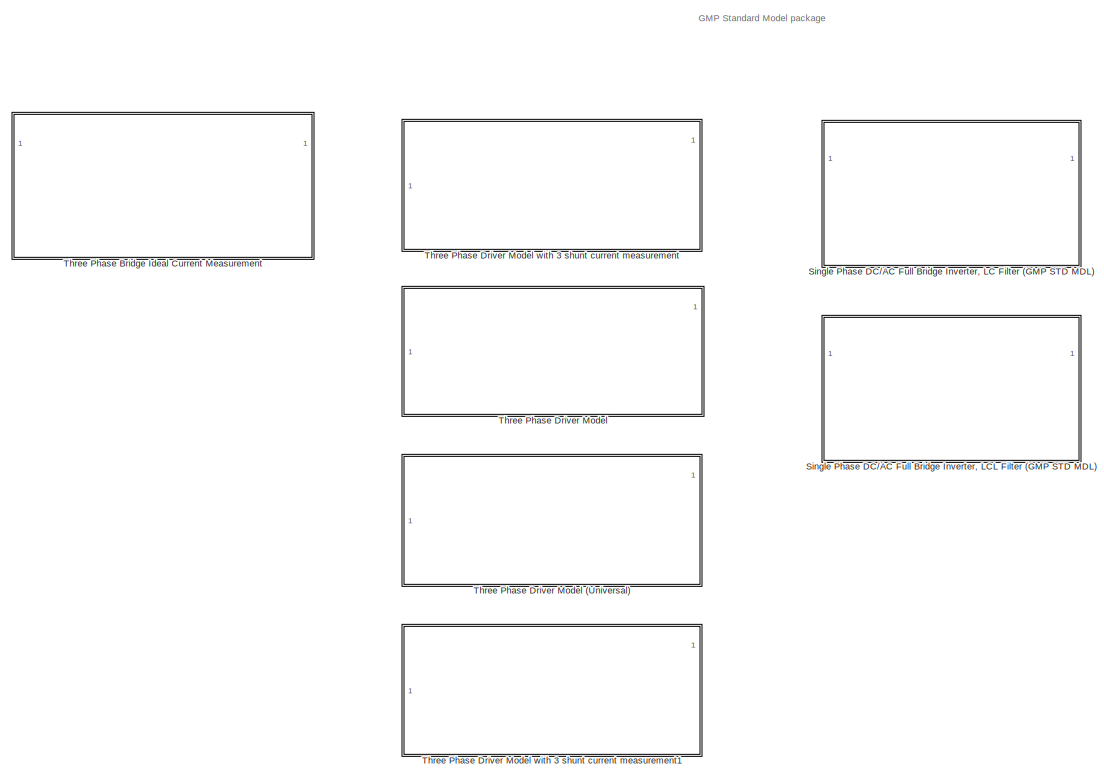
[diagram: root canvas - part 1/2, left side, full height]
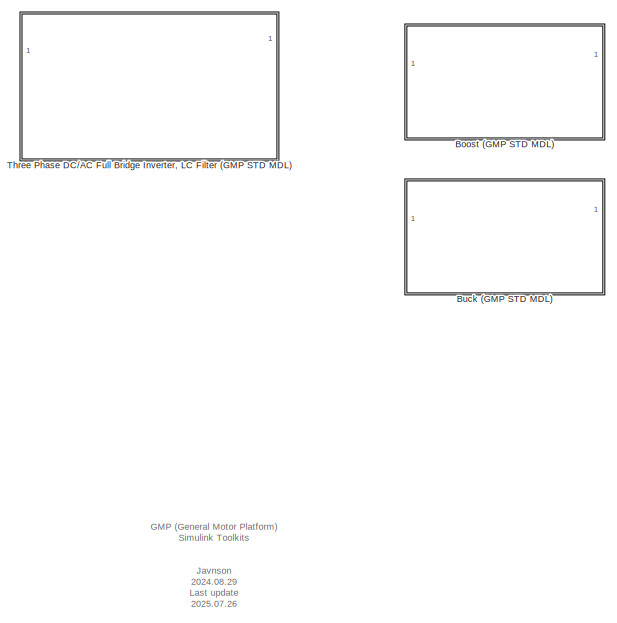
[diagram: root canvas - part 2/2, right side, full height]
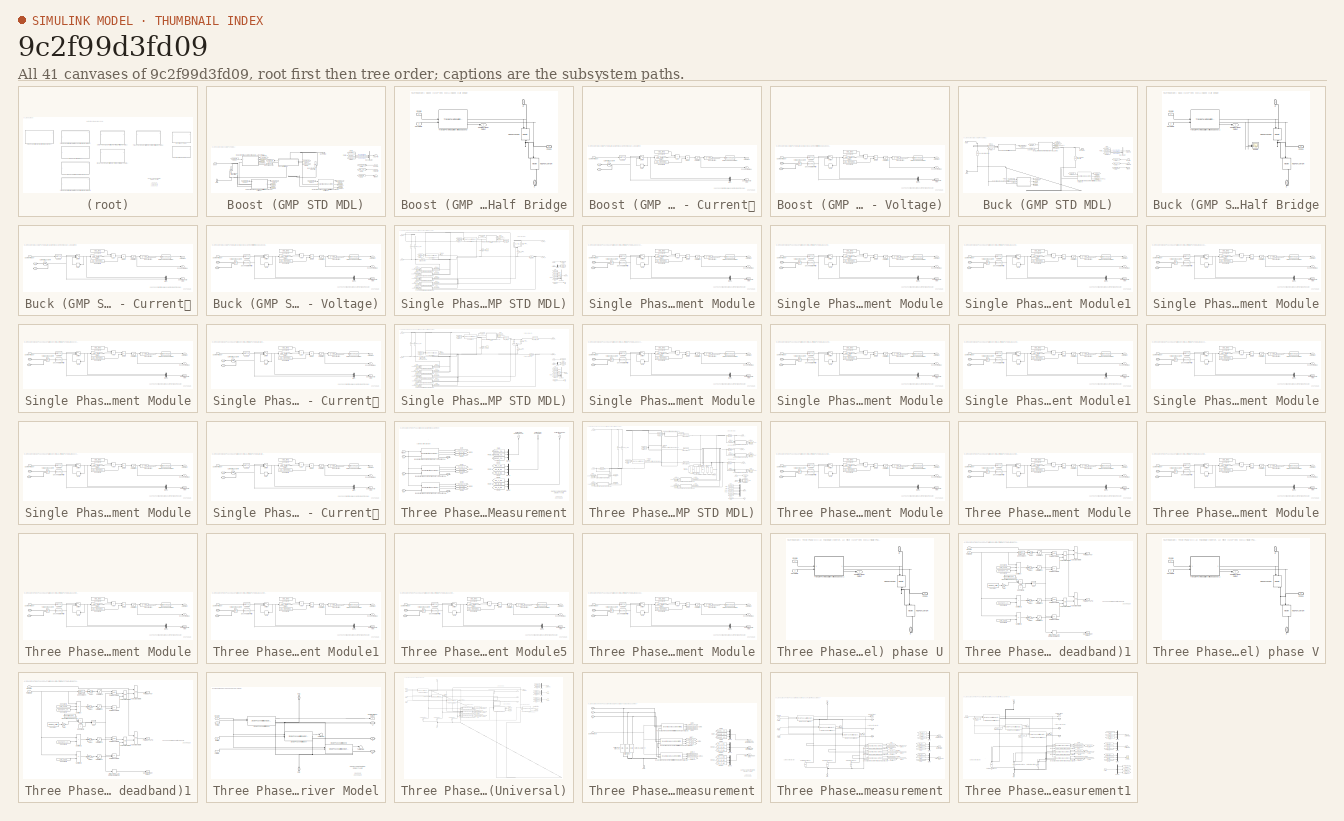
[diagram: thumbnail index - all 41 canvases of the model, root first then tree order]
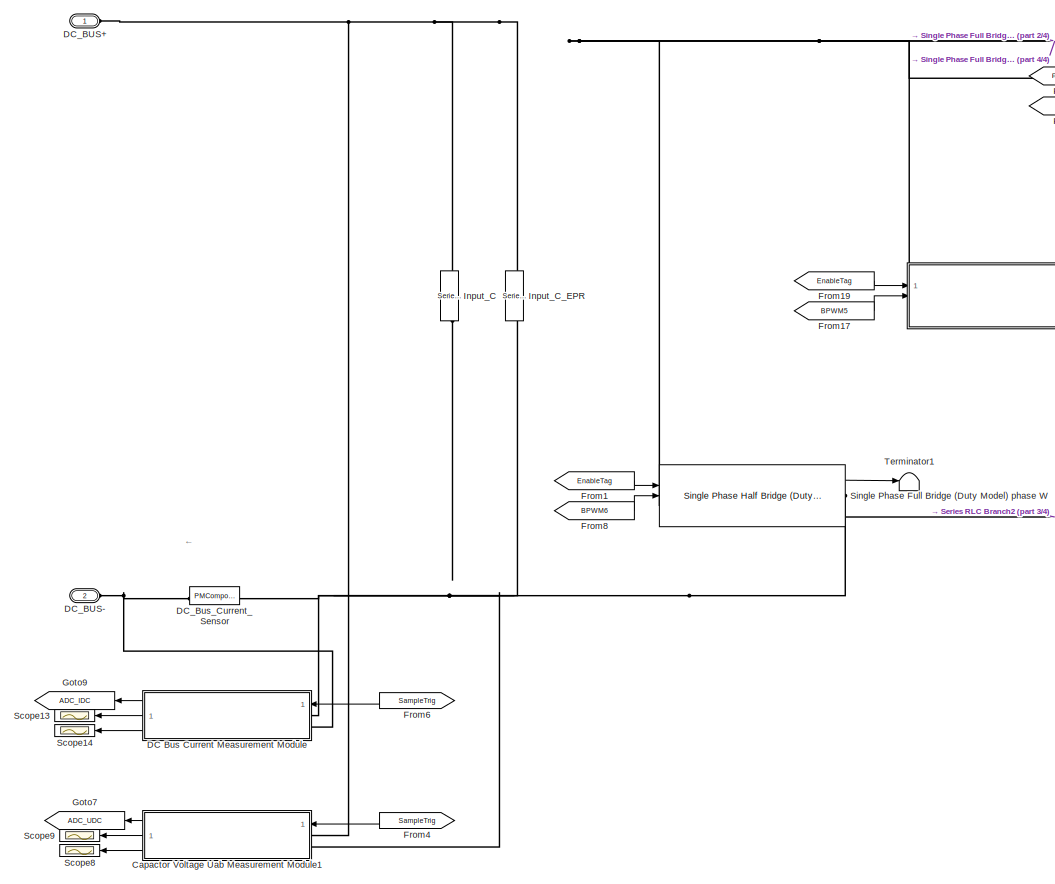
[diagram: Three Phase DC/AC Full Bridge Inverter, LC Filter (GMP STD MDL) - part 1/4, left side, full height]
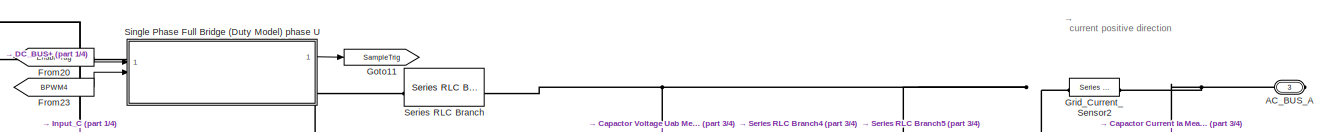
[diagram: Three Phase DC/AC Full Bridge Inverter, LC Filter (GMP STD MDL) - part 2/4, top right region]
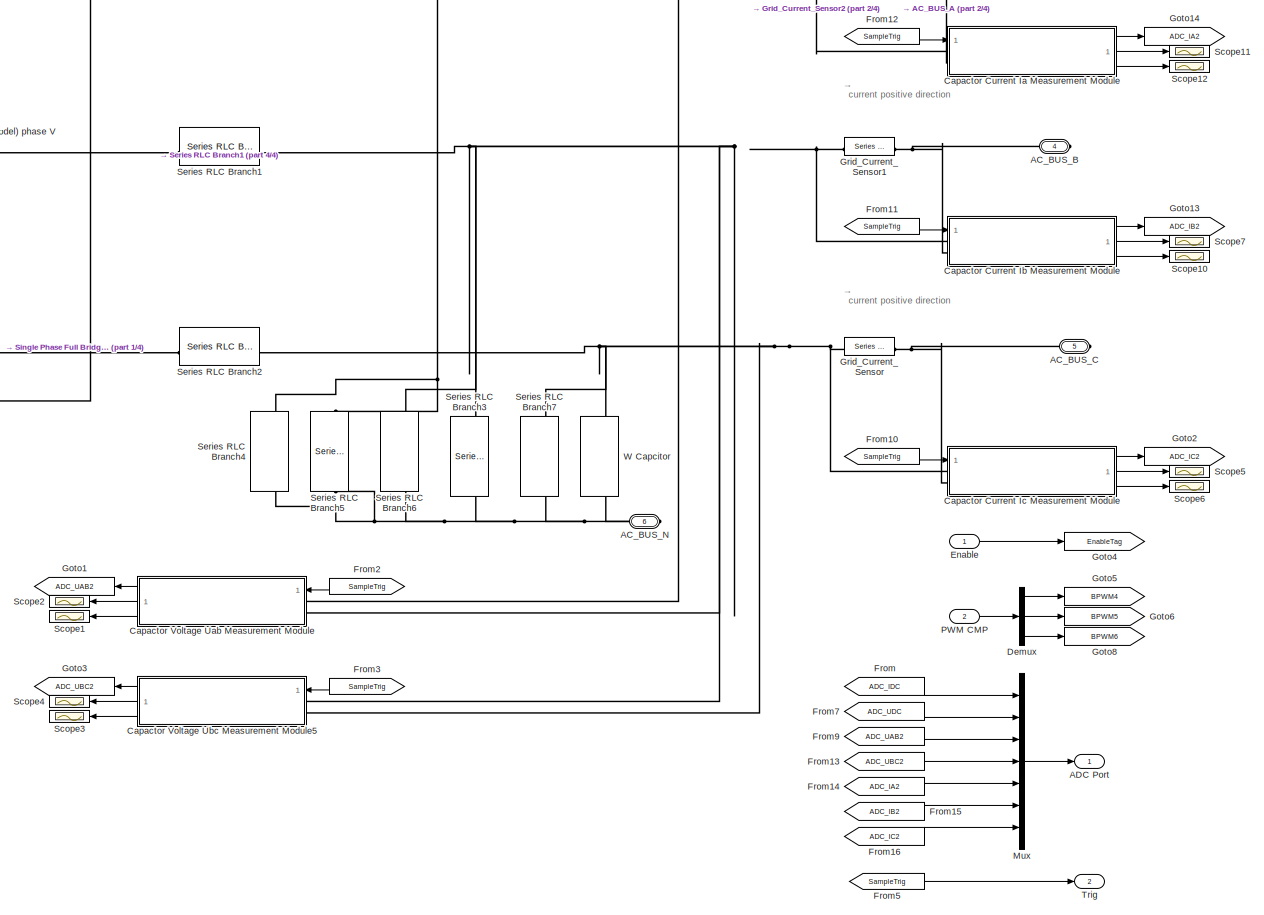
[diagram: Three Phase DC/AC Full Bridge Inverter, LC Filter (GMP STD MDL) - part 3/4, right side, full height]
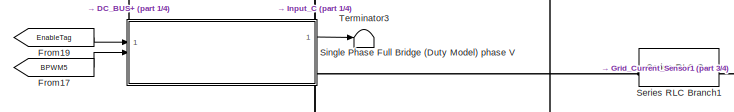
[diagram: Three Phase DC/AC Full Bridge Inverter, LC Filter (GMP STD MDL) - part 4/4, top center region]
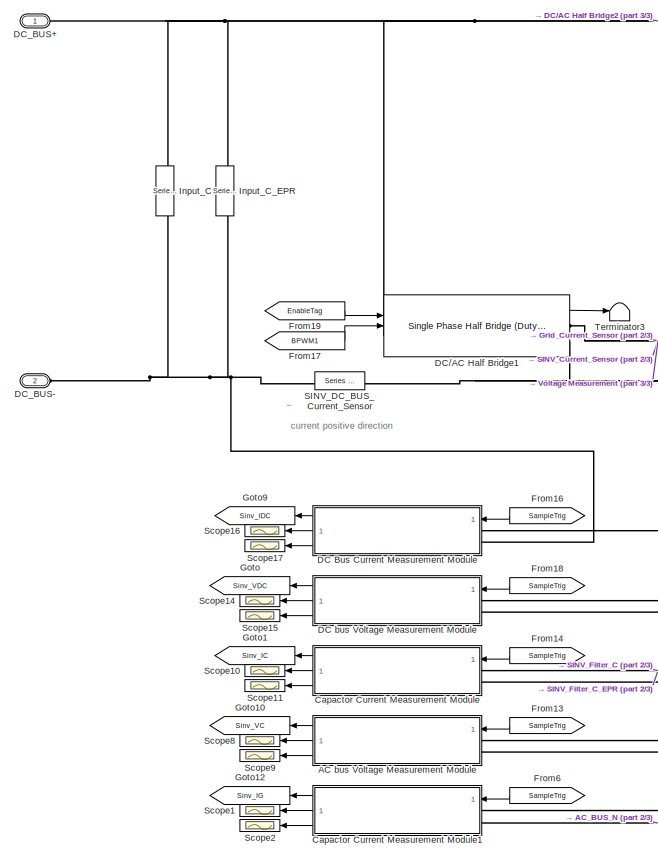
[diagram: Single Phase DC/AC Full Bridge Inverter, LCL Filter (GMP STD MDL) - part 1/3, left side, full height]
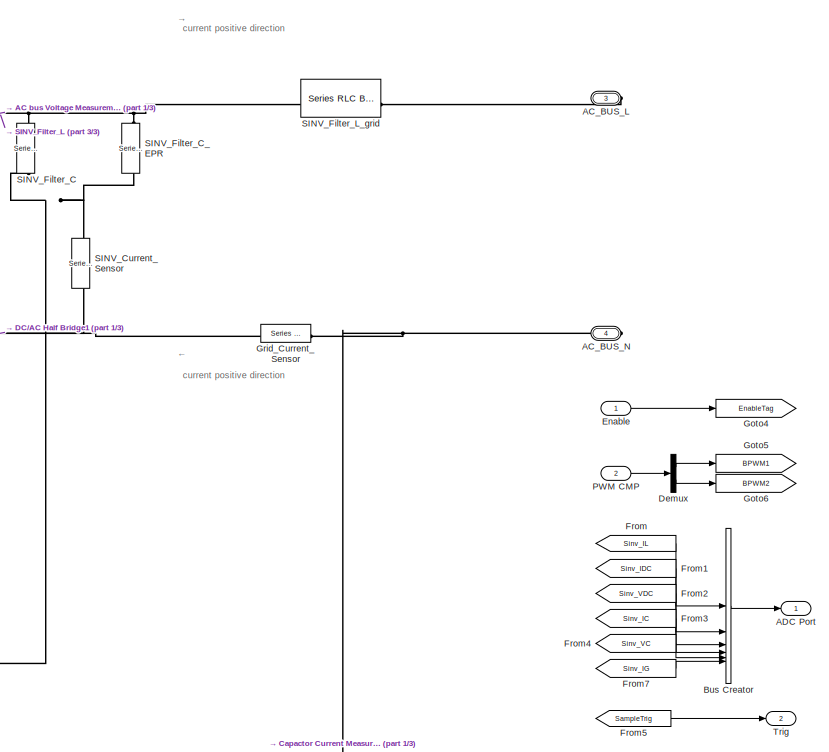
[diagram: Single Phase DC/AC Full Bridge Inverter, LCL Filter (GMP STD MDL) - part 2/3, right side, full height]
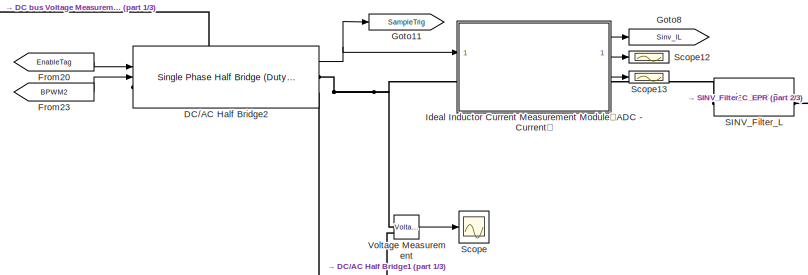
[diagram: Single Phase DC/AC Full Bridge Inverter, LCL Filter (GMP STD MDL) - part 3/3, top center region]
MODEL slx_9c2f99d3fd09
KIND library
CONFIG AbsTol = auto
CONFIG EnableMultiTasking = off
CONFIG FixedStep = auto
CONFIG MaxStep = auto
CONFIG MinStep = auto
CONFIG RelTol = 1e-3
CONFIG SampleTimeConstraint = Unconstrained
CONFIG SolverName = VariableStepAuto
CONFIG StartTime = 0.0
CONFIG StopTime = 10.0
BLOCK [SubSystem] Boost (GMP STD MDL)
  NameLocation = top
  PortSchema = {"entries":[{"content":{"sides":[{"content":{"connectorIds":["LConn1","In1","In2"]},"type":"ConnectorPlacement.EquallySpacedRectSide","uuid":"14f7e26c-4d08-496b-8d9c-39acdf23712e"},{"content":{"connectorIds":["RConn1","Out1","Out2"],"side":"RIGHT"},"type":"ConnectorPlacement.EquallySpacedRectSide","uuid":"c4fec36d-dc89-4255-810a-778c215f41bb"},{"content":{"side":"TOP"},"type":"ConnectorPlacement.E...<+405ch>
BLOCK [Outport] Boost (GMP STD MDL)/ADC Port
BLOCK [SubSystem] Boost (GMP STD MDL)/Boost Half Bridge
  PortSchema = {"entries":[{"content":{"sides":[{"content":{"connectorIds":["In1","In2"]},"type":"ConnectorPlacement.EquallySpacedRectSide","uuid":"20beeabc-b0ca-4337-b227-c7f02abd15d8"},{"content":{"connectorIds":["Out1","RConn1"],"side":"RIGHT"},"type":"ConnectorPlacement.EquallySpacedRectSide","uuid":"a7923383-ac55-4621-ad1d-4d067c1fb84d"},{"content":{"connectorIds":["LConn1"],"side":"TOP"},"type":"ConnectorP...<+415ch>  <repeated x4 — deduplicated; at blocks: Boost Half Bridge, Single Phase Full Bridge (Duty Model) phase U, Single Phase Full Bridge (Duty Model) phase V>
BLOCK [PMIOPort] Boost (GMP STD MDL)/Boost Half Bridge/D
  NameLocation = left
  Side = Left
BLOCK [Inport] Boost (GMP STD MDL)/Boost Half Bridge/Enable
BLOCK [Reference] Boost (GMP STD MDL)/Boost Half Bridge/MOSFET LOWER  REF=spsMosfetLib/Mosfet
  NameLocation = left
  SourceBlock = spsMosfetLib/Mosfet
  SourceType = Mosfet
BLOCK [Reference] Boost (GMP STD MDL)/Boost Half Bridge/MOSFET UPPER  REF=spsMosfetLib/Mosfet
  NameLocation = left
  SourceBlock = spsMosfetLib/Mosfet
  SourceType = Mosfet
BLOCK [Inport] Boost (GMP STD MDL)/Boost Half Bridge/PWM CMP
  Port = 2
BLOCK [PMIOPort] Boost (GMP STD MDL)/Boost Half Bridge/Phase
  Port = 2
  Side = Right
BLOCK [PMIOPort] Boost (GMP STD MDL)/Boost Half Bridge/S
  NameLocation = left
  Port = 3
  Side = Right
BLOCK [Outport] Boost (GMP STD MDL)/Boost Half Bridge/Sample Trigger Output
BLOCK [Reference] Boost (GMP STD MDL)/Boost Half Bridge/Triangle PWM modulation (with deadband)  REF=gmp_fp_utilities/Triangle PWM modulation (with deadband)
  SourceBlock = gmp_fp_utilities/Triangle PWM modulation (with deadband)
BLOCK [Reference] Boost (GMP STD MDL)/Boost Inductor  REF=spsSeriesRLCBranchLib/Series RLC Branch
  NameLocation = top
  SourceBlock = spsSeriesRLCBranchLib/Series RLC Branch
  SourceType = Series RLC Branch
BLOCK [Reference] Boost (GMP STD MDL)/Boost Input Capcitor2  REF=spsSeriesRLCBranchLib/Series RLC Branch
  NameLocation = left
  SourceBlock = spsSeriesRLCBranchLib/Series RLC Branch
  SourceType = Series RLC Branch
BLOCK [PMIOPort] Boost (GMP STD MDL)/Boost Out
  NameLocation = top
  Port = 2
  Side = Right
BLOCK [Reference] Boost (GMP STD MDL)/Boost Output Capcitor  REF=spsSeriesRLCBranchLib/Series RLC Branch
  NameLocation = left
  SourceBlock = spsSeriesRLCBranchLib/Series RLC Branch
  SourceType = Series RLC Branch
BLOCK [BusCreator] Boost (GMP STD MDL)/Bus Creator
  DisplayOption = bar
  InheritFromInputs = on
  Inputs = 3
BLOCK [Inport] Boost (GMP STD MDL)/Enable
  NameLocation = top
BLOCK [From] Boost (GMP STD MDL)/From
  GotoTag = IndCurrent
BLOCK [From] Boost (GMP STD MDL)/From1
  GotoTag = InputVoltage
BLOCK [From] Boost (GMP STD MDL)/From13
  GotoTag = EnableTag
  NameLocation = top
BLOCK [From] Boost (GMP STD MDL)/From14
  GotoTag = SampleTrig
  NameLocation = top
BLOCK [From] Boost (GMP STD MDL)/From16
  GotoTag = SampleTrig
  NameLocation = top
BLOCK [From] Boost (GMP STD MDL)/From2
  GotoTag = OutputVoltage
BLOCK [From] Boost (GMP STD MDL)/From3
  GotoTag = CMP_TAG
  NameLocation = top
BLOCK [From] Boost (GMP STD MDL)/From32
  GotoTag = SampleTrig
  NameLocation = top
BLOCK [From] Boost (GMP STD MDL)/From4
  GotoTag = SampleTrig
  NameLocation = top
BLOCK [PMIOPort] Boost (GMP STD MDL)/GND
  NameLocation = right
  Port = 3
  Side = Right
BLOCK [Goto] Boost (GMP STD MDL)/Goto
  GotoTag = EnableTag
BLOCK [Goto] Boost (GMP STD MDL)/Goto1
  GotoTag = CMP_TAG
BLOCK [Goto] Boost (GMP STD MDL)/Goto13
  GotoTag = SampleTrig
BLOCK [Goto] Boost (GMP STD MDL)/Goto14
  GotoTag = InputVoltage
  NameLocation = top
BLOCK [Goto] Boost (GMP STD MDL)/Goto15
  GotoTag = OutputVoltage
  NameLocation = top
BLOCK [Goto] Boost (GMP STD MDL)/Goto16
  GotoTag = IndCurrent
  NameLocation = top
BLOCK [SubSystem] Boost (GMP STD MDL)/Ideal Current Measurement Module（ADC - Current）
BLOCK [PMIOPort] Boost (GMP STD MDL)/Ideal Current Measurement Module（ADC - Current）/+
  Side = Left
BLOCK [PMIOPort] Boost (GMP STD MDL)/Ideal Current Measurement Module（ADC - Current）/-
  NameLocation = top
  Port = 2
  Side = Right
BLOCK [Outport] Boost (GMP STD MDL)/Ideal Current Measurement Module（ADC - Current）/ADC OUT
BLOCK [Sum] Boost (GMP STD MDL)/Ideal Current Measurement Module（ADC - Current）/Add
  IconShape = rectangular
BLOCK [Constant] Boost (GMP STD MDL)/Ideal Current Measurement Module（ADC - Current）/Constant4
  Value = ADC_BIAS
BLOCK [Constant] Boost (GMP STD MDL)/Ideal Current Measurement Module（ADC - Current）/Constant5
  Value = ADC_REFERENCE
BLOCK [Reference] Boost (GMP STD MDL)/Ideal Current Measurement Module（ADC - Current）/Current Measurement  REF=spsCurrentMeasurementLib/Current Measurement
  SourceBlock = spsCurrentMeasurementLib/Current Measurement
  SourceType = Current Measurement
  UserDataPersistent = on
BLOCK [DataTypeConversion] Boost (GMP STD MDL)/Ideal Current Measurement Module（ADC - Current）/Data Type Conversion
  ConvertRealWorld = Stored Integer (SI)
  OutDataTypeStr = uint32
  RndMeth = Floor
  SaturateOnIntegerOverflow = off
BLOCK [Product] Boost (GMP STD MDL)/Ideal Current Measurement Module（ADC - Current）/Divide
  Inputs = */
BLOCK [Gain] Boost (GMP STD MDL)/Ideal Current Measurement Module（ADC - Current）/Gain1
  Gain = ADC_GAIN
BLOCK [Memory] Boost (GMP STD MDL)/Ideal Current Measurement Module（ADC - Current）/Hold
  InitialCondition = ADC_INIT
  LinearizeAsDelay = on
  NameLocation = top
BLOCK [Mux] Boost (GMP STD MDL)/Ideal Current Measurement Module（ADC - Current）/Mux
  DisplayOption = bar
  Inputs = 2
BLOCK [Gain] Boost (GMP STD MDL)/Ideal Current Measurement Module（ADC - Current）/Quantization
  Gain = 2^ADC_BIT
BLOCK [DataTypeConversion] Boost (GMP STD MDL)/Ideal Current Measurement Module（ADC - Current）/Sample
  OutDataTypeStr = boolean
  RndMeth = Floor
  SaturateOnIntegerOverflow = off
BLOCK [Outport] Boost (GMP STD MDL)/Ideal Current Measurement Module（ADC - Current）/Sample & Hold View
  Port = 3
BLOCK [Inport] Boost (GMP STD MDL)/Ideal Current Measurement Module（ADC - Current）/Sample Trigger
BLOCK [Saturate] Boost (GMP STD MDL)/Ideal Current Measurement Module（ADC - Current）/Saturation
  LowerLimit = 0
  UpperLimit = 1
BLOCK [Outport] Boost (GMP STD MDL)/Ideal Current Measurement Module（ADC - Current）/Scope View (p.u.)
  Port = 2
BLOCK [Switch] Boost (GMP STD MDL)/Ideal Current Measurement Module（ADC - Current）/Switch
  Threshold = 0.5
BLOCK [SubSystem] Boost (GMP STD MDL)/Ideal Voltage Measurement with filter Module(ADC - Voltage)
  AncestorBlock = peripheral_utilities/Ideal Voltage Measurement with filter Module(ADC - Voltage)
BLOCK [PMIOPort] Boost (GMP STD MDL)/Ideal Voltage Measurement with filter Module(ADC - Voltage)/+
  Side = Left
BLOCK [PMIOPort] Boost (GMP STD MDL)/Ideal Voltage Measurement with filter Module(ADC - Voltage)/-
  Port = 2
  Side = Left
BLOCK [Outport] Boost (GMP STD MDL)/Ideal Voltage Measurement with filter Module(ADC - Voltage)/ADC OUT
BLOCK [Sum] Boost (GMP STD MDL)/Ideal Voltage Measurement with filter Module(ADC - Voltage)/Add
  IconShape = rectangular
BLOCK [Constant] Boost (GMP STD MDL)/Ideal Voltage Measurement with filter Module(ADC - Voltage)/Constant4
  Value = ADC_BIAS
BLOCK [Constant] Boost (GMP STD MDL)/Ideal Voltage Measurement with filter Module(ADC - Voltage)/Constant5
  Value = ADC_REFERENCE
BLOCK [DataTypeConversion] Boost (GMP STD MDL)/Ideal Voltage Measurement with filter Module(ADC - Voltage)/Data Type Conversion
  ConvertRealWorld = Stored Integer (SI)
  OutDataTypeStr = uint32
  RndMeth = Floor
  SaturateOnIntegerOverflow = off
BLOCK [Product] Boost (GMP STD MDL)/Ideal Voltage Measurement with filter Module(ADC - Voltage)/Divide
  Inputs = */
BLOCK [Gain] Boost (GMP STD MDL)/Ideal Voltage Measurement with filter Module(ADC - Voltage)/Gain1
  Gain = ADC_GAIN
BLOCK [Memory] Boost (GMP STD MDL)/Ideal Voltage Measurement with filter Module(ADC - Voltage)/Hold
  InitialCondition = ADC_INIT
  LinearizeAsDelay = on
  NameLocation = top
BLOCK [Mux] Boost (GMP STD MDL)/Ideal Voltage Measurement with filter Module(ADC - Voltage)/Mux1
  DisplayOption = bar
  Inputs = 2
BLOCK [Gain] Boost (GMP STD MDL)/Ideal Voltage Measurement with filter Module(ADC - Voltage)/Quantization
  Gain = 2^ADC_BIT
BLOCK [DataTypeConversion] Boost (GMP STD MDL)/Ideal Voltage Measurement with filter Module(ADC - Voltage)/Sample
  OutDataTypeStr = boolean
  RndMeth = Floor
  SaturateOnIntegerOverflow = off
BLOCK [Outport] Boost (GMP STD MDL)/Ideal Voltage Measurement with filter Module(ADC - Voltage)/Sample & Hold View
  Port = 3
BLOCK [Inport] Boost (GMP STD MDL)/Ideal Voltage Measurement with filter Module(ADC - Voltage)/Sample Trigger
BLOCK [Saturate] Boost (GMP STD MDL)/Ideal Voltage Measurement with filter Module(ADC - Voltage)/Saturation
  LowerLimit = 0
  UpperLimit = 1
BLOCK [Outport] Boost (GMP STD MDL)/Ideal Voltage Measurement with filter Module(ADC - Voltage)/Scope View (p.u.)
  Port = 2
BLOCK [Reference] Boost (GMP STD MDL)/Ideal Voltage Measurement with filter Module(ADC - Voltage)/Second-Order Filter  REF=spsSecondOrderFilterLib/Second-Order
Filter
  SourceBlock = spsSecondOrderFilterLib/Second-Order\nFilter
  SourceType = Second-Order Filter
BLOCK [Switch] Boost (GMP STD MDL)/Ideal Voltage Measurement with filter Module(ADC - Voltage)/Switch
  Threshold = 0.5
BLOCK [Reference] Boost (GMP STD MDL)/Ideal Voltage Measurement with filter Module(ADC - Voltage)/Voltage Measurement  REF=spsVoltageMeasurementLib/Voltage Measurement
  SourceBlock = spsVoltageMeasurementLib/Voltage Measurement
  SourceType = Voltage Measurement
  UserDataPersistent = on
BLOCK [Reference] Boost (GMP STD MDL)/Ideal Voltage Measurement with filter Module(ADC - Voltage)1  REF=gmp_peripheral_utilities/Ideal Voltage Measurement with filter Module (ADC - Voltage)
  SourceBlock = gmp_peripheral_utilities/Ideal Voltage Measurement with filter Module (ADC - Voltage)
  SourceProductName = Virtual Peripheral Utilities
BLOCK [PMIOPort] Boost (GMP STD MDL)/Input
  Side = Left
BLOCK [Inport] Boost (GMP STD MDL)/PWM CMP
  Port = 2
BLOCK [Scope] Boost (GMP STD MDL)/Scope10
  Floating = off
  NumInputPorts = 1
  ScopeSpecificationString = Simulink.scopes.TimeScopeBlockCfg('CurrentConfiguration', extmgr.ConfigurationSet(extmgr.Configuration('Core','General UI',true),extmgr.Configuration('Core','Source UI',true),extmgr.Configuration('Sources','WiredSimulink',true,'DataLoggingVariableName','ScopeData3'),extmgr.Configuration('Visuals','Time Domain',true),extmgr.Configuration('Tools','Plot Navigation',true),extmgr.Configuration('Tools',...<+40ch>  <repeated x4 — deduplicated; at blocks: Scope10, Scope8>
BLOCK [Scope] Boost (GMP STD MDL)/Scope11
  Floating = off
  NumInputPorts = 1
  ScopeSpecificationString = Simulink.scopes.TimeScopeBlockCfg('CurrentConfiguration', extmgr.ConfigurationSet(extmgr.Configuration('Core','General UI',true),extmgr.Configuration('Core','Source UI',true),extmgr.Configuration('Sources','WiredSimulink',true,'DataLoggingVariableName','ScopeData4'),extmgr.Configuration('Visuals','Time Domain',true,'SerializedDisplays',{struct('MinYLimReal','-6.20896','MaxYLimReal','55.88062','YLa...<+1658ch>
BLOCK [Scope] Boost (GMP STD MDL)/Scope12
  Floating = off
  NumInputPorts = 1
  ScopeSpecificationString = Simulink.scopes.TimeScopeBlockCfg('CurrentConfiguration', extmgr.ConfigurationSet(extmgr.Configuration('Core','General UI',true),extmgr.Configuration('Core','Source UI',true),extmgr.Configuration('Sources','WiredSimulink',true,'DataLoggingVariableName','ScopeData5'),extmgr.Configuration('Visuals','Time Domain',true),extmgr.Configuration('Tools','Plot Navigation',true),extmgr.Configuration('Tools',...<+40ch>  <repeated x4 — deduplicated; at blocks: Scope12, Scope10>
BLOCK [Scope] Boost (GMP STD MDL)/Scope13
  Floating = off
  NumInputPorts = 1
  ScopeSpecificationString = Simulink.scopes.TimeScopeBlockCfg('CurrentConfiguration', extmgr.ConfigurationSet(extmgr.Configuration('Core','General UI',true),extmgr.Configuration('Core','Source UI',true),extmgr.Configuration('Sources','WiredSimulink',true,'DataLoggingVariableName','ScopeData6'),extmgr.Configuration('Visuals','Time Domain',true,'SerializedDisplays',{struct('MinYLimReal','-1.75163','MaxYLimReal','15.76467','YLa...<+1656ch>
BLOCK [Scope] Boost (GMP STD MDL)/Scope8
  Floating = off
  NumInputPorts = 1
  ScopeSpecificationString = Simulink.scopes.TimeScopeBlockCfg('CurrentConfiguration', extmgr.ConfigurationSet(extmgr.Configuration('Core','General UI',true),extmgr.Configuration('Core','Source UI',true),extmgr.Configuration('Sources','WiredSimulink',true,'DataLoggingVariableName','ScopeData1'),extmgr.Configuration('Visuals','Time Domain',true,'SerializedDisplays',{struct('MinYLimReal','-3.12976','MaxYLimReal','28.16788','YLa...<+1656ch>
BLOCK [Scope] Boost (GMP STD MDL)/Scope9
  Floating = off
  NumInputPorts = 1
  ScopeSpecificationString = Simulink.scopes.TimeScopeBlockCfg('CurrentConfiguration', extmgr.ConfigurationSet(extmgr.Configuration('Core','General UI',true),extmgr.Configuration('Core','Source UI',true),extmgr.Configuration('Sources','WiredSimulink',true,'DataLoggingVariableName','ScopeData2'),extmgr.Configuration('Visuals','Time Domain',true),extmgr.Configuration('Tools','Plot Navigation',true),extmgr.Configuration('Tools',...<+40ch>
BLOCK [Outport] Boost (GMP STD MDL)/Trigger
  Port = 2
BLOCK [SubSystem] Buck (GMP STD MDL)
  PortSchema = {"entries":[{"content":{"sides":[{"content":{"connectorIds":["LConn1","In1","In2"]},"type":"ConnectorPlacement.EquallySpacedRectSide","uuid":"14f7e26c-4d08-496b-8d9c-39acdf23712e"},{"content":{"connectorIds":["RConn1","Out1","Out2"],"side":"RIGHT"},"type":"ConnectorPlacement.EquallySpacedRectSide","uuid":"c4fec36d-dc89-4255-810a-778c215f41bb"},{"content":{"side":"TOP"},"type":"ConnectorPlacement.E...<+405ch>
BLOCK [Outport] Buck (GMP STD MDL)/ADC Port
BLOCK [SubSystem] Buck (GMP STD MDL)/Boost Half Bridge
BLOCK [PMIOPort] Buck (GMP STD MDL)/Boost Half Bridge/D
  NameLocation = left
  Side = Left
BLOCK [Inport] Buck (GMP STD MDL)/Boost Half Bridge/Enable
BLOCK [Reference] Buck (GMP STD MDL)/Boost Half Bridge/MOSFET LOWER  REF=spsMosfetLib/Mosfet
  NameLocation = left
  SourceBlock = spsMosfetLib/Mosfet
  SourceType = Mosfet
BLOCK [Reference] Buck (GMP STD MDL)/Boost Half Bridge/MOSFET UPPER  REF=spsMosfetLib/Mosfet
  NameLocation = left
  SourceBlock = spsMosfetLib/Mosfet
  SourceType = Mosfet
BLOCK [Inport] Buck (GMP STD MDL)/Boost Half Bridge/PWM CMP
  Port = 2
BLOCK [PMIOPort] Buck (GMP STD MDL)/Boost Half Bridge/Phase
  Port = 2
  Side = Right
BLOCK [PMIOPort] Buck (GMP STD MDL)/Boost Half Bridge/S
  NameLocation = left
  Port = 3
  Side = Right
BLOCK [Outport] Buck (GMP STD MDL)/Boost Half Bridge/Sample Trigger Output
BLOCK [Scope] Buck (GMP STD MDL)/Boost Half Bridge/Scope
  Floating = off
  NumInputPorts = 2
  ScopeSpecificationString = Simulink.scopes.TimeScopeBlockCfg('CurrentConfiguration', extmgr.ConfigurationSet(extmgr.Configuration('Core','General UI',true),extmgr.Configuration('Core','Source UI',true),extmgr.Configuration('Sources','WiredSimulink',true,'DataLoggingVariableName','ScopeData2'),extmgr.Configuration('Visuals','Time Domain',true,'SerializedDisplays',{struct('MinYLimReal','-10.00000','MaxYLimReal','10.00000','YL...<+1587ch>
BLOCK [Reference] Buck (GMP STD MDL)/Boost Half Bridge/Triangle PWM modulation (with deadband)1  REF=gmp_fp_utilities/Triangle PWM modulation (with deadband)
  SourceBlock = gmp_fp_utilities/Triangle PWM modulation (with deadband)
BLOCK [PMIOPort] Buck (GMP STD MDL)/Boost Out
  NameLocation = top
  Port = 2
  Side = Right
BLOCK [Reference] Buck (GMP STD MDL)/Buck Inductor  REF=spsSeriesRLCBranchLib/Series RLC Branch
  NameLocation = top
  SourceBlock = spsSeriesRLCBranchLib/Series RLC Branch
  SourceType = Series RLC Branch
BLOCK [Reference] Buck (GMP STD MDL)/Buck Input Capcitor  REF=spsSeriesRLCBranchLib/Series RLC Branch
  NameLocation = left
  SourceBlock = spsSeriesRLCBranchLib/Series RLC Branch
  SourceType = Series RLC Branch
BLOCK [Reference] Buck (GMP STD MDL)/Buck Output Capcitor  REF=spsSeriesRLCBranchLib/Series RLC Branch
  NameLocation = right
  SourceBlock = spsSeriesRLCBranchLib/Series RLC Branch
  SourceType = Series RLC Branch
BLOCK [BusCreator] Buck (GMP STD MDL)/Bus Creator
  DisplayOption = bar
  InheritFromInputs = on
  Inputs = 3
BLOCK [Inport] Buck (GMP STD MDL)/Enable
  NameLocation = top
BLOCK [From] Buck (GMP STD MDL)/From
  GotoTag = IndCurrent
BLOCK [From] Buck (GMP STD MDL)/From1
  GotoTag = InputVoltage
BLOCK [From] Buck (GMP STD MDL)/From13
  GotoTag = EnableTag
  NameLocation = top
BLOCK [From] Buck (GMP STD MDL)/From14
  GotoTag = SampleTrig
  NameLocation = top
BLOCK [From] Buck (GMP STD MDL)/From16
  GotoTag = SampleTrig
  NameLocation = top
BLOCK [From] Buck (GMP STD MDL)/From2
  GotoTag = OutputVoltage
BLOCK [From] Buck (GMP STD MDL)/From3
  GotoTag = CMP_TAG
  NameLocation = top
BLOCK [From] Buck (GMP STD MDL)/From32
  GotoTag = SampleTrig
  NameLocation = top
BLOCK [From] Buck (GMP STD MDL)/From4
  GotoTag = SampleTrig
  NameLocation = top
BLOCK [PMIOPort] Buck (GMP STD MDL)/GND
  NameLocation = right
  Port = 3
  Side = Right
BLOCK [Goto] Buck (GMP STD MDL)/Goto
  GotoTag = EnableTag
BLOCK [Goto] Buck (GMP STD MDL)/Goto1
  GotoTag = CMP_TAG
BLOCK [Goto] Buck (GMP STD MDL)/Goto13
  GotoTag = SampleTrig
BLOCK [Goto] Buck (GMP STD MDL)/Goto14
  GotoTag = InputVoltage
  NameLocation = top
BLOCK [Goto] Buck (GMP STD MDL)/Goto15
  GotoTag = OutputVoltage
  NameLocation = top
BLOCK [Goto] Buck (GMP STD MDL)/Goto16
  GotoTag = IndCurrent
  NameLocation = top
BLOCK [SubSystem] Buck (GMP STD MDL)/Ideal Current Measurement Module（ADC - Current）
BLOCK [PMIOPort] Buck (GMP STD MDL)/Ideal Current Measurement Module（ADC - Current）/+
  Side = Left
BLOCK [PMIOPort] Buck (GMP STD MDL)/Ideal Current Measurement Module（ADC - Current）/-
  NameLocation = top
  Port = 2
  Side = Right
BLOCK [Outport] Buck (GMP STD MDL)/Ideal Current Measurement Module（ADC - Current）/ADC OUT
BLOCK [Sum] Buck (GMP STD MDL)/Ideal Current Measurement Module（ADC - Current）/Add
  IconShape = rectangular
BLOCK [Constant] Buck (GMP STD MDL)/Ideal Current Measurement Module（ADC - Current）/Constant4
  Value = ADC_BIAS
BLOCK [Constant] Buck (GMP STD MDL)/Ideal Current Measurement Module（ADC - Current）/Constant5
  Value = ADC_REFERENCE
BLOCK [Reference] Buck (GMP STD MDL)/Ideal Current Measurement Module（ADC - Current）/Current Measurement  REF=spsCurrentMeasurementLib/Current Measurement
  SourceBlock = spsCurrentMeasurementLib/Current Measurement
  SourceType = Current Measurement
  UserDataPersistent = on
BLOCK [DataTypeConversion] Buck (GMP STD MDL)/Ideal Current Measurement Module（ADC - Current）/Data Type Conversion
  ConvertRealWorld = Stored Integer (SI)
  OutDataTypeStr = uint32
  RndMeth = Floor
  SaturateOnIntegerOverflow = off
BLOCK [Product] Buck (GMP STD MDL)/Ideal Current Measurement Module（ADC - Current）/Divide
  Inputs = */
BLOCK [Gain] Buck (GMP STD MDL)/Ideal Current Measurement Module（ADC - Current）/Gain1
  Gain = ADC_GAIN
BLOCK [Memory] Buck (GMP STD MDL)/Ideal Current Measurement Module（ADC - Current）/Hold
  InitialCondition = ADC_INIT
  LinearizeAsDelay = on
  NameLocation = top
BLOCK [Mux] Buck (GMP STD MDL)/Ideal Current Measurement Module（ADC - Current）/Mux
  DisplayOption = bar
  Inputs = 2
BLOCK [Gain] Buck (GMP STD MDL)/Ideal Current Measurement Module（ADC - Current）/Quantization
  Gain = 2^ADC_BIT
BLOCK [DataTypeConversion] Buck (GMP STD MDL)/Ideal Current Measurement Module（ADC - Current）/Sample
  OutDataTypeStr = boolean
  RndMeth = Floor
  SaturateOnIntegerOverflow = off
BLOCK [Outport] Buck (GMP STD MDL)/Ideal Current Measurement Module（ADC - Current）/Sample & Hold View
  Port = 3
BLOCK [Inport] Buck (GMP STD MDL)/Ideal Current Measurement Module（ADC - Current）/Sample Trigger
BLOCK [Saturate] Buck (GMP STD MDL)/Ideal Current Measurement Module（ADC - Current）/Saturation
  LowerLimit = 0
  UpperLimit = 1
BLOCK [Outport] Buck (GMP STD MDL)/Ideal Current Measurement Module（ADC - Current）/Scope View (p.u.)
  Port = 2
BLOCK [Switch] Buck (GMP STD MDL)/Ideal Current Measurement Module（ADC - Current）/Switch
  Threshold = 0.5
BLOCK [SubSystem] Buck (GMP STD MDL)/Ideal Voltage Measurement with filter Module(ADC - Voltage)
BLOCK [PMIOPort] Buck (GMP STD MDL)/Ideal Voltage Measurement with filter Module(ADC - Voltage)/+
  Side = Left
BLOCK [PMIOPort] Buck (GMP STD MDL)/Ideal Voltage Measurement with filter Module(ADC - Voltage)/-
  Port = 2
  Side = Left
BLOCK [Outport] Buck (GMP STD MDL)/Ideal Voltage Measurement with filter Module(ADC - Voltage)/ADC OUT
BLOCK [Sum] Buck (GMP STD MDL)/Ideal Voltage Measurement with filter Module(ADC - Voltage)/Add
  IconShape = rectangular
BLOCK [Constant] Buck (GMP STD MDL)/Ideal Voltage Measurement with filter Module(ADC - Voltage)/Constant4
  Value = ADC_BIAS
BLOCK [Constant] Buck (GMP STD MDL)/Ideal Voltage Measurement with filter Module(ADC - Voltage)/Constant5
  Value = ADC_REFERENCE
BLOCK [DataTypeConversion] Buck (GMP STD MDL)/Ideal Voltage Measurement with filter Module(ADC - Voltage)/Data Type Conversion
  ConvertRealWorld = Stored Integer (SI)
  OutDataTypeStr = uint32
  RndMeth = Floor
  SaturateOnIntegerOverflow = off
BLOCK [Product] Buck (GMP STD MDL)/Ideal Voltage Measurement with filter Module(ADC - Voltage)/Divide
  Inputs = */
BLOCK [Gain] Buck (GMP STD MDL)/Ideal Voltage Measurement with filter Module(ADC - Voltage)/Gain1
  Gain = ADC_GAIN
BLOCK [Memory] Buck (GMP STD MDL)/Ideal Voltage Measurement with filter Module(ADC - Voltage)/Hold
  InitialCondition = ADC_INIT
  LinearizeAsDelay = on
  NameLocation = top
BLOCK [Mux] Buck (GMP STD MDL)/Ideal Voltage Measurement with filter Module(ADC - Voltage)/Mux1
  DisplayOption = bar
  Inputs = 2
BLOCK [Gain] Buck (GMP STD MDL)/Ideal Voltage Measurement with filter Module(ADC - Voltage)/Quantization
  Gain = 2^ADC_BIT
BLOCK [DataTypeConversion] Buck (GMP STD MDL)/Ideal Voltage Measurement with filter Module(ADC - Voltage)/Sample
  OutDataTypeStr = boolean
  RndMeth = Floor
  SaturateOnIntegerOverflow = off
BLOCK [Outport] Buck (GMP STD MDL)/Ideal Voltage Measurement with filter Module(ADC - Voltage)/Sample & Hold View
  Port = 3
BLOCK [Inport] Buck (GMP STD MDL)/Ideal Voltage Measurement with filter Module(ADC - Voltage)/Sample Trigger
BLOCK [Saturate] Buck (GMP STD MDL)/Ideal Voltage Measurement with filter Module(ADC - Voltage)/Saturation
  LowerLimit = 0
  UpperLimit = 1
BLOCK [Outport] Buck (GMP STD MDL)/Ideal Voltage Measurement with filter Module(ADC - Voltage)/Scope View (p.u.)
  Port = 2
BLOCK [Reference] Buck (GMP STD MDL)/Ideal Voltage Measurement with filter Module(ADC - Voltage)/Second-Order Filter  REF=spsSecondOrderFilterLib/Second-Order
Filter
  SourceBlock = spsSecondOrderFilterLib/Second-Order\nFilter
  SourceType = Second-Order Filter
BLOCK [Switch] Buck (GMP STD MDL)/Ideal Voltage Measurement with filter Module(ADC - Voltage)/Switch
  Threshold = 0.5
BLOCK [Reference] Buck (GMP STD MDL)/Ideal Voltage Measurement with filter Module(ADC - Voltage)/Voltage Measurement  REF=spsVoltageMeasurementLib/Voltage Measurement
  SourceBlock = spsVoltageMeasurementLib/Voltage Measurement
  SourceType = Voltage Measurement
  UserDataPersistent = on
BLOCK [Reference] Buck (GMP STD MDL)/Ideal Voltage Measurement with filter Module(ADC - Voltage)1  REF=gmp_peripheral_utilities/Ideal Voltage Measurement with filter Module (ADC - Voltage)
  SourceBlock = gmp_peripheral_utilities/Ideal Voltage Measurement with filter Module (ADC - Voltage)
  SourceProductName = Virtual Peripheral Utilities
BLOCK [PMIOPort] Buck (GMP STD MDL)/Input
  Side = Left
BLOCK [Inport] Buck (GMP STD MDL)/PWM CMP
  Port = 2
BLOCK [Scope] Buck (GMP STD MDL)/Scope10
  Floating = off
  NumInputPorts = 1
BLOCK [Scope] Buck (GMP STD MDL)/Scope11
  Floating = off
  NumInputPorts = 1
  ScopeSpecificationString = Simulink.scopes.TimeScopeBlockCfg('CurrentConfiguration', extmgr.ConfigurationSet(extmgr.Configuration('Core','General UI',true),extmgr.Configuration('Core','Source UI',true),extmgr.Configuration('Sources','WiredSimulink',true,'DataLoggingVariableName','ScopeData4'),extmgr.Configuration('Visuals','Time Domain',true,'SerializedDisplays',{struct('MinYLimReal','-0.50301','MaxYLimReal','4.52706','YLab...<+1654ch>
BLOCK [Scope] Buck (GMP STD MDL)/Scope12
  Floating = off
  NumInputPorts = 1
BLOCK [Scope] Buck (GMP STD MDL)/Scope13
  Floating = off
  NumInputPorts = 1
  ScopeSpecificationString = Simulink.scopes.TimeScopeBlockCfg('CurrentConfiguration', extmgr.ConfigurationSet(extmgr.Configuration('Core','General UI',true),extmgr.Configuration('Core','Source UI',true),extmgr.Configuration('Sources','WiredSimulink',true,'DataLoggingVariableName','ScopeData6'),extmgr.Configuration('Visuals','Time Domain',true,'SerializedDisplays',{struct('MinYLimReal','-0.08036','MaxYLimReal','0.72326','YLab...<+1651ch>
BLOCK [Scope] Buck (GMP STD MDL)/Scope8
  Floating = off
  NumInputPorts = 1
  ScopeSpecificationString = Simulink.scopes.TimeScopeBlockCfg('CurrentConfiguration', extmgr.ConfigurationSet(extmgr.Configuration('Core','General UI',true),extmgr.Configuration('Core','Source UI',true),extmgr.Configuration('Sources','WiredSimulink',true,'DataLoggingVariableName','ScopeData1'),extmgr.Configuration('Visuals','Time Domain',true,'SerializedDisplays',{struct('MinYLimReal','-3.12976','MaxYLimReal','28.16788','YLa...<+1656ch>
BLOCK [Scope] Buck (GMP STD MDL)/Scope9
  Floating = off
  NumInputPorts = 1
  ScopeSpecificationString = Simulink.scopes.TimeScopeBlockCfg('CurrentConfiguration', extmgr.ConfigurationSet(extmgr.Configuration('Core','General UI',true),extmgr.Configuration('Core','Source UI',true),extmgr.Configuration('Sources','WiredSimulink',true,'DataLoggingVariableName','ScopeData2'),extmgr.Configuration('Visuals','Time Domain',true),extmgr.Configuration('Tools','Plot Navigation',true),extmgr.Configuration('Tools',...<+40ch>
BLOCK [Outport] Buck (GMP STD MDL)/Trigger
  Port = 2
BLOCK [SubSystem] Single Phase DC//AC Full Bridge Inverter, LC Filter (GMP STD MDL)
  PortSchema = {"entries":[{"content":{"sides":[{"content":{"connectorIds":["LConn1","LConn2","In1","In2"]},"type":"ConnectorPlacement.EquallySpacedRectSide","uuid":"0e3e6e75-5e1a-455b-8a22-c69d0a4261ca"},{"content":{"connectorIds":["RConn1","RConn2","Out1","Out2"],"side":"RIGHT"},"type":"ConnectorPlacement.EquallySpacedRectSide","uuid":"20326781-9238-4fea-80fd-ba96906d5d3f"},{"content":{"side":"TOP"},"type":"Co...<+271ch>
BLOCK [SubSystem] Single Phase DC//AC Full Bridge Inverter, LC Filter (GMP STD MDL)/AC bus Voltage Measurement Module
  AncestorBlock = peripheral_utilities/Ideal Voltage Measurement with filter Module(ADC - Voltage)
BLOCK [PMIOPort] Single Phase DC//AC Full Bridge Inverter, LC Filter (GMP STD MDL)/AC bus Voltage Measurement Module/+
  Side = Left
BLOCK [PMIOPort] Single Phase DC//AC Full Bridge Inverter, LC Filter (GMP STD MDL)/AC bus Voltage Measurement Module/-
  Port = 2
  Side = Left
BLOCK [Outport] Single Phase DC//AC Full Bridge Inverter, LC Filter (GMP STD MDL)/AC bus Voltage Measurement Module/ADC OUT
BLOCK [Sum] Single Phase DC//AC Full Bridge Inverter, LC Filter (GMP STD MDL)/AC bus Voltage Measurement Module/Add
  IconShape = rectangular
BLOCK [Constant] Single Phase DC//AC Full Bridge Inverter, LC Filter (GMP STD MDL)/AC bus Voltage Measurement Module/Constant4
  Value = ADC_BIAS
BLOCK [Constant] Single Phase DC//AC Full Bridge Inverter, LC Filter (GMP STD MDL)/AC bus Voltage Measurement Module/Constant5
  Value = ADC_REFERENCE
BLOCK [DataTypeConversion] Single Phase DC//AC Full Bridge Inverter, LC Filter (GMP STD MDL)/AC bus Voltage Measurement Module/Data Type Conversion
  ConvertRealWorld = Stored Integer (SI)
  OutDataTypeStr = uint32
  RndMeth = Floor
  SaturateOnIntegerOverflow = off
BLOCK [Product] Single Phase DC//AC Full Bridge Inverter, LC Filter (GMP STD MDL)/AC bus Voltage Measurement Module/Divide
  Inputs = */
BLOCK [Gain] Single Phase DC//AC Full Bridge Inverter, LC Filter (GMP STD MDL)/AC bus Voltage Measurement Module/Gain1
  Gain = ADC_GAIN
BLOCK [Memory] Single Phase DC//AC Full Bridge Inverter, LC Filter (GMP STD MDL)/AC bus Voltage Measurement Module/Hold
  InitialCondition = ADC_INIT
  LinearizeAsDelay = on
  NameLocation = top
BLOCK [Mux] Single Phase DC//AC Full Bridge Inverter, LC Filter (GMP STD MDL)/AC bus Voltage Measurement Module/Mux1
  DisplayOption = bar
  Inputs = 2
BLOCK [Gain] Single Phase DC//AC Full Bridge Inverter, LC Filter (GMP STD MDL)/AC bus Voltage Measurement Module/Quantization
  Gain = 2^ADC_BIT
BLOCK [DataTypeConversion] Single Phase DC//AC Full Bridge Inverter, LC Filter (GMP STD MDL)/AC bus Voltage Measurement Module/Sample
  OutDataTypeStr = boolean
  RndMeth = Floor
  SaturateOnIntegerOverflow = off
BLOCK [Outport] Single Phase DC//AC Full Bridge Inverter, LC Filter (GMP STD MDL)/AC bus Voltage Measurement Module/Sample & Hold View
  Port = 3
BLOCK [Inport] Single Phase DC//AC Full Bridge Inverter, LC Filter (GMP STD MDL)/AC bus Voltage Measurement Module/Sample Trigger
BLOCK [Saturate] Single Phase DC//AC Full Bridge Inverter, LC Filter (GMP STD MDL)/AC bus Voltage Measurement Module/Saturation
  LowerLimit = 0
  UpperLimit = 1
BLOCK [Outport] Single Phase DC//AC Full Bridge Inverter, LC Filter (GMP STD MDL)/AC bus Voltage Measurement Module/Scope View (p.u.)
  Port = 2
BLOCK [Reference] Single Phase DC//AC Full Bridge Inverter, LC Filter (GMP STD MDL)/AC bus Voltage Measurement Module/Second-Order Filter  REF=spsSecondOrderFilterLib/Second-Order
Filter
  SourceBlock = spsSecondOrderFilterLib/Second-Order\nFilter
  SourceType = Second-Order Filter
BLOCK [Switch] Single Phase DC//AC Full Bridge Inverter, LC Filter (GMP STD MDL)/AC bus Voltage Measurement Module/Switch
  Threshold = 0.5
BLOCK [Reference] Single Phase DC//AC Full Bridge Inverter, LC Filter (GMP STD MDL)/AC bus Voltage Measurement Module/Voltage Measurement  REF=spsVoltageMeasurementLib/Voltage Measurement
  SourceBlock = spsVoltageMeasurementLib/Voltage Measurement
  SourceType = Voltage Measurement
  UserDataPersistent = on
BLOCK [PMIOPort] Single Phase DC//AC Full Bridge Inverter, LC Filter (GMP STD MDL)/AC_BUS_L
  NameLocation = top
  Port = 3
  Side = Right
BLOCK [PMIOPort] Single Phase DC//AC Full Bridge Inverter, LC Filter (GMP STD MDL)/AC_BUS_N
  NameLocation = top
  Port = 4
  Side = Right
BLOCK [Outport] Single Phase DC//AC Full Bridge Inverter, LC Filter (GMP STD MDL)/ADC Port
BLOCK [BusCreator] Single Phase DC//AC Full Bridge Inverter, LC Filter (GMP STD MDL)/Bus Creator
  DisplayOption = bar
  InheritFromInputs = on
  Inputs = 6
BLOCK [SubSystem] Single Phase DC//AC Full Bridge Inverter, LC Filter (GMP STD MDL)/Capactor Current Measurement Module
  AncestorBlock = peripheral_utilities/Ideal Voltage Measurement with filter Module(ADC - Voltage)
BLOCK [PMIOPort] Single Phase DC//AC Full Bridge Inverter, LC Filter (GMP STD MDL)/Capactor Current Measurement Module/+
  Side = Left
BLOCK [PMIOPort] Single Phase DC//AC Full Bridge Inverter, LC Filter (GMP STD MDL)/Capactor Current Measurement Module/-
  Port = 2
  Side = Left
BLOCK [Outport] Single Phase DC//AC Full Bridge Inverter, LC Filter (GMP STD MDL)/Capactor Current Measurement Module/ADC OUT
BLOCK [Sum] Single Phase DC//AC Full Bridge Inverter, LC Filter (GMP STD MDL)/Capactor Current Measurement Module/Add
  IconShape = rectangular
BLOCK [Constant] Single Phase DC//AC Full Bridge Inverter, LC Filter (GMP STD MDL)/Capactor Current Measurement Module/Constant4
  Value = ADC_BIAS
BLOCK [Constant] Single Phase DC//AC Full Bridge Inverter, LC Filter (GMP STD MDL)/Capactor Current Measurement Module/Constant5
  Value = ADC_REFERENCE
BLOCK [DataTypeConversion] Single Phase DC//AC Full Bridge Inverter, LC Filter (GMP STD MDL)/Capactor Current Measurement Module/Data Type Conversion
  ConvertRealWorld = Stored Integer (SI)
  OutDataTypeStr = uint32
  RndMeth = Floor
  SaturateOnIntegerOverflow = off
BLOCK [Product] Single Phase DC//AC Full Bridge Inverter, LC Filter (GMP STD MDL)/Capactor Current Measurement Module/Divide
  Inputs = */
BLOCK [Gain] Single Phase DC//AC Full Bridge Inverter, LC Filter (GMP STD MDL)/Capactor Current Measurement Module/Gain1
  Gain = ADC_GAIN
BLOCK [Memory] Single Phase DC//AC Full Bridge Inverter, LC Filter (GMP STD MDL)/Capactor Current Measurement Module/Hold
  InitialCondition = ADC_INIT
  LinearizeAsDelay = on
  NameLocation = top
BLOCK [Mux] Single Phase DC//AC Full Bridge Inverter, LC Filter (GMP STD MDL)/Capactor Current Measurement Module/Mux1
  DisplayOption = bar
  Inputs = 2
BLOCK [Gain] Single Phase DC//AC Full Bridge Inverter, LC Filter (GMP STD MDL)/Capactor Current Measurement Module/Quantization
  Gain = 2^ADC_BIT
BLOCK [DataTypeConversion] Single Phase DC//AC Full Bridge Inverter, LC Filter (GMP STD MDL)/Capactor Current Measurement Module/Sample
  OutDataTypeStr = boolean
  RndMeth = Floor
  SaturateOnIntegerOverflow = off
BLOCK [Outport] Single Phase DC//AC Full Bridge Inverter, LC Filter (GMP STD MDL)/Capactor Current Measurement Module/Sample & Hold View
  Port = 3
BLOCK [Inport] Single Phase DC//AC Full Bridge Inverter, LC Filter (GMP STD MDL)/Capactor Current Measurement Module/Sample Trigger
BLOCK [Saturate] Single Phase DC//AC Full Bridge Inverter, LC Filter (GMP STD MDL)/Capactor Current Measurement Module/Saturation
  LowerLimit = 0
  UpperLimit = 1
BLOCK [Outport] Single Phase DC//AC Full Bridge Inverter, LC Filter (GMP STD MDL)/Capactor Current Measurement Module/Scope View (p.u.)
  Port = 2
BLOCK [Reference] Single Phase DC//AC Full Bridge Inverter, LC Filter (GMP STD MDL)/Capactor Current Measurement Module/Second-Order Filter  REF=spsSecondOrderFilterLib/Second-Order
Filter
  SourceBlock = spsSecondOrderFilterLib/Second-Order\nFilter
  SourceType = Second-Order Filter
BLOCK [Switch] Single Phase DC//AC Full Bridge Inverter, LC Filter (GMP STD MDL)/Capactor Current Measurement Module/Switch
  Threshold = 0.5
BLOCK [Reference] Single Phase DC//AC Full Bridge Inverter, LC Filter (GMP STD MDL)/Capactor Current Measurement Module/Voltage Measurement  REF=spsVoltageMeasurementLib/Voltage Measurement
  SourceBlock = spsVoltageMeasurementLib/Voltage Measurement
  SourceType = Voltage Measurement
  UserDataPersistent = on
BLOCK [SubSystem] Single Phase DC//AC Full Bridge Inverter, LC Filter (GMP STD MDL)/Capactor Current Measurement Module1
  AncestorBlock = peripheral_utilities/Ideal Voltage Measurement with filter Module(ADC - Voltage)
BLOCK [PMIOPort] Single Phase DC//AC Full Bridge Inverter, LC Filter (GMP STD MDL)/Capactor Current Measurement Module1/+
  Side = Left
BLOCK [PMIOPort] Single Phase DC//AC Full Bridge Inverter, LC Filter (GMP STD MDL)/Capactor Current Measurement Module1/-
  Port = 2
  Side = Left
BLOCK [Outport] Single Phase DC//AC Full Bridge Inverter, LC Filter (GMP STD MDL)/Capactor Current Measurement Module1/ADC OUT
BLOCK [Sum] Single Phase DC//AC Full Bridge Inverter, LC Filter (GMP STD MDL)/Capactor Current Measurement Module1/Add
  IconShape = rectangular
BLOCK [Constant] Single Phase DC//AC Full Bridge Inverter, LC Filter (GMP STD MDL)/Capactor Current Measurement Module1/Constant4
  Value = ADC_BIAS
BLOCK [Constant] Single Phase DC//AC Full Bridge Inverter, LC Filter (GMP STD MDL)/Capactor Current Measurement Module1/Constant5
  Value = ADC_REFERENCE
BLOCK [DataTypeConversion] Single Phase DC//AC Full Bridge Inverter, LC Filter (GMP STD MDL)/Capactor Current Measurement Module1/Data Type Conversion
  ConvertRealWorld = Stored Integer (SI)
  OutDataTypeStr = uint32
  RndMeth = Floor
  SaturateOnIntegerOverflow = off
BLOCK [Product] Single Phase DC//AC Full Bridge Inverter, LC Filter (GMP STD MDL)/Capactor Current Measurement Module1/Divide
  Inputs = */
BLOCK [Gain] Single Phase DC//AC Full Bridge Inverter, LC Filter (GMP STD MDL)/Capactor Current Measurement Module1/Gain1
  Gain = ADC_GAIN
BLOCK [Memory] Single Phase DC//AC Full Bridge Inverter, LC Filter (GMP STD MDL)/Capactor Current Measurement Module1/Hold
  InitialCondition = ADC_INIT
  LinearizeAsDelay = on
  NameLocation = top
BLOCK [Mux] Single Phase DC//AC Full Bridge Inverter, LC Filter (GMP STD MDL)/Capactor Current Measurement Module1/Mux1
  DisplayOption = bar
  Inputs = 2
BLOCK [Gain] Single Phase DC//AC Full Bridge Inverter, LC Filter (GMP STD MDL)/Capactor Current Measurement Module1/Quantization
  Gain = 2^ADC_BIT
BLOCK [DataTypeConversion] Single Phase DC//AC Full Bridge Inverter, LC Filter (GMP STD MDL)/Capactor Current Measurement Module1/Sample
  OutDataTypeStr = boolean
  RndMeth = Floor
  SaturateOnIntegerOverflow = off
BLOCK [Outport] Single Phase DC//AC Full Bridge Inverter, LC Filter (GMP STD MDL)/Capactor Current Measurement Module1/Sample & Hold View
  Port = 3
BLOCK [Inport] Single Phase DC//AC Full Bridge Inverter, LC Filter (GMP STD MDL)/Capactor Current Measurement Module1/Sample Trigger
BLOCK [Saturate] Single Phase DC//AC Full Bridge Inverter, LC Filter (GMP STD MDL)/Capactor Current Measurement Module1/Saturation
  LowerLimit = 0
  UpperLimit = 1
BLOCK [Outport] Single Phase DC//AC Full Bridge Inverter, LC Filter (GMP STD MDL)/Capactor Current Measurement Module1/Scope View (p.u.)
  Port = 2
BLOCK [Reference] Single Phase DC//AC Full Bridge Inverter, LC Filter (GMP STD MDL)/Capactor Current Measurement Module1/Second-Order Filter  REF=spsSecondOrderFilterLib/Second-Order
Filter
  SourceBlock = spsSecondOrderFilterLib/Second-Order\nFilter
  SourceType = Second-Order Filter
BLOCK [Switch] Single Phase DC//AC Full Bridge Inverter, LC Filter (GMP STD MDL)/Capactor Current Measurement Module1/Switch
  Threshold = 0.5
BLOCK [Reference] Single Phase DC//AC Full Bridge Inverter, LC Filter (GMP STD MDL)/Capactor Current Measurement Module1/Voltage Measurement  REF=spsVoltageMeasurementLib/Voltage Measurement
  SourceBlock = spsVoltageMeasurementLib/Voltage Measurement
  SourceType = Voltage Measurement
  UserDataPersistent = on
BLOCK [SubSystem] Single Phase DC//AC Full Bridge Inverter, LC Filter (GMP STD MDL)/DC Bus Current Measurement Module
  AncestorBlock = peripheral_utilities/Ideal Voltage Measurement with filter Module(ADC - Voltage)
BLOCK [PMIOPort] Single Phase DC//AC Full Bridge Inverter, LC Filter (GMP STD MDL)/DC Bus Current Measurement Module/+
  Side = Left
BLOCK [PMIOPort] Single Phase DC//AC Full Bridge Inverter, LC Filter (GMP STD MDL)/DC Bus Current Measurement Module/-
  Port = 2
  Side = Left
BLOCK [Outport] Single Phase DC//AC Full Bridge Inverter, LC Filter (GMP STD MDL)/DC Bus Current Measurement Module/ADC OUT
BLOCK [Sum] Single Phase DC//AC Full Bridge Inverter, LC Filter (GMP STD MDL)/DC Bus Current Measurement Module/Add
  IconShape = rectangular
BLOCK [Constant] Single Phase DC//AC Full Bridge Inverter, LC Filter (GMP STD MDL)/DC Bus Current Measurement Module/Constant4
  Value = ADC_BIAS
BLOCK [Constant] Single Phase DC//AC Full Bridge Inverter, LC Filter (GMP STD MDL)/DC Bus Current Measurement Module/Constant5
  Value = ADC_REFERENCE
BLOCK [DataTypeConversion] Single Phase DC//AC Full Bridge Inverter, LC Filter (GMP STD MDL)/DC Bus Current Measurement Module/Data Type Conversion
  ConvertRealWorld = Stored Integer (SI)
  OutDataTypeStr = uint32
  RndMeth = Floor
  SaturateOnIntegerOverflow = off
BLOCK [Product] Single Phase DC//AC Full Bridge Inverter, LC Filter (GMP STD MDL)/DC Bus Current Measurement Module/Divide
  Inputs = */
BLOCK [Gain] Single Phase DC//AC Full Bridge Inverter, LC Filter (GMP STD MDL)/DC Bus Current Measurement Module/Gain1
  Gain = ADC_GAIN
BLOCK [Memory] Single Phase DC//AC Full Bridge Inverter, LC Filter (GMP STD MDL)/DC Bus Current Measurement Module/Hold
  InitialCondition = ADC_INIT
  LinearizeAsDelay = on
  NameLocation = top
BLOCK [Mux] Single Phase DC//AC Full Bridge Inverter, LC Filter (GMP STD MDL)/DC Bus Current Measurement Module/Mux1
  DisplayOption = bar
  Inputs = 2
BLOCK [Gain] Single Phase DC//AC Full Bridge Inverter, LC Filter (GMP STD MDL)/DC Bus Current Measurement Module/Quantization
  Gain = 2^ADC_BIT
BLOCK [DataTypeConversion] Single Phase DC//AC Full Bridge Inverter, LC Filter (GMP STD MDL)/DC Bus Current Measurement Module/Sample
  OutDataTypeStr = boolean
  RndMeth = Floor
  SaturateOnIntegerOverflow = off
BLOCK [Outport] Single Phase DC//AC Full Bridge Inverter, LC Filter (GMP STD MDL)/DC Bus Current Measurement Module/Sample & Hold View
  Port = 3
BLOCK [Inport] Single Phase DC//AC Full Bridge Inverter, LC Filter (GMP STD MDL)/DC Bus Current Measurement Module/Sample Trigger
BLOCK [Saturate] Single Phase DC//AC Full Bridge Inverter, LC Filter (GMP STD MDL)/DC Bus Current Measurement Module/Saturation
  LowerLimit = 0
  UpperLimit = 1
BLOCK [Outport] Single Phase DC//AC Full Bridge Inverter, LC Filter (GMP STD MDL)/DC Bus Current Measurement Module/Scope View (p.u.)
  Port = 2
BLOCK [Reference] Single Phase DC//AC Full Bridge Inverter, LC Filter (GMP STD MDL)/DC Bus Current Measurement Module/Second-Order Filter  REF=spsSecondOrderFilterLib/Second-Order
Filter
  SourceBlock = spsSecondOrderFilterLib/Second-Order\nFilter
  SourceType = Second-Order Filter
BLOCK [Switch] Single Phase DC//AC Full Bridge Inverter, LC Filter (GMP STD MDL)/DC Bus Current Measurement Module/Switch
  Threshold = 0.5
BLOCK [Reference] Single Phase DC//AC Full Bridge Inverter, LC Filter (GMP STD MDL)/DC Bus Current Measurement Module/Voltage Measurement  REF=spsVoltageMeasurementLib/Voltage Measurement
  SourceBlock = spsVoltageMeasurementLib/Voltage Measurement
  SourceType = Voltage Measurement
  UserDataPersistent = on
BLOCK [SubSystem] Single Phase DC//AC Full Bridge Inverter, LC Filter (GMP STD MDL)/DC bus Voltage Measurement Module
  AncestorBlock = peripheral_utilities/Ideal Voltage Measurement with filter Module(ADC - Voltage)
BLOCK [PMIOPort] Single Phase DC//AC Full Bridge Inverter, LC Filter (GMP STD MDL)/DC bus Voltage Measurement Module/+
  Side = Left
BLOCK [PMIOPort] Single Phase DC//AC Full Bridge Inverter, LC Filter (GMP STD MDL)/DC bus Voltage Measurement Module/-
  Port = 2
  Side = Left
BLOCK [Outport] Single Phase DC//AC Full Bridge Inverter, LC Filter (GMP STD MDL)/DC bus Voltage Measurement Module/ADC OUT
BLOCK [Sum] Single Phase DC//AC Full Bridge Inverter, LC Filter (GMP STD MDL)/DC bus Voltage Measurement Module/Add
  IconShape = rectangular
BLOCK [Constant] Single Phase DC//AC Full Bridge Inverter, LC Filter (GMP STD MDL)/DC bus Voltage Measurement Module/Constant4
  Value = ADC_BIAS
BLOCK [Constant] Single Phase DC//AC Full Bridge Inverter, LC Filter (GMP STD MDL)/DC bus Voltage Measurement Module/Constant5
  Value = ADC_REFERENCE
BLOCK [DataTypeConversion] Single Phase DC//AC Full Bridge Inverter, LC Filter (GMP STD MDL)/DC bus Voltage Measurement Module/Data Type Conversion
  ConvertRealWorld = Stored Integer (SI)
  OutDataTypeStr = uint32
  RndMeth = Floor
  SaturateOnIntegerOverflow = off
BLOCK [Product] Single Phase DC//AC Full Bridge Inverter, LC Filter (GMP STD MDL)/DC bus Voltage Measurement Module/Divide
  Inputs = */
BLOCK [Gain] Single Phase DC//AC Full Bridge Inverter, LC Filter (GMP STD MDL)/DC bus Voltage Measurement Module/Gain1
  Gain = ADC_GAIN
BLOCK [Memory] Single Phase DC//AC Full Bridge Inverter, LC Filter (GMP STD MDL)/DC bus Voltage Measurement Module/Hold
  InitialCondition = ADC_INIT
  LinearizeAsDelay = on
  NameLocation = top
BLOCK [Mux] Single Phase DC//AC Full Bridge Inverter, LC Filter (GMP STD MDL)/DC bus Voltage Measurement Module/Mux1
  DisplayOption = bar
  Inputs = 2
BLOCK [Gain] Single Phase DC//AC Full Bridge Inverter, LC Filter (GMP STD MDL)/DC bus Voltage Measurement Module/Quantization
  Gain = 2^ADC_BIT
BLOCK [DataTypeConversion] Single Phase DC//AC Full Bridge Inverter, LC Filter (GMP STD MDL)/DC bus Voltage Measurement Module/Sample
  OutDataTypeStr = boolean
  RndMeth = Floor
  SaturateOnIntegerOverflow = off
BLOCK [Outport] Single Phase DC//AC Full Bridge Inverter, LC Filter (GMP STD MDL)/DC bus Voltage Measurement Module/Sample & Hold View
  Port = 3
BLOCK [Inport] Single Phase DC//AC Full Bridge Inverter, LC Filter (GMP STD MDL)/DC bus Voltage Measurement Module/Sample Trigger
BLOCK [Saturate] Single Phase DC//AC Full Bridge Inverter, LC Filter (GMP STD MDL)/DC bus Voltage Measurement Module/Saturation
  LowerLimit = 0
  UpperLimit = 1
BLOCK [Outport] Single Phase DC//AC Full Bridge Inverter, LC Filter (GMP STD MDL)/DC bus Voltage Measurement Module/Scope View (p.u.)
  Port = 2
BLOCK [Reference] Single Phase DC//AC Full Bridge Inverter, LC Filter (GMP STD MDL)/DC bus Voltage Measurement Module/Second-Order Filter  REF=spsSecondOrderFilterLib/Second-Order
Filter
  SourceBlock = spsSecondOrderFilterLib/Second-Order\nFilter
  SourceType = Second-Order Filter
BLOCK [Switch] Single Phase DC//AC Full Bridge Inverter, LC Filter (GMP STD MDL)/DC bus Voltage Measurement Module/Switch
  Threshold = 0.5
BLOCK [Reference] Single Phase DC//AC Full Bridge Inverter, LC Filter (GMP STD MDL)/DC bus Voltage Measurement Module/Voltage Measurement  REF=spsVoltageMeasurementLib/Voltage Measurement
  SourceBlock = spsVoltageMeasurementLib/Voltage Measurement
  SourceType = Voltage Measurement
  UserDataPersistent = on
BLOCK [Reference] Single Phase DC//AC Full Bridge Inverter, LC Filter (GMP STD MDL)/DC//AC Half Bridge1  REF=gmp_peripheral_utilities/Single Phase Half Bridge (Duty Model)
  SourceBlock = gmp_peripheral_utilities/Single Phase Half Bridge (Duty Model)
  SourceProductName = Virtual Peripheral Utilities
BLOCK [Reference] Single Phase DC//AC Full Bridge Inverter, LC Filter (GMP STD MDL)/DC//AC Half Bridge2  REF=gmp_peripheral_utilities/Single Phase Half Bridge (Duty Model)
  SourceBlock = gmp_peripheral_utilities/Single Phase Half Bridge (Duty Model)
  SourceProductName = Virtual Peripheral Utilities
BLOCK [PMIOPort] Single Phase DC//AC Full Bridge Inverter, LC Filter (GMP STD MDL)/DC_BUS+
  Side = Left
BLOCK [PMIOPort] Single Phase DC//AC Full Bridge Inverter, LC Filter (GMP STD MDL)/DC_BUS-
  Port = 2
  Side = Left
BLOCK [Demux] Single Phase DC//AC Full Bridge Inverter, LC Filter (GMP STD MDL)/Demux
  Outputs = 2
BLOCK [Inport] Single Phase DC//AC Full Bridge Inverter, LC Filter (GMP STD MDL)/Enable
BLOCK [From] Single Phase DC//AC Full Bridge Inverter, LC Filter (GMP STD MDL)/From
  GotoTag = Sinv_IL
BLOCK [From] Single Phase DC//AC Full Bridge Inverter, LC Filter (GMP STD MDL)/From1
  GotoTag = Sinv_IDC
  NameLocation = top
BLOCK [From] Single Phase DC//AC Full Bridge Inverter, LC Filter (GMP STD MDL)/From13
  GotoTag = SampleTrig
  NameLocation = top
BLOCK [From] Single Phase DC//AC Full Bridge Inverter, LC Filter (GMP STD MDL)/From14
  GotoTag = SampleTrig
  NameLocation = top
BLOCK [From] Single Phase DC//AC Full Bridge Inverter, LC Filter (GMP STD MDL)/From16
  GotoTag = SampleTrig
  NameLocation = top
BLOCK [From] Single Phase DC//AC Full Bridge Inverter, LC Filter (GMP STD MDL)/From17
  GotoTag = BPWM1
  NameLocation = top
BLOCK [From] Single Phase DC//AC Full Bridge Inverter, LC Filter (GMP STD MDL)/From18
  GotoTag = SampleTrig
  NameLocation = top
BLOCK [From] Single Phase DC//AC Full Bridge Inverter, LC Filter (GMP STD MDL)/From19
  GotoTag = EnableTag
  NameLocation = top
BLOCK [From] Single Phase DC//AC Full Bridge Inverter, LC Filter (GMP STD MDL)/From2
  GotoTag = Sinv_VDC
  NameLocation = top
BLOCK [From] Single Phase DC//AC Full Bridge Inverter, LC Filter (GMP STD MDL)/From20
  GotoTag = EnableTag
  NameLocation = top
BLOCK [From] Single Phase DC//AC Full Bridge Inverter, LC Filter (GMP STD MDL)/From23
  GotoTag = BPWM2
  NameLocation = top
BLOCK [From] Single Phase DC//AC Full Bridge Inverter, LC Filter (GMP STD MDL)/From3
  GotoTag = Sinv_IC
  NameLocation = top
BLOCK [From] Single Phase DC//AC Full Bridge Inverter, LC Filter (GMP STD MDL)/From4
  GotoTag = Sinv_VC
  NameLocation = top
BLOCK [From] Single Phase DC//AC Full Bridge Inverter, LC Filter (GMP STD MDL)/From5
  GotoTag = SampleTrig
BLOCK [From] Single Phase DC//AC Full Bridge Inverter, LC Filter (GMP STD MDL)/From6
  GotoTag = SampleTrig
  NameLocation = top
BLOCK [From] Single Phase DC//AC Full Bridge Inverter, LC Filter (GMP STD MDL)/From7
  GotoTag = Sinv_IG
  NameLocation = top
BLOCK [Goto] Single Phase DC//AC Full Bridge Inverter, LC Filter (GMP STD MDL)/Goto
  GotoTag = Sinv_VDC
  NameLocation = top
BLOCK [Goto] Single Phase DC//AC Full Bridge Inverter, LC Filter (GMP STD MDL)/Goto1
  GotoTag = Sinv_IC
  NameLocation = top
BLOCK [Goto] Single Phase DC//AC Full Bridge Inverter, LC Filter (GMP STD MDL)/Goto10
  GotoTag = Sinv_VC
  NameLocation = top
BLOCK [Goto] Single Phase DC//AC Full Bridge Inverter, LC Filter (GMP STD MDL)/Goto11
  GotoTag = SampleTrig
BLOCK [Goto] Single Phase DC//AC Full Bridge Inverter, LC Filter (GMP STD MDL)/Goto12
  GotoTag = Sinv_IG
  NameLocation = top
BLOCK [Goto] Single Phase DC//AC Full Bridge Inverter, LC Filter (GMP STD MDL)/Goto4
  GotoTag = EnableTag
BLOCK [Goto] Single Phase DC//AC Full Bridge Inverter, LC Filter (GMP STD MDL)/Goto5
  GotoTag = BPWM1
BLOCK [Goto] Single Phase DC//AC Full Bridge Inverter, LC Filter (GMP STD MDL)/Goto6
  GotoTag = BPWM2
BLOCK [Goto] Single Phase DC//AC Full Bridge Inverter, LC Filter (GMP STD MDL)/Goto8
  GotoTag = Sinv_IL
BLOCK [Goto] Single Phase DC//AC Full Bridge Inverter, LC Filter (GMP STD MDL)/Goto9
  GotoTag = Sinv_IDC
  NameLocation = top
BLOCK [Reference] Single Phase DC//AC Full Bridge Inverter, LC Filter (GMP STD MDL)/Grid_Current_Sensor  REF=spsSeriesRLCBranchLib/Series RLC Branch
  LibrarySourceBlock = sps_lib/Passives/Series RLC Branch
  SourceBlock = spsSeriesRLCBranchLib/Series RLC Branch
  SourceType = Series RLC Branch
BLOCK [SubSystem] Single Phase DC//AC Full Bridge Inverter, LC Filter (GMP STD MDL)/Ideal Inductor Current Measurement Module（ADC - Current）
  AncestorBlock = peripheral_utilities/Ideal Current Measurement Module（ADC - Current）
BLOCK [PMIOPort] Single Phase DC//AC Full Bridge Inverter, LC Filter (GMP STD MDL)/Ideal Inductor Current Measurement Module（ADC - Current）/+
  Side = Left
BLOCK [PMIOPort] Single Phase DC//AC Full Bridge Inverter, LC Filter (GMP STD MDL)/Ideal Inductor Current Measurement Module（ADC - Current）/-
  NameLocation = top
  Port = 2
  Side = Right
BLOCK [Outport] Single Phase DC//AC Full Bridge Inverter, LC Filter (GMP STD MDL)/Ideal Inductor Current Measurement Module（ADC - Current）/ADC OUT
BLOCK [Sum] Single Phase DC//AC Full Bridge Inverter, LC Filter (GMP STD MDL)/Ideal Inductor Current Measurement Module（ADC - Current）/Add
  IconShape = rectangular
BLOCK [Constant] Single Phase DC//AC Full Bridge Inverter, LC Filter (GMP STD MDL)/Ideal Inductor Current Measurement Module（ADC - Current）/Constant4
  Value = ADC_BIAS
BLOCK [Constant] Single Phase DC//AC Full Bridge Inverter, LC Filter (GMP STD MDL)/Ideal Inductor Current Measurement Module（ADC - Current）/Constant5
  Value = ADC_REFERENCE
BLOCK [Reference] Single Phase DC//AC Full Bridge Inverter, LC Filter (GMP STD MDL)/Ideal Inductor Current Measurement Module（ADC - Current）/Current Measurement  REF=spsCurrentMeasurementLib/Current Measurement
  SourceBlock = spsCurrentMeasurementLib/Current Measurement
  SourceType = Current Measurement
  UserDataPersistent = on
BLOCK [DataTypeConversion] Single Phase DC//AC Full Bridge Inverter, LC Filter (GMP STD MDL)/Ideal Inductor Current Measurement Module（ADC - Current）/Data Type Conversion
  ConvertRealWorld = Stored Integer (SI)
  OutDataTypeStr = uint32
  RndMeth = Floor
  SaturateOnIntegerOverflow = off
BLOCK [Product] Single Phase DC//AC Full Bridge Inverter, LC Filter (GMP STD MDL)/Ideal Inductor Current Measurement Module（ADC - Current）/Divide
  Inputs = */
BLOCK [Gain] Single Phase DC//AC Full Bridge Inverter, LC Filter (GMP STD MDL)/Ideal Inductor Current Measurement Module（ADC - Current）/Gain1
  Gain = ADC_GAIN
BLOCK [Memory] Single Phase DC//AC Full Bridge Inverter, LC Filter (GMP STD MDL)/Ideal Inductor Current Measurement Module（ADC - Current）/Hold
  InitialCondition = ADC_INIT
  LinearizeAsDelay = on
  NameLocation = top
BLOCK [Mux] Single Phase DC//AC Full Bridge Inverter, LC Filter (GMP STD MDL)/Ideal Inductor Current Measurement Module（ADC - Current）/Mux
  DisplayOption = bar
  Inputs = 2
BLOCK [Gain] Single Phase DC//AC Full Bridge Inverter, LC Filter (GMP STD MDL)/Ideal Inductor Current Measurement Module（ADC - Current）/Quantization
  Gain = 2^ADC_BIT
BLOCK [DataTypeConversion] Single Phase DC//AC Full Bridge Inverter, LC Filter (GMP STD MDL)/Ideal Inductor Current Measurement Module（ADC - Current）/Sample
  OutDataTypeStr = boolean
  RndMeth = Floor
  SaturateOnIntegerOverflow = off
BLOCK [Outport] Single Phase DC//AC Full Bridge Inverter, LC Filter (GMP STD MDL)/Ideal Inductor Current Measurement Module（ADC - Current）/Sample & Hold View
  Port = 3
BLOCK [Inport] Single Phase DC//AC Full Bridge Inverter, LC Filter (GMP STD MDL)/Ideal Inductor Current Measurement Module（ADC - Current）/Sample Trigger
BLOCK [Saturate] Single Phase DC//AC Full Bridge Inverter, LC Filter (GMP STD MDL)/Ideal Inductor Current Measurement Module（ADC - Current）/Saturation
  LowerLimit = 0
  UpperLimit = 1
BLOCK [Outport] Single Phase DC//AC Full Bridge Inverter, LC Filter (GMP STD MDL)/Ideal Inductor Current Measurement Module（ADC - Current）/Scope View (p.u.)
  Port = 2
BLOCK [Switch] Single Phase DC//AC Full Bridge Inverter, LC Filter (GMP STD MDL)/Ideal Inductor Current Measurement Module（ADC - Current）/Switch
  Threshold = 0.5
BLOCK [Reference] Single Phase DC//AC Full Bridge Inverter, LC Filter (GMP STD MDL)/Input_C  REF=spsSeriesRLCBranchLib/Series RLC Branch
  LibrarySourceBlock = sps_lib/Passives/Series RLC Branch
  NameLocation = right
  SourceBlock = spsSeriesRLCBranchLib/Series RLC Branch
  SourceType = Series RLC Branch
BLOCK [Reference] Single Phase DC//AC Full Bridge Inverter, LC Filter (GMP STD MDL)/Input_C_EPR  REF=spsSeriesRLCBranchLib/Series RLC Branch
  LibrarySourceBlock = sps_lib/Passives/Series RLC Branch
  NameLocation = right
  SourceBlock = spsSeriesRLCBranchLib/Series RLC Branch
  SourceType = Series RLC Branch
BLOCK [Inport] Single Phase DC//AC Full Bridge Inverter, LC Filter (GMP STD MDL)/PWM CMP
  Port = 2
BLOCK [Reference] Single Phase DC//AC Full Bridge Inverter, LC Filter (GMP STD MDL)/SINV_Current_Sensor  REF=spsSeriesRLCBranchLib/Series RLC Branch
  LibrarySourceBlock = sps_lib/Passives/Series RLC Branch
  NameLocation = right
  SourceBlock = spsSeriesRLCBranchLib/Series RLC Branch
  SourceType = Series RLC Branch
BLOCK [Reference] Single Phase DC//AC Full Bridge Inverter, LC Filter (GMP STD MDL)/SINV_DC_BUS_Current_Sensor  REF=spsSeriesRLCBranchLib/Series RLC Branch
  LibrarySourceBlock = sps_lib/Passives/Series RLC Branch
  SourceBlock = spsSeriesRLCBranchLib/Series RLC Branch
  SourceType = Series RLC Branch
BLOCK [Reference] Single Phase DC//AC Full Bridge Inverter, LC Filter (GMP STD MDL)/SINV_Filter_C  REF=spsSeriesRLCBranchLib/Series RLC Branch
  LibrarySourceBlock = sps_lib/Passives/Series RLC Branch
  NameLocation = right
  SourceBlock = spsSeriesRLCBranchLib/Series RLC Branch
  SourceType = Series RLC Branch
BLOCK [Reference] Single Phase DC//AC Full Bridge Inverter, LC Filter (GMP STD MDL)/SINV_Filter_C_EPR  REF=spsSeriesRLCBranchLib/Series RLC Branch
  LibrarySourceBlock = sps_lib/Passives/Series RLC Branch
  NameLocation = right
  SourceBlock = spsSeriesRLCBranchLib/Series RLC Branch
  SourceType = Series RLC Branch
BLOCK [Reference] Single Phase DC//AC Full Bridge Inverter, LC Filter (GMP STD MDL)/SINV_Filter_L  REF=spsSeriesRLCBranchLib/Series RLC Branch
  LibrarySourceBlock = sps_lib/Passives/Series RLC Branch
  NameLocation = top
  SourceBlock = spsSeriesRLCBranchLib/Series RLC Branch
  SourceType = Series RLC Branch
BLOCK [Scope] Single Phase DC//AC Full Bridge Inverter, LC Filter (GMP STD MDL)/Scope
  Floating = off
  NumInputPorts = 1
  ScopeSpecificationString = Simulink.scopes.TimeScopeBlockCfg('CurrentConfiguration', extmgr.ConfigurationSet(extmgr.Configuration('Core','General UI',true),extmgr.Configuration('Core','Source UI',true),extmgr.Configuration('Sources','WiredSimulink',true,'DataLoggingVariableName','ScopeData15'),extmgr.Configuration('Visuals','Time Domain',true,'SerializedDisplays',{struct('MinYLimReal','-45.62928','MaxYLimReal','45.62937','Y...<+1911ch>
BLOCK [Scope] Single Phase DC//AC Full Bridge Inverter, LC Filter (GMP STD MDL)/Scope1
  Floating = off
  NameLocation = top
  NumInputPorts = 1
  ScopeSpecificationString = Simulink.scopes.TimeScopeBlockCfg('CurrentConfiguration', extmgr.ConfigurationSet(extmgr.Configuration('Core','General UI',true),extmgr.Configuration('Core','Source UI',true),extmgr.Configuration('Sources','WiredSimulink',true,'DataLoggingVariableName','ScopeData11'),extmgr.Configuration('Visuals','Time Domain',true),extmgr.Configuration('Tools','Plot Navigation',true),extmgr.Configuration('Tools'...<+41ch>
BLOCK [Scope] Single Phase DC//AC Full Bridge Inverter, LC Filter (GMP STD MDL)/Scope10
  Floating = off
  NameLocation = top
  NumInputPorts = 1
BLOCK [Scope] Single Phase DC//AC Full Bridge Inverter, LC Filter (GMP STD MDL)/Scope11
  Floating = off
  NameLocation = top
  NumInputPorts = 1
  ScopeSpecificationString = Simulink.scopes.TimeScopeBlockCfg('CurrentConfiguration', extmgr.ConfigurationSet(extmgr.Configuration('Core','General UI',true),extmgr.Configuration('Core','Source UI',true),extmgr.Configuration('Sources','WiredSimulink',true,'DataLoggingVariableName','ScopeData6'),extmgr.Configuration('Visuals','Time Domain',true,'SerializedDisplays',{struct('MinYLimReal','-0.00613','MaxYLimReal','0.00606','YLab...<+1605ch>
BLOCK [Scope] Single Phase DC//AC Full Bridge Inverter, LC Filter (GMP STD MDL)/Scope12
  Floating = off
  NumInputPorts = 1
  ScopeSpecificationString = Simulink.scopes.TimeScopeBlockCfg('CurrentConfiguration', extmgr.ConfigurationSet(extmgr.Configuration('Core','General UI',true),extmgr.Configuration('Core','Source UI',true),extmgr.Configuration('Sources','WiredSimulink',true,'DataLoggingVariableName','ScopeData1'),extmgr.Configuration('Visuals','Time Domain',true),extmgr.Configuration('Tools','Plot Navigation',true),extmgr.Configuration('Tools',...<+40ch>  <repeated x3 — deduplicated; at blocks: Scope12, Scope>
BLOCK [Scope] Single Phase DC//AC Full Bridge Inverter, LC Filter (GMP STD MDL)/Scope13
  Floating = off
  NumInputPorts = 1
  ScopeSpecificationString = Simulink.scopes.TimeScopeBlockCfg('CurrentConfiguration', extmgr.ConfigurationSet(extmgr.Configuration('Core','General UI',true),extmgr.Configuration('Core','Source UI',true),extmgr.Configuration('Sources','WiredSimulink',true,'DataLoggingVariableName','ScopeData2'),extmgr.Configuration('Visuals','Time Domain',true,'SerializedDisplays',{struct('MinYLimReal','-3.11805','MaxYLimReal','2.76747','YLab...<+1634ch>
BLOCK [Scope] Single Phase DC//AC Full Bridge Inverter, LC Filter (GMP STD MDL)/Scope14
  Floating = off
  NameLocation = top
  NumInputPorts = 1
  ScopeSpecificationString = Simulink.scopes.TimeScopeBlockCfg('CurrentConfiguration', extmgr.ConfigurationSet(extmgr.Configuration('Core','General UI',true),extmgr.Configuration('Core','Source UI',true),extmgr.Configuration('Sources','WiredSimulink',true,'DataLoggingVariableName','ScopeData7'),extmgr.Configuration('Visuals','Time Domain',true),extmgr.Configuration('Tools','Plot Navigation',true),extmgr.Configuration('Tools',...<+40ch>
BLOCK [Scope] Single Phase DC//AC Full Bridge Inverter, LC Filter (GMP STD MDL)/Scope15
  Floating = off
  NameLocation = top
  NumInputPorts = 1
  ScopeSpecificationString = Simulink.scopes.TimeScopeBlockCfg('CurrentConfiguration', extmgr.ConfigurationSet(extmgr.Configuration('Core','General UI',true),extmgr.Configuration('Core','Source UI',true),extmgr.Configuration('Sources','WiredSimulink',true,'DataLoggingVariableName','ScopeData8'),extmgr.Configuration('Visuals','Time Domain',true,'SerializedDisplays',{struct('MinYLimReal','-8.54651','MaxYLimReal','76.91857','YLa...<+1564ch>
BLOCK [Scope] Single Phase DC//AC Full Bridge Inverter, LC Filter (GMP STD MDL)/Scope16
  Floating = off
  NameLocation = top
  NumInputPorts = 1
  ScopeSpecificationString = Simulink.scopes.TimeScopeBlockCfg('CurrentConfiguration', extmgr.ConfigurationSet(extmgr.Configuration('Core','General UI',true),extmgr.Configuration('Core','Source UI',true),extmgr.Configuration('Sources','WiredSimulink',true,'DataLoggingVariableName','ScopeData9'),extmgr.Configuration('Visuals','Time Domain',true,'SerializedDisplays',{struct('MinYLimReal','0.48497','MaxYLimReal','0.6181','YLabel...<+1550ch>
BLOCK [Scope] Single Phase DC//AC Full Bridge Inverter, LC Filter (GMP STD MDL)/Scope17
  Floating = off
  NameLocation = top
  NumInputPorts = 1
  ScopeSpecificationString = Simulink.scopes.TimeScopeBlockCfg('CurrentConfiguration', extmgr.ConfigurationSet(extmgr.Configuration('Core','General UI',true),extmgr.Configuration('Core','Source UI',true),extmgr.Configuration('Sources','WiredSimulink',true,'DataLoggingVariableName','ScopeData10'),extmgr.Configuration('Visuals','Time Domain',true,'SerializedDisplays',{struct('MinYLimReal','-0.00151','MaxYLimReal','0.01183','YLa...<+1602ch>
BLOCK [Scope] Single Phase DC//AC Full Bridge Inverter, LC Filter (GMP STD MDL)/Scope2
  Floating = off
  NameLocation = top
  NumInputPorts = 1
  ScopeSpecificationString = Simulink.scopes.TimeScopeBlockCfg('CurrentConfiguration', extmgr.ConfigurationSet(extmgr.Configuration('Core','General UI',true),extmgr.Configuration('Core','Source UI',true),extmgr.Configuration('Sources','WiredSimulink',true,'DataLoggingVariableName','Ig','DataLogging',true,'DataLoggingSaveFormat','StructureWithTime'),extmgr.Configuration('Visuals','Time Domain',true,'SerializedDisplays',{struct...<+1617ch>
BLOCK [Scope] Single Phase DC//AC Full Bridge Inverter, LC Filter (GMP STD MDL)/Scope8
  Floating = off
  NameLocation = top
  NumInputPorts = 1
BLOCK [Scope] Single Phase DC//AC Full Bridge Inverter, LC Filter (GMP STD MDL)/Scope9
  Floating = off
  NameLocation = top
  NumInputPorts = 1
  ScopeSpecificationString = Simulink.scopes.TimeScopeBlockCfg('CurrentConfiguration', extmgr.ConfigurationSet(extmgr.Configuration('Core','General UI',true),extmgr.Configuration('Core','Source UI',true),extmgr.Configuration('Sources','WiredSimulink',true,'DataLoggingVariableName','VC','DataLogging',true,'DataLoggingSaveFormat','StructureWithTime'),extmgr.Configuration('Visuals','Time Domain',true,'SerializedDisplays',{struct...<+1911ch>
BLOCK [Terminator] Single Phase DC//AC Full Bridge Inverter, LC Filter (GMP STD MDL)/Terminator3
  NameLocation = top
BLOCK [Outport] Single Phase DC//AC Full Bridge Inverter, LC Filter (GMP STD MDL)/Trig
  Port = 2
BLOCK [Reference] Single Phase DC//AC Full Bridge Inverter, LC Filter (GMP STD MDL)/Voltage Measurement  REF=spsVoltageMeasurementLib/Voltage Measurement
  LibrarySourceBlock = sps_lib/Sensors and Measurements/Voltage Measurement
  SourceBlock = spsVoltageMeasurementLib/Voltage Measurement
  SourceType = Voltage Measurement
  UserDataPersistent = on
BLOCK [SubSystem] Single Phase DC//AC Full Bridge Inverter, LCL Filter (GMP STD MDL)
  PortSchema = {"entries":[{"content":{"sides":[{"content":{"connectorIds":["LConn1","LConn2","In1","In2"]},"type":"ConnectorPlacement.EquallySpacedRectSide","uuid":"0e3e6e75-5e1a-455b-8a22-c69d0a4261ca"},{"content":{"connectorIds":["RConn1","RConn2","Out1","Out2"],"side":"RIGHT"},"type":"ConnectorPlacement.EquallySpacedRectSide","uuid":"20326781-9238-4fea-80fd-ba96906d5d3f"},{"content":{"side":"TOP"},"type":"Co...<+271ch>
BLOCK [SubSystem] Single Phase DC//AC Full Bridge Inverter, LCL Filter (GMP STD MDL)/AC bus Voltage Measurement Module
  AncestorBlock = peripheral_utilities/Ideal Voltage Measurement with filter Module(ADC - Voltage)
BLOCK [PMIOPort] Single Phase DC//AC Full Bridge Inverter, LCL Filter (GMP STD MDL)/AC bus Voltage Measurement Module/+
  Side = Left
BLOCK [PMIOPort] Single Phase DC//AC Full Bridge Inverter, LCL Filter (GMP STD MDL)/AC bus Voltage Measurement Module/-
  Port = 2
  Side = Left
BLOCK [Outport] Single Phase DC//AC Full Bridge Inverter, LCL Filter (GMP STD MDL)/AC bus Voltage Measurement Module/ADC OUT
BLOCK [Sum] Single Phase DC//AC Full Bridge Inverter, LCL Filter (GMP STD MDL)/AC bus Voltage Measurement Module/Add
  IconShape = rectangular
BLOCK [Constant] Single Phase DC//AC Full Bridge Inverter, LCL Filter (GMP STD MDL)/AC bus Voltage Measurement Module/Constant4
  Value = ADC_BIAS
BLOCK [Constant] Single Phase DC//AC Full Bridge Inverter, LCL Filter (GMP STD MDL)/AC bus Voltage Measurement Module/Constant5
  Value = ADC_REFERENCE
BLOCK [DataTypeConversion] Single Phase DC//AC Full Bridge Inverter, LCL Filter (GMP STD MDL)/AC bus Voltage Measurement Module/Data Type Conversion
  ConvertRealWorld = Stored Integer (SI)
  OutDataTypeStr = uint32
  RndMeth = Floor
  SaturateOnIntegerOverflow = off
BLOCK [Product] Single Phase DC//AC Full Bridge Inverter, LCL Filter (GMP STD MDL)/AC bus Voltage Measurement Module/Divide
  Inputs = */
BLOCK [Gain] Single Phase DC//AC Full Bridge Inverter, LCL Filter (GMP STD MDL)/AC bus Voltage Measurement Module/Gain1
  Gain = ADC_GAIN
BLOCK [Memory] Single Phase DC//AC Full Bridge Inverter, LCL Filter (GMP STD MDL)/AC bus Voltage Measurement Module/Hold
  InitialCondition = ADC_INIT
  LinearizeAsDelay = on
  NameLocation = top
BLOCK [Mux] Single Phase DC//AC Full Bridge Inverter, LCL Filter (GMP STD MDL)/AC bus Voltage Measurement Module/Mux1
  DisplayOption = bar
  Inputs = 2
BLOCK [Gain] Single Phase DC//AC Full Bridge Inverter, LCL Filter (GMP STD MDL)/AC bus Voltage Measurement Module/Quantization
  Gain = 2^ADC_BIT
BLOCK [DataTypeConversion] Single Phase DC//AC Full Bridge Inverter, LCL Filter (GMP STD MDL)/AC bus Voltage Measurement Module/Sample
  OutDataTypeStr = boolean
  RndMeth = Floor
  SaturateOnIntegerOverflow = off
BLOCK [Outport] Single Phase DC//AC Full Bridge Inverter, LCL Filter (GMP STD MDL)/AC bus Voltage Measurement Module/Sample & Hold View
  Port = 3
BLOCK [Inport] Single Phase DC//AC Full Bridge Inverter, LCL Filter (GMP STD MDL)/AC bus Voltage Measurement Module/Sample Trigger
BLOCK [Saturate] Single Phase DC//AC Full Bridge Inverter, LCL Filter (GMP STD MDL)/AC bus Voltage Measurement Module/Saturation
  LowerLimit = 0
  UpperLimit = 1
BLOCK [Outport] Single Phase DC//AC Full Bridge Inverter, LCL Filter (GMP STD MDL)/AC bus Voltage Measurement Module/Scope View (p.u.)
  Port = 2
BLOCK [Reference] Single Phase DC//AC Full Bridge Inverter, LCL Filter (GMP STD MDL)/AC bus Voltage Measurement Module/Second-Order Filter  REF=spsSecondOrderFilterLib/Second-Order
Filter
  SourceBlock = spsSecondOrderFilterLib/Second-Order\nFilter
  SourceType = Second-Order Filter
BLOCK [Switch] Single Phase DC//AC Full Bridge Inverter, LCL Filter (GMP STD MDL)/AC bus Voltage Measurement Module/Switch
  Threshold = 0.5
BLOCK [Reference] Single Phase DC//AC Full Bridge Inverter, LCL Filter (GMP STD MDL)/AC bus Voltage Measurement Module/Voltage Measurement  REF=spsVoltageMeasurementLib/Voltage Measurement
  SourceBlock = spsVoltageMeasurementLib/Voltage Measurement
  SourceType = Voltage Measurement
  UserDataPersistent = on
BLOCK [PMIOPort] Single Phase DC//AC Full Bridge Inverter, LCL Filter (GMP STD MDL)/AC_BUS_L
  NameLocation = top
  Port = 3
  Side = Right
BLOCK [PMIOPort] Single Phase DC//AC Full Bridge Inverter, LCL Filter (GMP STD MDL)/AC_BUS_N
  NameLocation = top
  Port = 4
  Side = Right
BLOCK [Outport] Single Phase DC//AC Full Bridge Inverter, LCL Filter (GMP STD MDL)/ADC Port
BLOCK [BusCreator] Single Phase DC//AC Full Bridge Inverter, LCL Filter (GMP STD MDL)/Bus Creator
  DisplayOption = bar
  InheritFromInputs = on
  Inputs = 6
BLOCK [SubSystem] Single Phase DC//AC Full Bridge Inverter, LCL Filter (GMP STD MDL)/Capactor Current Measurement Module
  AncestorBlock = peripheral_utilities/Ideal Voltage Measurement with filter Module(ADC - Voltage)
BLOCK [PMIOPort] Single Phase DC//AC Full Bridge Inverter, LCL Filter (GMP STD MDL)/Capactor Current Measurement Module/+
  Side = Left
BLOCK [PMIOPort] Single Phase DC//AC Full Bridge Inverter, LCL Filter (GMP STD MDL)/Capactor Current Measurement Module/-
  Port = 2
  Side = Left
BLOCK [Outport] Single Phase DC//AC Full Bridge Inverter, LCL Filter (GMP STD MDL)/Capactor Current Measurement Module/ADC OUT
BLOCK [Sum] Single Phase DC//AC Full Bridge Inverter, LCL Filter (GMP STD MDL)/Capactor Current Measurement Module/Add
  IconShape = rectangular
BLOCK [Constant] Single Phase DC//AC Full Bridge Inverter, LCL Filter (GMP STD MDL)/Capactor Current Measurement Module/Constant4
  Value = ADC_BIAS
BLOCK [Constant] Single Phase DC//AC Full Bridge Inverter, LCL Filter (GMP STD MDL)/Capactor Current Measurement Module/Constant5
  Value = ADC_REFERENCE
BLOCK [DataTypeConversion] Single Phase DC//AC Full Bridge Inverter, LCL Filter (GMP STD MDL)/Capactor Current Measurement Module/Data Type Conversion
  ConvertRealWorld = Stored Integer (SI)
  OutDataTypeStr = uint32
  RndMeth = Floor
  SaturateOnIntegerOverflow = off
BLOCK [Product] Single Phase DC//AC Full Bridge Inverter, LCL Filter (GMP STD MDL)/Capactor Current Measurement Module/Divide
  Inputs = */
BLOCK [Gain] Single Phase DC//AC Full Bridge Inverter, LCL Filter (GMP STD MDL)/Capactor Current Measurement Module/Gain1
  Gain = ADC_GAIN
BLOCK [Memory] Single Phase DC//AC Full Bridge Inverter, LCL Filter (GMP STD MDL)/Capactor Current Measurement Module/Hold
  InitialCondition = ADC_INIT
  LinearizeAsDelay = on
  NameLocation = top
BLOCK [Mux] Single Phase DC//AC Full Bridge Inverter, LCL Filter (GMP STD MDL)/Capactor Current Measurement Module/Mux1
  DisplayOption = bar
  Inputs = 2
BLOCK [Gain] Single Phase DC//AC Full Bridge Inverter, LCL Filter (GMP STD MDL)/Capactor Current Measurement Module/Quantization
  Gain = 2^ADC_BIT
BLOCK [DataTypeConversion] Single Phase DC//AC Full Bridge Inverter, LCL Filter (GMP STD MDL)/Capactor Current Measurement Module/Sample
  OutDataTypeStr = boolean
  RndMeth = Floor
  SaturateOnIntegerOverflow = off
BLOCK [Outport] Single Phase DC//AC Full Bridge Inverter, LCL Filter (GMP STD MDL)/Capactor Current Measurement Module/Sample & Hold View
  Port = 3
BLOCK [Inport] Single Phase DC//AC Full Bridge Inverter, LCL Filter (GMP STD MDL)/Capactor Current Measurement Module/Sample Trigger
BLOCK [Saturate] Single Phase DC//AC Full Bridge Inverter, LCL Filter (GMP STD MDL)/Capactor Current Measurement Module/Saturation
  LowerLimit = 0
  UpperLimit = 1
BLOCK [Outport] Single Phase DC//AC Full Bridge Inverter, LCL Filter (GMP STD MDL)/Capactor Current Measurement Module/Scope View (p.u.)
  Port = 2
BLOCK [Reference] Single Phase DC//AC Full Bridge Inverter, LCL Filter (GMP STD MDL)/Capactor Current Measurement Module/Second-Order Filter  REF=spsSecondOrderFilterLib/Second-Order
Filter
  SourceBlock = spsSecondOrderFilterLib/Second-Order\nFilter
  SourceType = Second-Order Filter
BLOCK [Switch] Single Phase DC//AC Full Bridge Inverter, LCL Filter (GMP STD MDL)/Capactor Current Measurement Module/Switch
  Threshold = 0.5
BLOCK [Reference] Single Phase DC//AC Full Bridge Inverter, LCL Filter (GMP STD MDL)/Capactor Current Measurement Module/Voltage Measurement  REF=spsVoltageMeasurementLib/Voltage Measurement
  SourceBlock = spsVoltageMeasurementLib/Voltage Measurement
  SourceType = Voltage Measurement
  UserDataPersistent = on
BLOCK [SubSystem] Single Phase DC//AC Full Bridge Inverter, LCL Filter (GMP STD MDL)/Capactor Current Measurement Module1
  AncestorBlock = peripheral_utilities/Ideal Voltage Measurement with filter Module(ADC - Voltage)
BLOCK [PMIOPort] Single Phase DC//AC Full Bridge Inverter, LCL Filter (GMP STD MDL)/Capactor Current Measurement Module1/+
  Side = Left
BLOCK [PMIOPort] Single Phase DC//AC Full Bridge Inverter, LCL Filter (GMP STD MDL)/Capactor Current Measurement Module1/-
  Port = 2
  Side = Left
BLOCK [Outport] Single Phase DC//AC Full Bridge Inverter, LCL Filter (GMP STD MDL)/Capactor Current Measurement Module1/ADC OUT
BLOCK [Sum] Single Phase DC//AC Full Bridge Inverter, LCL Filter (GMP STD MDL)/Capactor Current Measurement Module1/Add
  IconShape = rectangular
BLOCK [Constant] Single Phase DC//AC Full Bridge Inverter, LCL Filter (GMP STD MDL)/Capactor Current Measurement Module1/Constant4
  Value = ADC_BIAS
BLOCK [Constant] Single Phase DC//AC Full Bridge Inverter, LCL Filter (GMP STD MDL)/Capactor Current Measurement Module1/Constant5
  Value = ADC_REFERENCE
BLOCK [DataTypeConversion] Single Phase DC//AC Full Bridge Inverter, LCL Filter (GMP STD MDL)/Capactor Current Measurement Module1/Data Type Conversion
  ConvertRealWorld = Stored Integer (SI)
  OutDataTypeStr = uint32
  RndMeth = Floor
  SaturateOnIntegerOverflow = off
BLOCK [Product] Single Phase DC//AC Full Bridge Inverter, LCL Filter (GMP STD MDL)/Capactor Current Measurement Module1/Divide
  Inputs = */
BLOCK [Gain] Single Phase DC//AC Full Bridge Inverter, LCL Filter (GMP STD MDL)/Capactor Current Measurement Module1/Gain1
  Gain = ADC_GAIN
BLOCK [Memory] Single Phase DC//AC Full Bridge Inverter, LCL Filter (GMP STD MDL)/Capactor Current Measurement Module1/Hold
  InitialCondition = ADC_INIT
  LinearizeAsDelay = on
  NameLocation = top
BLOCK [Mux] Single Phase DC//AC Full Bridge Inverter, LCL Filter (GMP STD MDL)/Capactor Current Measurement Module1/Mux1
  DisplayOption = bar
  Inputs = 2
BLOCK [Gain] Single Phase DC//AC Full Bridge Inverter, LCL Filter (GMP STD MDL)/Capactor Current Measurement Module1/Quantization
  Gain = 2^ADC_BIT
BLOCK [DataTypeConversion] Single Phase DC//AC Full Bridge Inverter, LCL Filter (GMP STD MDL)/Capactor Current Measurement Module1/Sample
  OutDataTypeStr = boolean
  RndMeth = Floor
  SaturateOnIntegerOverflow = off
BLOCK [Outport] Single Phase DC//AC Full Bridge Inverter, LCL Filter (GMP STD MDL)/Capactor Current Measurement Module1/Sample & Hold View
  Port = 3
BLOCK [Inport] Single Phase DC//AC Full Bridge Inverter, LCL Filter (GMP STD MDL)/Capactor Current Measurement Module1/Sample Trigger
BLOCK [Saturate] Single Phase DC//AC Full Bridge Inverter, LCL Filter (GMP STD MDL)/Capactor Current Measurement Module1/Saturation
  LowerLimit = 0
  UpperLimit = 1
BLOCK [Outport] Single Phase DC//AC Full Bridge Inverter, LCL Filter (GMP STD MDL)/Capactor Current Measurement Module1/Scope View (p.u.)
  Port = 2
BLOCK [Reference] Single Phase DC//AC Full Bridge Inverter, LCL Filter (GMP STD MDL)/Capactor Current Measurement Module1/Second-Order Filter  REF=spsSecondOrderFilterLib/Second-Order
Filter
  SourceBlock = spsSecondOrderFilterLib/Second-Order\nFilter
  SourceType = Second-Order Filter
BLOCK [Switch] Single Phase DC//AC Full Bridge Inverter, LCL Filter (GMP STD MDL)/Capactor Current Measurement Module1/Switch
  Threshold = 0.5
BLOCK [Reference] Single Phase DC//AC Full Bridge Inverter, LCL Filter (GMP STD MDL)/Capactor Current Measurement Module1/Voltage Measurement  REF=spsVoltageMeasurementLib/Voltage Measurement
  SourceBlock = spsVoltageMeasurementLib/Voltage Measurement
  SourceType = Voltage Measurement
  UserDataPersistent = on
BLOCK [SubSystem] Single Phase DC//AC Full Bridge Inverter, LCL Filter (GMP STD MDL)/DC Bus Current Measurement Module
  AncestorBlock = peripheral_utilities/Ideal Voltage Measurement with filter Module(ADC - Voltage)
BLOCK [PMIOPort] Single Phase DC//AC Full Bridge Inverter, LCL Filter (GMP STD MDL)/DC Bus Current Measurement Module/+
  Side = Left
BLOCK [PMIOPort] Single Phase DC//AC Full Bridge Inverter, LCL Filter (GMP STD MDL)/DC Bus Current Measurement Module/-
  Port = 2
  Side = Left
BLOCK [Outport] Single Phase DC//AC Full Bridge Inverter, LCL Filter (GMP STD MDL)/DC Bus Current Measurement Module/ADC OUT
BLOCK [Sum] Single Phase DC//AC Full Bridge Inverter, LCL Filter (GMP STD MDL)/DC Bus Current Measurement Module/Add
  IconShape = rectangular
BLOCK [Constant] Single Phase DC//AC Full Bridge Inverter, LCL Filter (GMP STD MDL)/DC Bus Current Measurement Module/Constant4
  Value = ADC_BIAS
BLOCK [Constant] Single Phase DC//AC Full Bridge Inverter, LCL Filter (GMP STD MDL)/DC Bus Current Measurement Module/Constant5
  Value = ADC_REFERENCE
BLOCK [DataTypeConversion] Single Phase DC//AC Full Bridge Inverter, LCL Filter (GMP STD MDL)/DC Bus Current Measurement Module/Data Type Conversion
  ConvertRealWorld = Stored Integer (SI)
  OutDataTypeStr = uint32
  RndMeth = Floor
  SaturateOnIntegerOverflow = off
BLOCK [Product] Single Phase DC//AC Full Bridge Inverter, LCL Filter (GMP STD MDL)/DC Bus Current Measurement Module/Divide
  Inputs = */
BLOCK [Gain] Single Phase DC//AC Full Bridge Inverter, LCL Filter (GMP STD MDL)/DC Bus Current Measurement Module/Gain1
  Gain = ADC_GAIN
BLOCK [Memory] Single Phase DC//AC Full Bridge Inverter, LCL Filter (GMP STD MDL)/DC Bus Current Measurement Module/Hold
  InitialCondition = ADC_INIT
  LinearizeAsDelay = on
  NameLocation = top
BLOCK [Mux] Single Phase DC//AC Full Bridge Inverter, LCL Filter (GMP STD MDL)/DC Bus Current Measurement Module/Mux1
  DisplayOption = bar
  Inputs = 2
BLOCK [Gain] Single Phase DC//AC Full Bridge Inverter, LCL Filter (GMP STD MDL)/DC Bus Current Measurement Module/Quantization
  Gain = 2^ADC_BIT
BLOCK [DataTypeConversion] Single Phase DC//AC Full Bridge Inverter, LCL Filter (GMP STD MDL)/DC Bus Current Measurement Module/Sample
  OutDataTypeStr = boolean
  RndMeth = Floor
  SaturateOnIntegerOverflow = off
BLOCK [Outport] Single Phase DC//AC Full Bridge Inverter, LCL Filter (GMP STD MDL)/DC Bus Current Measurement Module/Sample & Hold View
  Port = 3
BLOCK [Inport] Single Phase DC//AC Full Bridge Inverter, LCL Filter (GMP STD MDL)/DC Bus Current Measurement Module/Sample Trigger
BLOCK [Saturate] Single Phase DC//AC Full Bridge Inverter, LCL Filter (GMP STD MDL)/DC Bus Current Measurement Module/Saturation
  LowerLimit = 0
  UpperLimit = 1
BLOCK [Outport] Single Phase DC//AC Full Bridge Inverter, LCL Filter (GMP STD MDL)/DC Bus Current Measurement Module/Scope View (p.u.)
  Port = 2
BLOCK [Reference] Single Phase DC//AC Full Bridge Inverter, LCL Filter (GMP STD MDL)/DC Bus Current Measurement Module/Second-Order Filter  REF=spsSecondOrderFilterLib/Second-Order
Filter
  SourceBlock = spsSecondOrderFilterLib/Second-Order\nFilter
  SourceType = Second-Order Filter
BLOCK [Switch] Single Phase DC//AC Full Bridge Inverter, LCL Filter (GMP STD MDL)/DC Bus Current Measurement Module/Switch
  Threshold = 0.5
BLOCK [Reference] Single Phase DC//AC Full Bridge Inverter, LCL Filter (GMP STD MDL)/DC Bus Current Measurement Module/Voltage Measurement  REF=spsVoltageMeasurementLib/Voltage Measurement
  SourceBlock = spsVoltageMeasurementLib/Voltage Measurement
  SourceType = Voltage Measurement
  UserDataPersistent = on
BLOCK [SubSystem] Single Phase DC//AC Full Bridge Inverter, LCL Filter (GMP STD MDL)/DC bus Voltage Measurement Module
  AncestorBlock = peripheral_utilities/Ideal Voltage Measurement with filter Module(ADC - Voltage)
BLOCK [PMIOPort] Single Phase DC//AC Full Bridge Inverter, LCL Filter (GMP STD MDL)/DC bus Voltage Measurement Module/+
  Side = Left
BLOCK [PMIOPort] Single Phase DC//AC Full Bridge Inverter, LCL Filter (GMP STD MDL)/DC bus Voltage Measurement Module/-
  Port = 2
  Side = Left
BLOCK [Outport] Single Phase DC//AC Full Bridge Inverter, LCL Filter (GMP STD MDL)/DC bus Voltage Measurement Module/ADC OUT
BLOCK [Sum] Single Phase DC//AC Full Bridge Inverter, LCL Filter (GMP STD MDL)/DC bus Voltage Measurement Module/Add
  IconShape = rectangular
BLOCK [Constant] Single Phase DC//AC Full Bridge Inverter, LCL Filter (GMP STD MDL)/DC bus Voltage Measurement Module/Constant4
  Value = ADC_BIAS
BLOCK [Constant] Single Phase DC//AC Full Bridge Inverter, LCL Filter (GMP STD MDL)/DC bus Voltage Measurement Module/Constant5
  Value = ADC_REFERENCE
BLOCK [DataTypeConversion] Single Phase DC//AC Full Bridge Inverter, LCL Filter (GMP STD MDL)/DC bus Voltage Measurement Module/Data Type Conversion
  ConvertRealWorld = Stored Integer (SI)
  OutDataTypeStr = uint32
  RndMeth = Floor
  SaturateOnIntegerOverflow = off
BLOCK [Product] Single Phase DC//AC Full Bridge Inverter, LCL Filter (GMP STD MDL)/DC bus Voltage Measurement Module/Divide
  Inputs = */
BLOCK [Gain] Single Phase DC//AC Full Bridge Inverter, LCL Filter (GMP STD MDL)/DC bus Voltage Measurement Module/Gain1
  Gain = ADC_GAIN
BLOCK [Memory] Single Phase DC//AC Full Bridge Inverter, LCL Filter (GMP STD MDL)/DC bus Voltage Measurement Module/Hold
  InitialCondition = ADC_INIT
  LinearizeAsDelay = on
  NameLocation = top
BLOCK [Mux] Single Phase DC//AC Full Bridge Inverter, LCL Filter (GMP STD MDL)/DC bus Voltage Measurement Module/Mux1
  DisplayOption = bar
  Inputs = 2
BLOCK [Gain] Single Phase DC//AC Full Bridge Inverter, LCL Filter (GMP STD MDL)/DC bus Voltage Measurement Module/Quantization
  Gain = 2^ADC_BIT
BLOCK [DataTypeConversion] Single Phase DC//AC Full Bridge Inverter, LCL Filter (GMP STD MDL)/DC bus Voltage Measurement Module/Sample
  OutDataTypeStr = boolean
  RndMeth = Floor
  SaturateOnIntegerOverflow = off
BLOCK [Outport] Single Phase DC//AC Full Bridge Inverter, LCL Filter (GMP STD MDL)/DC bus Voltage Measurement Module/Sample & Hold View
  Port = 3
BLOCK [Inport] Single Phase DC//AC Full Bridge Inverter, LCL Filter (GMP STD MDL)/DC bus Voltage Measurement Module/Sample Trigger
BLOCK [Saturate] Single Phase DC//AC Full Bridge Inverter, LCL Filter (GMP STD MDL)/DC bus Voltage Measurement Module/Saturation
  LowerLimit = 0
  UpperLimit = 1
BLOCK [Outport] Single Phase DC//AC Full Bridge Inverter, LCL Filter (GMP STD MDL)/DC bus Voltage Measurement Module/Scope View (p.u.)
  Port = 2
BLOCK [Reference] Single Phase DC//AC Full Bridge Inverter, LCL Filter (GMP STD MDL)/DC bus Voltage Measurement Module/Second-Order Filter  REF=spsSecondOrderFilterLib/Second-Order
Filter
  SourceBlock = spsSecondOrderFilterLib/Second-Order\nFilter
  SourceType = Second-Order Filter
BLOCK [Switch] Single Phase DC//AC Full Bridge Inverter, LCL Filter (GMP STD MDL)/DC bus Voltage Measurement Module/Switch
  Threshold = 0.5
BLOCK [Reference] Single Phase DC//AC Full Bridge Inverter, LCL Filter (GMP STD MDL)/DC bus Voltage Measurement Module/Voltage Measurement  REF=spsVoltageMeasurementLib/Voltage Measurement
  SourceBlock = spsVoltageMeasurementLib/Voltage Measurement
  SourceType = Voltage Measurement
  UserDataPersistent = on
BLOCK [Reference] Single Phase DC//AC Full Bridge Inverter, LCL Filter (GMP STD MDL)/DC//AC Half Bridge1  REF=gmp_peripheral_utilities/Single Phase Half Bridge (Duty Model)
  SourceBlock = gmp_peripheral_utilities/Single Phase Half Bridge (Duty Model)
  SourceProductName = Virtual Peripheral Utilities
BLOCK [Reference] Single Phase DC//AC Full Bridge Inverter, LCL Filter (GMP STD MDL)/DC//AC Half Bridge2  REF=gmp_peripheral_utilities/Single Phase Half Bridge (Duty Model)
  SourceBlock = gmp_peripheral_utilities/Single Phase Half Bridge (Duty Model)
  SourceProductName = Virtual Peripheral Utilities
BLOCK [PMIOPort] Single Phase DC//AC Full Bridge Inverter, LCL Filter (GMP STD MDL)/DC_BUS+
  Side = Left
BLOCK [PMIOPort] Single Phase DC//AC Full Bridge Inverter, LCL Filter (GMP STD MDL)/DC_BUS-
  Port = 2
  Side = Left
BLOCK [Demux] Single Phase DC//AC Full Bridge Inverter, LCL Filter (GMP STD MDL)/Demux
  Outputs = 2
BLOCK [Inport] Single Phase DC//AC Full Bridge Inverter, LCL Filter (GMP STD MDL)/Enable
BLOCK [From] Single Phase DC//AC Full Bridge Inverter, LCL Filter (GMP STD MDL)/From
  GotoTag = Sinv_IL
BLOCK [From] Single Phase DC//AC Full Bridge Inverter, LCL Filter (GMP STD MDL)/From1
  GotoTag = Sinv_IDC
  NameLocation = top
BLOCK [From] Single Phase DC//AC Full Bridge Inverter, LCL Filter (GMP STD MDL)/From13
  GotoTag = SampleTrig
  NameLocation = top
BLOCK [From] Single Phase DC//AC Full Bridge Inverter, LCL Filter (GMP STD MDL)/From14
  GotoTag = SampleTrig
  NameLocation = top
BLOCK [From] Single Phase DC//AC Full Bridge Inverter, LCL Filter (GMP STD MDL)/From16
  GotoTag = SampleTrig
  NameLocation = top
BLOCK [From] Single Phase DC//AC Full Bridge Inverter, LCL Filter (GMP STD MDL)/From17
  GotoTag = BPWM1
  NameLocation = top
BLOCK [From] Single Phase DC//AC Full Bridge Inverter, LCL Filter (GMP STD MDL)/From18
  GotoTag = SampleTrig
  NameLocation = top
BLOCK [From] Single Phase DC//AC Full Bridge Inverter, LCL Filter (GMP STD MDL)/From19
  GotoTag = EnableTag
  NameLocation = top
BLOCK [From] Single Phase DC//AC Full Bridge Inverter, LCL Filter (GMP STD MDL)/From2
  GotoTag = Sinv_VDC
  NameLocation = top
BLOCK [From] Single Phase DC//AC Full Bridge Inverter, LCL Filter (GMP STD MDL)/From20
  GotoTag = EnableTag
  NameLocation = top
BLOCK [From] Single Phase DC//AC Full Bridge Inverter, LCL Filter (GMP STD MDL)/From23
  GotoTag = BPWM2
  NameLocation = top
BLOCK [From] Single Phase DC//AC Full Bridge Inverter, LCL Filter (GMP STD MDL)/From3
  GotoTag = Sinv_IC
  NameLocation = top
BLOCK [From] Single Phase DC//AC Full Bridge Inverter, LCL Filter (GMP STD MDL)/From4
  GotoTag = Sinv_VC
  NameLocation = top
BLOCK [From] Single Phase DC//AC Full Bridge Inverter, LCL Filter (GMP STD MDL)/From5
  GotoTag = SampleTrig
BLOCK [From] Single Phase DC//AC Full Bridge Inverter, LCL Filter (GMP STD MDL)/From6
  GotoTag = SampleTrig
  NameLocation = top
BLOCK [From] Single Phase DC//AC Full Bridge Inverter, LCL Filter (GMP STD MDL)/From7
  GotoTag = Sinv_IG
  NameLocation = top
BLOCK [Goto] Single Phase DC//AC Full Bridge Inverter, LCL Filter (GMP STD MDL)/Goto
  GotoTag = Sinv_VDC
  NameLocation = top
BLOCK [Goto] Single Phase DC//AC Full Bridge Inverter, LCL Filter (GMP STD MDL)/Goto1
  GotoTag = Sinv_IC
  NameLocation = top
BLOCK [Goto] Single Phase DC//AC Full Bridge Inverter, LCL Filter (GMP STD MDL)/Goto10
  GotoTag = Sinv_VC
  NameLocation = top
BLOCK [Goto] Single Phase DC//AC Full Bridge Inverter, LCL Filter (GMP STD MDL)/Goto11
  GotoTag = SampleTrig
BLOCK [Goto] Single Phase DC//AC Full Bridge Inverter, LCL Filter (GMP STD MDL)/Goto12
  GotoTag = Sinv_IG
  NameLocation = top
BLOCK [Goto] Single Phase DC//AC Full Bridge Inverter, LCL Filter (GMP STD MDL)/Goto4
  GotoTag = EnableTag
BLOCK [Goto] Single Phase DC//AC Full Bridge Inverter, LCL Filter (GMP STD MDL)/Goto5
  GotoTag = BPWM1
BLOCK [Goto] Single Phase DC//AC Full Bridge Inverter, LCL Filter (GMP STD MDL)/Goto6
  GotoTag = BPWM2
BLOCK [Goto] Single Phase DC//AC Full Bridge Inverter, LCL Filter (GMP STD MDL)/Goto8
  GotoTag = Sinv_IL
BLOCK [Goto] Single Phase DC//AC Full Bridge Inverter, LCL Filter (GMP STD MDL)/Goto9
  GotoTag = Sinv_IDC
  NameLocation = top
BLOCK [Reference] Single Phase DC//AC Full Bridge Inverter, LCL Filter (GMP STD MDL)/Grid_Current_Sensor  REF=spsSeriesRLCBranchLib/Series RLC Branch
  LibrarySourceBlock = sps_lib/Passives/Series RLC Branch
  SourceBlock = spsSeriesRLCBranchLib/Series RLC Branch
  SourceType = Series RLC Branch
BLOCK [SubSystem] Single Phase DC//AC Full Bridge Inverter, LCL Filter (GMP STD MDL)/Ideal Inductor Current Measurement Module（ADC - Current）
  AncestorBlock = peripheral_utilities/Ideal Current Measurement Module（ADC - Current）
BLOCK [PMIOPort] Single Phase DC//AC Full Bridge Inverter, LCL Filter (GMP STD MDL)/Ideal Inductor Current Measurement Module（ADC - Current）/+
  Side = Left
BLOCK [PMIOPort] Single Phase DC//AC Full Bridge Inverter, LCL Filter (GMP STD MDL)/Ideal Inductor Current Measurement Module（ADC - Current）/-
  NameLocation = top
  Port = 2
  Side = Right
BLOCK [Outport] Single Phase DC//AC Full Bridge Inverter, LCL Filter (GMP STD MDL)/Ideal Inductor Current Measurement Module（ADC - Current）/ADC OUT
BLOCK [Sum] Single Phase DC//AC Full Bridge Inverter, LCL Filter (GMP STD MDL)/Ideal Inductor Current Measurement Module（ADC - Current）/Add
  IconShape = rectangular
BLOCK [Constant] Single Phase DC//AC Full Bridge Inverter, LCL Filter (GMP STD MDL)/Ideal Inductor Current Measurement Module（ADC - Current）/Constant4
  Value = ADC_BIAS
BLOCK [Constant] Single Phase DC//AC Full Bridge Inverter, LCL Filter (GMP STD MDL)/Ideal Inductor Current Measurement Module（ADC - Current）/Constant5
  Value = ADC_REFERENCE
BLOCK [Reference] Single Phase DC//AC Full Bridge Inverter, LCL Filter (GMP STD MDL)/Ideal Inductor Current Measurement Module（ADC - Current）/Current Measurement  REF=spsCurrentMeasurementLib/Current Measurement
  SourceBlock = spsCurrentMeasurementLib/Current Measurement
  SourceType = Current Measurement
  UserDataPersistent = on
BLOCK [DataTypeConversion] Single Phase DC//AC Full Bridge Inverter, LCL Filter (GMP STD MDL)/Ideal Inductor Current Measurement Module（ADC - Current）/Data Type Conversion
  ConvertRealWorld = Stored Integer (SI)
  OutDataTypeStr = uint32
  RndMeth = Floor
  SaturateOnIntegerOverflow = off
BLOCK [Product] Single Phase DC//AC Full Bridge Inverter, LCL Filter (GMP STD MDL)/Ideal Inductor Current Measurement Module（ADC - Current）/Divide
  Inputs = */
BLOCK [Gain] Single Phase DC//AC Full Bridge Inverter, LCL Filter (GMP STD MDL)/Ideal Inductor Current Measurement Module（ADC - Current）/Gain1
  Gain = ADC_GAIN
BLOCK [Memory] Single Phase DC//AC Full Bridge Inverter, LCL Filter (GMP STD MDL)/Ideal Inductor Current Measurement Module（ADC - Current）/Hold
  InitialCondition = ADC_INIT
  LinearizeAsDelay = on
  NameLocation = top
BLOCK [Mux] Single Phase DC//AC Full Bridge Inverter, LCL Filter (GMP STD MDL)/Ideal Inductor Current Measurement Module（ADC - Current）/Mux
  DisplayOption = bar
  Inputs = 2
BLOCK [Gain] Single Phase DC//AC Full Bridge Inverter, LCL Filter (GMP STD MDL)/Ideal Inductor Current Measurement Module（ADC - Current）/Quantization
  Gain = 2^ADC_BIT
BLOCK [DataTypeConversion] Single Phase DC//AC Full Bridge Inverter, LCL Filter (GMP STD MDL)/Ideal Inductor Current Measurement Module（ADC - Current）/Sample
  OutDataTypeStr = boolean
  RndMeth = Floor
  SaturateOnIntegerOverflow = off
BLOCK [Outport] Single Phase DC//AC Full Bridge Inverter, LCL Filter (GMP STD MDL)/Ideal Inductor Current Measurement Module（ADC - Current）/Sample & Hold View
  Port = 3
BLOCK [Inport] Single Phase DC//AC Full Bridge Inverter, LCL Filter (GMP STD MDL)/Ideal Inductor Current Measurement Module（ADC - Current）/Sample Trigger
BLOCK [Saturate] Single Phase DC//AC Full Bridge Inverter, LCL Filter (GMP STD MDL)/Ideal Inductor Current Measurement Module（ADC - Current）/Saturation
  LowerLimit = 0
  UpperLimit = 1
BLOCK [Outport] Single Phase DC//AC Full Bridge Inverter, LCL Filter (GMP STD MDL)/Ideal Inductor Current Measurement Module（ADC - Current）/Scope View (p.u.)
  Port = 2
BLOCK [Switch] Single Phase DC//AC Full Bridge Inverter, LCL Filter (GMP STD MDL)/Ideal Inductor Current Measurement Module（ADC - Current）/Switch
  Threshold = 0.5
BLOCK [Reference] Single Phase DC//AC Full Bridge Inverter, LCL Filter (GMP STD MDL)/Input_C  REF=spsSeriesRLCBranchLib/Series RLC Branch
  LibrarySourceBlock = sps_lib/Passives/Series RLC Branch
  NameLocation = right
  SourceBlock = spsSeriesRLCBranchLib/Series RLC Branch
  SourceType = Series RLC Branch
BLOCK [Reference] Single Phase DC//AC Full Bridge Inverter, LCL Filter (GMP STD MDL)/Input_C_EPR  REF=spsSeriesRLCBranchLib/Series RLC Branch
  LibrarySourceBlock = sps_lib/Passives/Series RLC Branch
  NameLocation = right
  SourceBlock = spsSeriesRLCBranchLib/Series RLC Branch
  SourceType = Series RLC Branch
BLOCK [Inport] Single Phase DC//AC Full Bridge Inverter, LCL Filter (GMP STD MDL)/PWM CMP
  Port = 2
BLOCK [Reference] Single Phase DC//AC Full Bridge Inverter, LCL Filter (GMP STD MDL)/SINV_Current_Sensor  REF=spsSeriesRLCBranchLib/Series RLC Branch
  LibrarySourceBlock = sps_lib/Passives/Series RLC Branch
  NameLocation = right
  SourceBlock = spsSeriesRLCBranchLib/Series RLC Branch
  SourceType = Series RLC Branch
BLOCK [Reference] Single Phase DC//AC Full Bridge Inverter, LCL Filter (GMP STD MDL)/SINV_DC_BUS_Current_Sensor  REF=spsSeriesRLCBranchLib/Series RLC Branch
  LibrarySourceBlock = sps_lib/Passives/Series RLC Branch
  SourceBlock = spsSeriesRLCBranchLib/Series RLC Branch
  SourceType = Series RLC Branch
BLOCK [Reference] Single Phase DC//AC Full Bridge Inverter, LCL Filter (GMP STD MDL)/SINV_Filter_C  REF=spsSeriesRLCBranchLib/Series RLC Branch
  LibrarySourceBlock = sps_lib/Passives/Series RLC Branch
  NameLocation = right
  SourceBlock = spsSeriesRLCBranchLib/Series RLC Branch
  SourceType = Series RLC Branch
BLOCK [Reference] Single Phase DC//AC Full Bridge Inverter, LCL Filter (GMP STD MDL)/SINV_Filter_C_EPR  REF=spsSeriesRLCBranchLib/Series RLC Branch
  LibrarySourceBlock = sps_lib/Passives/Series RLC Branch
  NameLocation = right
  SourceBlock = spsSeriesRLCBranchLib/Series RLC Branch
  SourceType = Series RLC Branch
BLOCK [Reference] Single Phase DC//AC Full Bridge Inverter, LCL Filter (GMP STD MDL)/SINV_Filter_L  REF=spsSeriesRLCBranchLib/Series RLC Branch
  LibrarySourceBlock = sps_lib/Passives/Series RLC Branch
  NameLocation = top
  SourceBlock = spsSeriesRLCBranchLib/Series RLC Branch
  SourceType = Series RLC Branch
BLOCK [Reference] Single Phase DC//AC Full Bridge Inverter, LCL Filter (GMP STD MDL)/SINV_Filter_L_grid  REF=spsSeriesRLCBranchLib/Series RLC Branch
  LibrarySourceBlock = sps_lib/Passives/Series RLC Branch
  NameLocation = top
  SourceBlock = spsSeriesRLCBranchLib/Series RLC Branch
  SourceType = Series RLC Branch
BLOCK [Scope] Single Phase DC//AC Full Bridge Inverter, LCL Filter (GMP STD MDL)/Scope
  Floating = off
  NumInputPorts = 1
  ScopeSpecificationString = Simulink.scopes.TimeScopeBlockCfg('CurrentConfiguration', extmgr.ConfigurationSet(extmgr.Configuration('Core','General UI',true),extmgr.Configuration('Core','Source UI',true),extmgr.Configuration('Sources','WiredSimulink',true,'DataLoggingVariableName','ScopeData15'),extmgr.Configuration('Visuals','Time Domain',true,'SerializedDisplays',{struct('MinYLimReal','-45.62928','MaxYLimReal','45.62937','Y...<+1911ch>
BLOCK [Scope] Single Phase DC//AC Full Bridge Inverter, LCL Filter (GMP STD MDL)/Scope1
  Floating = off
  NameLocation = top
  NumInputPorts = 1
  ScopeSpecificationString = Simulink.scopes.TimeScopeBlockCfg('CurrentConfiguration', extmgr.ConfigurationSet(extmgr.Configuration('Core','General UI',true),extmgr.Configuration('Core','Source UI',true),extmgr.Configuration('Sources','WiredSimulink',true,'DataLoggingVariableName','ScopeData11'),extmgr.Configuration('Visuals','Time Domain',true),extmgr.Configuration('Tools','Plot Navigation',true),extmgr.Configuration('Tools'...<+41ch>
BLOCK [Scope] Single Phase DC//AC Full Bridge Inverter, LCL Filter (GMP STD MDL)/Scope10
  Floating = off
  NameLocation = top
  NumInputPorts = 1
BLOCK [Scope] Single Phase DC//AC Full Bridge Inverter, LCL Filter (GMP STD MDL)/Scope11
  Floating = off
  NameLocation = top
  NumInputPorts = 1
  ScopeSpecificationString = Simulink.scopes.TimeScopeBlockCfg('CurrentConfiguration', extmgr.ConfigurationSet(extmgr.Configuration('Core','General UI',true),extmgr.Configuration('Core','Source UI',true),extmgr.Configuration('Sources','WiredSimulink',true,'DataLoggingVariableName','ScopeData6'),extmgr.Configuration('Visuals','Time Domain',true,'SerializedDisplays',{struct('MinYLimReal','-0.00613','MaxYLimReal','0.00606','YLab...<+1605ch>
BLOCK [Scope] Single Phase DC//AC Full Bridge Inverter, LCL Filter (GMP STD MDL)/Scope12
  Floating = off
  NumInputPorts = 1
BLOCK [Scope] Single Phase DC//AC Full Bridge Inverter, LCL Filter (GMP STD MDL)/Scope13
  Floating = off
  NumInputPorts = 1
  ScopeSpecificationString = Simulink.scopes.TimeScopeBlockCfg('CurrentConfiguration', extmgr.ConfigurationSet(extmgr.Configuration('Core','General UI',true),extmgr.Configuration('Core','Source UI',true),extmgr.Configuration('Sources','WiredSimulink',true,'DataLoggingVariableName','ScopeData2'),extmgr.Configuration('Visuals','Time Domain',true,'SerializedDisplays',{struct('MinYLimReal','-3.11805','MaxYLimReal','2.76747','YLab...<+1634ch>
BLOCK [Scope] Single Phase DC//AC Full Bridge Inverter, LCL Filter (GMP STD MDL)/Scope14
  Floating = off
  NameLocation = top
  NumInputPorts = 1
  ScopeSpecificationString = Simulink.scopes.TimeScopeBlockCfg('CurrentConfiguration', extmgr.ConfigurationSet(extmgr.Configuration('Core','General UI',true),extmgr.Configuration('Core','Source UI',true),extmgr.Configuration('Sources','WiredSimulink',true,'DataLoggingVariableName','ScopeData7'),extmgr.Configuration('Visuals','Time Domain',true),extmgr.Configuration('Tools','Plot Navigation',true),extmgr.Configuration('Tools',...<+40ch>
BLOCK [Scope] Single Phase DC//AC Full Bridge Inverter, LCL Filter (GMP STD MDL)/Scope15
  Floating = off
  NameLocation = top
  NumInputPorts = 1
  ScopeSpecificationString = Simulink.scopes.TimeScopeBlockCfg('CurrentConfiguration', extmgr.ConfigurationSet(extmgr.Configuration('Core','General UI',true),extmgr.Configuration('Core','Source UI',true),extmgr.Configuration('Sources','WiredSimulink',true,'DataLoggingVariableName','ScopeData8'),extmgr.Configuration('Visuals','Time Domain',true,'SerializedDisplays',{struct('MinYLimReal','-8.54651','MaxYLimReal','76.91857','YLa...<+1564ch>
BLOCK [Scope] Single Phase DC//AC Full Bridge Inverter, LCL Filter (GMP STD MDL)/Scope16
  Floating = off
  NameLocation = top
  NumInputPorts = 1
  ScopeSpecificationString = Simulink.scopes.TimeScopeBlockCfg('CurrentConfiguration', extmgr.ConfigurationSet(extmgr.Configuration('Core','General UI',true),extmgr.Configuration('Core','Source UI',true),extmgr.Configuration('Sources','WiredSimulink',true,'DataLoggingVariableName','ScopeData9'),extmgr.Configuration('Visuals','Time Domain',true,'SerializedDisplays',{struct('MinYLimReal','0.48497','MaxYLimReal','0.6181','YLabel...<+1550ch>
BLOCK [Scope] Single Phase DC//AC Full Bridge Inverter, LCL Filter (GMP STD MDL)/Scope17
  Floating = off
  NameLocation = top
  NumInputPorts = 1
  ScopeSpecificationString = Simulink.scopes.TimeScopeBlockCfg('CurrentConfiguration', extmgr.ConfigurationSet(extmgr.Configuration('Core','General UI',true),extmgr.Configuration('Core','Source UI',true),extmgr.Configuration('Sources','WiredSimulink',true,'DataLoggingVariableName','ScopeData10'),extmgr.Configuration('Visuals','Time Domain',true,'SerializedDisplays',{struct('MinYLimReal','-0.00151','MaxYLimReal','0.01183','YLa...<+1602ch>
BLOCK [Scope] Single Phase DC//AC Full Bridge Inverter, LCL Filter (GMP STD MDL)/Scope2
  Floating = off
  NameLocation = top
  NumInputPorts = 1
  ScopeSpecificationString = Simulink.scopes.TimeScopeBlockCfg('CurrentConfiguration', extmgr.ConfigurationSet(extmgr.Configuration('Core','General UI',true),extmgr.Configuration('Core','Source UI',true),extmgr.Configuration('Sources','WiredSimulink',true,'DataLoggingVariableName','Ig','DataLogging',true,'DataLoggingSaveFormat','StructureWithTime'),extmgr.Configuration('Visuals','Time Domain',true,'SerializedDisplays',{struct...<+1617ch>
BLOCK [Scope] Single Phase DC//AC Full Bridge Inverter, LCL Filter (GMP STD MDL)/Scope8
  Floating = off
  NameLocation = top
  NumInputPorts = 1
BLOCK [Scope] Single Phase DC//AC Full Bridge Inverter, LCL Filter (GMP STD MDL)/Scope9
  Floating = off
  NameLocation = top
  NumInputPorts = 1
  ScopeSpecificationString = Simulink.scopes.TimeScopeBlockCfg('CurrentConfiguration', extmgr.ConfigurationSet(extmgr.Configuration('Core','General UI',true),extmgr.Configuration('Core','Source UI',true),extmgr.Configuration('Sources','WiredSimulink',true,'DataLoggingVariableName','VC','DataLogging',true,'DataLoggingSaveFormat','StructureWithTime'),extmgr.Configuration('Visuals','Time Domain',true,'SerializedDisplays',{struct...<+1911ch>
BLOCK [Terminator] Single Phase DC//AC Full Bridge Inverter, LCL Filter (GMP STD MDL)/Terminator3
  NameLocation = top
BLOCK [Outport] Single Phase DC//AC Full Bridge Inverter, LCL Filter (GMP STD MDL)/Trig
  Port = 2
BLOCK [Reference] Single Phase DC//AC Full Bridge Inverter, LCL Filter (GMP STD MDL)/Voltage Measurement  REF=spsVoltageMeasurementLib/Voltage Measurement
  LibrarySourceBlock = sps_lib/Sensors and Measurements/Voltage Measurement
  SourceBlock = spsVoltageMeasurementLib/Voltage Measurement
  SourceType = Voltage Measurement
  UserDataPersistent = on
BLOCK [SubSystem] Three Phase Bridge Ideal Current Measurement
  PortSchema = {"entries":[{"content":{"sides":[{"content":{"connectorIds":["In1","LConn1","LConn2","LConn3"]},"type":"ConnectorPlacement.EquallySpacedRectSide","uuid":"b346a103-34dd-44fb-8c54-df97898fe3d3"},{"content":{"connectorIds":["RConn1","RConn2","RConn3"],"side":"RIGHT"},"type":"ConnectorPlacement.EquallySpacedRectSide","uuid":"8f839403-d503-4f8a-9801-ccf54d332627"},{"content":{"connectorIds":["Out1","Ou...<+307ch>
BLOCK [PMIOPort] Three Phase Bridge Ideal Current Measurement/A+
  Side = Left
BLOCK [PMIOPort] Three Phase Bridge Ideal Current Measurement/B+
  Port = 2
  Side = Left
BLOCK [PMIOPort] Three Phase Bridge Ideal Current Measurement/C+
  Port = 3
  Side = Left
BLOCK [Outport] Three Phase Bridge Ideal Current Measurement/Current ADC Sample Result
  NameLocation = right
BLOCK [Outport] Three Phase Bridge Ideal Current Measurement/Current ADC Scope(p.u.)
  NameLocation = right
  Port = 2
BLOCK [Outport] Three Phase Bridge Ideal Current Measurement/Current Real Value & HS
  NameLocation = right
  Port = 3
BLOCK [From] Three Phase Bridge Ideal Current Measurement/From
  GotoTag = PhaseA_current
BLOCK [From] Three Phase Bridge Ideal Current Measurement/From1
  GotoTag = PhaseB_current
BLOCK [From] Three Phase Bridge Ideal Current Measurement/From2
  GotoTag = PhaseC_current
BLOCK [From] Three Phase Bridge Ideal Current Measurement/From3
  GotoTag = Ph_A_pu
BLOCK [From] Three Phase Bridge Ideal Current Measurement/From4
  GotoTag = Ph_B_pu
BLOCK [From] Three Phase Bridge Ideal Current Measurement/From5
  GotoTag = Ph_C_pu
BLOCK [From] Three Phase Bridge Ideal Current Measurement/From6
  GotoTag = Ph_A_HS
BLOCK [From] Three Phase Bridge Ideal Current Measurement/From7
  GotoTag = Ph_B_HS
BLOCK [From] Three Phase Bridge Ideal Current Measurement/From8
  GotoTag = Ph_C_HS
BLOCK [Goto] Three Phase Bridge Ideal Current Measurement/Goto
  GotoTag = PhaseA_current
BLOCK [Goto] Three Phase Bridge Ideal Current Measurement/Goto1
  GotoTag = PhaseB_current
BLOCK [Goto] Three Phase Bridge Ideal Current Measurement/Goto2
  GotoTag = PhaseC_current
BLOCK [Goto] Three Phase Bridge Ideal Current Measurement/Goto3
  GotoTag = Ph_A_pu
BLOCK [Goto] Three Phase Bridge Ideal Current Measurement/Goto4
  GotoTag = Ph_B_pu
BLOCK [Goto] Three Phase Bridge Ideal Current Measurement/Goto5
  GotoTag = Ph_C_pu
BLOCK [Goto] Three Phase Bridge Ideal Current Measurement/Goto6
  GotoTag = Ph_A_HS
BLOCK [Goto] Three Phase Bridge Ideal Current Measurement/Goto7
  GotoTag = Ph_B_HS
BLOCK [Goto] Three Phase Bridge Ideal Current Measurement/Goto8
  GotoTag = Ph_C_HS
BLOCK [Reference] Three Phase Bridge Ideal Current Measurement/Ideal Current Measurement Module（ADC - Current）-U  REF=gmp_peripheral_utilities/Ideal Current Measurement Module (ADC - Current)
  SourceBlock = gmp_peripheral_utilities/Ideal Current Measurement Module (ADC - Current)
  SourceProductName = Virtual Peripheral Utilities
BLOCK [Reference] Three Phase Bridge Ideal Current Measurement/Ideal Current Measurement Module（ADC - Current）-V  REF=gmp_peripheral_utilities/Ideal Current Measurement Module (ADC - Current)
  SourceBlock = gmp_peripheral_utilities/Ideal Current Measurement Module (ADC - Current)
  SourceProductName = Virtual Peripheral Utilities
BLOCK [Reference] Three Phase Bridge Ideal Current Measurement/Ideal Current Measurement Module（ADC - Current）-W  REF=gmp_peripheral_utilities/Ideal Current Measurement Module (ADC - Current)
  SourceBlock = gmp_peripheral_utilities/Ideal Current Measurement Module (ADC - Current)
  SourceProductName = Virtual Peripheral Utilities
BLOCK [Mux] Three Phase Bridge Ideal Current Measurement/Mux3
  DisplayOption = bar
  Inputs = 3
BLOCK [Mux] Three Phase Bridge Ideal Current Measurement/Mux4
  DisplayOption = bar
  Inputs = 3
BLOCK [Mux] Three Phase Bridge Ideal Current Measurement/Mux5
  DisplayOption = bar
  Inputs = 3
BLOCK [Inport] Three Phase Bridge Ideal Current Measurement/Trigger
BLOCK [PMIOPort] Three Phase Bridge Ideal Current Measurement/a-
  Port = 4
  Side = Right
BLOCK [PMIOPort] Three Phase Bridge Ideal Current Measurement/b-
  Port = 5
  Side = Right
BLOCK [PMIOPort] Three Phase Bridge Ideal Current Measurement/c-
  Port = 6
  Side = Right
BLOCK [SubSystem] Three Phase DC//AC Full Bridge Inverter, LC Filter (GMP STD MDL)
  PortSchema = {"entries":[{"content":{"sides":[{"content":{"connectorIds":["LConn1","LConn2","In1","In2"]},"type":"ConnectorPlacement.EquallySpacedRectSide","uuid":"0e3e6e75-5e1a-455b-8a22-c69d0a4261ca"},{"content":{"connectorIds":["RConn1","RConn2","RConn3","RConn4","Out1","Out2"],"side":"RIGHT"},"type":"ConnectorPlacement.EquallySpacedRectSide","uuid":"20326781-9238-4fea-80fd-ba96906d5d3f"},{"content":{"side"...<+289ch>
BLOCK [PMIOPort] Three Phase DC//AC Full Bridge Inverter, LC Filter (GMP STD MDL)/AC_BUS_A
  NameLocation = top
  Port = 3
  Side = Right
BLOCK [PMIOPort] Three Phase DC//AC Full Bridge Inverter, LC Filter (GMP STD MDL)/AC_BUS_B
  NameLocation = top
  Port = 4
  Side = Right
BLOCK [PMIOPort] Three Phase DC//AC Full Bridge Inverter, LC Filter (GMP STD MDL)/AC_BUS_C
  NameLocation = top
  Port = 5
  Side = Right
BLOCK [PMIOPort] Three Phase DC//AC Full Bridge Inverter, LC Filter (GMP STD MDL)/AC_BUS_N
  NameLocation = top
  Port = 6
  Side = Right
BLOCK [Outport] Three Phase DC//AC Full Bridge Inverter, LC Filter (GMP STD MDL)/ADC Port
BLOCK [SubSystem] Three Phase DC//AC Full Bridge Inverter, LC Filter (GMP STD MDL)/Capactor Current Ia Measurement Module
  AncestorBlock = peripheral_utilities/Ideal Voltage Measurement with filter Module(ADC - Voltage)
  NameLocation = top
BLOCK [PMIOPort] Three Phase DC//AC Full Bridge Inverter, LC Filter (GMP STD MDL)/Capactor Current Ia Measurement Module/+
  Side = Left
BLOCK [PMIOPort] Three Phase DC//AC Full Bridge Inverter, LC Filter (GMP STD MDL)/Capactor Current Ia Measurement Module/-
  Port = 2
  Side = Left
BLOCK [Outport] Three Phase DC//AC Full Bridge Inverter, LC Filter (GMP STD MDL)/Capactor Current Ia Measurement Module/ADC OUT
BLOCK [Sum] Three Phase DC//AC Full Bridge Inverter, LC Filter (GMP STD MDL)/Capactor Current Ia Measurement Module/Add
  IconShape = rectangular
BLOCK [Constant] Three Phase DC//AC Full Bridge Inverter, LC Filter (GMP STD MDL)/Capactor Current Ia Measurement Module/Constant4
  Value = ADC_BIAS
BLOCK [Constant] Three Phase DC//AC Full Bridge Inverter, LC Filter (GMP STD MDL)/Capactor Current Ia Measurement Module/Constant5
  Value = ADC_REFERENCE
BLOCK [DataTypeConversion] Three Phase DC//AC Full Bridge Inverter, LC Filter (GMP STD MDL)/Capactor Current Ia Measurement Module/Data Type Conversion
  ConvertRealWorld = Stored Integer (SI)
  OutDataTypeStr = uint32
  RndMeth = Floor
  SaturateOnIntegerOverflow = off
BLOCK [Product] Three Phase DC//AC Full Bridge Inverter, LC Filter (GMP STD MDL)/Capactor Current Ia Measurement Module/Divide
  Inputs = */
BLOCK [Gain] Three Phase DC//AC Full Bridge Inverter, LC Filter (GMP STD MDL)/Capactor Current Ia Measurement Module/Gain1
  Gain = ADC_GAIN
BLOCK [Memory] Three Phase DC//AC Full Bridge Inverter, LC Filter (GMP STD MDL)/Capactor Current Ia Measurement Module/Hold
  InitialCondition = ADC_INIT
  LinearizeAsDelay = on
  NameLocation = top
BLOCK [Mux] Three Phase DC//AC Full Bridge Inverter, LC Filter (GMP STD MDL)/Capactor Current Ia Measurement Module/Mux1
  DisplayOption = bar
  Inputs = 2
BLOCK [Gain] Three Phase DC//AC Full Bridge Inverter, LC Filter (GMP STD MDL)/Capactor Current Ia Measurement Module/Quantization
  Gain = 2^ADC_BIT
BLOCK [DataTypeConversion] Three Phase DC//AC Full Bridge Inverter, LC Filter (GMP STD MDL)/Capactor Current Ia Measurement Module/Sample
  OutDataTypeStr = boolean
  RndMeth = Floor
  SaturateOnIntegerOverflow = off
BLOCK [Outport] Three Phase DC//AC Full Bridge Inverter, LC Filter (GMP STD MDL)/Capactor Current Ia Measurement Module/Sample & Hold View
  Port = 3
BLOCK [Inport] Three Phase DC//AC Full Bridge Inverter, LC Filter (GMP STD MDL)/Capactor Current Ia Measurement Module/Sample Trigger
BLOCK [Saturate] Three Phase DC//AC Full Bridge Inverter, LC Filter (GMP STD MDL)/Capactor Current Ia Measurement Module/Saturation
  LowerLimit = 0
  UpperLimit = 1
BLOCK [Outport] Three Phase DC//AC Full Bridge Inverter, LC Filter (GMP STD MDL)/Capactor Current Ia Measurement Module/Scope View (p.u.)
  Port = 2
BLOCK [Reference] Three Phase DC//AC Full Bridge Inverter, LC Filter (GMP STD MDL)/Capactor Current Ia Measurement Module/Second-Order Filter  REF=spsSecondOrderFilterLib/Second-Order
Filter
  SourceBlock = spsSecondOrderFilterLib/Second-Order\nFilter
  SourceType = Second-Order Filter
BLOCK [Switch] Three Phase DC//AC Full Bridge Inverter, LC Filter (GMP STD MDL)/Capactor Current Ia Measurement Module/Switch
  Threshold = 0.5
BLOCK [Reference] Three Phase DC//AC Full Bridge Inverter, LC Filter (GMP STD MDL)/Capactor Current Ia Measurement Module/Voltage Measurement  REF=spsVoltageMeasurementLib/Voltage Measurement
  SourceBlock = spsVoltageMeasurementLib/Voltage Measurement
  SourceType = Voltage Measurement
  UserDataPersistent = on
BLOCK [SubSystem] Three Phase DC//AC Full Bridge Inverter, LC Filter (GMP STD MDL)/Capactor Current Ib Measurement Module
  AncestorBlock = peripheral_utilities/Ideal Voltage Measurement with filter Module(ADC - Voltage)
  NameLocation = top
BLOCK [PMIOPort] Three Phase DC//AC Full Bridge Inverter, LC Filter (GMP STD MDL)/Capactor Current Ib Measurement Module/+
  Side = Left
BLOCK [PMIOPort] Three Phase DC//AC Full Bridge Inverter, LC Filter (GMP STD MDL)/Capactor Current Ib Measurement Module/-
  Port = 2
  Side = Left
BLOCK [Outport] Three Phase DC//AC Full Bridge Inverter, LC Filter (GMP STD MDL)/Capactor Current Ib Measurement Module/ADC OUT
BLOCK [Sum] Three Phase DC//AC Full Bridge Inverter, LC Filter (GMP STD MDL)/Capactor Current Ib Measurement Module/Add
  IconShape = rectangular
BLOCK [Constant] Three Phase DC//AC Full Bridge Inverter, LC Filter (GMP STD MDL)/Capactor Current Ib Measurement Module/Constant4
  Value = ADC_BIAS
BLOCK [Constant] Three Phase DC//AC Full Bridge Inverter, LC Filter (GMP STD MDL)/Capactor Current Ib Measurement Module/Constant5
  Value = ADC_REFERENCE
BLOCK [DataTypeConversion] Three Phase DC//AC Full Bridge Inverter, LC Filter (GMP STD MDL)/Capactor Current Ib Measurement Module/Data Type Conversion
  ConvertRealWorld = Stored Integer (SI)
  OutDataTypeStr = uint32
  RndMeth = Floor
  SaturateOnIntegerOverflow = off
BLOCK [Product] Three Phase DC//AC Full Bridge Inverter, LC Filter (GMP STD MDL)/Capactor Current Ib Measurement Module/Divide
  Inputs = */
BLOCK [Gain] Three Phase DC//AC Full Bridge Inverter, LC Filter (GMP STD MDL)/Capactor Current Ib Measurement Module/Gain1
  Gain = ADC_GAIN
BLOCK [Memory] Three Phase DC//AC Full Bridge Inverter, LC Filter (GMP STD MDL)/Capactor Current Ib Measurement Module/Hold
  InitialCondition = ADC_INIT
  LinearizeAsDelay = on
  NameLocation = top
BLOCK [Mux] Three Phase DC//AC Full Bridge Inverter, LC Filter (GMP STD MDL)/Capactor Current Ib Measurement Module/Mux1
  DisplayOption = bar
  Inputs = 2
BLOCK [Gain] Three Phase DC//AC Full Bridge Inverter, LC Filter (GMP STD MDL)/Capactor Current Ib Measurement Module/Quantization
  Gain = 2^ADC_BIT
BLOCK [DataTypeConversion] Three Phase DC//AC Full Bridge Inverter, LC Filter (GMP STD MDL)/Capactor Current Ib Measurement Module/Sample
  OutDataTypeStr = boolean
  RndMeth = Floor
  SaturateOnIntegerOverflow = off
BLOCK [Outport] Three Phase DC//AC Full Bridge Inverter, LC Filter (GMP STD MDL)/Capactor Current Ib Measurement Module/Sample & Hold View
  Port = 3
BLOCK [Inport] Three Phase DC//AC Full Bridge Inverter, LC Filter (GMP STD MDL)/Capactor Current Ib Measurement Module/Sample Trigger
BLOCK [Saturate] Three Phase DC//AC Full Bridge Inverter, LC Filter (GMP STD MDL)/Capactor Current Ib Measurement Module/Saturation
  LowerLimit = 0
  UpperLimit = 1
BLOCK [Outport] Three Phase DC//AC Full Bridge Inverter, LC Filter (GMP STD MDL)/Capactor Current Ib Measurement Module/Scope View (p.u.)
  Port = 2
BLOCK [Reference] Three Phase DC//AC Full Bridge Inverter, LC Filter (GMP STD MDL)/Capactor Current Ib Measurement Module/Second-Order Filter  REF=spsSecondOrderFilterLib/Second-Order
Filter
  SourceBlock = spsSecondOrderFilterLib/Second-Order\nFilter
  SourceType = Second-Order Filter
BLOCK [Switch] Three Phase DC//AC Full Bridge Inverter, LC Filter (GMP STD MDL)/Capactor Current Ib Measurement Module/Switch
  Threshold = 0.5
BLOCK [Reference] Three Phase DC//AC Full Bridge Inverter, LC Filter (GMP STD MDL)/Capactor Current Ib Measurement Module/Voltage Measurement  REF=spsVoltageMeasurementLib/Voltage Measurement
  SourceBlock = spsVoltageMeasurementLib/Voltage Measurement
  SourceType = Voltage Measurement
  UserDataPersistent = on
BLOCK [SubSystem] Three Phase DC//AC Full Bridge Inverter, LC Filter (GMP STD MDL)/Capactor Current Ic Measurement Module
  AncestorBlock = peripheral_utilities/Ideal Voltage Measurement with filter Module(ADC - Voltage)
  NameLocation = top
BLOCK [PMIOPort] Three Phase DC//AC Full Bridge Inverter, LC Filter (GMP STD MDL)/Capactor Current Ic Measurement Module/+
  Side = Left
BLOCK [PMIOPort] Three Phase DC//AC Full Bridge Inverter, LC Filter (GMP STD MDL)/Capactor Current Ic Measurement Module/-
  Port = 2
  Side = Left
BLOCK [Outport] Three Phase DC//AC Full Bridge Inverter, LC Filter (GMP STD MDL)/Capactor Current Ic Measurement Module/ADC OUT
BLOCK [Sum] Three Phase DC//AC Full Bridge Inverter, LC Filter (GMP STD MDL)/Capactor Current Ic Measurement Module/Add
  IconShape = rectangular
BLOCK [Constant] Three Phase DC//AC Full Bridge Inverter, LC Filter (GMP STD MDL)/Capactor Current Ic Measurement Module/Constant4
  Value = ADC_BIAS
BLOCK [Constant] Three Phase DC//AC Full Bridge Inverter, LC Filter (GMP STD MDL)/Capactor Current Ic Measurement Module/Constant5
  Value = ADC_REFERENCE
BLOCK [DataTypeConversion] Three Phase DC//AC Full Bridge Inverter, LC Filter (GMP STD MDL)/Capactor Current Ic Measurement Module/Data Type Conversion
  ConvertRealWorld = Stored Integer (SI)
  OutDataTypeStr = uint32
  RndMeth = Floor
  SaturateOnIntegerOverflow = off
BLOCK [Product] Three Phase DC//AC Full Bridge Inverter, LC Filter (GMP STD MDL)/Capactor Current Ic Measurement Module/Divide
  Inputs = */
BLOCK [Gain] Three Phase DC//AC Full Bridge Inverter, LC Filter (GMP STD MDL)/Capactor Current Ic Measurement Module/Gain1
  Gain = ADC_GAIN
BLOCK [Memory] Three Phase DC//AC Full Bridge Inverter, LC Filter (GMP STD MDL)/Capactor Current Ic Measurement Module/Hold
  InitialCondition = ADC_INIT
  LinearizeAsDelay = on
  NameLocation = top
BLOCK [Mux] Three Phase DC//AC Full Bridge Inverter, LC Filter (GMP STD MDL)/Capactor Current Ic Measurement Module/Mux1
  DisplayOption = bar
  Inputs = 2
BLOCK [Gain] Three Phase DC//AC Full Bridge Inverter, LC Filter (GMP STD MDL)/Capactor Current Ic Measurement Module/Quantization
  Gain = 2^ADC_BIT
BLOCK [DataTypeConversion] Three Phase DC//AC Full Bridge Inverter, LC Filter (GMP STD MDL)/Capactor Current Ic Measurement Module/Sample
  OutDataTypeStr = boolean
  RndMeth = Floor
  SaturateOnIntegerOverflow = off
BLOCK [Outport] Three Phase DC//AC Full Bridge Inverter, LC Filter (GMP STD MDL)/Capactor Current Ic Measurement Module/Sample & Hold View
  Port = 3
BLOCK [Inport] Three Phase DC//AC Full Bridge Inverter, LC Filter (GMP STD MDL)/Capactor Current Ic Measurement Module/Sample Trigger
BLOCK [Saturate] Three Phase DC//AC Full Bridge Inverter, LC Filter (GMP STD MDL)/Capactor Current Ic Measurement Module/Saturation
  LowerLimit = 0
  UpperLimit = 1
BLOCK [Outport] Three Phase DC//AC Full Bridge Inverter, LC Filter (GMP STD MDL)/Capactor Current Ic Measurement Module/Scope View (p.u.)
  Port = 2
BLOCK [Reference] Three Phase DC//AC Full Bridge Inverter, LC Filter (GMP STD MDL)/Capactor Current Ic Measurement Module/Second-Order Filter  REF=spsSecondOrderFilterLib/Second-Order
Filter
  SourceBlock = spsSecondOrderFilterLib/Second-Order\nFilter
  SourceType = Second-Order Filter
BLOCK [Switch] Three Phase DC//AC Full Bridge Inverter, LC Filter (GMP STD MDL)/Capactor Current Ic Measurement Module/Switch
  Threshold = 0.5
BLOCK [Reference] Three Phase DC//AC Full Bridge Inverter, LC Filter (GMP STD MDL)/Capactor Current Ic Measurement Module/Voltage Measurement  REF=spsVoltageMeasurementLib/Voltage Measurement
  SourceBlock = spsVoltageMeasurementLib/Voltage Measurement
  SourceType = Voltage Measurement
  UserDataPersistent = on
BLOCK [SubSystem] Three Phase DC//AC Full Bridge Inverter, LC Filter (GMP STD MDL)/Capactor Voltage Uab Measurement Module
  AncestorBlock = peripheral_utilities/Ideal Voltage Measurement with filter Module(ADC - Voltage)
BLOCK [PMIOPort] Three Phase DC//AC Full Bridge Inverter, LC Filter (GMP STD MDL)/Capactor Voltage Uab Measurement Module/+
  Side = Left
BLOCK [PMIOPort] Three Phase DC//AC Full Bridge Inverter, LC Filter (GMP STD MDL)/Capactor Voltage Uab Measurement Module/-
  Port = 2
  Side = Left
BLOCK [Outport] Three Phase DC//AC Full Bridge Inverter, LC Filter (GMP STD MDL)/Capactor Voltage Uab Measurement Module/ADC OUT
BLOCK [Sum] Three Phase DC//AC Full Bridge Inverter, LC Filter (GMP STD MDL)/Capactor Voltage Uab Measurement Module/Add
  IconShape = rectangular
BLOCK [Constant] Three Phase DC//AC Full Bridge Inverter, LC Filter (GMP STD MDL)/Capactor Voltage Uab Measurement Module/Constant4
  Value = ADC_BIAS
BLOCK [Constant] Three Phase DC//AC Full Bridge Inverter, LC Filter (GMP STD MDL)/Capactor Voltage Uab Measurement Module/Constant5
  Value = ADC_REFERENCE
BLOCK [DataTypeConversion] Three Phase DC//AC Full Bridge Inverter, LC Filter (GMP STD MDL)/Capactor Voltage Uab Measurement Module/Data Type Conversion
  ConvertRealWorld = Stored Integer (SI)
  OutDataTypeStr = uint32
  RndMeth = Floor
  SaturateOnIntegerOverflow = off
BLOCK [Product] Three Phase DC//AC Full Bridge Inverter, LC Filter (GMP STD MDL)/Capactor Voltage Uab Measurement Module/Divide
  Inputs = */
BLOCK [Gain] Three Phase DC//AC Full Bridge Inverter, LC Filter (GMP STD MDL)/Capactor Voltage Uab Measurement Module/Gain1
  Gain = ADC_GAIN
BLOCK [Memory] Three Phase DC//AC Full Bridge Inverter, LC Filter (GMP STD MDL)/Capactor Voltage Uab Measurement Module/Hold
  InitialCondition = ADC_INIT
  LinearizeAsDelay = on
  NameLocation = top
BLOCK [Mux] Three Phase DC//AC Full Bridge Inverter, LC Filter (GMP STD MDL)/Capactor Voltage Uab Measurement Module/Mux1
  DisplayOption = bar
  Inputs = 2
BLOCK [Gain] Three Phase DC//AC Full Bridge Inverter, LC Filter (GMP STD MDL)/Capactor Voltage Uab Measurement Module/Quantization
  Gain = 2^ADC_BIT
BLOCK [DataTypeConversion] Three Phase DC//AC Full Bridge Inverter, LC Filter (GMP STD MDL)/Capactor Voltage Uab Measurement Module/Sample
  OutDataTypeStr = boolean
  RndMeth = Floor
  SaturateOnIntegerOverflow = off
BLOCK [Outport] Three Phase DC//AC Full Bridge Inverter, LC Filter (GMP STD MDL)/Capactor Voltage Uab Measurement Module/Sample & Hold View
  Port = 3
BLOCK [Inport] Three Phase DC//AC Full Bridge Inverter, LC Filter (GMP STD MDL)/Capactor Voltage Uab Measurement Module/Sample Trigger
BLOCK [Saturate] Three Phase DC//AC Full Bridge Inverter, LC Filter (GMP STD MDL)/Capactor Voltage Uab Measurement Module/Saturation
  LowerLimit = 0
  UpperLimit = 1
BLOCK [Outport] Three Phase DC//AC Full Bridge Inverter, LC Filter (GMP STD MDL)/Capactor Voltage Uab Measurement Module/Scope View (p.u.)
  Port = 2
BLOCK [Reference] Three Phase DC//AC Full Bridge Inverter, LC Filter (GMP STD MDL)/Capactor Voltage Uab Measurement Module/Second-Order Filter  REF=spsSecondOrderFilterLib/Second-Order
Filter
  SourceBlock = spsSecondOrderFilterLib/Second-Order\nFilter
  SourceType = Second-Order Filter
BLOCK [Switch] Three Phase DC//AC Full Bridge Inverter, LC Filter (GMP STD MDL)/Capactor Voltage Uab Measurement Module/Switch
  Threshold = 0.5
BLOCK [Reference] Three Phase DC//AC Full Bridge Inverter, LC Filter (GMP STD MDL)/Capactor Voltage Uab Measurement Module/Voltage Measurement  REF=spsVoltageMeasurementLib/Voltage Measurement
  SourceBlock = spsVoltageMeasurementLib/Voltage Measurement
  SourceType = Voltage Measurement
  UserDataPersistent = on
BLOCK [SubSystem] Three Phase DC//AC Full Bridge Inverter, LC Filter (GMP STD MDL)/Capactor Voltage Uab Measurement Module1
BLOCK [PMIOPort] Three Phase DC//AC Full Bridge Inverter, LC Filter (GMP STD MDL)/Capactor Voltage Uab Measurement Module1/+
  Side = Left
BLOCK [PMIOPort] Three Phase DC//AC Full Bridge Inverter, LC Filter (GMP STD MDL)/Capactor Voltage Uab Measurement Module1/-
  Port = 2
  Side = Left
BLOCK [Outport] Three Phase DC//AC Full Bridge Inverter, LC Filter (GMP STD MDL)/Capactor Voltage Uab Measurement Module1/ADC OUT
BLOCK [Sum] Three Phase DC//AC Full Bridge Inverter, LC Filter (GMP STD MDL)/Capactor Voltage Uab Measurement Module1/Add
  IconShape = rectangular
BLOCK [Constant] Three Phase DC//AC Full Bridge Inverter, LC Filter (GMP STD MDL)/Capactor Voltage Uab Measurement Module1/Constant4
  Value = ADC_BIAS
BLOCK [Constant] Three Phase DC//AC Full Bridge Inverter, LC Filter (GMP STD MDL)/Capactor Voltage Uab Measurement Module1/Constant5
  Value = ADC_REFERENCE
BLOCK [DataTypeConversion] Three Phase DC//AC Full Bridge Inverter, LC Filter (GMP STD MDL)/Capactor Voltage Uab Measurement Module1/Data Type Conversion
  ConvertRealWorld = Stored Integer (SI)
  OutDataTypeStr = uint32
  RndMeth = Floor
  SaturateOnIntegerOverflow = off
BLOCK [Product] Three Phase DC//AC Full Bridge Inverter, LC Filter (GMP STD MDL)/Capactor Voltage Uab Measurement Module1/Divide
  Inputs = */
BLOCK [Gain] Three Phase DC//AC Full Bridge Inverter, LC Filter (GMP STD MDL)/Capactor Voltage Uab Measurement Module1/Gain1
  Gain = ADC_GAIN
BLOCK [Memory] Three Phase DC//AC Full Bridge Inverter, LC Filter (GMP STD MDL)/Capactor Voltage Uab Measurement Module1/Hold
  InitialCondition = ADC_INIT
  LinearizeAsDelay = on
  NameLocation = top
BLOCK [Mux] Three Phase DC//AC Full Bridge Inverter, LC Filter (GMP STD MDL)/Capactor Voltage Uab Measurement Module1/Mux1
  DisplayOption = bar
  Inputs = 2
BLOCK [Gain] Three Phase DC//AC Full Bridge Inverter, LC Filter (GMP STD MDL)/Capactor Voltage Uab Measurement Module1/Quantization
  Gain = 2^ADC_BIT
BLOCK [DataTypeConversion] Three Phase DC//AC Full Bridge Inverter, LC Filter (GMP STD MDL)/Capactor Voltage Uab Measurement Module1/Sample
  OutDataTypeStr = boolean
  RndMeth = Floor
  SaturateOnIntegerOverflow = off
BLOCK [Outport] Three Phase DC//AC Full Bridge Inverter, LC Filter (GMP STD MDL)/Capactor Voltage Uab Measurement Module1/Sample & Hold View
  Port = 3
BLOCK [Inport] Three Phase DC//AC Full Bridge Inverter, LC Filter (GMP STD MDL)/Capactor Voltage Uab Measurement Module1/Sample Trigger
BLOCK [Saturate] Three Phase DC//AC Full Bridge Inverter, LC Filter (GMP STD MDL)/Capactor Voltage Uab Measurement Module1/Saturation
  LowerLimit = 0
  UpperLimit = 1
BLOCK [Outport] Three Phase DC//AC Full Bridge Inverter, LC Filter (GMP STD MDL)/Capactor Voltage Uab Measurement Module1/Scope View (p.u.)
  Port = 2
BLOCK [Reference] Three Phase DC//AC Full Bridge Inverter, LC Filter (GMP STD MDL)/Capactor Voltage Uab Measurement Module1/Second-Order Filter  REF=spsSecondOrderFilterLib/Second-Order
Filter
  SourceBlock = spsSecondOrderFilterLib/Second-Order\nFilter
  SourceType = Second-Order Filter
BLOCK [Switch] Three Phase DC//AC Full Bridge Inverter, LC Filter (GMP STD MDL)/Capactor Voltage Uab Measurement Module1/Switch
  Threshold = 0.5
BLOCK [Reference] Three Phase DC//AC Full Bridge Inverter, LC Filter (GMP STD MDL)/Capactor Voltage Uab Measurement Module1/Voltage Measurement  REF=spsVoltageMeasurementLib/Voltage Measurement
  SourceBlock = spsVoltageMeasurementLib/Voltage Measurement
  SourceType = Voltage Measurement
  UserDataPersistent = on
BLOCK [SubSystem] Three Phase DC//AC Full Bridge Inverter, LC Filter (GMP STD MDL)/Capactor Voltage Ubc Measurement Module5
  AncestorBlock = peripheral_utilities/Ideal Voltage Measurement with filter Module(ADC - Voltage)
BLOCK [PMIOPort] Three Phase DC//AC Full Bridge Inverter, LC Filter (GMP STD MDL)/Capactor Voltage Ubc Measurement Module5/+
  Side = Left
BLOCK [PMIOPort] Three Phase DC//AC Full Bridge Inverter, LC Filter (GMP STD MDL)/Capactor Voltage Ubc Measurement Module5/-
  Port = 2
  Side = Left
BLOCK [Outport] Three Phase DC//AC Full Bridge Inverter, LC Filter (GMP STD MDL)/Capactor Voltage Ubc Measurement Module5/ADC OUT
BLOCK [Sum] Three Phase DC//AC Full Bridge Inverter, LC Filter (GMP STD MDL)/Capactor Voltage Ubc Measurement Module5/Add
  IconShape = rectangular
BLOCK [Constant] Three Phase DC//AC Full Bridge Inverter, LC Filter (GMP STD MDL)/Capactor Voltage Ubc Measurement Module5/Constant4
  Value = ADC_BIAS
BLOCK [Constant] Three Phase DC//AC Full Bridge Inverter, LC Filter (GMP STD MDL)/Capactor Voltage Ubc Measurement Module5/Constant5
  Value = ADC_REFERENCE
BLOCK [DataTypeConversion] Three Phase DC//AC Full Bridge Inverter, LC Filter (GMP STD MDL)/Capactor Voltage Ubc Measurement Module5/Data Type Conversion
  ConvertRealWorld = Stored Integer (SI)
  OutDataTypeStr = uint32
  RndMeth = Floor
  SaturateOnIntegerOverflow = off
BLOCK [Product] Three Phase DC//AC Full Bridge Inverter, LC Filter (GMP STD MDL)/Capactor Voltage Ubc Measurement Module5/Divide
  Inputs = */
BLOCK [Gain] Three Phase DC//AC Full Bridge Inverter, LC Filter (GMP STD MDL)/Capactor Voltage Ubc Measurement Module5/Gain1
  Gain = ADC_GAIN
BLOCK [Memory] Three Phase DC//AC Full Bridge Inverter, LC Filter (GMP STD MDL)/Capactor Voltage Ubc Measurement Module5/Hold
  InitialCondition = ADC_INIT
  LinearizeAsDelay = on
  NameLocation = top
BLOCK [Mux] Three Phase DC//AC Full Bridge Inverter, LC Filter (GMP STD MDL)/Capactor Voltage Ubc Measurement Module5/Mux1
  DisplayOption = bar
  Inputs = 2
BLOCK [Gain] Three Phase DC//AC Full Bridge Inverter, LC Filter (GMP STD MDL)/Capactor Voltage Ubc Measurement Module5/Quantization
  Gain = 2^ADC_BIT
BLOCK [DataTypeConversion] Three Phase DC//AC Full Bridge Inverter, LC Filter (GMP STD MDL)/Capactor Voltage Ubc Measurement Module5/Sample
  OutDataTypeStr = boolean
  RndMeth = Floor
  SaturateOnIntegerOverflow = off
BLOCK [Outport] Three Phase DC//AC Full Bridge Inverter, LC Filter (GMP STD MDL)/Capactor Voltage Ubc Measurement Module5/Sample & Hold View
  Port = 3
BLOCK [Inport] Three Phase DC//AC Full Bridge Inverter, LC Filter (GMP STD MDL)/Capactor Voltage Ubc Measurement Module5/Sample Trigger
BLOCK [Saturate] Three Phase DC//AC Full Bridge Inverter, LC Filter (GMP STD MDL)/Capactor Voltage Ubc Measurement Module5/Saturation
  LowerLimit = 0
  UpperLimit = 1
BLOCK [Outport] Three Phase DC//AC Full Bridge Inverter, LC Filter (GMP STD MDL)/Capactor Voltage Ubc Measurement Module5/Scope View (p.u.)
  Port = 2
BLOCK [Reference] Three Phase DC//AC Full Bridge Inverter, LC Filter (GMP STD MDL)/Capactor Voltage Ubc Measurement Module5/Second-Order Filter  REF=spsSecondOrderFilterLib/Second-Order
Filter
  SourceBlock = spsSecondOrderFilterLib/Second-Order\nFilter
  SourceType = Second-Order Filter
BLOCK [Switch] Three Phase DC//AC Full Bridge Inverter, LC Filter (GMP STD MDL)/Capactor Voltage Ubc Measurement Module5/Switch
  Threshold = 0.5
BLOCK [Reference] Three Phase DC//AC Full Bridge Inverter, LC Filter (GMP STD MDL)/Capactor Voltage Ubc Measurement Module5/Voltage Measurement  REF=spsVoltageMeasurementLib/Voltage Measurement
  SourceBlock = spsVoltageMeasurementLib/Voltage Measurement
  SourceType = Voltage Measurement
  UserDataPersistent = on
BLOCK [SubSystem] Three Phase DC//AC Full Bridge Inverter, LC Filter (GMP STD MDL)/DC Bus Current Measurement Module
BLOCK [PMIOPort] Three Phase DC//AC Full Bridge Inverter, LC Filter (GMP STD MDL)/DC Bus Current Measurement Module/+
  Side = Left
BLOCK [PMIOPort] Three Phase DC//AC Full Bridge Inverter, LC Filter (GMP STD MDL)/DC Bus Current Measurement Module/-
  Port = 2
  Side = Left
BLOCK [Outport] Three Phase DC//AC Full Bridge Inverter, LC Filter (GMP STD MDL)/DC Bus Current Measurement Module/ADC OUT
BLOCK [Sum] Three Phase DC//AC Full Bridge Inverter, LC Filter (GMP STD MDL)/DC Bus Current Measurement Module/Add
  IconShape = rectangular
BLOCK [Constant] Three Phase DC//AC Full Bridge Inverter, LC Filter (GMP STD MDL)/DC Bus Current Measurement Module/Constant4
  Value = ADC_BIAS
BLOCK [Constant] Three Phase DC//AC Full Bridge Inverter, LC Filter (GMP STD MDL)/DC Bus Current Measurement Module/Constant5
  Value = ADC_REFERENCE
BLOCK [DataTypeConversion] Three Phase DC//AC Full Bridge Inverter, LC Filter (GMP STD MDL)/DC Bus Current Measurement Module/Data Type Conversion
  ConvertRealWorld = Stored Integer (SI)
  OutDataTypeStr = uint32
  RndMeth = Floor
  SaturateOnIntegerOverflow = off
BLOCK [Product] Three Phase DC//AC Full Bridge Inverter, LC Filter (GMP STD MDL)/DC Bus Current Measurement Module/Divide
  Inputs = */
BLOCK [Gain] Three Phase DC//AC Full Bridge Inverter, LC Filter (GMP STD MDL)/DC Bus Current Measurement Module/Gain1
  Gain = ADC_GAIN
BLOCK [Memory] Three Phase DC//AC Full Bridge Inverter, LC Filter (GMP STD MDL)/DC Bus Current Measurement Module/Hold
  InitialCondition = ADC_INIT
  LinearizeAsDelay = on
  NameLocation = top
BLOCK [Mux] Three Phase DC//AC Full Bridge Inverter, LC Filter (GMP STD MDL)/DC Bus Current Measurement Module/Mux1
  DisplayOption = bar
  Inputs = 2
BLOCK [Gain] Three Phase DC//AC Full Bridge Inverter, LC Filter (GMP STD MDL)/DC Bus Current Measurement Module/Quantization
  Gain = 2^ADC_BIT
BLOCK [DataTypeConversion] Three Phase DC//AC Full Bridge Inverter, LC Filter (GMP STD MDL)/DC Bus Current Measurement Module/Sample
  OutDataTypeStr = boolean
  RndMeth = Floor
  SaturateOnIntegerOverflow = off
BLOCK [Outport] Three Phase DC//AC Full Bridge Inverter, LC Filter (GMP STD MDL)/DC Bus Current Measurement Module/Sample & Hold View
  Port = 3
BLOCK [Inport] Three Phase DC//AC Full Bridge Inverter, LC Filter (GMP STD MDL)/DC Bus Current Measurement Module/Sample Trigger
BLOCK [Saturate] Three Phase DC//AC Full Bridge Inverter, LC Filter (GMP STD MDL)/DC Bus Current Measurement Module/Saturation
  LowerLimit = 0
  UpperLimit = 1
BLOCK [Outport] Three Phase DC//AC Full Bridge Inverter, LC Filter (GMP STD MDL)/DC Bus Current Measurement Module/Scope View (p.u.)
  Port = 2
BLOCK [Reference] Three Phase DC//AC Full Bridge Inverter, LC Filter (GMP STD MDL)/DC Bus Current Measurement Module/Second-Order Filter  REF=spsSecondOrderFilterLib/Second-Order
Filter
  SourceBlock = spsSecondOrderFilterLib/Second-Order\nFilter
  SourceType = Second-Order Filter
BLOCK [Switch] Three Phase DC//AC Full Bridge Inverter, LC Filter (GMP STD MDL)/DC Bus Current Measurement Module/Switch
  Threshold = 0.5
BLOCK [Reference] Three Phase DC//AC Full Bridge Inverter, LC Filter (GMP STD MDL)/DC Bus Current Measurement Module/Voltage Measurement  REF=spsVoltageMeasurementLib/Voltage Measurement
  SourceBlock = spsVoltageMeasurementLib/Voltage Measurement
  SourceType = Voltage Measurement
  UserDataPersistent = on
BLOCK [PMIOPort] Three Phase DC//AC Full Bridge Inverter, LC Filter (GMP STD MDL)/DC_BUS+
  Side = Left
BLOCK [PMIOPort] Three Phase DC//AC Full Bridge Inverter, LC Filter (GMP STD MDL)/DC_BUS-
  Port = 2
  Side = Left
BLOCK [PMComponent] Three Phase DC//AC Full Bridge Inverter, LC Filter (GMP STD MDL)/DC_Bus_Current_Sensor
  CloseFcn = sps_rtmsupport('CloseFcn',gcbh);
  CopyFcn = sps_rtmsupport('CopyFcn',gcbh);
  DeleteFcn = sps_rtmsupport('DeleteFcn',gcbh);
  LConnTagsString = __new0
  LeftPortType = p1
  LoadFcn = sps_rtmsupport('LoadFcn',gcbh);
  ModelCloseFcn = sps_rtmsupport('ModelCloseFcn',gcbh);
  NameChangeFcn = sps_rtmsupport('NameChangeFcn',gcbh);
  OpenFcn = sps_rtmsupport('OpenFcn',gcbh, [1 4 7 9]);
  PhysicalDomain = powersysdomain
  PostSaveFcn = sps_rtmsupport('PostSaveFcn',gcbh);
  PreCopyFcn = sps_rtmsupport('PreCopyFcn',gcbh);
  PreDeleteFcn = sps_rtmsupport('PreDeleteFcn',gcbh);
  PreSaveFcn = sps_rtmsupport('PreSaveFcn',gcbh);
  RConnTagsString = __new0
  RightPortType = p1
  StartFcn = sps_rtmsupport('StartFcn',gcbh);
  StopFcn = sps_rtmsupport('StopFcn',gcbh);
  UndoDeleteFcn = sps_rtmsupport('UndoDeleteFcn',gcbh);
BLOCK [Demux] Three Phase DC//AC Full Bridge Inverter, LC Filter (GMP STD MDL)/Demux
  Outputs = 3
BLOCK [Inport] Three Phase DC//AC Full Bridge Inverter, LC Filter (GMP STD MDL)/Enable
BLOCK [From] Three Phase DC//AC Full Bridge Inverter, LC Filter (GMP STD MDL)/From
  GotoTag = ADC_IDC
  NameLocation = top
BLOCK [From] Three Phase DC//AC Full Bridge Inverter, LC Filter (GMP STD MDL)/From1
  GotoTag = EnableTag
  NameLocation = top
BLOCK [From] Three Phase DC//AC Full Bridge Inverter, LC Filter (GMP STD MDL)/From10
  GotoTag = SampleTrig
BLOCK [From] Three Phase DC//AC Full Bridge Inverter, LC Filter (GMP STD MDL)/From11
  GotoTag = SampleTrig
BLOCK [From] Three Phase DC//AC Full Bridge Inverter, LC Filter (GMP STD MDL)/From12
  GotoTag = SampleTrig
BLOCK [From] Three Phase DC//AC Full Bridge Inverter, LC Filter (GMP STD MDL)/From13
  GotoTag = ADC_UBC2
  NameLocation = top
BLOCK [From] Three Phase DC//AC Full Bridge Inverter, LC Filter (GMP STD MDL)/From14
  GotoTag = ADC_IA2
BLOCK [From] Three Phase DC//AC Full Bridge Inverter, LC Filter (GMP STD MDL)/From15
  GotoTag = ADC_IB2
BLOCK [From] Three Phase DC//AC Full Bridge Inverter, LC Filter (GMP STD MDL)/From16
  GotoTag = ADC_IC2
BLOCK [From] Three Phase DC//AC Full Bridge Inverter, LC Filter (GMP STD MDL)/From17
  GotoTag = BPWM5
  NameLocation = top
BLOCK [From] Three Phase DC//AC Full Bridge Inverter, LC Filter (GMP STD MDL)/From19
  GotoTag = EnableTag
  NameLocation = top
BLOCK [From] Three Phase DC//AC Full Bridge Inverter, LC Filter (GMP STD MDL)/From2
  GotoTag = SampleTrig
  NameLocation = top
BLOCK [From] Three Phase DC//AC Full Bridge Inverter, LC Filter (GMP STD MDL)/From20
  GotoTag = EnableTag
  NameLocation = top
BLOCK [From] Three Phase DC//AC Full Bridge Inverter, LC Filter (GMP STD MDL)/From23
  GotoTag = BPWM4
  NameLocation = top
BLOCK [From] Three Phase DC//AC Full Bridge Inverter, LC Filter (GMP STD MDL)/From3
  GotoTag = SampleTrig
  NameLocation = top
BLOCK [From] Three Phase DC//AC Full Bridge Inverter, LC Filter (GMP STD MDL)/From4
  GotoTag = SampleTrig
  NameLocation = top
BLOCK [From] Three Phase DC//AC Full Bridge Inverter, LC Filter (GMP STD MDL)/From5
  GotoTag = SampleTrig
BLOCK [From] Three Phase DC//AC Full Bridge Inverter, LC Filter (GMP STD MDL)/From6
  GotoTag = SampleTrig
  NameLocation = top
BLOCK [From] Three Phase DC//AC Full Bridge Inverter, LC Filter (GMP STD MDL)/From7
  GotoTag = ADC_UDC
  NameLocation = top
BLOCK [From] Three Phase DC//AC Full Bridge Inverter, LC Filter (GMP STD MDL)/From8
  GotoTag = BPWM6
  NameLocation = top
BLOCK [From] Three Phase DC//AC Full Bridge Inverter, LC Filter (GMP STD MDL)/From9
  GotoTag = ADC_UAB2
  NameLocation = top
BLOCK [Goto] Three Phase DC//AC Full Bridge Inverter, LC Filter (GMP STD MDL)/Goto1
  GotoTag = ADC_UAB2
  NameLocation = top
BLOCK [Goto] Three Phase DC//AC Full Bridge Inverter, LC Filter (GMP STD MDL)/Goto11
  GotoTag = SampleTrig
BLOCK [Goto] Three Phase DC//AC Full Bridge Inverter, LC Filter (GMP STD MDL)/Goto13
  GotoTag = ADC_IB2
BLOCK [Goto] Three Phase DC//AC Full Bridge Inverter, LC Filter (GMP STD MDL)/Goto14
  GotoTag = ADC_IA2
BLOCK [Goto] Three Phase DC//AC Full Bridge Inverter, LC Filter (GMP STD MDL)/Goto2
  GotoTag = ADC_IC2
BLOCK [Goto] Three Phase DC//AC Full Bridge Inverter, LC Filter (GMP STD MDL)/Goto3
  GotoTag = ADC_UBC2
  NameLocation = top
BLOCK [Goto] Three Phase DC//AC Full Bridge Inverter, LC Filter (GMP STD MDL)/Goto4
  GotoTag = EnableTag
BLOCK [Goto] Three Phase DC//AC Full Bridge Inverter, LC Filter (GMP STD MDL)/Goto5
  GotoTag = BPWM4
BLOCK [Goto] Three Phase DC//AC Full Bridge Inverter, LC Filter (GMP STD MDL)/Goto6
  GotoTag = BPWM5
BLOCK [Goto] Three Phase DC//AC Full Bridge Inverter, LC Filter (GMP STD MDL)/Goto7
  GotoTag = ADC_UDC
  NameLocation = top
BLOCK [Goto] Three Phase DC//AC Full Bridge Inverter, LC Filter (GMP STD MDL)/Goto8
  GotoTag = BPWM6
BLOCK [Goto] Three Phase DC//AC Full Bridge Inverter, LC Filter (GMP STD MDL)/Goto9
  GotoTag = ADC_IDC
  NameLocation = top
BLOCK [Reference] Three Phase DC//AC Full Bridge Inverter, LC Filter (GMP STD MDL)/Grid_Current_Sensor  REF=spsSeriesRLCBranchLib/Series RLC Branch
  LibrarySourceBlock = sps_lib/Passives/Series RLC Branch
  SourceBlock = spsSeriesRLCBranchLib/Series RLC Branch
  SourceType = Series RLC Branch
BLOCK [Reference] Three Phase DC//AC Full Bridge Inverter, LC Filter (GMP STD MDL)/Grid_Current_Sensor1  REF=spsSeriesRLCBranchLib/Series RLC Branch
  LibrarySourceBlock = sps_lib/Passives/Series RLC Branch
  SourceBlock = spsSeriesRLCBranchLib/Series RLC Branch
  SourceType = Series RLC Branch
BLOCK [Reference] Three Phase DC//AC Full Bridge Inverter, LC Filter (GMP STD MDL)/Grid_Current_Sensor2  REF=spsSeriesRLCBranchLib/Series RLC Branch
  LibrarySourceBlock = sps_lib/Passives/Series RLC Branch
  SourceBlock = spsSeriesRLCBranchLib/Series RLC Branch
  SourceType = Series RLC Branch
BLOCK [Reference] Three Phase DC//AC Full Bridge Inverter, LC Filter (GMP STD MDL)/Input_C  REF=spsSeriesRLCBranchLib/Series RLC Branch
  LibrarySourceBlock = sps_lib/Passives/Series RLC Branch
  NameLocation = right
  SourceBlock = spsSeriesRLCBranchLib/Series RLC Branch
  SourceType = Series RLC Branch
BLOCK [Reference] Three Phase DC//AC Full Bridge Inverter, LC Filter (GMP STD MDL)/Input_C_EPR  REF=spsSeriesRLCBranchLib/Series RLC Branch
  LibrarySourceBlock = sps_lib/Passives/Series RLC Branch
  NameLocation = right
  SourceBlock = spsSeriesRLCBranchLib/Series RLC Branch
  SourceType = Series RLC Branch
BLOCK [Mux] Three Phase DC//AC Full Bridge Inverter, LC Filter (GMP STD MDL)/Mux
  DisplayOption = bar
  Inputs = 7
BLOCK [Inport] Three Phase DC//AC Full Bridge Inverter, LC Filter (GMP STD MDL)/PWM CMP
  Port = 2
BLOCK [Scope] Three Phase DC//AC Full Bridge Inverter, LC Filter (GMP STD MDL)/Scope1
  Floating = off
  NameLocation = top
  NumInputPorts = 1
  ScopeSpecificationString = Simulink.scopes.TimeScopeBlockCfg('CurrentConfiguration', extmgr.ConfigurationSet(extmgr.Configuration('Core','General UI',true),extmgr.Configuration('Core','Source UI',true),extmgr.Configuration('Sources','WiredSimulink',true,'DataLoggingVariableName','ScopeData1'),extmgr.Configuration('Visuals','Time Domain',true,'SerializedDisplays',{struct('MinYLimReal','-13.70029','MaxYLimReal','13.22983','YL...<+1642ch>
BLOCK [Scope] Three Phase DC//AC Full Bridge Inverter, LC Filter (GMP STD MDL)/Scope10
  Floating = off
  NumInputPorts = 1
  ScopeSpecificationString = Simulink.scopes.TimeScopeBlockCfg('CurrentConfiguration', extmgr.ConfigurationSet(extmgr.Configuration('Core','General UI',true),extmgr.Configuration('Core','Source UI',true),extmgr.Configuration('Sources','WiredSimulink',true,'DataLoggingVariableName','ScopeData3'),extmgr.Configuration('Visuals','Time Domain',true,'SerializedDisplays',{struct('MinYLimReal','-0.07237','MaxYLimReal','0.06811','YLab...<+1676ch>
BLOCK [Scope] Three Phase DC//AC Full Bridge Inverter, LC Filter (GMP STD MDL)/Scope11
  Floating = off
  NumInputPorts = 1
  ScopeSpecificationString = Simulink.scopes.TimeScopeBlockCfg('CurrentConfiguration', extmgr.ConfigurationSet(extmgr.Configuration('Core','General UI',true),extmgr.Configuration('Core','Source UI',true),extmgr.Configuration('Sources','WiredSimulink',true,'DataLoggingVariableName','ScopeData5'),extmgr.Configuration('Visuals','Time Domain',true,'SerializedDisplays',{struct('MinYLimReal','0.29938','MaxYLimReal','0.42047','YLabe...<+1567ch>
BLOCK [Scope] Three Phase DC//AC Full Bridge Inverter, LC Filter (GMP STD MDL)/Scope12
  Floating = off
  NumInputPorts = 1
  ScopeSpecificationString = Simulink.scopes.TimeScopeBlockCfg('CurrentConfiguration', extmgr.ConfigurationSet(extmgr.Configuration('Core','General UI',true),extmgr.Configuration('Core','Source UI',true),extmgr.Configuration('Sources','WiredSimulink',true,'DataLoggingVariableName','ScopeData6'),extmgr.Configuration('Visuals','Time Domain',true,'SerializedDisplays',{struct('MinYLimReal','-0.07161','MaxYLimReal','0.06797','YLab...<+1663ch>
BLOCK [Scope] Three Phase DC//AC Full Bridge Inverter, LC Filter (GMP STD MDL)/Scope13
  Floating = off
  NameLocation = top
  NumInputPorts = 1
  ScopeSpecificationString = Simulink.scopes.TimeScopeBlockCfg('CurrentConfiguration', extmgr.ConfigurationSet(extmgr.Configuration('Core','General UI',true),extmgr.Configuration('Core','Source UI',true),extmgr.Configuration('Sources','WiredSimulink',true,'DataLoggingVariableName','ScopeData3'),extmgr.Configuration('Visuals','Time Domain',true,'SerializedDisplays',{struct('MinYLimReal','0.2995','MaxYLimReal','0.42038','YLabel...<+1563ch>
BLOCK [Scope] Three Phase DC//AC Full Bridge Inverter, LC Filter (GMP STD MDL)/Scope14
  Floating = off
  NameLocation = top
  NumInputPorts = 1
  ScopeSpecificationString = Simulink.scopes.TimeScopeBlockCfg('CurrentConfiguration', extmgr.ConfigurationSet(extmgr.Configuration('Core','General UI',true),extmgr.Configuration('Core','Source UI',true),extmgr.Configuration('Sources','WiredSimulink',true,'DataLoggingVariableName','ScopeData4'),extmgr.Configuration('Visuals','Time Domain',true,'SerializedDisplays',{struct('MinYLimReal','-0.00944','MaxYLimReal','0.00949','YLab...<+1663ch>
BLOCK [Scope] Three Phase DC//AC Full Bridge Inverter, LC Filter (GMP STD MDL)/Scope2
  Floating = off
  NameLocation = top
  NumInputPorts = 1
  ScopeSpecificationString = Simulink.scopes.TimeScopeBlockCfg('CurrentConfiguration', extmgr.ConfigurationSet(extmgr.Configuration('Core','General UI',true),extmgr.Configuration('Core','Source UI',true),extmgr.Configuration('Sources','WiredSimulink',true,'DataLoggingVariableName','ScopeData2'),extmgr.Configuration('Visuals','Time Domain',true,'SerializedDisplays',{struct('MinYLimReal','-0.55399','MaxYLimReal','0.18521','YLab...<+1629ch>
BLOCK [Scope] Three Phase DC//AC Full Bridge Inverter, LC Filter (GMP STD MDL)/Scope3
  Floating = off
  NameLocation = top
  NumInputPorts = 1
  ScopeSpecificationString = Simulink.scopes.TimeScopeBlockCfg('CurrentConfiguration', extmgr.ConfigurationSet(extmgr.Configuration('Core','General UI',true),extmgr.Configuration('Core','Source UI',true),extmgr.Configuration('Sources','WiredSimulink',true,'DataLoggingVariableName','ScopeData3'),extmgr.Configuration('Visuals','Time Domain',true,'SerializedDisplays',{struct('MinYLimReal','-47.96189','MaxYLimReal','48.57584','YL...<+1644ch>
BLOCK [Scope] Three Phase DC//AC Full Bridge Inverter, LC Filter (GMP STD MDL)/Scope4
  Floating = off
  NameLocation = top
  NumInputPorts = 1
  ScopeSpecificationString = Simulink.scopes.TimeScopeBlockCfg('CurrentConfiguration', extmgr.ConfigurationSet(extmgr.Configuration('Core','General UI',true),extmgr.Configuration('Core','Source UI',true),extmgr.Configuration('Sources','WiredSimulink',true,'DataLoggingVariableName','ScopeData4'),extmgr.Configuration('Visuals','Time Domain',true,'SerializedDisplays',{struct('MinYLimReal','-0.125','MaxYLimReal','1.125','YLabelRe...<+1604ch>
BLOCK [Scope] Three Phase DC//AC Full Bridge Inverter, LC Filter (GMP STD MDL)/Scope5
  Floating = off
  NumInputPorts = 1
  ScopeSpecificationString = Simulink.scopes.TimeScopeBlockCfg('CurrentConfiguration', extmgr.ConfigurationSet(extmgr.Configuration('Core','General UI',true),extmgr.Configuration('Core','Source UI',true),extmgr.Configuration('Sources','WiredSimulink',true,'DataLoggingVariableName','ScopeData1'),extmgr.Configuration('Visuals','Time Domain',true,'SerializedDisplays',{struct('MinYLimReal','0.2995','MaxYLimReal','0.42038','YLabel...<+1563ch>
BLOCK [Scope] Three Phase DC//AC Full Bridge Inverter, LC Filter (GMP STD MDL)/Scope6
  Floating = off
  NumInputPorts = 1
  ScopeSpecificationString = Simulink.scopes.TimeScopeBlockCfg('CurrentConfiguration', extmgr.ConfigurationSet(extmgr.Configuration('Core','General UI',true),extmgr.Configuration('Core','Source UI',true),extmgr.Configuration('Sources','WiredSimulink',true,'DataLoggingVariableName','ScopeData2'),extmgr.Configuration('Visuals','Time Domain',true,'SerializedDisplays',{struct('MinYLimReal','-0.00944','MaxYLimReal','0.00949','YLab...<+1663ch>
BLOCK [Scope] Three Phase DC//AC Full Bridge Inverter, LC Filter (GMP STD MDL)/Scope7
  Floating = off
  NumInputPorts = 1
  ScopeSpecificationString = Simulink.scopes.TimeScopeBlockCfg('CurrentConfiguration', extmgr.ConfigurationSet(extmgr.Configuration('Core','General UI',true),extmgr.Configuration('Core','Source UI',true),extmgr.Configuration('Sources','WiredSimulink',true,'DataLoggingVariableName','ScopeData4'),extmgr.Configuration('Visuals','Time Domain',true,'SerializedDisplays',{struct('MinYLimReal','0.29811','MaxYLimReal','0.42032','YLabe...<+1567ch>
BLOCK [Scope] Three Phase DC//AC Full Bridge Inverter, LC Filter (GMP STD MDL)/Scope8
  Floating = off
  NameLocation = top
  NumInputPorts = 1
  ScopeSpecificationString = Simulink.scopes.TimeScopeBlockCfg('CurrentConfiguration', extmgr.ConfigurationSet(extmgr.Configuration('Core','General UI',true),extmgr.Configuration('Core','Source UI',true),extmgr.Configuration('Sources','WiredSimulink',true,'DataLoggingVariableName','ScopeData1'),extmgr.Configuration('Visuals','Time Domain',true,'SerializedDisplays',{struct('MinYLimReal','-13.70029','MaxYLimReal','13.22983','YL...<+1642ch>
BLOCK [Scope] Three Phase DC//AC Full Bridge Inverter, LC Filter (GMP STD MDL)/Scope9
  Floating = off
  NameLocation = top
  NumInputPorts = 1
  ScopeSpecificationString = Simulink.scopes.TimeScopeBlockCfg('CurrentConfiguration', extmgr.ConfigurationSet(extmgr.Configuration('Core','General UI',true),extmgr.Configuration('Core','Source UI',true),extmgr.Configuration('Sources','WiredSimulink',true,'DataLoggingVariableName','ScopeData2'),extmgr.Configuration('Visuals','Time Domain',true,'SerializedDisplays',{struct('MinYLimReal','-0.55399','MaxYLimReal','0.18521','YLab...<+1629ch>
BLOCK [Reference] Three Phase DC//AC Full Bridge Inverter, LC Filter (GMP STD MDL)/Series RLC Branch  REF=spsSeriesRLCBranchLib/Series RLC Branch
  LibrarySourceBlock = sps_lib/Passives/Series RLC Branch
  SourceBlock = spsSeriesRLCBranchLib/Series RLC Branch
  SourceType = Series RLC Branch
BLOCK [Reference] Three Phase DC//AC Full Bridge Inverter, LC Filter (GMP STD MDL)/Series RLC Branch1  REF=spsSeriesRLCBranchLib/Series RLC Branch
  LibrarySourceBlock = sps_lib/Passives/Series RLC Branch
  SourceBlock = spsSeriesRLCBranchLib/Series RLC Branch
  SourceType = Series RLC Branch
BLOCK [Reference] Three Phase DC//AC Full Bridge Inverter, LC Filter (GMP STD MDL)/Series RLC Branch2  REF=spsSeriesRLCBranchLib/Series RLC Branch
  LibrarySourceBlock = sps_lib/Passives/Series RLC Branch
  SourceBlock = spsSeriesRLCBranchLib/Series RLC Branch
  SourceType = Series RLC Branch
BLOCK [Reference] Three Phase DC//AC Full Bridge Inverter, LC Filter (GMP STD MDL)/Series RLC Branch3  REF=spsSeriesRLCBranchLib/Series RLC Branch
  LibrarySourceBlock = sps_lib/Passives/Series RLC Branch
  NameLocation = right
  SourceBlock = spsSeriesRLCBranchLib/Series RLC Branch
  SourceType = Series RLC Branch
BLOCK [PMComponent] Three Phase DC//AC Full Bridge Inverter, LC Filter (GMP STD MDL)/Series RLC Branch4
  CloseFcn = sps_rtmsupport('CloseFcn',gcbh);
  CopyFcn = sps_rtmsupport('CopyFcn',gcbh);
  DeleteFcn = sps_rtmsupport('DeleteFcn',gcbh);
  LConnTagsString = __new0
  LeftPortType = p1
  LoadFcn = sps_rtmsupport('LoadFcn',gcbh);
  ModelCloseFcn = sps_rtmsupport('ModelCloseFcn',gcbh);
  NameChangeFcn = sps_rtmsupport('NameChangeFcn',gcbh);
  NameLocation = right
  OpenFcn = sps_rtmsupport('OpenFcn',gcbh, [1 4 7 9]);
  PhysicalDomain = powersysdomain
  PostSaveFcn = sps_rtmsupport('PostSaveFcn',gcbh);
  PreCopyFcn = sps_rtmsupport('PreCopyFcn',gcbh);
  PreDeleteFcn = sps_rtmsupport('PreDeleteFcn',gcbh);
  PreSaveFcn = sps_rtmsupport('PreSaveFcn',gcbh);
  RConnTagsString = __new0
  RightPortType = p1
  StartFcn = sps_rtmsupport('StartFcn',gcbh);
  StopFcn = sps_rtmsupport('StopFcn',gcbh);
  UndoDeleteFcn = sps_rtmsupport('UndoDeleteFcn',gcbh);
BLOCK [Reference] Three Phase DC//AC Full Bridge Inverter, LC Filter (GMP STD MDL)/Series RLC Branch5  REF=spsSeriesRLCBranchLib/Series RLC Branch
  LibrarySourceBlock = sps_lib/Passives/Series RLC Branch
  NameLocation = right
  SourceBlock = spsSeriesRLCBranchLib/Series RLC Branch
  SourceType = Series RLC Branch
BLOCK [PMComponent] Three Phase DC//AC Full Bridge Inverter, LC Filter (GMP STD MDL)/Series RLC Branch6
  CloseFcn = sps_rtmsupport('CloseFcn',gcbh);
  CopyFcn = sps_rtmsupport('CopyFcn',gcbh);
  DeleteFcn = sps_rtmsupport('DeleteFcn',gcbh);
  LConnTagsString = __new0
  LeftPortType = p1
  LoadFcn = sps_rtmsupport('LoadFcn',gcbh);
  ModelCloseFcn = sps_rtmsupport('ModelCloseFcn',gcbh);
  NameChangeFcn = sps_rtmsupport('NameChangeFcn',gcbh);
  NameLocation = right
  OpenFcn = sps_rtmsupport('OpenFcn',gcbh, [1 4 7 9]);
  PhysicalDomain = powersysdomain
  PostSaveFcn = sps_rtmsupport('PostSaveFcn',gcbh);
  PreCopyFcn = sps_rtmsupport('PreCopyFcn',gcbh);
  PreDeleteFcn = sps_rtmsupport('PreDeleteFcn',gcbh);
  PreSaveFcn = sps_rtmsupport('PreSaveFcn',gcbh);
  RConnTagsString = __new0
  RightPortType = p1
  StartFcn = sps_rtmsupport('StartFcn',gcbh);
  StopFcn = sps_rtmsupport('StopFcn',gcbh);
  UndoDeleteFcn = sps_rtmsupport('UndoDeleteFcn',gcbh);
BLOCK [PMComponent] Three Phase DC//AC Full Bridge Inverter, LC Filter (GMP STD MDL)/Series RLC Branch7
  CloseFcn = sps_rtmsupport('CloseFcn',gcbh);
  CopyFcn = sps_rtmsupport('CopyFcn',gcbh);
  DeleteFcn = sps_rtmsupport('DeleteFcn',gcbh);
  LConnTagsString = __new0
  LeftPortType = p1
  LoadFcn = sps_rtmsupport('LoadFcn',gcbh);
  ModelCloseFcn = sps_rtmsupport('ModelCloseFcn',gcbh);
  NameChangeFcn = sps_rtmsupport('NameChangeFcn',gcbh);
  NameLocation = right
  OpenFcn = sps_rtmsupport('OpenFcn',gcbh, [1 4 7 9]);
  PhysicalDomain = powersysdomain
  PostSaveFcn = sps_rtmsupport('PostSaveFcn',gcbh);
  PreCopyFcn = sps_rtmsupport('PreCopyFcn',gcbh);
  PreDeleteFcn = sps_rtmsupport('PreDeleteFcn',gcbh);
  PreSaveFcn = sps_rtmsupport('PreSaveFcn',gcbh);
  RConnTagsString = __new0
  RightPortType = p1
  StartFcn = sps_rtmsupport('StartFcn',gcbh);
  StopFcn = sps_rtmsupport('StopFcn',gcbh);
  UndoDeleteFcn = sps_rtmsupport('UndoDeleteFcn',gcbh);
BLOCK [SubSystem] Three Phase DC//AC Full Bridge Inverter, LC Filter (GMP STD MDL)/Single Phase Full Bridge (Duty Model) phase U
BLOCK [PMIOPort] Three Phase DC//AC Full Bridge Inverter, LC Filter (GMP STD MDL)/Single Phase Full Bridge (Duty Model) phase U/D
  NameLocation = left
  Side = Left
BLOCK [Inport] Three Phase DC//AC Full Bridge Inverter, LC Filter (GMP STD MDL)/Single Phase Full Bridge (Duty Model) phase U/Enable
BLOCK [Reference] Three Phase DC//AC Full Bridge Inverter, LC Filter (GMP STD MDL)/Single Phase Full Bridge (Duty Model) phase U/MOSFET LOWER  REF=spsMosfetLib/Mosfet
  LibrarySourceBlock = sps_lib/Power Electronics/Mosfet
  NameLocation = left
  SourceBlock = spsMosfetLib/Mosfet
  SourceType = Mosfet
BLOCK [Reference] Three Phase DC//AC Full Bridge Inverter, LC Filter (GMP STD MDL)/Single Phase Full Bridge (Duty Model) phase U/MOSFET UPPER  REF=spsMosfetLib/Mosfet
  LibrarySourceBlock = sps_lib/Power Electronics/Mosfet
  NameLocation = left
  SourceBlock = spsMosfetLib/Mosfet
  SourceType = Mosfet
BLOCK [Inport] Three Phase DC//AC Full Bridge Inverter, LC Filter (GMP STD MDL)/Single Phase Full Bridge (Duty Model) phase U/PWM CMP
  Port = 2
BLOCK [PMIOPort] Three Phase DC//AC Full Bridge Inverter, LC Filter (GMP STD MDL)/Single Phase Full Bridge (Duty Model) phase U/Phase
  Port = 2
  Side = Right
BLOCK [PMIOPort] Three Phase DC//AC Full Bridge Inverter, LC Filter (GMP STD MDL)/Single Phase Full Bridge (Duty Model) phase U/S
  NameLocation = left
  Port = 3
  Side = Right
BLOCK [Outport] Three Phase DC//AC Full Bridge Inverter, LC Filter (GMP STD MDL)/Single Phase Full Bridge (Duty Model) phase U/Sample Trigger Output
BLOCK [SubSystem] Three Phase DC//AC Full Bridge Inverter, LC Filter (GMP STD MDL)/Single Phase Full Bridge (Duty Model) phase U/Triangle PWM modulation (with deadband)1
BLOCK [Sum] Three Phase DC//AC Full Bridge Inverter, LC Filter (GMP STD MDL)/Single Phase Full Bridge (Duty Model) phase U/Triangle PWM modulation (with deadband)1/Add
  IconShape = rectangular
BLOCK [Constant] Three Phase DC//AC Full Bridge Inverter, LC Filter (GMP STD MDL)/Single Phase Full Bridge (Duty Model) phase U/Triangle PWM modulation (with deadband)1/Constant
  Value = phase_shift
BLOCK [Constant] Three Phase DC//AC Full Bridge Inverter, LC Filter (GMP STD MDL)/Single Phase Full Bridge (Duty Model) phase U/Triangle PWM modulation (with deadband)1/Constant1
  Value = CMP_MAX*2
BLOCK [Constant] Three Phase DC//AC Full Bridge Inverter, LC Filter (GMP STD MDL)/Single Phase Full Bridge (Duty Model) phase U/Triangle PWM modulation (with deadband)1/Constant2
BLOCK [Constant] Three Phase DC//AC Full Bridge Inverter, LC Filter (GMP STD MDL)/Single Phase Full Bridge (Duty Model) phase U/Triangle PWM modulation (with deadband)1/Constant3
  Value = Deadband_Upper
BLOCK [Constant] Three Phase DC//AC Full Bridge Inverter, LC Filter (GMP STD MDL)/Single Phase Full Bridge (Duty Model) phase U/Triangle PWM modulation (with deadband)1/Constant4
  Value = Deadband_Lower
BLOCK [Constant] Three Phase DC//AC Full Bridge Inverter, LC Filter (GMP STD MDL)/Single Phase Full Bridge (Duty Model) phase U/Triangle PWM modulation (with deadband)1/Constant5
  Value = CMP_MAX*2
BLOCK [DataTypeConversion] Three Phase DC//AC Full Bridge Inverter, LC Filter (GMP STD MDL)/Single Phase Full Bridge (Duty Model) phase U/Triangle PWM modulation (with deadband)1/Data Type Conversion4
  OutDataTypeStr = double
  RndMeth = Floor
  SaturateOnIntegerOverflow = off
BLOCK [Inport] Three Phase DC//AC Full Bridge Inverter, LC Filter (GMP STD MDL)/Single Phase Full Bridge (Duty Model) phase U/Triangle PWM modulation (with deadband)1/Enable
BLOCK [Gain] Three Phase DC//AC Full Bridge Inverter, LC Filter (GMP STD MDL)/Single Phase Full Bridge (Duty Model) phase U/Triangle PWM modulation (with deadband)1/Gain
  Gain = 1/2*pi
BLOCK [Gain] Three Phase DC//AC Full Bridge Inverter, LC Filter (GMP STD MDL)/Single Phase Full Bridge (Duty Model) phase U/Triangle PWM modulation (with deadband)1/Gain2
  Gain = 1/CMP_MAX/2
BLOCK [Gain] Three Phase DC//AC Full Bridge Inverter, LC Filter (GMP STD MDL)/Single Phase Full Bridge (Duty Model) phase U/Triangle PWM modulation (with deadband)1/Gain3
  Gain = 1/CMP_MAX/2
BLOCK [Gain] Three Phase DC//AC Full Bridge Inverter, LC Filter (GMP STD MDL)/Single Phase Full Bridge (Duty Model) phase U/Triangle PWM modulation (with deadband)1/Gain4
  Gain = 1/CMP_MAX/2
BLOCK [Gain] Three Phase DC//AC Full Bridge Inverter, LC Filter (GMP STD MDL)/Single Phase Full Bridge (Duty Model) phase U/Triangle PWM modulation (with deadband)1/Gain5
  Gain = 1/CMP_MAX/2
BLOCK [HitCross] Three Phase DC//AC Full Bridge Inverter, LC Filter (GMP STD MDL)/Single Phase Full Bridge (Duty Model) phase U/Triangle PWM modulation (with deadband)1/Hit Crossing：ADC Sample Trigger Signal
  HitCrossingDirection = rising
  HitCrossingOffset = 0.5
BLOCK [Logic] Three Phase DC//AC Full Bridge Inverter, LC Filter (GMP STD MDL)/Single Phase Full Bridge (Duty Model) phase U/Triangle PWM modulation (with deadband)1/Logical Operator2
  AllPortsSameDT = off
  Operator = OR
  OutDataTypeStr = boolean
BLOCK [Logic] Three Phase DC//AC Full Bridge Inverter, LC Filter (GMP STD MDL)/Single Phase Full Bridge (Duty Model) phase U/Triangle PWM modulation (with deadband)1/Logical Operator3
  AllPortsSameDT = off
  OutDataTypeStr = boolean
BLOCK [Logic] Three Phase DC//AC Full Bridge Inverter, LC Filter (GMP STD MDL)/Single Phase Full Bridge (Duty Model) phase U/Triangle PWM modulation (with deadband)1/Logical Operator4
  AllPortsSameDT = off
  OutDataTypeStr = boolean
BLOCK [Logic] Three Phase DC//AC Full Bridge Inverter, LC Filter (GMP STD MDL)/Single Phase Full Bridge (Duty Model) phase U/Triangle PWM modulation (with deadband)1/Logical Operator5
  AllPortsSameDT = off
  OutDataTypeStr = boolean
BLOCK [Math] Three Phase DC//AC Full Bridge Inverter, LC Filter (GMP STD MDL)/Single Phase Full Bridge (Duty Model) phase U/Triangle PWM modulation (with deadband)1/Mod
  Operator = mod
BLOCK [Inport] Three Phase DC//AC Full Bridge Inverter, LC Filter (GMP STD MDL)/Single Phase Full Bridge (Duty Model) phase U/Triangle PWM modulation (with deadband)1/PWM CMP
  Port = 2
BLOCK [RelationalOperator] Three Phase DC//AC Full Bridge Inverter, LC Filter (GMP STD MDL)/Single Phase Full Bridge (Duty Model) phase U/Triangle PWM modulation (with deadband)1/PWM Generator1
  InputSameDT = off
  OutDataTypeStr = boolean
BLOCK [RelationalOperator] Three Phase DC//AC Full Bridge Inverter, LC Filter (GMP STD MDL)/Single Phase Full Bridge (Duty Model) phase U/Triangle PWM modulation (with deadband)1/PWM Generator2
  InputSameDT = off
  Operator = <=
  OutDataTypeStr = boolean
BLOCK [RelationalOperator] Three Phase DC//AC Full Bridge Inverter, LC Filter (GMP STD MDL)/Single Phase Full Bridge (Duty Model) phase U/Triangle PWM modulation (with deadband)1/PWM Generator3
  InputSameDT = off
  OutDataTypeStr = boolean
BLOCK [RelationalOperator] Three Phase DC//AC Full Bridge Inverter, LC Filter (GMP STD MDL)/Single Phase Full Bridge (Duty Model) phase U/Triangle PWM modulation (with deadband)1/PWM Generator4
  InputSameDT = off
  Operator = <=
  OutDataTypeStr = boolean
BLOCK [Outport] Three Phase DC//AC Full Bridge Inverter, LC Filter (GMP STD MDL)/Single Phase Full Bridge (Duty Model) phase U/Triangle PWM modulation (with deadband)1/PWM OUTPUT
BLOCK [Outport] Three Phase DC//AC Full Bridge Inverter, LC Filter (GMP STD MDL)/Single Phase Full Bridge (Duty Model) phase U/Triangle PWM modulation (with deadband)1/PWM OUTPUT N
  Port = 2
BLOCK [Reference] Three Phase DC//AC Full Bridge Inverter, LC Filter (GMP STD MDL)/Single Phase Full Bridge (Duty Model) phase U/Triangle PWM modulation (with deadband)1/Repeating Sequence2  REF=simulink/Sources/Repeating
Sequence
  SourceBlock = simulink/Sources/Repeating\nSequence
  SourceType = Repeating table
BLOCK [Outport] Three Phase DC//AC Full Bridge Inverter, LC Filter (GMP STD MDL)/Single Phase Full Bridge (Duty Model) phase U/Triangle PWM modulation (with deadband)1/Sample Trigger Output
  Port = 3
BLOCK [Saturate] Three Phase DC//AC Full Bridge Inverter, LC Filter (GMP STD MDL)/Single Phase Full Bridge (Duty Model) phase U/Triangle PWM modulation (with deadband)1/Saturation1
  LowerLimit = 0
  UpperLimit = 1
BLOCK [Saturate] Three Phase DC//AC Full Bridge Inverter, LC Filter (GMP STD MDL)/Single Phase Full Bridge (Duty Model) phase U/Triangle PWM modulation (with deadband)1/Saturation2
  LowerLimit = 0
  UpperLimit = 1
BLOCK [Saturate] Three Phase DC//AC Full Bridge Inverter, LC Filter (GMP STD MDL)/Single Phase Full Bridge (Duty Model) phase U/Triangle PWM modulation (with deadband)1/Saturation3
  LowerLimit = 0
  UpperLimit = 1
BLOCK [Saturate] Three Phase DC//AC Full Bridge Inverter, LC Filter (GMP STD MDL)/Single Phase Full Bridge (Duty Model) phase U/Triangle PWM modulation (with deadband)1/Saturation4
  LowerLimit = 0
  UpperLimit = 1
BLOCK [Sum] Three Phase DC//AC Full Bridge Inverter, LC Filter (GMP STD MDL)/Single Phase Full Bridge (Duty Model) phase U/Triangle PWM modulation (with deadband)1/Subtract
  IconShape = rectangular
  Inputs = -++
BLOCK [Sum] Three Phase DC//AC Full Bridge Inverter, LC Filter (GMP STD MDL)/Single Phase Full Bridge (Duty Model) phase U/Triangle PWM modulation (with deadband)1/Subtract1
  IconShape = rectangular
BLOCK [Sum] Three Phase DC//AC Full Bridge Inverter, LC Filter (GMP STD MDL)/Single Phase Full Bridge (Duty Model) phase U/Triangle PWM modulation (with deadband)1/Subtract2
  IconShape = rectangular
  Inputs = -+
BLOCK [SubSystem] Three Phase DC//AC Full Bridge Inverter, LC Filter (GMP STD MDL)/Single Phase Full Bridge (Duty Model) phase V
BLOCK [PMIOPort] Three Phase DC//AC Full Bridge Inverter, LC Filter (GMP STD MDL)/Single Phase Full Bridge (Duty Model) phase V/D
  NameLocation = left
  Side = Left
BLOCK [Inport] Three Phase DC//AC Full Bridge Inverter, LC Filter (GMP STD MDL)/Single Phase Full Bridge (Duty Model) phase V/Enable
BLOCK [Reference] Three Phase DC//AC Full Bridge Inverter, LC Filter (GMP STD MDL)/Single Phase Full Bridge (Duty Model) phase V/MOSFET LOWER  REF=spsMosfetLib/Mosfet
  LibrarySourceBlock = sps_lib/Power Electronics/Mosfet
  NameLocation = left
  SourceBlock = spsMosfetLib/Mosfet
  SourceType = Mosfet
BLOCK [Reference] Three Phase DC//AC Full Bridge Inverter, LC Filter (GMP STD MDL)/Single Phase Full Bridge (Duty Model) phase V/MOSFET UPPER  REF=spsMosfetLib/Mosfet
  LibrarySourceBlock = sps_lib/Power Electronics/Mosfet
  NameLocation = left
  SourceBlock = spsMosfetLib/Mosfet
  SourceType = Mosfet
BLOCK [Inport] Three Phase DC//AC Full Bridge Inverter, LC Filter (GMP STD MDL)/Single Phase Full Bridge (Duty Model) phase V/PWM CMP
  Port = 2
BLOCK [PMIOPort] Three Phase DC//AC Full Bridge Inverter, LC Filter (GMP STD MDL)/Single Phase Full Bridge (Duty Model) phase V/Phase
  Port = 2
  Side = Right
BLOCK [PMIOPort] Three Phase DC//AC Full Bridge Inverter, LC Filter (GMP STD MDL)/Single Phase Full Bridge (Duty Model) phase V/S
  NameLocation = left
  Port = 3
  Side = Right
BLOCK [Outport] Three Phase DC//AC Full Bridge Inverter, LC Filter (GMP STD MDL)/Single Phase Full Bridge (Duty Model) phase V/Sample Trigger Output
BLOCK [SubSystem] Three Phase DC//AC Full Bridge Inverter, LC Filter (GMP STD MDL)/Single Phase Full Bridge (Duty Model) phase V/Triangle PWM modulation (with deadband)1
BLOCK [Sum] Three Phase DC//AC Full Bridge Inverter, LC Filter (GMP STD MDL)/Single Phase Full Bridge (Duty Model) phase V/Triangle PWM modulation (with deadband)1/Add
  IconShape = rectangular
BLOCK [Constant] Three Phase DC//AC Full Bridge Inverter, LC Filter (GMP STD MDL)/Single Phase Full Bridge (Duty Model) phase V/Triangle PWM modulation (with deadband)1/Constant
  Value = phase_shift
BLOCK [Constant] Three Phase DC//AC Full Bridge Inverter, LC Filter (GMP STD MDL)/Single Phase Full Bridge (Duty Model) phase V/Triangle PWM modulation (with deadband)1/Constant1
  Value = CMP_MAX*2
BLOCK [Constant] Three Phase DC//AC Full Bridge Inverter, LC Filter (GMP STD MDL)/Single Phase Full Bridge (Duty Model) phase V/Triangle PWM modulation (with deadband)1/Constant2
BLOCK [Constant] Three Phase DC//AC Full Bridge Inverter, LC Filter (GMP STD MDL)/Single Phase Full Bridge (Duty Model) phase V/Triangle PWM modulation (with deadband)1/Constant3
  Value = Deadband_Upper
BLOCK [Constant] Three Phase DC//AC Full Bridge Inverter, LC Filter (GMP STD MDL)/Single Phase Full Bridge (Duty Model) phase V/Triangle PWM modulation (with deadband)1/Constant4
  Value = Deadband_Lower
BLOCK [Constant] Three Phase DC//AC Full Bridge Inverter, LC Filter (GMP STD MDL)/Single Phase Full Bridge (Duty Model) phase V/Triangle PWM modulation (with deadband)1/Constant5
  Value = CMP_MAX*2
BLOCK [DataTypeConversion] Three Phase DC//AC Full Bridge Inverter, LC Filter (GMP STD MDL)/Single Phase Full Bridge (Duty Model) phase V/Triangle PWM modulation (with deadband)1/Data Type Conversion4
  OutDataTypeStr = double
  RndMeth = Floor
  SaturateOnIntegerOverflow = off
BLOCK [Inport] Three Phase DC//AC Full Bridge Inverter, LC Filter (GMP STD MDL)/Single Phase Full Bridge (Duty Model) phase V/Triangle PWM modulation (with deadband)1/Enable
BLOCK [Gain] Three Phase DC//AC Full Bridge Inverter, LC Filter (GMP STD MDL)/Single Phase Full Bridge (Duty Model) phase V/Triangle PWM modulation (with deadband)1/Gain
  Gain = 1/2*pi
BLOCK [Gain] Three Phase DC//AC Full Bridge Inverter, LC Filter (GMP STD MDL)/Single Phase Full Bridge (Duty Model) phase V/Triangle PWM modulation (with deadband)1/Gain2
  Gain = 1/CMP_MAX/2
BLOCK [Gain] Three Phase DC//AC Full Bridge Inverter, LC Filter (GMP STD MDL)/Single Phase Full Bridge (Duty Model) phase V/Triangle PWM modulation (with deadband)1/Gain3
  Gain = 1/CMP_MAX/2
BLOCK [Gain] Three Phase DC//AC Full Bridge Inverter, LC Filter (GMP STD MDL)/Single Phase Full Bridge (Duty Model) phase V/Triangle PWM modulation (with deadband)1/Gain4
  Gain = 1/CMP_MAX/2
BLOCK [Gain] Three Phase DC//AC Full Bridge Inverter, LC Filter (GMP STD MDL)/Single Phase Full Bridge (Duty Model) phase V/Triangle PWM modulation (with deadband)1/Gain5
  Gain = 1/CMP_MAX/2
BLOCK [HitCross] Three Phase DC//AC Full Bridge Inverter, LC Filter (GMP STD MDL)/Single Phase Full Bridge (Duty Model) phase V/Triangle PWM modulation (with deadband)1/Hit Crossing：ADC Sample Trigger Signal
  HitCrossingDirection = rising
  HitCrossingOffset = 0.5
BLOCK [Logic] Three Phase DC//AC Full Bridge Inverter, LC Filter (GMP STD MDL)/Single Phase Full Bridge (Duty Model) phase V/Triangle PWM modulation (with deadband)1/Logical Operator2
  AllPortsSameDT = off
  Operator = OR
  OutDataTypeStr = boolean
BLOCK [Logic] Three Phase DC//AC Full Bridge Inverter, LC Filter (GMP STD MDL)/Single Phase Full Bridge (Duty Model) phase V/Triangle PWM modulation (with deadband)1/Logical Operator3
  AllPortsSameDT = off
  OutDataTypeStr = boolean
BLOCK [Logic] Three Phase DC//AC Full Bridge Inverter, LC Filter (GMP STD MDL)/Single Phase Full Bridge (Duty Model) phase V/Triangle PWM modulation (with deadband)1/Logical Operator4
  AllPortsSameDT = off
  OutDataTypeStr = boolean
BLOCK [Logic] Three Phase DC//AC Full Bridge Inverter, LC Filter (GMP STD MDL)/Single Phase Full Bridge (Duty Model) phase V/Triangle PWM modulation (with deadband)1/Logical Operator5
  AllPortsSameDT = off
  OutDataTypeStr = boolean
BLOCK [Math] Three Phase DC//AC Full Bridge Inverter, LC Filter (GMP STD MDL)/Single Phase Full Bridge (Duty Model) phase V/Triangle PWM modulation (with deadband)1/Mod
  Operator = mod
BLOCK [Inport] Three Phase DC//AC Full Bridge Inverter, LC Filter (GMP STD MDL)/Single Phase Full Bridge (Duty Model) phase V/Triangle PWM modulation (with deadband)1/PWM CMP
  Port = 2
BLOCK [RelationalOperator] Three Phase DC//AC Full Bridge Inverter, LC Filter (GMP STD MDL)/Single Phase Full Bridge (Duty Model) phase V/Triangle PWM modulation (with deadband)1/PWM Generator1
  InputSameDT = off
  OutDataTypeStr = boolean
BLOCK [RelationalOperator] Three Phase DC//AC Full Bridge Inverter, LC Filter (GMP STD MDL)/Single Phase Full Bridge (Duty Model) phase V/Triangle PWM modulation (with deadband)1/PWM Generator2
  InputSameDT = off
  Operator = <=
  OutDataTypeStr = boolean
BLOCK [RelationalOperator] Three Phase DC//AC Full Bridge Inverter, LC Filter (GMP STD MDL)/Single Phase Full Bridge (Duty Model) phase V/Triangle PWM modulation (with deadband)1/PWM Generator3
  InputSameDT = off
  OutDataTypeStr = boolean
BLOCK [RelationalOperator] Three Phase DC//AC Full Bridge Inverter, LC Filter (GMP STD MDL)/Single Phase Full Bridge (Duty Model) phase V/Triangle PWM modulation (with deadband)1/PWM Generator4
  InputSameDT = off
  Operator = <=
  OutDataTypeStr = boolean
BLOCK [Outport] Three Phase DC//AC Full Bridge Inverter, LC Filter (GMP STD MDL)/Single Phase Full Bridge (Duty Model) phase V/Triangle PWM modulation (with deadband)1/PWM OUTPUT
BLOCK [Outport] Three Phase DC//AC Full Bridge Inverter, LC Filter (GMP STD MDL)/Single Phase Full Bridge (Duty Model) phase V/Triangle PWM modulation (with deadband)1/PWM OUTPUT N
  Port = 2
BLOCK [Reference] Three Phase DC//AC Full Bridge Inverter, LC Filter (GMP STD MDL)/Single Phase Full Bridge (Duty Model) phase V/Triangle PWM modulation (with deadband)1/Repeating Sequence2  REF=simulink/Sources/Repeating
Sequence
  SourceBlock = simulink/Sources/Repeating\nSequence
  SourceType = Repeating table
BLOCK [Outport] Three Phase DC//AC Full Bridge Inverter, LC Filter (GMP STD MDL)/Single Phase Full Bridge (Duty Model) phase V/Triangle PWM modulation (with deadband)1/Sample Trigger Output
  Port = 3
BLOCK [Saturate] Three Phase DC//AC Full Bridge Inverter, LC Filter (GMP STD MDL)/Single Phase Full Bridge (Duty Model) phase V/Triangle PWM modulation (with deadband)1/Saturation1
  LowerLimit = 0
  UpperLimit = 1
BLOCK [Saturate] Three Phase DC//AC Full Bridge Inverter, LC Filter (GMP STD MDL)/Single Phase Full Bridge (Duty Model) phase V/Triangle PWM modulation (with deadband)1/Saturation2
  LowerLimit = 0
  UpperLimit = 1
BLOCK [Saturate] Three Phase DC//AC Full Bridge Inverter, LC Filter (GMP STD MDL)/Single Phase Full Bridge (Duty Model) phase V/Triangle PWM modulation (with deadband)1/Saturation3
  LowerLimit = 0
  UpperLimit = 1
BLOCK [Saturate] Three Phase DC//AC Full Bridge Inverter, LC Filter (GMP STD MDL)/Single Phase Full Bridge (Duty Model) phase V/Triangle PWM modulation (with deadband)1/Saturation4
  LowerLimit = 0
  UpperLimit = 1
BLOCK [Sum] Three Phase DC//AC Full Bridge Inverter, LC Filter (GMP STD MDL)/Single Phase Full Bridge (Duty Model) phase V/Triangle PWM modulation (with deadband)1/Subtract
  IconShape = rectangular
  Inputs = -++
BLOCK [Sum] Three Phase DC//AC Full Bridge Inverter, LC Filter (GMP STD MDL)/Single Phase Full Bridge (Duty Model) phase V/Triangle PWM modulation (with deadband)1/Subtract1
  IconShape = rectangular
BLOCK [Sum] Three Phase DC//AC Full Bridge Inverter, LC Filter (GMP STD MDL)/Single Phase Full Bridge (Duty Model) phase V/Triangle PWM modulation (with deadband)1/Subtract2
  IconShape = rectangular
  Inputs = -+
BLOCK [Reference] Three Phase DC//AC Full Bridge Inverter, LC Filter (GMP STD MDL)/Single Phase Full Bridge (Duty Model) phase W  REF=gmp_peripheral_utilities/Single Phase Half Bridge (Duty Model)
  SourceBlock = gmp_peripheral_utilities/Single Phase Half Bridge (Duty Model)
  SourceProductName = Virtual Peripheral Utilities
BLOCK [Terminator] Three Phase DC//AC Full Bridge Inverter, LC Filter (GMP STD MDL)/Terminator1
  NameLocation = top
BLOCK [Terminator] Three Phase DC//AC Full Bridge Inverter, LC Filter (GMP STD MDL)/Terminator3
  NameLocation = top
BLOCK [Outport] Three Phase DC//AC Full Bridge Inverter, LC Filter (GMP STD MDL)/Trig
  Port = 2
BLOCK [PMComponent] Three Phase DC//AC Full Bridge Inverter, LC Filter (GMP STD MDL)/W Capcitor
  CloseFcn = sps_rtmsupport('CloseFcn',gcbh);
  CopyFcn = sps_rtmsupport('CopyFcn',gcbh);
  DeleteFcn = sps_rtmsupport('DeleteFcn',gcbh);
  LConnTagsString = __new0
  LeftPortType = p1
  LoadFcn = sps_rtmsupport('LoadFcn',gcbh);
  ModelCloseFcn = sps_rtmsupport('ModelCloseFcn',gcbh);
  NameChangeFcn = sps_rtmsupport('NameChangeFcn',gcbh);
  NameLocation = right
  OpenFcn = sps_rtmsupport('OpenFcn',gcbh, [1 4 7 9]);
  PhysicalDomain = powersysdomain
  PostSaveFcn = sps_rtmsupport('PostSaveFcn',gcbh);
  PreCopyFcn = sps_rtmsupport('PreCopyFcn',gcbh);
  PreDeleteFcn = sps_rtmsupport('PreDeleteFcn',gcbh);
  PreSaveFcn = sps_rtmsupport('PreSaveFcn',gcbh);
  RConnTagsString = __new0
  RightPortType = p1
  StartFcn = sps_rtmsupport('StartFcn',gcbh);
  StopFcn = sps_rtmsupport('StopFcn',gcbh);
  UndoDeleteFcn = sps_rtmsupport('UndoDeleteFcn',gcbh);
BLOCK [SubSystem] Three Phase Driver Model
  PortSchema = {"entries":[{"content":{"sides":[{"content":{"connectorIds":["In1","In2","In3","In4"]},"type":"ConnectorPlacement.EquallySpacedRectSide","uuid":"3ffcf095-7a60-4897-81b4-d3692ae6e2ab"},{"content":{"connectorIds":["Out1","RConn1","RConn2","RConn3"],"side":"RIGHT"},"type":"ConnectorPlacement.EquallySpacedRectSide","uuid":"6e5cf4cf-b1b9-48ac-a692-0a8874277a23"},{"content":{"connectorIds":[],"side":"TO...<+446ch>
BLOCK [SubSystem] Three Phase Driver Model (Universal)
  PortSchema = {"entries":[{"content":{"sides":[{"content":{"connectorIds":["In1","In2","In3","In4"]},"type":"ConnectorPlacement.EquallySpacedRectSide","uuid":"3f4c86ad-0582-4f47-8583-a8af9a7f9adc"},{"content":{"connectorIds":["Out1","RConn1","RConn2","RConn3"],"side":"RIGHT"},"type":"ConnectorPlacement.EquallySpacedRectSide","uuid":"ae91f325-3014-4188-9063-296f4d5623fa"},{"content":{"connectorIds":["Out2","Out3...<+466ch>
BLOCK [SubSystem] Three Phase Driver Model (Universal)/3-ph Voltage measurement
  AncestorBlock = peripheral_utilities/Three Phases Voltage (ph-gnd) Measurement with Filter
  PortSchema = {"entries":[{"content":{"sides":[{"content":{"connectorIds":["In1"]},"type":"ConnectorPlacement.EquallySpacedRectSide","uuid":"ae4f4612-c092-4fa0-8a43-5c9e823110e3"},{"content":{"connectorIds":["Out1","Out2","Out3"],"side":"RIGHT"},"type":"ConnectorPlacement.EquallySpacedRectSide","uuid":"6db15ef0-d33a-4775-b4e6-14a566796673"},{"content":{"connectorIds":["LConn1","LConn2","LConn3","LConn4"],"side"...<+289ch>
BLOCK [From] Three Phase Driver Model (Universal)/3-ph Voltage measurement/From10
  GotoTag = Ph_B_pu
BLOCK [From] Three Phase Driver Model (Universal)/3-ph Voltage measurement/From11
  GotoTag = Ph_C_pu
BLOCK [From] Three Phase Driver Model (Universal)/3-ph Voltage measurement/From12
  GotoTag = Ph_A_HS
BLOCK [From] Three Phase Driver Model (Universal)/3-ph Voltage measurement/From13
  GotoTag = Ph_B_HS
BLOCK [From] Three Phase Driver Model (Universal)/3-ph Voltage measurement/From14
  GotoTag = Ph_C_HS
BLOCK [From] Three Phase Driver Model (Universal)/3-ph Voltage measurement/From6
  GotoTag = PhaseA_voltage
BLOCK [From] Three Phase Driver Model (Universal)/3-ph Voltage measurement/From7
  GotoTag = PhaseB_voltage
BLOCK [From] Three Phase Driver Model (Universal)/3-ph Voltage measurement/From8
  GotoTag = PhaseC_voltage
BLOCK [From] Three Phase Driver Model (Universal)/3-ph Voltage measurement/From9
  GotoTag = Ph_A_pu
BLOCK [PMIOPort] Three Phase Driver Model (Universal)/3-ph Voltage measurement/GND
  NameLocation = right
  Port = 4
  Side = Left
BLOCK [Goto] Three Phase Driver Model (Universal)/3-ph Voltage measurement/Goto10
  GotoTag = PhaseC_voltage
BLOCK [Goto] Three Phase Driver Model (Universal)/3-ph Voltage measurement/Goto11
  GotoTag = Ph_C_pu
BLOCK [Goto] Three Phase Driver Model (Universal)/3-ph Voltage measurement/Goto12
  GotoTag = Ph_C_HS
BLOCK [Goto] Three Phase Driver Model (Universal)/3-ph Voltage measurement/Goto4
  GotoTag = PhaseA_voltage
BLOCK [Goto] Three Phase Driver Model (Universal)/3-ph Voltage measurement/Goto5
  GotoTag = Ph_A_pu
BLOCK [Goto] Three Phase Driver Model (Universal)/3-ph Voltage measurement/Goto6
  GotoTag = Ph_A_HS
BLOCK [Goto] Three Phase Driver Model (Universal)/3-ph Voltage measurement/Goto7
  GotoTag = PhaseB_voltage
BLOCK [Goto] Three Phase Driver Model (Universal)/3-ph Voltage measurement/Goto8
  GotoTag = Ph_B_pu
BLOCK [Goto] Three Phase Driver Model (Universal)/3-ph Voltage measurement/Goto9
  GotoTag = Ph_B_HS
BLOCK [Reference] Three Phase Driver Model (Universal)/3-ph Voltage measurement/Ideal Voltage Measurement with filter Module(ADC - Voltage)-U  REF=peripheral_utilities/Ideal Voltage Measurement with filter Module(ADC - Voltage)
  SourceBlock = peripheral_utilities/Ideal Voltage Measurement with filter Module(ADC - Voltage)
BLOCK [Reference] Three Phase Driver Model (Universal)/3-ph Voltage measurement/Ideal Voltage Measurement with filter Module(ADC - Voltage)-V  REF=peripheral_utilities/Ideal Voltage Measurement with filter Module(ADC - Voltage)
  SourceBlock = peripheral_utilities/Ideal Voltage Measurement with filter Module(ADC - Voltage)
BLOCK [Reference] Three Phase Driver Model (Universal)/3-ph Voltage measurement/Ideal Voltage Measurement with filter Module(ADC - Voltage)-W  REF=peripheral_utilities/Ideal Voltage Measurement with filter Module(ADC - Voltage)
  SourceBlock = peripheral_utilities/Ideal Voltage Measurement with filter Module(ADC - Voltage)
BLOCK [Mux] Three Phase Driver Model (Universal)/3-ph Voltage measurement/Mux3
  DisplayOption = bar
  Inputs = 3
BLOCK [Mux] Three Phase Driver Model (Universal)/3-ph Voltage measurement/Mux4
  DisplayOption = bar
  Inputs = 3
BLOCK [Mux] Three Phase Driver Model (Universal)/3-ph Voltage measurement/Mux5
  DisplayOption = bar
  Inputs = 3
BLOCK [Inport] Three Phase Driver Model (Universal)/3-ph Voltage measurement/Sample Trigger
BLOCK [Reference] Three Phase Driver Model (Universal)/3-ph Voltage measurement/Series RLC Branch  REF=spsSeriesRLCBranchLib/Series RLC Branch
  LibrarySourceBlock = sps_lib/Passives/Series RLC Branch
  NameLocation = left
  SourceBlock = spsSeriesRLCBranchLib/Series RLC Branch
  SourceType = Series RLC Branch
BLOCK [Reference] Three Phase Driver Model (Universal)/3-ph Voltage measurement/Series RLC Branch1  REF=spsSeriesRLCBranchLib/Series RLC Branch
  LibrarySourceBlock = sps_lib/Passives/Series RLC Branch
  NameLocation = left
  SourceBlock = spsSeriesRLCBranchLib/Series RLC Branch
  SourceType = Series RLC Branch
BLOCK [Reference] Three Phase Driver Model (Universal)/3-ph Voltage measurement/Series RLC Branch2  REF=spsSeriesRLCBranchLib/Series RLC Branch
  LibrarySourceBlock = sps_lib/Passives/Series RLC Branch
  NameLocation = left
  SourceBlock = spsSeriesRLCBranchLib/Series RLC Branch
  SourceType = Series RLC Branch
BLOCK [PMIOPort] Three Phase Driver Model (Universal)/3-ph Voltage measurement/U
  Side = Left
BLOCK [PMIOPort] Three Phase Driver Model (Universal)/3-ph Voltage measurement/V
  Port = 2
  Side = Left
BLOCK [Outport] Three Phase Driver Model (Universal)/3-ph Voltage measurement/Voltage ADC Sample Result
BLOCK [Outport] Three Phase Driver Model (Universal)/3-ph Voltage measurement/Voltage ADC Scope(p.u.)
  Port = 2
BLOCK [Outport] Three Phase Driver Model (Universal)/3-ph Voltage measurement/Voltage Real Value & HS
  Port = 3
BLOCK [PMIOPort] Three Phase Driver Model (Universal)/3-ph Voltage measurement/W
  Port = 3
  Side = Left
BLOCK [Outport] Three Phase Driver Model (Universal)/Current ADC Sample Result
  Port = 2
BLOCK [Outport] Three Phase Driver Model (Universal)/DC Bus Voltage
  Port = 4
BLOCK [Reference] Three Phase Driver Model (Universal)/DC bus voltage measurement  REF=gmp_peripheral_utilities/Ideal Voltage Measurement Module (ADC - Voltage)
  SourceBlock = gmp_peripheral_utilities/Ideal Voltage Measurement Module (ADC - Voltage)
  SourceProductName = Virtual Peripheral Utilities
BLOCK [Inport] Three Phase Driver Model (Universal)/Enable
BLOCK [From] Three Phase Driver Model (Universal)/From
  GotoTag = ADC_PH_U
BLOCK [From] Three Phase Driver Model (Universal)/From1
  GotoTag = ADC_SC_U
BLOCK [From] Three Phase Driver Model (Universal)/From2
  GotoTag = ADC_SC_V
BLOCK [From] Three Phase Driver Model (Universal)/From3
  GotoTag = ADC_SC_W
BLOCK [From] Three Phase Driver Model (Universal)/From4
  GotoTag = ADC_SH_U
BLOCK [From] Three Phase Driver Model (Universal)/From5
  GotoTag = ADC_PH_V
BLOCK [From] Three Phase Driver Model (Universal)/From6
  GotoTag = ADC_PH_W
BLOCK [From] Three Phase Driver Model (Universal)/From7
  GotoTag = ADC_SH_V
BLOCK [From] Three Phase Driver Model (Universal)/From8
  GotoTag = ADC_SH_W
BLOCK [Goto] Three Phase Driver Model (Universal)/Goto
  GotoTag = ADC_PH_U
BLOCK [Goto] Three Phase Driver Model (Universal)/Goto1
  GotoTag = ADC_PH_V
BLOCK [Goto] Three Phase Driver Model (Universal)/Goto2
  GotoTag = ADC_PH_W
BLOCK [Goto] Three Phase Driver Model (Universal)/Goto3
  GotoTag = ADC_SC_U
BLOCK [Goto] Three Phase Driver Model (Universal)/Goto4
  GotoTag = ADC_SH_U
BLOCK [Goto] Three Phase Driver Model (Universal)/Goto5
  GotoTag = ADC_SC_V
BLOCK [Goto] Three Phase Driver Model (Universal)/Goto6
  GotoTag = ADC_SH_V
BLOCK [Goto] Three Phase Driver Model (Universal)/Goto7
  GotoTag = ADC_SH_W
BLOCK [Goto] Three Phase Driver Model (Universal)/Goto8
  GotoTag = ADC_SC_W
BLOCK [Reference] Three Phase Driver Model (Universal)/Ideal Voltage Measurement Module(ADC - Voltage)-U  REF=gmp_peripheral_utilities/Ideal Voltage Measurement Module (ADC - Voltage)
  SourceBlock = gmp_peripheral_utilities/Ideal Voltage Measurement Module (ADC - Voltage)
  SourceProductName = Virtual Peripheral Utilities
BLOCK [Reference] Three Phase Driver Model (Universal)/Ideal Voltage Measurement Module(ADC - Voltage)-V  REF=gmp_peripheral_utilities/Ideal Voltage Measurement Module (ADC - Voltage)
  SourceBlock = gmp_peripheral_utilities/Ideal Voltage Measurement Module (ADC - Voltage)
  SourceProductName = Virtual Peripheral Utilities
BLOCK [Reference] Three Phase Driver Model (Universal)/Ideal Voltage Measurement Module(ADC - Voltage)-W  REF=gmp_peripheral_utilities/Ideal Voltage Measurement Module (ADC - Voltage)
  SourceBlock = gmp_peripheral_utilities/Ideal Voltage Measurement Module (ADC - Voltage)
  SourceProductName = Virtual Peripheral Utilities
BLOCK [Mux] Three Phase Driver Model (Universal)/Mux3
  DisplayOption = bar
  Inputs = 3
BLOCK [Mux] Three Phase Driver Model (Universal)/Mux4
  DisplayOption = bar
  Inputs = 3
BLOCK [Mux] Three Phase Driver Model (Universal)/Mux5
  DisplayOption = bar
  Inputs = 3
BLOCK [Inport] Three Phase Driver Model (Universal)/PWM U
  Port = 2
BLOCK [Inport] Three Phase Driver Model (Universal)/PWM V
  Port = 3
BLOCK [Inport] Three Phase Driver Model (Universal)/PWM W
  Port = 4
BLOCK [PMIOPort] Three Phase Driver Model (Universal)/Pwr+
  NameLocation = left
  Port = 4
  Side = Right
BLOCK [PMIOPort] Three Phase Driver Model (Universal)/Pwr-
  NameLocation = right
  Port = 5
  Side = Right
BLOCK [Reference] Three Phase Driver Model (Universal)/Sample Resistance U  REF=spsSeriesRLCBranchLib/Series RLC Branch
  NameLocation = left
  SourceBlock = spsSeriesRLCBranchLib/Series RLC Branch
  SourceType = Series RLC Branch
BLOCK [Reference] Three Phase Driver Model (Universal)/Sample Resistance V  REF=spsSeriesRLCBranchLib/Series RLC Branch
  NameLocation = left
  SourceBlock = spsSeriesRLCBranchLib/Series RLC Branch
  SourceType = Series RLC Branch
BLOCK [Reference] Three Phase Driver Model (Universal)/Sample Resistance W  REF=spsSeriesRLCBranchLib/Series RLC Branch
  NameLocation = left
  SourceBlock = spsSeriesRLCBranchLib/Series RLC Branch
  SourceType = Series RLC Branch
BLOCK [Outport] Three Phase Driver Model (Universal)/Sample Trigger Output
BLOCK [Scope] Three Phase Driver Model (Universal)/Scope
  Floating = off
  NumInputPorts = 1
  ScopeSpecificationString = Simulink.scopes.TimeScopeBlockCfg('CurrentConfiguration', extmgr.ConfigurationSet(extmgr.Configuration('Core','General UI',true),extmgr.Configuration('Core','Source UI',true),extmgr.Configuration('Sources','WiredSimulink',true),extmgr.Configuration('Visuals','Time Domain',true,'SerializedDisplays',{struct('MinYLimReal','0.44616','MaxYLimReal','0.5534','YLabelReal','','MinYLimMag','0.44616','MaxYLi...<+1635ch>
BLOCK [Scope] Three Phase Driver Model (Universal)/Scope1
  Floating = off
  NumInputPorts = 1
  ScopeSpecificationString = Simulink.scopes.TimeScopeBlockCfg('CurrentConfiguration', extmgr.ConfigurationSet(extmgr.Configuration('Core','General UI',true),extmgr.Configuration('Core','Source UI',true),extmgr.Configuration('Sources','WiredSimulink',true,'DataLoggingVariableName','ScopeData1'),extmgr.Configuration('Visuals','Time Domain',true,'SerializedDisplays',{struct('MinYLimReal','-0.00785','MaxYLimReal','0.00755','YLab...<+1705ch>
BLOCK [Scope] Three Phase Driver Model (Universal)/Scope2
  Floating = off
  NumInputPorts = 1
  ScopeSpecificationString = Simulink.scopes.TimeScopeBlockCfg('CurrentConfiguration', extmgr.ConfigurationSet(extmgr.Configuration('Core','General UI',true),extmgr.Configuration('Core','Source UI',true),extmgr.Configuration('Sources','WiredSimulink',true,'DataLoggingVariableName','ScopeData2'),extmgr.Configuration('Visuals','Time Domain',true,'SerializedDisplays',{struct('MinYLimReal','-0.0199','MaxYLimReal','0.17912','YLabe...<+1582ch>
BLOCK [Scope] Three Phase Driver Model (Universal)/Scope3
  Floating = off
  NumInputPorts = 1
  ScopeSpecificationString = Simulink.scopes.TimeScopeBlockCfg('CurrentConfiguration', extmgr.ConfigurationSet(extmgr.Configuration('Core','General UI',true),extmgr.Configuration('Core','Source UI',true),extmgr.Configuration('Sources','WiredSimulink',true,'DataLoggingVariableName','ScopeData3'),extmgr.Configuration('Visuals','Time Domain',true,'SerializedDisplays',{struct('MinYLimReal','-2.45812','MaxYLimReal','14.44693','YLa...<+1681ch>
BLOCK [Scope] Three Phase Driver Model (Universal)/Scope4
  Floating = off
  NumInputPorts = 1
  ScopeSpecificationString = Simulink.scopes.TimeScopeBlockCfg('CurrentConfiguration', extmgr.ConfigurationSet(extmgr.Configuration('Core','General UI',true),extmgr.Configuration('Core','Source UI',true),extmgr.Configuration('Sources','WiredSimulink',true,'DataLoggingVariableName','ScopeData4'),extmgr.Configuration('Visuals','Time Domain',true),extmgr.Configuration('Tools','Plot Navigation',true),extmgr.Configuration('Tools',...<+40ch>
BLOCK [Scope] Three Phase Driver Model (Universal)/Scope5
  Floating = off
  NumInputPorts = 1
  ScopeSpecificationString = Simulink.scopes.TimeScopeBlockCfg('CurrentConfiguration', extmgr.ConfigurationSet(extmgr.Configuration('Core','General UI',true),extmgr.Configuration('Core','Source UI',true),extmgr.Configuration('Sources','WiredSimulink',true,'DataLoggingVariableName','ScopeData5'),extmgr.Configuration('Visuals','Time Domain',true,'SerializedDisplays',{struct('MinYLimReal','-3.00000','MaxYLimReal','27.00000','YLa...<+1588ch>
BLOCK [Reference] Three Phase Driver Model (Universal)/Single Phase Half Bridge U  REF=gmp_peripheral_utilities/Single Phase Half Bridge (Duty Model)
  SourceBlock = gmp_peripheral_utilities/Single Phase Half Bridge (Duty Model)
  SourceProductName = Virtual Peripheral Utilities
BLOCK [Reference] Three Phase Driver Model (Universal)/Single Phase Half Bridge V  REF=gmp_peripheral_utilities/Single Phase Half Bridge (Duty Model)
  SourceBlock = gmp_peripheral_utilities/Single Phase Half Bridge (Duty Model)
  SourceProductName = Virtual Peripheral Utilities
BLOCK [Reference] Three Phase Driver Model (Universal)/Single Phase Half Bridge W  REF=gmp_peripheral_utilities/Single Phase Half Bridge (Duty Model)
  SourceBlock = gmp_peripheral_utilities/Single Phase Half Bridge (Duty Model)
  SourceProductName = Virtual Peripheral Utilities
BLOCK [Terminator] Three Phase Driver Model (Universal)/Terminator
BLOCK [Terminator] Three Phase Driver Model (Universal)/Terminator1
BLOCK [PMIOPort] Three Phase Driver Model (Universal)/U
  Side = Right
BLOCK [PMIOPort] Three Phase Driver Model (Universal)/V
  Port = 2
  Side = Right
BLOCK [Outport] Three Phase Driver Model (Universal)/Voltage ADC
  Port = 3
BLOCK [PMIOPort] Three Phase Driver Model (Universal)/W
  Port = 3
  Side = Right
BLOCK [SubSystem] Three Phase Driver Model with 3 shunt current measurement
  PortSchema = {"entries":[{"content":{"sides":[{"content":{"connectorIds":["In1","In2","In3","In4"]},"type":"ConnectorPlacement.EquallySpacedRectSide","uuid":"3f4c86ad-0582-4f47-8583-a8af9a7f9adc"},{"content":{"connectorIds":["Out1","RConn1","RConn2","RConn3"],"side":"RIGHT"},"type":"ConnectorPlacement.EquallySpacedRectSide","uuid":"ae91f325-3014-4188-9063-296f4d5623fa"},{"content":{"connectorIds":["Out2","Out3...<+466ch>
BLOCK [Outport] Three Phase Driver Model with 3 shunt current measurement/Current ADC Sample Result
  Port = 2
BLOCK [Outport] Three Phase Driver Model with 3 shunt current measurement/Current ADC Scope(p.u.)
  Port = 3
BLOCK [Outport] Three Phase Driver Model with 3 shunt current measurement/Current Real Value & HS
  Port = 4
BLOCK [Inport] Three Phase Driver Model with 3 shunt current measurement/Enable
BLOCK [From] Three Phase Driver Model with 3 shunt current measurement/From
  GotoTag = ADC_PH_U
BLOCK [From] Three Phase Driver Model with 3 shunt current measurement/From1
  GotoTag = ADC_SC_U
BLOCK [From] Three Phase Driver Model with 3 shunt current measurement/From2
  GotoTag = ADC_SC_V
BLOCK [From] Three Phase Driver Model with 3 shunt current measurement/From3
  GotoTag = ADC_SC_W
BLOCK [From] Three Phase Driver Model with 3 shunt current measurement/From4
  GotoTag = ADC_SH_U
BLOCK [From] Three Phase Driver Model with 3 shunt current measurement/From5
  GotoTag = ADC_PH_V
BLOCK [From] Three Phase Driver Model with 3 shunt current measurement/From6
  GotoTag = ADC_PH_W
BLOCK [From] Three Phase Driver Model with 3 shunt current measurement/From7
  GotoTag = ADC_SH_V
BLOCK [From] Three Phase Driver Model with 3 shunt current measurement/From8
  GotoTag = ADC_SH_W
BLOCK [Goto] Three Phase Driver Model with 3 shunt current measurement/Goto
  GotoTag = ADC_PH_U
BLOCK [Goto] Three Phase Driver Model with 3 shunt current measurement/Goto1
  GotoTag = ADC_PH_V
BLOCK [Goto] Three Phase Driver Model with 3 shunt current measurement/Goto2
  GotoTag = ADC_PH_W
BLOCK [Goto] Three Phase Driver Model with 3 shunt current measurement/Goto3
  GotoTag = ADC_SC_U
BLOCK [Goto] Three Phase Driver Model with 3 shunt current measurement/Goto4
  GotoTag = ADC_SH_U
BLOCK [Goto] Three Phase Driver Model with 3 shunt current measurement/Goto5
  GotoTag = ADC_SC_V
BLOCK [Goto] Three Phase Driver Model with 3 shunt current measurement/Goto6
  GotoTag = ADC_SH_V
BLOCK [Goto] Three Phase Driver Model with 3 shunt current measurement/Goto7
  GotoTag = ADC_SH_W
BLOCK [Goto] Three Phase Driver Model with 3 shunt current measurement/Goto8
  GotoTag = ADC_SC_W
BLOCK [Reference] Three Phase Driver Model with 3 shunt current measurement/Ideal Voltage Measurement Module(ADC - Voltage)-U  REF=gmp_peripheral_utilities/Ideal Voltage Measurement Module (ADC - Voltage)
  SourceBlock = gmp_peripheral_utilities/Ideal Voltage Measurement Module (ADC - Voltage)
  SourceProductName = Virtual Peripheral Utilities
BLOCK [Reference] Three Phase Driver Model with 3 shunt current measurement/Ideal Voltage Measurement Module(ADC - Voltage)-V  REF=gmp_peripheral_utilities/Ideal Voltage Measurement Module (ADC - Voltage)
  SourceBlock = gmp_peripheral_utilities/Ideal Voltage Measurement Module (ADC - Voltage)
  SourceProductName = Virtual Peripheral Utilities
BLOCK [Reference] Three Phase Driver Model with 3 shunt current measurement/Ideal Voltage Measurement Module(ADC - Voltage)-W  REF=gmp_peripheral_utilities/Ideal Voltage Measurement Module (ADC - Voltage)
  SourceBlock = gmp_peripheral_utilities/Ideal Voltage Measurement Module (ADC - Voltage)
  SourceProductName = Virtual Peripheral Utilities
BLOCK [Mux] Three Phase Driver Model with 3 shunt current measurement/Mux3
  DisplayOption = bar
  Inputs = 3
BLOCK [Mux] Three Phase Driver Model with 3 shunt current measurement/Mux4
  DisplayOption = bar
  Inputs = 3
BLOCK [Mux] Three Phase Driver Model with 3 shunt current measurement/Mux5
  DisplayOption = bar
  Inputs = 3
BLOCK [Inport] Three Phase Driver Model with 3 shunt current measurement/PWM U
  Port = 2
BLOCK [Inport] Three Phase Driver Model with 3 shunt current measurement/PWM V
  Port = 3
BLOCK [Inport] Three Phase Driver Model with 3 shunt current measurement/PWM W
  Port = 4
BLOCK [PMIOPort] Three Phase Driver Model with 3 shunt current measurement/Pwr+
  NameLocation = left
  Port = 4
  Side = Right
BLOCK [PMIOPort] Three Phase Driver Model with 3 shunt current measurement/Pwr-
  NameLocation = right
  Port = 5
  Side = Right
BLOCK [Reference] Three Phase Driver Model with 3 shunt current measurement/Sample Resistance U  REF=spsSeriesRLCBranchLib/Series RLC Branch
  LibrarySourceBlock = sps_lib/Passives/Series RLC Branch
  NameLocation = left
  SourceBlock = spsSeriesRLCBranchLib/Series RLC Branch
  SourceType = Series RLC Branch
BLOCK [Reference] Three Phase Driver Model with 3 shunt current measurement/Sample Resistance V  REF=spsSeriesRLCBranchLib/Series RLC Branch
  LibrarySourceBlock = sps_lib/Passives/Series RLC Branch
  NameLocation = left
  SourceBlock = spsSeriesRLCBranchLib/Series RLC Branch
  SourceType = Series RLC Branch
BLOCK [Reference] Three Phase Driver Model with 3 shunt current measurement/Sample Resistance W  REF=spsSeriesRLCBranchLib/Series RLC Branch
  LibrarySourceBlock = sps_lib/Passives/Series RLC Branch
  NameLocation = left
  SourceBlock = spsSeriesRLCBranchLib/Series RLC Branch
  SourceType = Series RLC Branch
BLOCK [Outport] Three Phase Driver Model with 3 shunt current measurement/Sample Trigger Output
BLOCK [Reference] Three Phase Driver Model with 3 shunt current measurement/Single Phase Full Bridge U  REF=gmp_peripheral_utilities/Single Phase Half Bridge (Duty Model)
  SourceBlock = gmp_peripheral_utilities/Single Phase Half Bridge (Duty Model)
  SourceProductName = Virtual Peripheral Utilities
BLOCK [Reference] Three Phase Driver Model with 3 shunt current measurement/Single Phase Full Bridge V  REF=gmp_peripheral_utilities/Single Phase Half Bridge (Duty Model)
  SourceBlock = gmp_peripheral_utilities/Single Phase Half Bridge (Duty Model)
  SourceProductName = Virtual Peripheral Utilities
BLOCK [Reference] Three Phase Driver Model with 3 shunt current measurement/Single Phase Full Bridge W  REF=gmp_peripheral_utilities/Single Phase Half Bridge (Duty Model)
  SourceBlock = gmp_peripheral_utilities/Single Phase Half Bridge (Duty Model)
  SourceProductName = Virtual Peripheral Utilities
BLOCK [Terminator] Three Phase Driver Model with 3 shunt current measurement/Terminator
BLOCK [Terminator] Three Phase Driver Model with 3 shunt current measurement/Terminator1
BLOCK [PMIOPort] Three Phase Driver Model with 3 shunt current measurement/U
  Side = Right
BLOCK [PMIOPort] Three Phase Driver Model with 3 shunt current measurement/V
  Port = 2
  Side = Right
BLOCK [PMIOPort] Three Phase Driver Model with 3 shunt current measurement/W
  Port = 3
  Side = Right
BLOCK [SubSystem] Three Phase Driver Model with 3 shunt current measurement1
  PortSchema = {"entries":[{"content":{"sides":[{"content":{"connectorIds":["In1","In2"]},"type":"ConnectorPlacement.EquallySpacedRectSide","uuid":"3f4c86ad-0582-4f47-8583-a8af9a7f9adc"},{"content":{"connectorIds":["Out1","RConn1","RConn2","RConn3"],"side":"RIGHT"},"type":"ConnectorPlacement.EquallySpacedRectSide","uuid":"ae91f325-3014-4188-9063-296f4d5623fa"},{"content":{"connectorIds":["Out2"],"side":"TOP"},"t...<+440ch>
BLOCK [Outport] Three Phase Driver Model with 3 shunt current measurement1/Current ADC
  NameLocation = right
  Port = 2
BLOCK [Demux] Three Phase Driver Model with 3 shunt current measurement1/Demux
  Outputs = 3
BLOCK [Inport] Three Phase Driver Model with 3 shunt current measurement1/Enable
BLOCK [From] Three Phase Driver Model with 3 shunt current measurement1/From
  GotoTag = ADC_PH_U
BLOCK [From] Three Phase Driver Model with 3 shunt current measurement1/From1
  GotoTag = ADC_SC_U
BLOCK [From] Three Phase Driver Model with 3 shunt current measurement1/From10
  GotoTag = PWM_PH_V
BLOCK [From] Three Phase Driver Model with 3 shunt current measurement1/From11
  GotoTag = PWM_PH_W
BLOCK [From] Three Phase Driver Model with 3 shunt current measurement1/From2
  GotoTag = ADC_SC_V
BLOCK [From] Three Phase Driver Model with 3 shunt current measurement1/From3
  GotoTag = ADC_SC_W
BLOCK [From] Three Phase Driver Model with 3 shunt current measurement1/From4
  GotoTag = ADC_SH_U
BLOCK [From] Three Phase Driver Model with 3 shunt current measurement1/From5
  GotoTag = ADC_PH_V
BLOCK [From] Three Phase Driver Model with 3 shunt current measurement1/From6
  GotoTag = ADC_PH_W
BLOCK [From] Three Phase Driver Model with 3 shunt current measurement1/From7
  GotoTag = ADC_SH_V
BLOCK [From] Three Phase Driver Model with 3 shunt current measurement1/From8
  GotoTag = ADC_SH_W
BLOCK [From] Three Phase Driver Model with 3 shunt current measurement1/From9
  GotoTag = PWM_PH_U
BLOCK [Goto] Three Phase Driver Model with 3 shunt current measurement1/Goto
  GotoTag = ADC_PH_U
BLOCK [Goto] Three Phase Driver Model with 3 shunt current measurement1/Goto1
  GotoTag = ADC_PH_V
BLOCK [Goto] Three Phase Driver Model with 3 shunt current measurement1/Goto10
  GotoTag = PWM_PH_V
BLOCK [Goto] Three Phase Driver Model with 3 shunt current measurement1/Goto11
  GotoTag = PWM_PH_W
BLOCK [Goto] Three Phase Driver Model with 3 shunt current measurement1/Goto2
  GotoTag = ADC_PH_W
BLOCK [Goto] Three Phase Driver Model with 3 shunt current measurement1/Goto3
  GotoTag = ADC_SC_U
BLOCK [Goto] Three Phase Driver Model with 3 shunt current measurement1/Goto4
  GotoTag = ADC_SH_U
BLOCK [Goto] Three Phase Driver Model with 3 shunt current measurement1/Goto5
  GotoTag = ADC_SC_V
BLOCK [Goto] Three Phase Driver Model with 3 shunt current measurement1/Goto6
  GotoTag = ADC_SH_V
BLOCK [Goto] Three Phase Driver Model with 3 shunt current measurement1/Goto7
  GotoTag = ADC_SH_W
BLOCK [Goto] Three Phase Driver Model with 3 shunt current measurement1/Goto8
  GotoTag = ADC_SC_W
BLOCK [Goto] Three Phase Driver Model with 3 shunt current measurement1/Goto9
  GotoTag = PWM_PH_U
BLOCK [Reference] Three Phase Driver Model with 3 shunt current measurement1/Ideal Voltage Measurement Module(ADC - Voltage)-U  REF=gmp_peripheral_utilities/Ideal Voltage Measurement Module (ADC - Voltage)
  SourceBlock = gmp_peripheral_utilities/Ideal Voltage Measurement Module (ADC - Voltage)
  SourceProductName = Virtual Peripheral Utilities
BLOCK [Reference] Three Phase Driver Model with 3 shunt current measurement1/Ideal Voltage Measurement Module(ADC - Voltage)-V  REF=gmp_peripheral_utilities/Ideal Voltage Measurement Module (ADC - Voltage)
  SourceBlock = gmp_peripheral_utilities/Ideal Voltage Measurement Module (ADC - Voltage)
  SourceProductName = Virtual Peripheral Utilities
BLOCK [Reference] Three Phase Driver Model with 3 shunt current measurement1/Ideal Voltage Measurement Module(ADC - Voltage)-W  REF=gmp_peripheral_utilities/Ideal Voltage Measurement Module (ADC - Voltage)
  SourceBlock = gmp_peripheral_utilities/Ideal Voltage Measurement Module (ADC - Voltage)
  SourceProductName = Virtual Peripheral Utilities
BLOCK [Mux] Three Phase Driver Model with 3 shunt current measurement1/Mux3
  DisplayOption = bar
  Inputs = 3
BLOCK [Mux] Three Phase Driver Model with 3 shunt current measurement1/Mux4
  DisplayOption = bar
  Inputs = 3
BLOCK [Mux] Three Phase Driver Model with 3 shunt current measurement1/Mux5
  DisplayOption = bar
  Inputs = 3
BLOCK [Inport] Three Phase Driver Model with 3 shunt current measurement1/PWM
  Port = 2
BLOCK [PMIOPort] Three Phase Driver Model with 3 shunt current measurement1/Pwr+
  NameLocation = left
  Port = 4
  Side = Right
BLOCK [PMIOPort] Three Phase Driver Model with 3 shunt current measurement1/Pwr-
  NameLocation = right
  Port = 5
  Side = Right
BLOCK [Reference] Three Phase Driver Model with 3 shunt current measurement1/Sample Resistance U  REF=spsSeriesRLCBranchLib/Series RLC Branch
  NameLocation = left
  SourceBlock = spsSeriesRLCBranchLib/Series RLC Branch
  SourceType = Series RLC Branch
BLOCK [Reference] Three Phase Driver Model with 3 shunt current measurement1/Sample Resistance V  REF=spsSeriesRLCBranchLib/Series RLC Branch
  NameLocation = left
  SourceBlock = spsSeriesRLCBranchLib/Series RLC Branch
  SourceType = Series RLC Branch
BLOCK [Reference] Three Phase Driver Model with 3 shunt current measurement1/Sample Resistance W  REF=spsSeriesRLCBranchLib/Series RLC Branch
  NameLocation = left
  SourceBlock = spsSeriesRLCBranchLib/Series RLC Branch
  SourceType = Series RLC Branch
BLOCK [Outport] Three Phase Driver Model with 3 shunt current measurement1/Sample Trigger Output
BLOCK [Scope] Three Phase Driver Model with 3 shunt current measurement1/Scope
  Floating = off
  NumInputPorts = 1
BLOCK [Reference] Three Phase Driver Model with 3 shunt current measurement1/Single Phase Full Bridge U  REF=gmp_peripheral_utilities/Single Phase Half Bridge (Duty Model)
  SourceBlock = gmp_peripheral_utilities/Single Phase Half Bridge (Duty Model)
  SourceProductName = Virtual Peripheral Utilities
BLOCK [Reference] Three Phase Driver Model with 3 shunt current measurement1/Single Phase Full Bridge V  REF=gmp_peripheral_utilities/Single Phase Half Bridge (Duty Model)
  SourceBlock = gmp_peripheral_utilities/Single Phase Half Bridge (Duty Model)
  SourceProductName = Virtual Peripheral Utilities
BLOCK [Reference] Three Phase Driver Model with 3 shunt current measurement1/Single Phase Full Bridge W  REF=gmp_peripheral_utilities/Single Phase Half Bridge (Duty Model)
  SourceBlock = gmp_peripheral_utilities/Single Phase Half Bridge (Duty Model)
  SourceProductName = Virtual Peripheral Utilities
BLOCK [Terminator] Three Phase Driver Model with 3 shunt current measurement1/Terminator
BLOCK [Terminator] Three Phase Driver Model with 3 shunt current measurement1/Terminator1
BLOCK [Terminator] Three Phase Driver Model with 3 shunt current measurement1/Terminator2
BLOCK [PMIOPort] Three Phase Driver Model with 3 shunt current measurement1/U
  Side = Right
BLOCK [PMIOPort] Three Phase Driver Model with 3 shunt current measurement1/V
  Port = 2
  Side = Right
BLOCK [PMIOPort] Three Phase Driver Model with 3 shunt current measurement1/W
  Port = 3
  Side = Right
BLOCK [Inport] Three Phase Driver Model/Enable
BLOCK [Inport] Three Phase Driver Model/PWM U
  Port = 2
BLOCK [Inport] Three Phase Driver Model/PWM V
  Port = 3
BLOCK [Inport] Three Phase Driver Model/PWM W
  Port = 4
BLOCK [PMIOPort] Three Phase Driver Model/Pwr+
  NameLocation = left
  Port = 4
  Side = Right
BLOCK [PMIOPort] Three Phase Driver Model/Pwr-
  NameLocation = right
  Port = 5
  Side = Right
BLOCK [Outport] Three Phase Driver Model/Sample Trigger Output
BLOCK [Reference] Three Phase Driver Model/Single Phase Half Bridge U  REF=gmp_peripheral_utilities/Single Phase Half Bridge (Duty Model)
  SourceBlock = gmp_peripheral_utilities/Single Phase Half Bridge (Duty Model)
  SourceProductName = Virtual Peripheral Utilities
BLOCK [Reference] Three Phase Driver Model/Single Phase Half Bridge V  REF=gmp_peripheral_utilities/Single Phase Half Bridge (Duty Model)
  SourceBlock = gmp_peripheral_utilities/Single Phase Half Bridge (Duty Model)
  SourceProductName = Virtual Peripheral Utilities
BLOCK [Reference] Three Phase Driver Model/Single Phase Half Bridge W  REF=gmp_peripheral_utilities/Single Phase Half Bridge (Duty Model)
  SourceBlock = gmp_peripheral_utilities/Single Phase Half Bridge (Duty Model)
  SourceProductName = Virtual Peripheral Utilities
BLOCK [Terminator] Three Phase Driver Model/Terminator
BLOCK [Terminator] Three Phase Driver Model/Terminator1
BLOCK [PMIOPort] Three Phase Driver Model/U
  Side = Right
BLOCK [PMIOPort] Three Phase Driver Model/V
  Port = 2
  Side = Right
BLOCK [PMIOPort] Three Phase Driver Model/W
  Port = 3
  Side = Right
ANNOTATION (root): GMP Standard Model package
ANNOTATION (root): GMP (General Motor Platform) Simulink Toolkits
ANNOTATION (root): Javnson 2024.08.29 Last update 2025.07.26
ANNOTATION Boost (GMP STD MDL)/Ideal Current Measurement Module（ADC - Current）: 2024.08.28
ANNOTATION Boost (GMP STD MDL)/Ideal Current Measurement Module（ADC - Current）: JavnSon Current Ideal Measurement(ADC module)
ANNOTATION Boost (GMP STD MDL)/Ideal Voltage Measurement with filter Module(ADC - Voltage): 2024.08.28
ANNOTATION Boost (GMP STD MDL)/Ideal Voltage Measurement with filter Module(ADC - Voltage): JavnSon Voltage Ideal Measurement(ADC module)
ANNOTATION Buck (GMP STD MDL)/Ideal Current Measurement Module（ADC - Current）: 2024.08.28
ANNOTATION Buck (GMP STD MDL)/Ideal Current Measurement Module（ADC - Current）: JavnSon Current Ideal Measurement(ADC module)
ANNOTATION Buck (GMP STD MDL)/Ideal Voltage Measurement with filter Module(ADC - Voltage): 2024.08.28
ANNOTATION Buck (GMP STD MDL)/Ideal Voltage Measurement with filter Module(ADC - Voltage): JavnSon Voltage Ideal Measurement(ADC module)
ANNOTATION Single Phase DC//AC Full Bridge Inverter, LC Filter (GMP STD MDL): →
ANNOTATION Single Phase DC//AC Full Bridge Inverter, LC Filter (GMP STD MDL): current positive direction
ANNOTATION Single Phase DC//AC Full Bridge Inverter, LC Filter (GMP STD MDL)/AC bus Voltage Measurement Module: 2024.08.28
ANNOTATION Single Phase DC//AC Full Bridge Inverter, LC Filter (GMP STD MDL)/AC bus Voltage Measurement Module: JavnSon Voltage Ideal Measurement(ADC module)
ANNOTATION Single Phase DC//AC Full Bridge Inverter, LC Filter (GMP STD MDL)/Capactor Current Measurement Module: 2024.08.28
ANNOTATION Single Phase DC//AC Full Bridge Inverter, LC Filter (GMP STD MDL)/Capactor Current Measurement Module: JavnSon Voltage Ideal Measurement(ADC module)
ANNOTATION Single Phase DC//AC Full Bridge Inverter, LC Filter (GMP STD MDL)/Capactor Current Measurement Module1: 2024.08.28
ANNOTATION Single Phase DC//AC Full Bridge Inverter, LC Filter (GMP STD MDL)/Capactor Current Measurement Module1: JavnSon Voltage Ideal Measurement(ADC module)
ANNOTATION Single Phase DC//AC Full Bridge Inverter, LC Filter (GMP STD MDL)/DC Bus Current Measurement Module: 2024.08.28
ANNOTATION Single Phase DC//AC Full Bridge Inverter, LC Filter (GMP STD MDL)/DC Bus Current Measurement Module: JavnSon Voltage Ideal Measurement(ADC module)
ANNOTATION Single Phase DC//AC Full Bridge Inverter, LC Filter (GMP STD MDL)/DC bus Voltage Measurement Module: 2024.08.28
ANNOTATION Single Phase DC//AC Full Bridge Inverter, LC Filter (GMP STD MDL)/DC bus Voltage Measurement Module: JavnSon Voltage Ideal Measurement(ADC module)
ANNOTATION Single Phase DC//AC Full Bridge Inverter, LC Filter (GMP STD MDL)/Ideal Inductor Current Measurement Module（ADC - Current）: 2024.08.28
ANNOTATION Single Phase DC//AC Full Bridge Inverter, LC Filter (GMP STD MDL)/Ideal Inductor Current Measurement Module（ADC - Current）: JavnSon Current Ideal Measurement(ADC module)
ANNOTATION Single Phase DC//AC Full Bridge Inverter, LCL Filter (GMP STD MDL): ←
ANNOTATION Single Phase DC//AC Full Bridge Inverter, LCL Filter (GMP STD MDL): →
ANNOTATION Single Phase DC//AC Full Bridge Inverter, LCL Filter (GMP STD MDL): current positive direction
ANNOTATION Single Phase DC//AC Full Bridge Inverter, LCL Filter (GMP STD MDL)/AC bus Voltage Measurement Module: 2024.08.28
ANNOTATION Single Phase DC//AC Full Bridge Inverter, LCL Filter (GMP STD MDL)/AC bus Voltage Measurement Module: JavnSon Voltage Ideal Measurement(ADC module)
ANNOTATION Single Phase DC//AC Full Bridge Inverter, LCL Filter (GMP STD MDL)/Capactor Current Measurement Module: 2024.08.28
ANNOTATION Single Phase DC//AC Full Bridge Inverter, LCL Filter (GMP STD MDL)/Capactor Current Measurement Module: JavnSon Voltage Ideal Measurement(ADC module)
ANNOTATION Single Phase DC//AC Full Bridge Inverter, LCL Filter (GMP STD MDL)/Capactor Current Measurement Module1: 2024.08.28
ANNOTATION Single Phase DC//AC Full Bridge Inverter, LCL Filter (GMP STD MDL)/Capactor Current Measurement Module1: JavnSon Voltage Ideal Measurement(ADC module)
ANNOTATION Single Phase DC//AC Full Bridge Inverter, LCL Filter (GMP STD MDL)/DC Bus Current Measurement Module: 2024.08.28
ANNOTATION Single Phase DC//AC Full Bridge Inverter, LCL Filter (GMP STD MDL)/DC Bus Current Measurement Module: JavnSon Voltage Ideal Measurement(ADC module)
ANNOTATION Single Phase DC//AC Full Bridge Inverter, LCL Filter (GMP STD MDL)/DC bus Voltage Measurement Module: 2024.08.28
ANNOTATION Single Phase DC//AC Full Bridge Inverter, LCL Filter (GMP STD MDL)/DC bus Voltage Measurement Module: JavnSon Voltage Ideal Measurement(ADC module)
ANNOTATION Single Phase DC//AC Full Bridge Inverter, LCL Filter (GMP STD MDL)/Ideal Inductor Current Measurement Module（ADC - Current）: 2024.08.28
ANNOTATION Single Phase DC//AC Full Bridge Inverter, LCL Filter (GMP STD MDL)/Ideal Inductor Current Measurement Module（ADC - Current）: JavnSon Current Ideal Measurement(ADC module)
ANNOTATION Three Phase Bridge Ideal Current Measurement: →
ANNOTATION Three Phase Bridge Ideal Current Measurement: GMP (General Motor Platform) Simulink Toolkits
ANNOTATION Three Phase Bridge Ideal Current Measurement: Javnson 2024.08.29
ANNOTATION Three Phase Bridge Ideal Current Measurement: current positive direction
ANNOTATION Three Phase DC//AC Full Bridge Inverter, LC Filter (GMP STD MDL): ←
ANNOTATION Three Phase DC//AC Full Bridge Inverter, LC Filter (GMP STD MDL): →
ANNOTATION Three Phase DC//AC Full Bridge Inverter, LC Filter (GMP STD MDL): current positive direction
ANNOTATION Three Phase DC//AC Full Bridge Inverter, LC Filter (GMP STD MDL)/Capactor Current Ia Measurement Module: 2024.08.28
ANNOTATION Three Phase DC//AC Full Bridge Inverter, LC Filter (GMP STD MDL)/Capactor Current Ia Measurement Module: JavnSon Voltage Ideal Measurement(ADC module)
ANNOTATION Three Phase DC//AC Full Bridge Inverter, LC Filter (GMP STD MDL)/Capactor Current Ib Measurement Module: 2024.08.28
ANNOTATION Three Phase DC//AC Full Bridge Inverter, LC Filter (GMP STD MDL)/Capactor Current Ib Measurement Module: JavnSon Voltage Ideal Measurement(ADC module)
ANNOTATION Three Phase DC//AC Full Bridge Inverter, LC Filter (GMP STD MDL)/Capactor Current Ic Measurement Module: 2024.08.28
ANNOTATION Three Phase DC//AC Full Bridge Inverter, LC Filter (GMP STD MDL)/Capactor Current Ic Measurement Module: JavnSon Voltage Ideal Measurement(ADC module)
ANNOTATION Three Phase DC//AC Full Bridge Inverter, LC Filter (GMP STD MDL)/Capactor Voltage Uab Measurement Module: 2024.08.28
ANNOTATION Three Phase DC//AC Full Bridge Inverter, LC Filter (GMP STD MDL)/Capactor Voltage Uab Measurement Module: JavnSon Voltage Ideal Measurement(ADC module)
ANNOTATION Three Phase DC//AC Full Bridge Inverter, LC Filter (GMP STD MDL)/Capactor Voltage Uab Measurement Module1: 2024.08.28
ANNOTATION Three Phase DC//AC Full Bridge Inverter, LC Filter (GMP STD MDL)/Capactor Voltage Uab Measurement Module1: JavnSon Voltage Ideal Measurement(ADC module)
ANNOTATION Three Phase DC//AC Full Bridge Inverter, LC Filter (GMP STD MDL)/Capactor Voltage Ubc Measurement Module5: 2024.08.28
ANNOTATION Three Phase DC//AC Full Bridge Inverter, LC Filter (GMP STD MDL)/Capactor Voltage Ubc Measurement Module5: JavnSon Voltage Ideal Measurement(ADC module)
ANNOTATION Three Phase DC//AC Full Bridge Inverter, LC Filter (GMP STD MDL)/DC Bus Current Measurement Module: 2024.08.28
ANNOTATION Three Phase DC//AC Full Bridge Inverter, LC Filter (GMP STD MDL)/DC Bus Current Measurement Module: JavnSon Voltage Ideal Measurement(ADC module)
ANNOTATION Three Phase DC//AC Full Bridge Inverter, LC Filter (GMP STD MDL)/Single Phase Full Bridge (Duty Model) phase U/Triangle PWM modulation (with deadband)1: 2024.08.28
ANNOTATION Three Phase DC//AC Full Bridge Inverter, LC Filter (GMP STD MDL)/Single Phase Full Bridge (Duty Model) phase U/Triangle PWM modulation (with deadband)1: JavnSon PWM Modulation Module
ANNOTATION Three Phase DC//AC Full Bridge Inverter, LC Filter (GMP STD MDL)/Single Phase Full Bridge (Duty Model) phase V/Triangle PWM modulation (with deadband)1: 2024.08.28
ANNOTATION Three Phase DC//AC Full Bridge Inverter, LC Filter (GMP STD MDL)/Single Phase Full Bridge (Duty Model) phase V/Triangle PWM modulation (with deadband)1: JavnSon PWM Modulation Module
ANNOTATION Three Phase Driver Model: GMP (General Motor Platform) Simulink Toolkits
ANNOTATION Three Phase Driver Model: Javnson 2024.08.29
ANNOTATION Three Phase Driver Model (Universal): 3-ph Current Measurement
ANNOTATION Three Phase Driver Model (Universal): 3-ph Voltage Measurement
ANNOTATION Three Phase Driver Model (Universal): →
ANNOTATION Three Phase Driver Model (Universal): ↓
ANNOTATION Three Phase Driver Model (Universal): DC Bus Voltage Measurement
ANNOTATION Three Phase Driver Model (Universal): current positive direction
ANNOTATION Three Phase Driver Model (Universal): voltage positive direction
ANNOTATION Three Phase Driver Model (Universal)/3-ph Voltage measurement: GMP (General Motor Platform) Simulink Toolkits
ANNOTATION Three Phase Driver Model (Universal)/3-ph Voltage measurement: Javnson 2024.08.29
ANNOTATION Three Phase Driver Model with 3 shunt current measurement: ←
ANNOTATION Three Phase Driver Model with 3 shunt current measurement: ↓
ANNOTATION Three Phase Driver Model with 3 shunt current measurement: current positive direction
ANNOTATION Three Phase Driver Model with 3 shunt current measurement1: →
ANNOTATION Three Phase Driver Model with 3 shunt current measurement1: ↓
ANNOTATION Three Phase Driver Model with 3 shunt current measurement1: current positive direction
LINE Boost (GMP STD MDL)/Boost Half Bridge/Enable:1 -> Boost (GMP STD MDL)/Boost Half Bridge/Triangle PWM modulation (with deadband):1
LINE Boost (GMP STD MDL)/Boost Half Bridge/PWM CMP:1 -> Boost (GMP STD MDL)/Boost Half Bridge/Triangle PWM modulation (with deadband):2
LINE Boost (GMP STD MDL)/Boost Half Bridge/Triangle PWM modulation (with deadband):1 -> Boost (GMP STD MDL)/Boost Half Bridge/MOSFET UPPER:1
LINE Boost (GMP STD MDL)/Boost Half Bridge/Triangle PWM modulation (with deadband):2 -> Boost (GMP STD MDL)/Boost Half Bridge/MOSFET LOWER:1
LINE Boost (GMP STD MDL)/Boost Half Bridge/Triangle PWM modulation (with deadband):3 -> Boost (GMP STD MDL)/Boost Half Bridge/Sample Trigger Output:1
LINE Boost (GMP STD MDL)/Boost Half Bridge:1 -> Boost (GMP STD MDL)/Goto13:1
LINE Boost (GMP STD MDL)/Bus Creator:1 -> Boost (GMP STD MDL)/ADC Port:1
LINE Boost (GMP STD MDL)/Enable:1 -> Boost (GMP STD MDL)/Goto:1
LINE Boost (GMP STD MDL)/From13:1 -> Boost (GMP STD MDL)/Boost Half Bridge:1
LINE Boost (GMP STD MDL)/From14:1 -> Boost (GMP STD MDL)/Ideal Voltage Measurement with filter Module(ADC - Voltage)1:1
LINE Boost (GMP STD MDL)/From16:1 -> Boost (GMP STD MDL)/Ideal Voltage Measurement with filter Module(ADC - Voltage):1
LINE Boost (GMP STD MDL)/From1:1 -> Boost (GMP STD MDL)/Bus Creator:2
LINE Boost (GMP STD MDL)/From2:1 -> Boost (GMP STD MDL)/Bus Creator:3
LINE Boost (GMP STD MDL)/From32:1 -> Boost (GMP STD MDL)/Ideal Current Measurement Module（ADC - Current）:1
LINE Boost (GMP STD MDL)/From3:1 -> Boost (GMP STD MDL)/Boost Half Bridge:2
LINE Boost (GMP STD MDL)/From4:1 -> Boost (GMP STD MDL)/Trigger:1
LINE Boost (GMP STD MDL)/From:1 -> Boost (GMP STD MDL)/Bus Creator:1
LINE Boost (GMP STD MDL)/Ideal Current Measurement Module（ADC - Current）/Add:1 -> Boost (GMP STD MDL)/Ideal Current Measurement Module（ADC - Current）/Divide:1
LINE Boost (GMP STD MDL)/Ideal Current Measurement Module（ADC - Current）/Constant4:1 -> Boost (GMP STD MDL)/Ideal Current Measurement Module（ADC - Current）/Add:1
LINE Boost (GMP STD MDL)/Ideal Current Measurement Module（ADC - Current）/Constant5:1 -> Boost (GMP STD MDL)/Ideal Current Measurement Module（ADC - Current）/Divide:2
NET Boost (GMP STD MDL)/Ideal Current Measurement Module（ADC - Current）/Current Measurement:1 -> Boost (GMP STD MDL)/Ideal Current Measurement Module（ADC - Current）/Mux:2, Boost (GMP STD MDL)/Ideal Current Measurement Module（ADC - Current）/Switch:1
LINE Boost (GMP STD MDL)/Ideal Current Measurement Module（ADC - Current）/Data Type Conversion:1 -> Boost (GMP STD MDL)/Ideal Current Measurement Module（ADC - Current）/ADC OUT:1
LINE Boost (GMP STD MDL)/Ideal Current Measurement Module（ADC - Current）/Divide:1 -> Boost (GMP STD MDL)/Ideal Current Measurement Module（ADC - Current）/Saturation:1
LINE Boost (GMP STD MDL)/Ideal Current Measurement Module（ADC - Current）/Gain1:1 -> Boost (GMP STD MDL)/Ideal Current Measurement Module（ADC - Current）/Add:2
LINE Boost (GMP STD MDL)/Ideal Current Measurement Module（ADC - Current）/Hold:1 -> Boost (GMP STD MDL)/Ideal Current Measurement Module（ADC - Current）/Switch:3
LINE Boost (GMP STD MDL)/Ideal Current Measurement Module（ADC - Current）/Mux:1 -> Boost (GMP STD MDL)/Ideal Current Measurement Module（ADC - Current）/Sample & Hold View:1
LINE Boost (GMP STD MDL)/Ideal Current Measurement Module（ADC - Current）/Quantization:1 -> Boost (GMP STD MDL)/Ideal Current Measurement Module（ADC - Current）/Data Type Conversion:1
LINE Boost (GMP STD MDL)/Ideal Current Measurement Module（ADC - Current）/Sample Trigger:1 -> Boost (GMP STD MDL)/Ideal Current Measurement Module（ADC - Current）/Sample:1
LINE Boost (GMP STD MDL)/Ideal Current Measurement Module（ADC - Current）/Sample:1 -> Boost (GMP STD MDL)/Ideal Current Measurement Module（ADC - Current）/Switch:2
NET Boost (GMP STD MDL)/Ideal Current Measurement Module（ADC - Current）/Saturation:1 -> Boost (GMP STD MDL)/Ideal Current Measurement Module（ADC - Current）/Quantization:1, Boost (GMP STD MDL)/Ideal Current Measurement Module（ADC - Current）/Scope View (p.u.):1
NET Boost (GMP STD MDL)/Ideal Current Measurement Module（ADC - Current）/Switch:1 -> Boost (GMP STD MDL)/Ideal Current Measurement Module（ADC - Current）/Gain1:1, Boost (GMP STD MDL)/Ideal Current Measurement Module（ADC - Current）/Hold:1, Boost (GMP STD MDL)/Ideal Current Measurement Module（ADC - Current）/Mux:1
LINE Boost (GMP STD MDL)/Ideal Current Measurement Module（ADC - Current）:1 -> Boost (GMP STD MDL)/Goto16:1
LINE Boost (GMP STD MDL)/Ideal Current Measurement Module（ADC - Current）:2 -> Boost (GMP STD MDL)/Scope12:1
LINE Boost (GMP STD MDL)/Ideal Current Measurement Module（ADC - Current）:3 -> Boost (GMP STD MDL)/Scope13:1
LINE Boost (GMP STD MDL)/Ideal Voltage Measurement with filter Module(ADC - Voltage)1:1 -> Boost (GMP STD MDL)/Goto15:1
LINE Boost (GMP STD MDL)/Ideal Voltage Measurement with filter Module(ADC - Voltage)1:2 -> Boost (GMP STD MDL)/Scope10:1
LINE Boost (GMP STD MDL)/Ideal Voltage Measurement with filter Module(ADC - Voltage)1:3 -> Boost (GMP STD MDL)/Scope11:1
LINE Boost (GMP STD MDL)/Ideal Voltage Measurement with filter Module(ADC - Voltage):1 -> Boost (GMP STD MDL)/Goto14:1
LINE Boost (GMP STD MDL)/Ideal Voltage Measurement with filter Module(ADC - Voltage):2 -> Boost (GMP STD MDL)/Scope9:1
LINE Boost (GMP STD MDL)/Ideal Voltage Measurement with filter Module(ADC - Voltage):3 -> Boost (GMP STD MDL)/Scope8:1
LINE Boost (GMP STD MDL)/PWM CMP:1 -> Boost (GMP STD MDL)/Goto1:1
LINE Buck (GMP STD MDL)/Boost Half Bridge/Enable:1 -> Buck (GMP STD MDL)/Boost Half Bridge/Triangle PWM modulation (with deadband)1:1
LINE Buck (GMP STD MDL)/Boost Half Bridge/PWM CMP:1 -> Buck (GMP STD MDL)/Boost Half Bridge/Triangle PWM modulation (with deadband)1:2
NET Buck (GMP STD MDL)/Boost Half Bridge/Triangle PWM modulation (with deadband)1:1 -> Buck (GMP STD MDL)/Boost Half Bridge/MOSFET UPPER:1, Buck (GMP STD MDL)/Boost Half Bridge/Scope:1
NET Buck (GMP STD MDL)/Boost Half Bridge/Triangle PWM modulation (with deadband)1:2 -> Buck (GMP STD MDL)/Boost Half Bridge/MOSFET LOWER:1, Buck (GMP STD MDL)/Boost Half Bridge/Scope:2
LINE Buck (GMP STD MDL)/Boost Half Bridge/Triangle PWM modulation (with deadband)1:3 -> Buck (GMP STD MDL)/Boost Half Bridge/Sample Trigger Output:1
LINE Buck (GMP STD MDL)/Boost Half Bridge:1 -> Buck (GMP STD MDL)/Goto13:1
LINE Buck (GMP STD MDL)/Bus Creator:1 -> Buck (GMP STD MDL)/ADC Port:1
LINE Buck (GMP STD MDL)/Enable:1 -> Buck (GMP STD MDL)/Goto:1
LINE Buck (GMP STD MDL)/From13:1 -> Buck (GMP STD MDL)/Boost Half Bridge:1
LINE Buck (GMP STD MDL)/From14:1 -> Buck (GMP STD MDL)/Ideal Voltage Measurement with filter Module(ADC - Voltage)1:1
LINE Buck (GMP STD MDL)/From16:1 -> Buck (GMP STD MDL)/Ideal Voltage Measurement with filter Module(ADC - Voltage):1
LINE Buck (GMP STD MDL)/From1:1 -> Buck (GMP STD MDL)/Bus Creator:2
LINE Buck (GMP STD MDL)/From2:1 -> Buck (GMP STD MDL)/Bus Creator:3
LINE Buck (GMP STD MDL)/From32:1 -> Buck (GMP STD MDL)/Ideal Current Measurement Module（ADC - Current）:1
LINE Buck (GMP STD MDL)/From3:1 -> Buck (GMP STD MDL)/Boost Half Bridge:2
LINE Buck (GMP STD MDL)/From4:1 -> Buck (GMP STD MDL)/Trigger:1
LINE Buck (GMP STD MDL)/From:1 -> Buck (GMP STD MDL)/Bus Creator:1
LINE Buck (GMP STD MDL)/Ideal Current Measurement Module（ADC - Current）/Add:1 -> Buck (GMP STD MDL)/Ideal Current Measurement Module（ADC - Current）/Divide:1
LINE Buck (GMP STD MDL)/Ideal Current Measurement Module（ADC - Current）/Constant4:1 -> Buck (GMP STD MDL)/Ideal Current Measurement Module（ADC - Current）/Add:1
LINE Buck (GMP STD MDL)/Ideal Current Measurement Module（ADC - Current）/Constant5:1 -> Buck (GMP STD MDL)/Ideal Current Measurement Module（ADC - Current）/Divide:2
NET Buck (GMP STD MDL)/Ideal Current Measurement Module（ADC - Current）/Current Measurement:1 -> Buck (GMP STD MDL)/Ideal Current Measurement Module（ADC - Current）/Mux:2, Buck (GMP STD MDL)/Ideal Current Measurement Module（ADC - Current）/Switch:1
LINE Buck (GMP STD MDL)/Ideal Current Measurement Module（ADC - Current）/Data Type Conversion:1 -> Buck (GMP STD MDL)/Ideal Current Measurement Module（ADC - Current）/ADC OUT:1
LINE Buck (GMP STD MDL)/Ideal Current Measurement Module（ADC - Current）/Divide:1 -> Buck (GMP STD MDL)/Ideal Current Measurement Module（ADC - Current）/Saturation:1
LINE Buck (GMP STD MDL)/Ideal Current Measurement Module（ADC - Current）/Gain1:1 -> Buck (GMP STD MDL)/Ideal Current Measurement Module（ADC - Current）/Add:2
LINE Buck (GMP STD MDL)/Ideal Current Measurement Module（ADC - Current）/Hold:1 -> Buck (GMP STD MDL)/Ideal Current Measurement Module（ADC - Current）/Switch:3
LINE Buck (GMP STD MDL)/Ideal Current Measurement Module（ADC - Current）/Mux:1 -> Buck (GMP STD MDL)/Ideal Current Measurement Module（ADC - Current）/Sample & Hold View:1
LINE Buck (GMP STD MDL)/Ideal Current Measurement Module（ADC - Current）/Quantization:1 -> Buck (GMP STD MDL)/Ideal Current Measurement Module（ADC - Current）/Data Type Conversion:1
LINE Buck (GMP STD MDL)/Ideal Current Measurement Module（ADC - Current）/Sample Trigger:1 -> Buck (GMP STD MDL)/Ideal Current Measurement Module（ADC - Current）/Sample:1
LINE Buck (GMP STD MDL)/Ideal Current Measurement Module（ADC - Current）/Sample:1 -> Buck (GMP STD MDL)/Ideal Current Measurement Module（ADC - Current）/Switch:2
NET Buck (GMP STD MDL)/Ideal Current Measurement Module（ADC - Current）/Saturation:1 -> Buck (GMP STD MDL)/Ideal Current Measurement Module（ADC - Current）/Quantization:1, Buck (GMP STD MDL)/Ideal Current Measurement Module（ADC - Current）/Scope View (p.u.):1
NET Buck (GMP STD MDL)/Ideal Current Measurement Module（ADC - Current）/Switch:1 -> Buck (GMP STD MDL)/Ideal Current Measurement Module（ADC - Current）/Gain1:1, Buck (GMP STD MDL)/Ideal Current Measurement Module（ADC - Current）/Hold:1, Buck (GMP STD MDL)/Ideal Current Measurement Module（ADC - Current）/Mux:1
LINE Buck (GMP STD MDL)/Ideal Current Measurement Module（ADC - Current）:1 -> Buck (GMP STD MDL)/Goto16:1
LINE Buck (GMP STD MDL)/Ideal Current Measurement Module（ADC - Current）:2 -> Buck (GMP STD MDL)/Scope12:1
LINE Buck (GMP STD MDL)/Ideal Current Measurement Module（ADC - Current）:3 -> Buck (GMP STD MDL)/Scope13:1
LINE Buck (GMP STD MDL)/Ideal Voltage Measurement with filter Module(ADC - Voltage)/Add:1 -> Buck (GMP STD MDL)/Ideal Voltage Measurement with filter Module(ADC - Voltage)/Divide:1
LINE Buck (GMP STD MDL)/Ideal Voltage Measurement with filter Module(ADC - Voltage)/Constant4:1 -> Buck (GMP STD MDL)/Ideal Voltage Measurement with filter Module(ADC - Voltage)/Add:1
LINE Buck (GMP STD MDL)/Ideal Voltage Measurement with filter Module(ADC - Voltage)/Constant5:1 -> Buck (GMP STD MDL)/Ideal Voltage Measurement with filter Module(ADC - Voltage)/Divide:2
LINE Buck (GMP STD MDL)/Ideal Voltage Measurement with filter Module(ADC - Voltage)/Data Type Conversion:1 -> Buck (GMP STD MDL)/Ideal Voltage Measurement with filter Module(ADC - Voltage)/ADC OUT:1
LINE Buck (GMP STD MDL)/Ideal Voltage Measurement with filter Module(ADC - Voltage)/Divide:1 -> Buck (GMP STD MDL)/Ideal Voltage Measurement with filter Module(ADC - Voltage)/Saturation:1
LINE Buck (GMP STD MDL)/Ideal Voltage Measurement with filter Module(ADC - Voltage)/Gain1:1 -> Buck (GMP STD MDL)/Ideal Voltage Measurement with filter Module(ADC - Voltage)/Add:2
LINE Buck (GMP STD MDL)/Ideal Voltage Measurement with filter Module(ADC - Voltage)/Hold:1 -> Buck (GMP STD MDL)/Ideal Voltage Measurement with filter Module(ADC - Voltage)/Switch:3
LINE Buck (GMP STD MDL)/Ideal Voltage Measurement with filter Module(ADC - Voltage)/Mux1:1 -> Buck (GMP STD MDL)/Ideal Voltage Measurement with filter Module(ADC - Voltage)/Sample & Hold View:1
LINE Buck (GMP STD MDL)/Ideal Voltage Measurement with filter Module(ADC - Voltage)/Quantization:1 -> Buck (GMP STD MDL)/Ideal Voltage Measurement with filter Module(ADC - Voltage)/Data Type Conversion:1
LINE Buck (GMP STD MDL)/Ideal Voltage Measurement with filter Module(ADC - Voltage)/Sample Trigger:1 -> Buck (GMP STD MDL)/Ideal Voltage Measurement with filter Module(ADC - Voltage)/Sample:1
LINE Buck (GMP STD MDL)/Ideal Voltage Measurement with filter Module(ADC - Voltage)/Sample:1 -> Buck (GMP STD MDL)/Ideal Voltage Measurement with filter Module(ADC - Voltage)/Switch:2
NET Buck (GMP STD MDL)/Ideal Voltage Measurement with filter Module(ADC - Voltage)/Saturation:1 -> Buck (GMP STD MDL)/Ideal Voltage Measurement with filter Module(ADC - Voltage)/Quantization:1, Buck (GMP STD MDL)/Ideal Voltage Measurement with filter Module(ADC - Voltage)/Scope View (p.u.):1
NET Buck (GMP STD MDL)/Ideal Voltage Measurement with filter Module(ADC - Voltage)/Second-Order Filter:1 -> Buck (GMP STD MDL)/Ideal Voltage Measurement with filter Module(ADC - Voltage)/Mux1:2, Buck (GMP STD MDL)/Ideal Voltage Measurement with filter Module(ADC - Voltage)/Switch:1
NET Buck (GMP STD MDL)/Ideal Voltage Measurement with filter Module(ADC - Voltage)/Switch:1 -> Buck (GMP STD MDL)/Ideal Voltage Measurement with filter Module(ADC - Voltage)/Gain1:1, Buck (GMP STD MDL)/Ideal Voltage Measurement with filter Module(ADC - Voltage)/Hold:1, Buck (GMP STD MDL)/Ideal Voltage Measurement with filter Module(ADC - Voltage)/Mux1:1
LINE Buck (GMP STD MDL)/Ideal Voltage Measurement with filter Module(ADC - Voltage)/Voltage Measurement:1 -> Buck (GMP STD MDL)/Ideal Voltage Measurement with filter Module(ADC - Voltage)/Second-Order Filter:1
LINE Buck (GMP STD MDL)/Ideal Voltage Measurement with filter Module(ADC - Voltage)1:1 -> Buck (GMP STD MDL)/Goto15:1
LINE Buck (GMP STD MDL)/Ideal Voltage Measurement with filter Module(ADC - Voltage)1:2 -> Buck (GMP STD MDL)/Scope10:1
LINE Buck (GMP STD MDL)/Ideal Voltage Measurement with filter Module(ADC - Voltage)1:3 -> Buck (GMP STD MDL)/Scope11:1
LINE Buck (GMP STD MDL)/Ideal Voltage Measurement with filter Module(ADC - Voltage):1 -> Buck (GMP STD MDL)/Goto14:1
LINE Buck (GMP STD MDL)/Ideal Voltage Measurement with filter Module(ADC - Voltage):2 -> Buck (GMP STD MDL)/Scope9:1
LINE Buck (GMP STD MDL)/Ideal Voltage Measurement with filter Module(ADC - Voltage):3 -> Buck (GMP STD MDL)/Scope8:1
LINE Buck (GMP STD MDL)/PWM CMP:1 -> Buck (GMP STD MDL)/Goto1:1
LINE Single Phase DC//AC Full Bridge Inverter, LC Filter (GMP STD MDL)/AC bus Voltage Measurement Module:1 -> Single Phase DC//AC Full Bridge Inverter, LC Filter (GMP STD MDL)/Goto10:1
LINE Single Phase DC//AC Full Bridge Inverter, LC Filter (GMP STD MDL)/AC bus Voltage Measurement Module:2 -> Single Phase DC//AC Full Bridge Inverter, LC Filter (GMP STD MDL)/Scope8:1
LINE Single Phase DC//AC Full Bridge Inverter, LC Filter (GMP STD MDL)/AC bus Voltage Measurement Module:3 -> Single Phase DC//AC Full Bridge Inverter, LC Filter (GMP STD MDL)/Scope9:1
LINE Single Phase DC//AC Full Bridge Inverter, LC Filter (GMP STD MDL)/Bus Creator:1 -> Single Phase DC//AC Full Bridge Inverter, LC Filter (GMP STD MDL)/ADC Port:1
LINE Single Phase DC//AC Full Bridge Inverter, LC Filter (GMP STD MDL)/Capactor Current Measurement Module1:1 -> Single Phase DC//AC Full Bridge Inverter, LC Filter (GMP STD MDL)/Goto12:1
LINE Single Phase DC//AC Full Bridge Inverter, LC Filter (GMP STD MDL)/Capactor Current Measurement Module1:2 -> Single Phase DC//AC Full Bridge Inverter, LC Filter (GMP STD MDL)/Scope1:1
LINE Single Phase DC//AC Full Bridge Inverter, LC Filter (GMP STD MDL)/Capactor Current Measurement Module1:3 -> Single Phase DC//AC Full Bridge Inverter, LC Filter (GMP STD MDL)/Scope2:1
LINE Single Phase DC//AC Full Bridge Inverter, LC Filter (GMP STD MDL)/Capactor Current Measurement Module:1 -> Single Phase DC//AC Full Bridge Inverter, LC Filter (GMP STD MDL)/Goto1:1
LINE Single Phase DC//AC Full Bridge Inverter, LC Filter (GMP STD MDL)/Capactor Current Measurement Module:2 -> Single Phase DC//AC Full Bridge Inverter, LC Filter (GMP STD MDL)/Scope10:1
LINE Single Phase DC//AC Full Bridge Inverter, LC Filter (GMP STD MDL)/Capactor Current Measurement Module:3 -> Single Phase DC//AC Full Bridge Inverter, LC Filter (GMP STD MDL)/Scope11:1
LINE Single Phase DC//AC Full Bridge Inverter, LC Filter (GMP STD MDL)/DC Bus Current Measurement Module:1 -> Single Phase DC//AC Full Bridge Inverter, LC Filter (GMP STD MDL)/Goto9:1
LINE Single Phase DC//AC Full Bridge Inverter, LC Filter (GMP STD MDL)/DC Bus Current Measurement Module:2 -> Single Phase DC//AC Full Bridge Inverter, LC Filter (GMP STD MDL)/Scope16:1
LINE Single Phase DC//AC Full Bridge Inverter, LC Filter (GMP STD MDL)/DC Bus Current Measurement Module:3 -> Single Phase DC//AC Full Bridge Inverter, LC Filter (GMP STD MDL)/Scope17:1
LINE Single Phase DC//AC Full Bridge Inverter, LC Filter (GMP STD MDL)/DC bus Voltage Measurement Module:1 -> Single Phase DC//AC Full Bridge Inverter, LC Filter (GMP STD MDL)/Goto:1
LINE Single Phase DC//AC Full Bridge Inverter, LC Filter (GMP STD MDL)/DC bus Voltage Measurement Module:2 -> Single Phase DC//AC Full Bridge Inverter, LC Filter (GMP STD MDL)/Scope14:1
LINE Single Phase DC//AC Full Bridge Inverter, LC Filter (GMP STD MDL)/DC bus Voltage Measurement Module:3 -> Single Phase DC//AC Full Bridge Inverter, LC Filter (GMP STD MDL)/Scope15:1
LINE Single Phase DC//AC Full Bridge Inverter, LC Filter (GMP STD MDL)/DC//AC Half Bridge1:1 -> Single Phase DC//AC Full Bridge Inverter, LC Filter (GMP STD MDL)/Terminator3:1
NET Single Phase DC//AC Full Bridge Inverter, LC Filter (GMP STD MDL)/DC//AC Half Bridge2:1 -> Single Phase DC//AC Full Bridge Inverter, LC Filter (GMP STD MDL)/Goto11:1, Single Phase DC//AC Full Bridge Inverter, LC Filter (GMP STD MDL)/Ideal Inductor Current Measurement Module（ADC - Current）:1
LINE Single Phase DC//AC Full Bridge Inverter, LC Filter (GMP STD MDL)/Demux:1 -> Single Phase DC//AC Full Bridge Inverter, LC Filter (GMP STD MDL)/Goto5:1
LINE Single Phase DC//AC Full Bridge Inverter, LC Filter (GMP STD MDL)/Demux:2 -> Single Phase DC//AC Full Bridge Inverter, LC Filter (GMP STD MDL)/Goto6:1
LINE Single Phase DC//AC Full Bridge Inverter, LC Filter (GMP STD MDL)/Enable:1 -> Single Phase DC//AC Full Bridge Inverter, LC Filter (GMP STD MDL)/Goto4:1
LINE Single Phase DC//AC Full Bridge Inverter, LC Filter (GMP STD MDL)/From13:1 -> Single Phase DC//AC Full Bridge Inverter, LC Filter (GMP STD MDL)/AC bus Voltage Measurement Module:1
LINE Single Phase DC//AC Full Bridge Inverter, LC Filter (GMP STD MDL)/From14:1 -> Single Phase DC//AC Full Bridge Inverter, LC Filter (GMP STD MDL)/Capactor Current Measurement Module:1
LINE Single Phase DC//AC Full Bridge Inverter, LC Filter (GMP STD MDL)/From16:1 -> Single Phase DC//AC Full Bridge Inverter, LC Filter (GMP STD MDL)/DC Bus Current Measurement Module:1
LINE Single Phase DC//AC Full Bridge Inverter, LC Filter (GMP STD MDL)/From17:1 -> Single Phase DC//AC Full Bridge Inverter, LC Filter (GMP STD MDL)/DC//AC Half Bridge1:2
LINE Single Phase DC//AC Full Bridge Inverter, LC Filter (GMP STD MDL)/From18:1 -> Single Phase DC//AC Full Bridge Inverter, LC Filter (GMP STD MDL)/DC bus Voltage Measurement Module:1
LINE Single Phase DC//AC Full Bridge Inverter, LC Filter (GMP STD MDL)/From19:1 -> Single Phase DC//AC Full Bridge Inverter, LC Filter (GMP STD MDL)/DC//AC Half Bridge1:1
LINE Single Phase DC//AC Full Bridge Inverter, LC Filter (GMP STD MDL)/From1:1 -> Single Phase DC//AC Full Bridge Inverter, LC Filter (GMP STD MDL)/Bus Creator:2
LINE Single Phase DC//AC Full Bridge Inverter, LC Filter (GMP STD MDL)/From20:1 -> Single Phase DC//AC Full Bridge Inverter, LC Filter (GMP STD MDL)/DC//AC Half Bridge2:1
LINE Single Phase DC//AC Full Bridge Inverter, LC Filter (GMP STD MDL)/From23:1 -> Single Phase DC//AC Full Bridge Inverter, LC Filter (GMP STD MDL)/DC//AC Half Bridge2:2
LINE Single Phase DC//AC Full Bridge Inverter, LC Filter (GMP STD MDL)/From2:1 -> Single Phase DC//AC Full Bridge Inverter, LC Filter (GMP STD MDL)/Bus Creator:3
LINE Single Phase DC//AC Full Bridge Inverter, LC Filter (GMP STD MDL)/From3:1 -> Single Phase DC//AC Full Bridge Inverter, LC Filter (GMP STD MDL)/Bus Creator:4
LINE Single Phase DC//AC Full Bridge Inverter, LC Filter (GMP STD MDL)/From4:1 -> Single Phase DC//AC Full Bridge Inverter, LC Filter (GMP STD MDL)/Bus Creator:5
LINE Single Phase DC//AC Full Bridge Inverter, LC Filter (GMP STD MDL)/From5:1 -> Single Phase DC//AC Full Bridge Inverter, LC Filter (GMP STD MDL)/Trig:1
LINE Single Phase DC//AC Full Bridge Inverter, LC Filter (GMP STD MDL)/From6:1 -> Single Phase DC//AC Full Bridge Inverter, LC Filter (GMP STD MDL)/Capactor Current Measurement Module1:1
LINE Single Phase DC//AC Full Bridge Inverter, LC Filter (GMP STD MDL)/From7:1 -> Single Phase DC//AC Full Bridge Inverter, LC Filter (GMP STD MDL)/Bus Creator:6
LINE Single Phase DC//AC Full Bridge Inverter, LC Filter (GMP STD MDL)/From:1 -> Single Phase DC//AC Full Bridge Inverter, LC Filter (GMP STD MDL)/Bus Creator:1
LINE Single Phase DC//AC Full Bridge Inverter, LC Filter (GMP STD MDL)/Ideal Inductor Current Measurement Module（ADC - Current）:1 -> Single Phase DC//AC Full Bridge Inverter, LC Filter (GMP STD MDL)/Goto8:1
LINE Single Phase DC//AC Full Bridge Inverter, LC Filter (GMP STD MDL)/Ideal Inductor Current Measurement Module（ADC - Current）:2 -> Single Phase DC//AC Full Bridge Inverter, LC Filter (GMP STD MDL)/Scope12:1
LINE Single Phase DC//AC Full Bridge Inverter, LC Filter (GMP STD MDL)/Ideal Inductor Current Measurement Module（ADC - Current）:3 -> Single Phase DC//AC Full Bridge Inverter, LC Filter (GMP STD MDL)/Scope13:1
LINE Single Phase DC//AC Full Bridge Inverter, LC Filter (GMP STD MDL)/PWM CMP:1 -> Single Phase DC//AC Full Bridge Inverter, LC Filter (GMP STD MDL)/Demux:1
LINE Single Phase DC//AC Full Bridge Inverter, LC Filter (GMP STD MDL)/Voltage Measurement:1 -> Single Phase DC//AC Full Bridge Inverter, LC Filter (GMP STD MDL)/Scope:1
LINE Single Phase DC//AC Full Bridge Inverter, LCL Filter (GMP STD MDL)/AC bus Voltage Measurement Module:1 -> Single Phase DC//AC Full Bridge Inverter, LCL Filter (GMP STD MDL)/Goto10:1
LINE Single Phase DC//AC Full Bridge Inverter, LCL Filter (GMP STD MDL)/AC bus Voltage Measurement Module:2 -> Single Phase DC//AC Full Bridge Inverter, LCL Filter (GMP STD MDL)/Scope8:1
LINE Single Phase DC//AC Full Bridge Inverter, LCL Filter (GMP STD MDL)/AC bus Voltage Measurement Module:3 -> Single Phase DC//AC Full Bridge Inverter, LCL Filter (GMP STD MDL)/Scope9:1
LINE Single Phase DC//AC Full Bridge Inverter, LCL Filter (GMP STD MDL)/Bus Creator:1 -> Single Phase DC//AC Full Bridge Inverter, LCL Filter (GMP STD MDL)/ADC Port:1
LINE Single Phase DC//AC Full Bridge Inverter, LCL Filter (GMP STD MDL)/Capactor Current Measurement Module1:1 -> Single Phase DC//AC Full Bridge Inverter, LCL Filter (GMP STD MDL)/Goto12:1
LINE Single Phase DC//AC Full Bridge Inverter, LCL Filter (GMP STD MDL)/Capactor Current Measurement Module1:2 -> Single Phase DC//AC Full Bridge Inverter, LCL Filter (GMP STD MDL)/Scope1:1
LINE Single Phase DC//AC Full Bridge Inverter, LCL Filter (GMP STD MDL)/Capactor Current Measurement Module1:3 -> Single Phase DC//AC Full Bridge Inverter, LCL Filter (GMP STD MDL)/Scope2:1
LINE Single Phase DC//AC Full Bridge Inverter, LCL Filter (GMP STD MDL)/Capactor Current Measurement Module:1 -> Single Phase DC//AC Full Bridge Inverter, LCL Filter (GMP STD MDL)/Goto1:1
LINE Single Phase DC//AC Full Bridge Inverter, LCL Filter (GMP STD MDL)/Capactor Current Measurement Module:2 -> Single Phase DC//AC Full Bridge Inverter, LCL Filter (GMP STD MDL)/Scope10:1
LINE Single Phase DC//AC Full Bridge Inverter, LCL Filter (GMP STD MDL)/Capactor Current Measurement Module:3 -> Single Phase DC//AC Full Bridge Inverter, LCL Filter (GMP STD MDL)/Scope11:1
LINE Single Phase DC//AC Full Bridge Inverter, LCL Filter (GMP STD MDL)/DC Bus Current Measurement Module:1 -> Single Phase DC//AC Full Bridge Inverter, LCL Filter (GMP STD MDL)/Goto9:1
LINE Single Phase DC//AC Full Bridge Inverter, LCL Filter (GMP STD MDL)/DC Bus Current Measurement Module:2 -> Single Phase DC//AC Full Bridge Inverter, LCL Filter (GMP STD MDL)/Scope16:1
LINE Single Phase DC//AC Full Bridge Inverter, LCL Filter (GMP STD MDL)/DC Bus Current Measurement Module:3 -> Single Phase DC//AC Full Bridge Inverter, LCL Filter (GMP STD MDL)/Scope17:1
LINE Single Phase DC//AC Full Bridge Inverter, LCL Filter (GMP STD MDL)/DC bus Voltage Measurement Module:1 -> Single Phase DC//AC Full Bridge Inverter, LCL Filter (GMP STD MDL)/Goto:1
LINE Single Phase DC//AC Full Bridge Inverter, LCL Filter (GMP STD MDL)/DC bus Voltage Measurement Module:2 -> Single Phase DC//AC Full Bridge Inverter, LCL Filter (GMP STD MDL)/Scope14:1
LINE Single Phase DC//AC Full Bridge Inverter, LCL Filter (GMP STD MDL)/DC bus Voltage Measurement Module:3 -> Single Phase DC//AC Full Bridge Inverter, LCL Filter (GMP STD MDL)/Scope15:1
LINE Single Phase DC//AC Full Bridge Inverter, LCL Filter (GMP STD MDL)/DC//AC Half Bridge1:1 -> Single Phase DC//AC Full Bridge Inverter, LCL Filter (GMP STD MDL)/Terminator3:1
NET Single Phase DC//AC Full Bridge Inverter, LCL Filter (GMP STD MDL)/DC//AC Half Bridge2:1 -> Single Phase DC//AC Full Bridge Inverter, LCL Filter (GMP STD MDL)/Goto11:1, Single Phase DC//AC Full Bridge Inverter, LCL Filter (GMP STD MDL)/Ideal Inductor Current Measurement Module（ADC - Current）:1
LINE Single Phase DC//AC Full Bridge Inverter, LCL Filter (GMP STD MDL)/Demux:1 -> Single Phase DC//AC Full Bridge Inverter, LCL Filter (GMP STD MDL)/Goto5:1
LINE Single Phase DC//AC Full Bridge Inverter, LCL Filter (GMP STD MDL)/Demux:2 -> Single Phase DC//AC Full Bridge Inverter, LCL Filter (GMP STD MDL)/Goto6:1
LINE Single Phase DC//AC Full Bridge Inverter, LCL Filter (GMP STD MDL)/Enable:1 -> Single Phase DC//AC Full Bridge Inverter, LCL Filter (GMP STD MDL)/Goto4:1
LINE Single Phase DC//AC Full Bridge Inverter, LCL Filter (GMP STD MDL)/From13:1 -> Single Phase DC//AC Full Bridge Inverter, LCL Filter (GMP STD MDL)/AC bus Voltage Measurement Module:1
LINE Single Phase DC//AC Full Bridge Inverter, LCL Filter (GMP STD MDL)/From14:1 -> Single Phase DC//AC Full Bridge Inverter, LCL Filter (GMP STD MDL)/Capactor Current Measurement Module:1
LINE Single Phase DC//AC Full Bridge Inverter, LCL Filter (GMP STD MDL)/From16:1 -> Single Phase DC//AC Full Bridge Inverter, LCL Filter (GMP STD MDL)/DC Bus Current Measurement Module:1
LINE Single Phase DC//AC Full Bridge Inverter, LCL Filter (GMP STD MDL)/From17:1 -> Single Phase DC//AC Full Bridge Inverter, LCL Filter (GMP STD MDL)/DC//AC Half Bridge1:2
LINE Single Phase DC//AC Full Bridge Inverter, LCL Filter (GMP STD MDL)/From18:1 -> Single Phase DC//AC Full Bridge Inverter, LCL Filter (GMP STD MDL)/DC bus Voltage Measurement Module:1
LINE Single Phase DC//AC Full Bridge Inverter, LCL Filter (GMP STD MDL)/From19:1 -> Single Phase DC//AC Full Bridge Inverter, LCL Filter (GMP STD MDL)/DC//AC Half Bridge1:1
LINE Single Phase DC//AC Full Bridge Inverter, LCL Filter (GMP STD MDL)/From1:1 -> Single Phase DC//AC Full Bridge Inverter, LCL Filter (GMP STD MDL)/Bus Creator:2
LINE Single Phase DC//AC Full Bridge Inverter, LCL Filter (GMP STD MDL)/From20:1 -> Single Phase DC//AC Full Bridge Inverter, LCL Filter (GMP STD MDL)/DC//AC Half Bridge2:1
LINE Single Phase DC//AC Full Bridge Inverter, LCL Filter (GMP STD MDL)/From23:1 -> Single Phase DC//AC Full Bridge Inverter, LCL Filter (GMP STD MDL)/DC//AC Half Bridge2:2
LINE Single Phase DC//AC Full Bridge Inverter, LCL Filter (GMP STD MDL)/From2:1 -> Single Phase DC//AC Full Bridge Inverter, LCL Filter (GMP STD MDL)/Bus Creator:3
LINE Single Phase DC//AC Full Bridge Inverter, LCL Filter (GMP STD MDL)/From3:1 -> Single Phase DC//AC Full Bridge Inverter, LCL Filter (GMP STD MDL)/Bus Creator:4
LINE Single Phase DC//AC Full Bridge Inverter, LCL Filter (GMP STD MDL)/From4:1 -> Single Phase DC//AC Full Bridge Inverter, LCL Filter (GMP STD MDL)/Bus Creator:5
LINE Single Phase DC//AC Full Bridge Inverter, LCL Filter (GMP STD MDL)/From5:1 -> Single Phase DC//AC Full Bridge Inverter, LCL Filter (GMP STD MDL)/Trig:1
LINE Single Phase DC//AC Full Bridge Inverter, LCL Filter (GMP STD MDL)/From6:1 -> Single Phase DC//AC Full Bridge Inverter, LCL Filter (GMP STD MDL)/Capactor Current Measurement Module1:1
LINE Single Phase DC//AC Full Bridge Inverter, LCL Filter (GMP STD MDL)/From7:1 -> Single Phase DC//AC Full Bridge Inverter, LCL Filter (GMP STD MDL)/Bus Creator:6
LINE Single Phase DC//AC Full Bridge Inverter, LCL Filter (GMP STD MDL)/From:1 -> Single Phase DC//AC Full Bridge Inverter, LCL Filter (GMP STD MDL)/Bus Creator:1
LINE Single Phase DC//AC Full Bridge Inverter, LCL Filter (GMP STD MDL)/Ideal Inductor Current Measurement Module（ADC - Current）:1 -> Single Phase DC//AC Full Bridge Inverter, LCL Filter (GMP STD MDL)/Goto8:1
LINE Single Phase DC//AC Full Bridge Inverter, LCL Filter (GMP STD MDL)/Ideal Inductor Current Measurement Module（ADC - Current）:2 -> Single Phase DC//AC Full Bridge Inverter, LCL Filter (GMP STD MDL)/Scope12:1
LINE Single Phase DC//AC Full Bridge Inverter, LCL Filter (GMP STD MDL)/Ideal Inductor Current Measurement Module（ADC - Current）:3 -> Single Phase DC//AC Full Bridge Inverter, LCL Filter (GMP STD MDL)/Scope13:1
LINE Single Phase DC//AC Full Bridge Inverter, LCL Filter (GMP STD MDL)/PWM CMP:1 -> Single Phase DC//AC Full Bridge Inverter, LCL Filter (GMP STD MDL)/Demux:1
LINE Single Phase DC//AC Full Bridge Inverter, LCL Filter (GMP STD MDL)/Voltage Measurement:1 -> Single Phase DC//AC Full Bridge Inverter, LCL Filter (GMP STD MDL)/Scope:1
LINE Three Phase Bridge Ideal Current Measurement/From1:1 -> Three Phase Bridge Ideal Current Measurement/Mux3:2
LINE Three Phase Bridge Ideal Current Measurement/From2:1 -> Three Phase Bridge Ideal Current Measurement/Mux3:3
LINE Three Phase Bridge Ideal Current Measurement/From3:1 -> Three Phase Bridge Ideal Current Measurement/Mux4:1
LINE Three Phase Bridge Ideal Current Measurement/From4:1 -> Three Phase Bridge Ideal Current Measurement/Mux4:2
LINE Three Phase Bridge Ideal Current Measurement/From5:1 -> Three Phase Bridge Ideal Current Measurement/Mux4:3
LINE Three Phase Bridge Ideal Current Measurement/From6:1 -> Three Phase Bridge Ideal Current Measurement/Mux5:1
LINE Three Phase Bridge Ideal Current Measurement/From7:1 -> Three Phase Bridge Ideal Current Measurement/Mux5:2
LINE Three Phase Bridge Ideal Current Measurement/From8:1 -> Three Phase Bridge Ideal Current Measurement/Mux5:3
LINE Three Phase Bridge Ideal Current Measurement/From:1 -> Three Phase Bridge Ideal Current Measurement/Mux3:1
LINE Three Phase Bridge Ideal Current Measurement/Ideal Current Measurement Module（ADC - Current）-U:1 -> Three Phase Bridge Ideal Current Measurement/Goto:1
LINE Three Phase Bridge Ideal Current Measurement/Ideal Current Measurement Module（ADC - Current）-U:2 -> Three Phase Bridge Ideal Current Measurement/Goto3:1
LINE Three Phase Bridge Ideal Current Measurement/Ideal Current Measurement Module（ADC - Current）-U:3 -> Three Phase Bridge Ideal Current Measurement/Goto6:1
LINE Three Phase Bridge Ideal Current Measurement/Ideal Current Measurement Module（ADC - Current）-V:1 -> Three Phase Bridge Ideal Current Measurement/Goto1:1
LINE Three Phase Bridge Ideal Current Measurement/Ideal Current Measurement Module（ADC - Current）-V:2 -> Three Phase Bridge Ideal Current Measurement/Goto4:1
LINE Three Phase Bridge Ideal Current Measurement/Ideal Current Measurement Module（ADC - Current）-V:3 -> Three Phase Bridge Ideal Current Measurement/Goto7:1
LINE Three Phase Bridge Ideal Current Measurement/Ideal Current Measurement Module（ADC - Current）-W:1 -> Three Phase Bridge Ideal Current Measurement/Goto2:1
LINE Three Phase Bridge Ideal Current Measurement/Ideal Current Measurement Module（ADC - Current）-W:2 -> Three Phase Bridge Ideal Current Measurement/Goto5:1
LINE Three Phase Bridge Ideal Current Measurement/Ideal Current Measurement Module（ADC - Current）-W:3 -> Three Phase Bridge Ideal Current Measurement/Goto8:1
LINE Three Phase Bridge Ideal Current Measurement/Mux3:1 -> Three Phase Bridge Ideal Current Measurement/Current ADC Sample Result:1
LINE Three Phase Bridge Ideal Current Measurement/Mux4:1 -> Three Phase Bridge Ideal Current Measurement/Current ADC Scope(p.u.):1
LINE Three Phase Bridge Ideal Current Measurement/Mux5:1 -> Three Phase Bridge Ideal Current Measurement/Current Real Value & HS:1
NET Three Phase Bridge Ideal Current Measurement/Trigger:1 -> Three Phase Bridge Ideal Current Measurement/Ideal Current Measurement Module（ADC - Current）-U:1, Three Phase Bridge Ideal Current Measurement/Ideal Current Measurement Module（ADC - Current）-V:1, Three Phase Bridge Ideal Current Measurement/Ideal Current Measurement Module（ADC - Current）-W:1
LINE Three Phase DC//AC Full Bridge Inverter, LC Filter (GMP STD MDL)/Capactor Current Ia Measurement Module:1 -> Three Phase DC//AC Full Bridge Inverter, LC Filter (GMP STD MDL)/Goto14:1
LINE Three Phase DC//AC Full Bridge Inverter, LC Filter (GMP STD MDL)/Capactor Current Ia Measurement Module:2 -> Three Phase DC//AC Full Bridge Inverter, LC Filter (GMP STD MDL)/Scope11:1
LINE Three Phase DC//AC Full Bridge Inverter, LC Filter (GMP STD MDL)/Capactor Current Ia Measurement Module:3 -> Three Phase DC//AC Full Bridge Inverter, LC Filter (GMP STD MDL)/Scope12:1
LINE Three Phase DC//AC Full Bridge Inverter, LC Filter (GMP STD MDL)/Capactor Current Ib Measurement Module:1 -> Three Phase DC//AC Full Bridge Inverter, LC Filter (GMP STD MDL)/Goto13:1
LINE Three Phase DC//AC Full Bridge Inverter, LC Filter (GMP STD MDL)/Capactor Current Ib Measurement Module:2 -> Three Phase DC//AC Full Bridge Inverter, LC Filter (GMP STD MDL)/Scope7:1
LINE Three Phase DC//AC Full Bridge Inverter, LC Filter (GMP STD MDL)/Capactor Current Ib Measurement Module:3 -> Three Phase DC//AC Full Bridge Inverter, LC Filter (GMP STD MDL)/Scope10:1
LINE Three Phase DC//AC Full Bridge Inverter, LC Filter (GMP STD MDL)/Capactor Current Ic Measurement Module:1 -> Three Phase DC//AC Full Bridge Inverter, LC Filter (GMP STD MDL)/Goto2:1
LINE Three Phase DC//AC Full Bridge Inverter, LC Filter (GMP STD MDL)/Capactor Current Ic Measurement Module:2 -> Three Phase DC//AC Full Bridge Inverter, LC Filter (GMP STD MDL)/Scope5:1
LINE Three Phase DC//AC Full Bridge Inverter, LC Filter (GMP STD MDL)/Capactor Current Ic Measurement Module:3 -> Three Phase DC//AC Full Bridge Inverter, LC Filter (GMP STD MDL)/Scope6:1
LINE Three Phase DC//AC Full Bridge Inverter, LC Filter (GMP STD MDL)/Capactor Voltage Uab Measurement Module1/Add:1 -> Three Phase DC//AC Full Bridge Inverter, LC Filter (GMP STD MDL)/Capactor Voltage Uab Measurement Module1/Divide:1
LINE Three Phase DC//AC Full Bridge Inverter, LC Filter (GMP STD MDL)/Capactor Voltage Uab Measurement Module1/Constant4:1 -> Three Phase DC//AC Full Bridge Inverter, LC Filter (GMP STD MDL)/Capactor Voltage Uab Measurement Module1/Add:1
LINE Three Phase DC//AC Full Bridge Inverter, LC Filter (GMP STD MDL)/Capactor Voltage Uab Measurement Module1/Constant5:1 -> Three Phase DC//AC Full Bridge Inverter, LC Filter (GMP STD MDL)/Capactor Voltage Uab Measurement Module1/Divide:2
LINE Three Phase DC//AC Full Bridge Inverter, LC Filter (GMP STD MDL)/Capactor Voltage Uab Measurement Module1/Data Type Conversion:1 -> Three Phase DC//AC Full Bridge Inverter, LC Filter (GMP STD MDL)/Capactor Voltage Uab Measurement Module1/ADC OUT:1
LINE Three Phase DC//AC Full Bridge Inverter, LC Filter (GMP STD MDL)/Capactor Voltage Uab Measurement Module1/Divide:1 -> Three Phase DC//AC Full Bridge Inverter, LC Filter (GMP STD MDL)/Capactor Voltage Uab Measurement Module1/Saturation:1
LINE Three Phase DC//AC Full Bridge Inverter, LC Filter (GMP STD MDL)/Capactor Voltage Uab Measurement Module1/Gain1:1 -> Three Phase DC//AC Full Bridge Inverter, LC Filter (GMP STD MDL)/Capactor Voltage Uab Measurement Module1/Add:2
LINE Three Phase DC//AC Full Bridge Inverter, LC Filter (GMP STD MDL)/Capactor Voltage Uab Measurement Module1/Hold:1 -> Three Phase DC//AC Full Bridge Inverter, LC Filter (GMP STD MDL)/Capactor Voltage Uab Measurement Module1/Switch:3
LINE Three Phase DC//AC Full Bridge Inverter, LC Filter (GMP STD MDL)/Capactor Voltage Uab Measurement Module1/Mux1:1 -> Three Phase DC//AC Full Bridge Inverter, LC Filter (GMP STD MDL)/Capactor Voltage Uab Measurement Module1/Sample & Hold View:1
LINE Three Phase DC//AC Full Bridge Inverter, LC Filter (GMP STD MDL)/Capactor Voltage Uab Measurement Module1/Quantization:1 -> Three Phase DC//AC Full Bridge Inverter, LC Filter (GMP STD MDL)/Capactor Voltage Uab Measurement Module1/Data Type Conversion:1
LINE Three Phase DC//AC Full Bridge Inverter, LC Filter (GMP STD MDL)/Capactor Voltage Uab Measurement Module1/Sample Trigger:1 -> Three Phase DC//AC Full Bridge Inverter, LC Filter (GMP STD MDL)/Capactor Voltage Uab Measurement Module1/Sample:1
LINE Three Phase DC//AC Full Bridge Inverter, LC Filter (GMP STD MDL)/Capactor Voltage Uab Measurement Module1/Sample:1 -> Three Phase DC//AC Full Bridge Inverter, LC Filter (GMP STD MDL)/Capactor Voltage Uab Measurement Module1/Switch:2
NET Three Phase DC//AC Full Bridge Inverter, LC Filter (GMP STD MDL)/Capactor Voltage Uab Measurement Module1/Saturation:1 -> Three Phase DC//AC Full Bridge Inverter, LC Filter (GMP STD MDL)/Capactor Voltage Uab Measurement Module1/Quantization:1, Three Phase DC//AC Full Bridge Inverter, LC Filter (GMP STD MDL)/Capactor Voltage Uab Measurement Module1/Scope View (p.u.):1
NET Three Phase DC//AC Full Bridge Inverter, LC Filter (GMP STD MDL)/Capactor Voltage Uab Measurement Module1/Second-Order Filter:1 -> Three Phase DC//AC Full Bridge Inverter, LC Filter (GMP STD MDL)/Capactor Voltage Uab Measurement Module1/Mux1:2, Three Phase DC//AC Full Bridge Inverter, LC Filter (GMP STD MDL)/Capactor Voltage Uab Measurement Module1/Switch:1
NET Three Phase DC//AC Full Bridge Inverter, LC Filter (GMP STD MDL)/Capactor Voltage Uab Measurement Module1/Switch:1 -> Three Phase DC//AC Full Bridge Inverter, LC Filter (GMP STD MDL)/Capactor Voltage Uab Measurement Module1/Gain1:1, Three Phase DC//AC Full Bridge Inverter, LC Filter (GMP STD MDL)/Capactor Voltage Uab Measurement Module1/Hold:1, Three Phase DC//AC Full Bridge Inverter, LC Filter (GMP STD MDL)/Capactor Voltage Uab Measurement Module1/Mux1:1
LINE Three Phase DC//AC Full Bridge Inverter, LC Filter (GMP STD MDL)/Capactor Voltage Uab Measurement Module1/Voltage Measurement:1 -> Three Phase DC//AC Full Bridge Inverter, LC Filter (GMP STD MDL)/Capactor Voltage Uab Measurement Module1/Second-Order Filter:1
LINE Three Phase DC//AC Full Bridge Inverter, LC Filter (GMP STD MDL)/Capactor Voltage Uab Measurement Module1:1 -> Three Phase DC//AC Full Bridge Inverter, LC Filter (GMP STD MDL)/Goto7:1
LINE Three Phase DC//AC Full Bridge Inverter, LC Filter (GMP STD MDL)/Capactor Voltage Uab Measurement Module1:2 -> Three Phase DC//AC Full Bridge Inverter, LC Filter (GMP STD MDL)/Scope9:1
LINE Three Phase DC//AC Full Bridge Inverter, LC Filter (GMP STD MDL)/Capactor Voltage Uab Measurement Module1:3 -> Three Phase DC//AC Full Bridge Inverter, LC Filter (GMP STD MDL)/Scope8:1
LINE Three Phase DC//AC Full Bridge Inverter, LC Filter (GMP STD MDL)/Capactor Voltage Uab Measurement Module:1 -> Three Phase DC//AC Full Bridge Inverter, LC Filter (GMP STD MDL)/Goto1:1
LINE Three Phase DC//AC Full Bridge Inverter, LC Filter (GMP STD MDL)/Capactor Voltage Uab Measurement Module:2 -> Three Phase DC//AC Full Bridge Inverter, LC Filter (GMP STD MDL)/Scope2:1
LINE Three Phase DC//AC Full Bridge Inverter, LC Filter (GMP STD MDL)/Capactor Voltage Uab Measurement Module:3 -> Three Phase DC//AC Full Bridge Inverter, LC Filter (GMP STD MDL)/Scope1:1
LINE Three Phase DC//AC Full Bridge Inverter, LC Filter (GMP STD MDL)/Capactor Voltage Ubc Measurement Module5:1 -> Three Phase DC//AC Full Bridge Inverter, LC Filter (GMP STD MDL)/Goto3:1
LINE Three Phase DC//AC Full Bridge Inverter, LC Filter (GMP STD MDL)/Capactor Voltage Ubc Measurement Module5:2 -> Three Phase DC//AC Full Bridge Inverter, LC Filter (GMP STD MDL)/Scope4:1
LINE Three Phase DC//AC Full Bridge Inverter, LC Filter (GMP STD MDL)/Capactor Voltage Ubc Measurement Module5:3 -> Three Phase DC//AC Full Bridge Inverter, LC Filter (GMP STD MDL)/Scope3:1
LINE Three Phase DC//AC Full Bridge Inverter, LC Filter (GMP STD MDL)/DC Bus Current Measurement Module/Add:1 -> Three Phase DC//AC Full Bridge Inverter, LC Filter (GMP STD MDL)/DC Bus Current Measurement Module/Divide:1
LINE Three Phase DC//AC Full Bridge Inverter, LC Filter (GMP STD MDL)/DC Bus Current Measurement Module/Constant4:1 -> Three Phase DC//AC Full Bridge Inverter, LC Filter (GMP STD MDL)/DC Bus Current Measurement Module/Add:1
LINE Three Phase DC//AC Full Bridge Inverter, LC Filter (GMP STD MDL)/DC Bus Current Measurement Module/Constant5:1 -> Three Phase DC//AC Full Bridge Inverter, LC Filter (GMP STD MDL)/DC Bus Current Measurement Module/Divide:2
LINE Three Phase DC//AC Full Bridge Inverter, LC Filter (GMP STD MDL)/DC Bus Current Measurement Module/Data Type Conversion:1 -> Three Phase DC//AC Full Bridge Inverter, LC Filter (GMP STD MDL)/DC Bus Current Measurement Module/ADC OUT:1
LINE Three Phase DC//AC Full Bridge Inverter, LC Filter (GMP STD MDL)/DC Bus Current Measurement Module/Divide:1 -> Three Phase DC//AC Full Bridge Inverter, LC Filter (GMP STD MDL)/DC Bus Current Measurement Module/Saturation:1
LINE Three Phase DC//AC Full Bridge Inverter, LC Filter (GMP STD MDL)/DC Bus Current Measurement Module/Gain1:1 -> Three Phase DC//AC Full Bridge Inverter, LC Filter (GMP STD MDL)/DC Bus Current Measurement Module/Add:2
LINE Three Phase DC//AC Full Bridge Inverter, LC Filter (GMP STD MDL)/DC Bus Current Measurement Module/Hold:1 -> Three Phase DC//AC Full Bridge Inverter, LC Filter (GMP STD MDL)/DC Bus Current Measurement Module/Switch:3
LINE Three Phase DC//AC Full Bridge Inverter, LC Filter (GMP STD MDL)/DC Bus Current Measurement Module/Mux1:1 -> Three Phase DC//AC Full Bridge Inverter, LC Filter (GMP STD MDL)/DC Bus Current Measurement Module/Sample & Hold View:1
LINE Three Phase DC//AC Full Bridge Inverter, LC Filter (GMP STD MDL)/DC Bus Current Measurement Module/Quantization:1 -> Three Phase DC//AC Full Bridge Inverter, LC Filter (GMP STD MDL)/DC Bus Current Measurement Module/Data Type Conversion:1
LINE Three Phase DC//AC Full Bridge Inverter, LC Filter (GMP STD MDL)/DC Bus Current Measurement Module/Sample Trigger:1 -> Three Phase DC//AC Full Bridge Inverter, LC Filter (GMP STD MDL)/DC Bus Current Measurement Module/Sample:1
LINE Three Phase DC//AC Full Bridge Inverter, LC Filter (GMP STD MDL)/DC Bus Current Measurement Module/Sample:1 -> Three Phase DC//AC Full Bridge Inverter, LC Filter (GMP STD MDL)/DC Bus Current Measurement Module/Switch:2
NET Three Phase DC//AC Full Bridge Inverter, LC Filter (GMP STD MDL)/DC Bus Current Measurement Module/Saturation:1 -> Three Phase DC//AC Full Bridge Inverter, LC Filter (GMP STD MDL)/DC Bus Current Measurement Module/Quantization:1, Three Phase DC//AC Full Bridge Inverter, LC Filter (GMP STD MDL)/DC Bus Current Measurement Module/Scope View (p.u.):1
NET Three Phase DC//AC Full Bridge Inverter, LC Filter (GMP STD MDL)/DC Bus Current Measurement Module/Second-Order Filter:1 -> Three Phase DC//AC Full Bridge Inverter, LC Filter (GMP STD MDL)/DC Bus Current Measurement Module/Mux1:2, Three Phase DC//AC Full Bridge Inverter, LC Filter (GMP STD MDL)/DC Bus Current Measurement Module/Switch:1
NET Three Phase DC//AC Full Bridge Inverter, LC Filter (GMP STD MDL)/DC Bus Current Measurement Module/Switch:1 -> Three Phase DC//AC Full Bridge Inverter, LC Filter (GMP STD MDL)/DC Bus Current Measurement Module/Gain1:1, Three Phase DC//AC Full Bridge Inverter, LC Filter (GMP STD MDL)/DC Bus Current Measurement Module/Hold:1, Three Phase DC//AC Full Bridge Inverter, LC Filter (GMP STD MDL)/DC Bus Current Measurement Module/Mux1:1
LINE Three Phase DC//AC Full Bridge Inverter, LC Filter (GMP STD MDL)/DC Bus Current Measurement Module/Voltage Measurement:1 -> Three Phase DC//AC Full Bridge Inverter, LC Filter (GMP STD MDL)/DC Bus Current Measurement Module/Second-Order Filter:1
LINE Three Phase DC//AC Full Bridge Inverter, LC Filter (GMP STD MDL)/DC Bus Current Measurement Module:1 -> Three Phase DC//AC Full Bridge Inverter, LC Filter (GMP STD MDL)/Goto9:1
LINE Three Phase DC//AC Full Bridge Inverter, LC Filter (GMP STD MDL)/DC Bus Current Measurement Module:2 -> Three Phase DC//AC Full Bridge Inverter, LC Filter (GMP STD MDL)/Scope13:1
LINE Three Phase DC//AC Full Bridge Inverter, LC Filter (GMP STD MDL)/DC Bus Current Measurement Module:3 -> Three Phase DC//AC Full Bridge Inverter, LC Filter (GMP STD MDL)/Scope14:1
LINE Three Phase DC//AC Full Bridge Inverter, LC Filter (GMP STD MDL)/Demux:1 -> Three Phase DC//AC Full Bridge Inverter, LC Filter (GMP STD MDL)/Goto5:1
LINE Three Phase DC//AC Full Bridge Inverter, LC Filter (GMP STD MDL)/Demux:2 -> Three Phase DC//AC Full Bridge Inverter, LC Filter (GMP STD MDL)/Goto6:1
LINE Three Phase DC//AC Full Bridge Inverter, LC Filter (GMP STD MDL)/Demux:3 -> Three Phase DC//AC Full Bridge Inverter, LC Filter (GMP STD MDL)/Goto8:1
LINE Three Phase DC//AC Full Bridge Inverter, LC Filter (GMP STD MDL)/Enable:1 -> Three Phase DC//AC Full Bridge Inverter, LC Filter (GMP STD MDL)/Goto4:1
LINE Three Phase DC//AC Full Bridge Inverter, LC Filter (GMP STD MDL)/From10:1 -> Three Phase DC//AC Full Bridge Inverter, LC Filter (GMP STD MDL)/Capactor Current Ic Measurement Module:1
LINE Three Phase DC//AC Full Bridge Inverter, LC Filter (GMP STD MDL)/From11:1 -> Three Phase DC//AC Full Bridge Inverter, LC Filter (GMP STD MDL)/Capactor Current Ib Measurement Module:1
LINE Three Phase DC//AC Full Bridge Inverter, LC Filter (GMP STD MDL)/From12:1 -> Three Phase DC//AC Full Bridge Inverter, LC Filter (GMP STD MDL)/Capactor Current Ia Measurement Module:1
LINE Three Phase DC//AC Full Bridge Inverter, LC Filter (GMP STD MDL)/From13:1 -> Three Phase DC//AC Full Bridge Inverter, LC Filter (GMP STD MDL)/Mux:4
LINE Three Phase DC//AC Full Bridge Inverter, LC Filter (GMP STD MDL)/From14:1 -> Three Phase DC//AC Full Bridge Inverter, LC Filter (GMP STD MDL)/Mux:5
LINE Three Phase DC//AC Full Bridge Inverter, LC Filter (GMP STD MDL)/From15:1 -> Three Phase DC//AC Full Bridge Inverter, LC Filter (GMP STD MDL)/Mux:6
LINE Three Phase DC//AC Full Bridge Inverter, LC Filter (GMP STD MDL)/From16:1 -> Three Phase DC//AC Full Bridge Inverter, LC Filter (GMP STD MDL)/Mux:7
LINE Three Phase DC//AC Full Bridge Inverter, LC Filter (GMP STD MDL)/From17:1 -> Three Phase DC//AC Full Bridge Inverter, LC Filter (GMP STD MDL)/Single Phase Full Bridge (Duty Model) phase V:2
LINE Three Phase DC//AC Full Bridge Inverter, LC Filter (GMP STD MDL)/From19:1 -> Three Phase DC//AC Full Bridge Inverter, LC Filter (GMP STD MDL)/Single Phase Full Bridge (Duty Model) phase V:1
LINE Three Phase DC//AC Full Bridge Inverter, LC Filter (GMP STD MDL)/From1:1 -> Three Phase DC//AC Full Bridge Inverter, LC Filter (GMP STD MDL)/Single Phase Full Bridge (Duty Model) phase W:1
LINE Three Phase DC//AC Full Bridge Inverter, LC Filter (GMP STD MDL)/From20:1 -> Three Phase DC//AC Full Bridge Inverter, LC Filter (GMP STD MDL)/Single Phase Full Bridge (Duty Model) phase U:1
LINE Three Phase DC//AC Full Bridge Inverter, LC Filter (GMP STD MDL)/From23:1 -> Three Phase DC//AC Full Bridge Inverter, LC Filter (GMP STD MDL)/Single Phase Full Bridge (Duty Model) phase U:2
LINE Three Phase DC//AC Full Bridge Inverter, LC Filter (GMP STD MDL)/From2:1 -> Three Phase DC//AC Full Bridge Inverter, LC Filter (GMP STD MDL)/Capactor Voltage Uab Measurement Module:1
LINE Three Phase DC//AC Full Bridge Inverter, LC Filter (GMP STD MDL)/From3:1 -> Three Phase DC//AC Full Bridge Inverter, LC Filter (GMP STD MDL)/Capactor Voltage Ubc Measurement Module5:1
LINE Three Phase DC//AC Full Bridge Inverter, LC Filter (GMP STD MDL)/From4:1 -> Three Phase DC//AC Full Bridge Inverter, LC Filter (GMP STD MDL)/Capactor Voltage Uab Measurement Module1:1
LINE Three Phase DC//AC Full Bridge Inverter, LC Filter (GMP STD MDL)/From5:1 -> Three Phase DC//AC Full Bridge Inverter, LC Filter (GMP STD MDL)/Trig:1
LINE Three Phase DC//AC Full Bridge Inverter, LC Filter (GMP STD MDL)/From6:1 -> Three Phase DC//AC Full Bridge Inverter, LC Filter (GMP STD MDL)/DC Bus Current Measurement Module:1
LINE Three Phase DC//AC Full Bridge Inverter, LC Filter (GMP STD MDL)/From7:1 -> Three Phase DC//AC Full Bridge Inverter, LC Filter (GMP STD MDL)/Mux:2
LINE Three Phase DC//AC Full Bridge Inverter, LC Filter (GMP STD MDL)/From8:1 -> Three Phase DC//AC Full Bridge Inverter, LC Filter (GMP STD MDL)/Single Phase Full Bridge (Duty Model) phase W:2
LINE Three Phase DC//AC Full Bridge Inverter, LC Filter (GMP STD MDL)/From9:1 -> Three Phase DC//AC Full Bridge Inverter, LC Filter (GMP STD MDL)/Mux:3
LINE Three Phase DC//AC Full Bridge Inverter, LC Filter (GMP STD MDL)/From:1 -> Three Phase DC//AC Full Bridge Inverter, LC Filter (GMP STD MDL)/Mux:1
LINE Three Phase DC//AC Full Bridge Inverter, LC Filter (GMP STD MDL)/Mux:1 -> Three Phase DC//AC Full Bridge Inverter, LC Filter (GMP STD MDL)/ADC Port:1
LINE Three Phase DC//AC Full Bridge Inverter, LC Filter (GMP STD MDL)/PWM CMP:1 -> Three Phase DC//AC Full Bridge Inverter, LC Filter (GMP STD MDL)/Demux:1
LINE Three Phase DC//AC Full Bridge Inverter, LC Filter (GMP STD MDL)/Single Phase Full Bridge (Duty Model) phase U/Enable:1 -> Three Phase DC//AC Full Bridge Inverter, LC Filter (GMP STD MDL)/Single Phase Full Bridge (Duty Model) phase U/Triangle PWM modulation (with deadband)1:1
LINE Three Phase DC//AC Full Bridge Inverter, LC Filter (GMP STD MDL)/Single Phase Full Bridge (Duty Model) phase U/PWM CMP:1 -> Three Phase DC//AC Full Bridge Inverter, LC Filter (GMP STD MDL)/Single Phase Full Bridge (Duty Model) phase U/Triangle PWM modulation (with deadband)1:2
LINE Three Phase DC//AC Full Bridge Inverter, LC Filter (GMP STD MDL)/Single Phase Full Bridge (Duty Model) phase U/Triangle PWM modulation (with deadband)1/Add:1 -> Three Phase DC//AC Full Bridge Inverter, LC Filter (GMP STD MDL)/Single Phase Full Bridge (Duty Model) phase U/Triangle PWM modulation (with deadband)1/Mod:1
LINE Three Phase DC//AC Full Bridge Inverter, LC Filter (GMP STD MDL)/Single Phase Full Bridge (Duty Model) phase U/Triangle PWM modulation (with deadband)1/Constant1:1 -> Three Phase DC//AC Full Bridge Inverter, LC Filter (GMP STD MDL)/Single Phase Full Bridge (Duty Model) phase U/Triangle PWM modulation (with deadband)1/Subtract:2
LINE Three Phase DC//AC Full Bridge Inverter, LC Filter (GMP STD MDL)/Single Phase Full Bridge (Duty Model) phase U/Triangle PWM modulation (with deadband)1/Constant2:1 -> Three Phase DC//AC Full Bridge Inverter, LC Filter (GMP STD MDL)/Single Phase Full Bridge (Duty Model) phase U/Triangle PWM modulation (with deadband)1/Mod:2
LINE Three Phase DC//AC Full Bridge Inverter, LC Filter (GMP STD MDL)/Single Phase Full Bridge (Duty Model) phase U/Triangle PWM modulation (with deadband)1/Constant3:1 -> Three Phase DC//AC Full Bridge Inverter, LC Filter (GMP STD MDL)/Single Phase Full Bridge (Duty Model) phase U/Triangle PWM modulation (with deadband)1/Subtract:3
LINE Three Phase DC//AC Full Bridge Inverter, LC Filter (GMP STD MDL)/Single Phase Full Bridge (Duty Model) phase U/Triangle PWM modulation (with deadband)1/Constant4:1 -> Three Phase DC//AC Full Bridge Inverter, LC Filter (GMP STD MDL)/Single Phase Full Bridge (Duty Model) phase U/Triangle PWM modulation (with deadband)1/Subtract1:2
LINE Three Phase DC//AC Full Bridge Inverter, LC Filter (GMP STD MDL)/Single Phase Full Bridge (Duty Model) phase U/Triangle PWM modulation (with deadband)1/Constant5:1 -> Three Phase DC//AC Full Bridge Inverter, LC Filter (GMP STD MDL)/Single Phase Full Bridge (Duty Model) phase U/Triangle PWM modulation (with deadband)1/Subtract2:2
LINE Three Phase DC//AC Full Bridge Inverter, LC Filter (GMP STD MDL)/Single Phase Full Bridge (Duty Model) phase U/Triangle PWM modulation (with deadband)1/Constant:1 -> Three Phase DC//AC Full Bridge Inverter, LC Filter (GMP STD MDL)/Single Phase Full Bridge (Duty Model) phase U/Triangle PWM modulation (with deadband)1/Gain:1
LINE Three Phase DC//AC Full Bridge Inverter, LC Filter (GMP STD MDL)/Single Phase Full Bridge (Duty Model) phase U/Triangle PWM modulation (with deadband)1/Data Type Conversion4:1 -> Three Phase DC//AC Full Bridge Inverter, LC Filter (GMP STD MDL)/Single Phase Full Bridge (Duty Model) phase U/Triangle PWM modulation (with deadband)1/Gain2:1
NET Three Phase DC//AC Full Bridge Inverter, LC Filter (GMP STD MDL)/Single Phase Full Bridge (Duty Model) phase U/Triangle PWM modulation (with deadband)1/Enable:1 -> Three Phase DC//AC Full Bridge Inverter, LC Filter (GMP STD MDL)/Single Phase Full Bridge (Duty Model) phase U/Triangle PWM modulation (with deadband)1/Logical Operator3:1, Three Phase DC//AC Full Bridge Inverter, LC Filter (GMP STD MDL)/Single Phase Full Bridge (Duty Model) phase U/Triangle PWM modulation (with deadband)1/Logical Operator5:1
LINE Three Phase DC//AC Full Bridge Inverter, LC Filter (GMP STD MDL)/Single Phase Full Bridge (Duty Model) phase U/Triangle PWM modulation (with deadband)1/Gain2:1 -> Three Phase DC//AC Full Bridge Inverter, LC Filter (GMP STD MDL)/Single Phase Full Bridge (Duty Model) phase U/Triangle PWM modulation (with deadband)1/Saturation1:1
LINE Three Phase DC//AC Full Bridge Inverter, LC Filter (GMP STD MDL)/Single Phase Full Bridge (Duty Model) phase U/Triangle PWM modulation (with deadband)1/Gain3:1 -> Three Phase DC//AC Full Bridge Inverter, LC Filter (GMP STD MDL)/Single Phase Full Bridge (Duty Model) phase U/Triangle PWM modulation (with deadband)1/Saturation2:1
LINE Three Phase DC//AC Full Bridge Inverter, LC Filter (GMP STD MDL)/Single Phase Full Bridge (Duty Model) phase U/Triangle PWM modulation (with deadband)1/Gain4:1 -> Three Phase DC//AC Full Bridge Inverter, LC Filter (GMP STD MDL)/Single Phase Full Bridge (Duty Model) phase U/Triangle PWM modulation (with deadband)1/Saturation3:1
LINE Three Phase DC//AC Full Bridge Inverter, LC Filter (GMP STD MDL)/Single Phase Full Bridge (Duty Model) phase U/Triangle PWM modulation (with deadband)1/Gain5:1 -> Three Phase DC//AC Full Bridge Inverter, LC Filter (GMP STD MDL)/Single Phase Full Bridge (Duty Model) phase U/Triangle PWM modulation (with deadband)1/Saturation4:1
LINE Three Phase DC//AC Full Bridge Inverter, LC Filter (GMP STD MDL)/Single Phase Full Bridge (Duty Model) phase U/Triangle PWM modulation (with deadband)1/Gain:1 -> Three Phase DC//AC Full Bridge Inverter, LC Filter (GMP STD MDL)/Single Phase Full Bridge (Duty Model) phase U/Triangle PWM modulation (with deadband)1/Add:2
LINE Three Phase DC//AC Full Bridge Inverter, LC Filter (GMP STD MDL)/Single Phase Full Bridge (Duty Model) phase U/Triangle PWM modulation (with deadband)1/Hit Crossing：ADC Sample Trigger Signal:1 -> Three Phase DC//AC Full Bridge Inverter, LC Filter (GMP STD MDL)/Single Phase Full Bridge (Duty Model) phase U/Triangle PWM modulation (with deadband)1/Sample Trigger Output:1
LINE Three Phase DC//AC Full Bridge Inverter, LC Filter (GMP STD MDL)/Single Phase Full Bridge (Duty Model) phase U/Triangle PWM modulation (with deadband)1/Logical Operator2:1 -> Three Phase DC//AC Full Bridge Inverter, LC Filter (GMP STD MDL)/Single Phase Full Bridge (Duty Model) phase U/Triangle PWM modulation (with deadband)1/Logical Operator3:2
LINE Three Phase DC//AC Full Bridge Inverter, LC Filter (GMP STD MDL)/Single Phase Full Bridge (Duty Model) phase U/Triangle PWM modulation (with deadband)1/Logical Operator3:1 -> Three Phase DC//AC Full Bridge Inverter, LC Filter (GMP STD MDL)/Single Phase Full Bridge (Duty Model) phase U/Triangle PWM modulation (with deadband)1/PWM OUTPUT:1
LINE Three Phase DC//AC Full Bridge Inverter, LC Filter (GMP STD MDL)/Single Phase Full Bridge (Duty Model) phase U/Triangle PWM modulation (with deadband)1/Logical Operator4:1 -> Three Phase DC//AC Full Bridge Inverter, LC Filter (GMP STD MDL)/Single Phase Full Bridge (Duty Model) phase U/Triangle PWM modulation (with deadband)1/Logical Operator5:2
LINE Three Phase DC//AC Full Bridge Inverter, LC Filter (GMP STD MDL)/Single Phase Full Bridge (Duty Model) phase U/Triangle PWM modulation (with deadband)1/Logical Operator5:1 -> Three Phase DC//AC Full Bridge Inverter, LC Filter (GMP STD MDL)/Single Phase Full Bridge (Duty Model) phase U/Triangle PWM modulation (with deadband)1/PWM OUTPUT N:1
NET Three Phase DC//AC Full Bridge Inverter, LC Filter (GMP STD MDL)/Single Phase Full Bridge (Duty Model) phase U/Triangle PWM modulation (with deadband)1/Mod:1 -> Three Phase DC//AC Full Bridge Inverter, LC Filter (GMP STD MDL)/Single Phase Full Bridge (Duty Model) phase U/Triangle PWM modulation (with deadband)1/Hit Crossing：ADC Sample Trigger Signal:1, Three Phase DC//AC Full Bridge Inverter, LC Filter (GMP STD MDL)/Single Phase Full Bridge (Duty Model) phase U/Triangle PWM modulation (with deadband)1/PWM Generator1:2, Three Phase DC//AC Full Bridge Inverter, LC Filter (GMP STD MDL)/Single Phase Full Bridge (Duty Model) phase U/Triangle PWM modulation (with deadband)1/PWM Generator2:2, Three Phase DC//AC Full Bridge Inverter, LC Filter (GMP STD MDL)/Single Phase Full Bridge (Duty Model) phase U/Triangle PWM modulation (with deadband)1/PWM Generator3:1, Three Phase DC//AC Full Bridge Inverter, LC Filter (GMP STD MDL)/Single Phase Full Bridge (Duty Model) phase U/Triangle PWM modulation (with deadband)1/PWM Generator4:1
NET Three Phase DC//AC Full Bridge Inverter, LC Filter (GMP STD MDL)/Single Phase Full Bridge (Duty Model) phase U/Triangle PWM modulation (with deadband)1/PWM CMP:1 -> Three Phase DC//AC Full Bridge Inverter, LC Filter (GMP STD MDL)/Single Phase Full Bridge (Duty Model) phase U/Triangle PWM modulation (with deadband)1/Data Type Conversion4:1, Three Phase DC//AC Full Bridge Inverter, LC Filter (GMP STD MDL)/Single Phase Full Bridge (Duty Model) phase U/Triangle PWM modulation (with deadband)1/Subtract1:1, Three Phase DC//AC Full Bridge Inverter, LC Filter (GMP STD MDL)/Single Phase Full Bridge (Duty Model) phase U/Triangle PWM modulation (with deadband)1/Subtract2:1, Three Phase DC//AC Full Bridge Inverter, LC Filter (GMP STD MDL)/Single Phase Full Bridge (Duty Model) phase U/Triangle PWM modulation (with deadband)1/Subtract:1
LINE Three Phase DC//AC Full Bridge Inverter, LC Filter (GMP STD MDL)/Single Phase Full Bridge (Duty Model) phase U/Triangle PWM modulation (with deadband)1/PWM Generator1:1 -> Three Phase DC//AC Full Bridge Inverter, LC Filter (GMP STD MDL)/Single Phase Full Bridge (Duty Model) phase U/Triangle PWM modulation (with deadband)1/Logical Operator2:1
LINE Three Phase DC//AC Full Bridge Inverter, LC Filter (GMP STD MDL)/Single Phase Full Bridge (Duty Model) phase U/Triangle PWM modulation (with deadband)1/PWM Generator2:1 -> Three Phase DC//AC Full Bridge Inverter, LC Filter (GMP STD MDL)/Single Phase Full Bridge (Duty Model) phase U/Triangle PWM modulation (with deadband)1/Logical Operator2:2
LINE Three Phase DC//AC Full Bridge Inverter, LC Filter (GMP STD MDL)/Single Phase Full Bridge (Duty Model) phase U/Triangle PWM modulation (with deadband)1/PWM Generator3:1 -> Three Phase DC//AC Full Bridge Inverter, LC Filter (GMP STD MDL)/Single Phase Full Bridge (Duty Model) phase U/Triangle PWM modulation (with deadband)1/Logical Operator4:1
LINE Three Phase DC//AC Full Bridge Inverter, LC Filter (GMP STD MDL)/Single Phase Full Bridge (Duty Model) phase U/Triangle PWM modulation (with deadband)1/PWM Generator4:1 -> Three Phase DC//AC Full Bridge Inverter, LC Filter (GMP STD MDL)/Single Phase Full Bridge (Duty Model) phase U/Triangle PWM modulation (with deadband)1/Logical Operator4:2
LINE Three Phase DC//AC Full Bridge Inverter, LC Filter (GMP STD MDL)/Single Phase Full Bridge (Duty Model) phase U/Triangle PWM modulation (with deadband)1/Repeating Sequence2:1 -> Three Phase DC//AC Full Bridge Inverter, LC Filter (GMP STD MDL)/Single Phase Full Bridge (Duty Model) phase U/Triangle PWM modulation (with deadband)1/Add:1
LINE Three Phase DC//AC Full Bridge Inverter, LC Filter (GMP STD MDL)/Single Phase Full Bridge (Duty Model) phase U/Triangle PWM modulation (with deadband)1/Saturation1:1 -> Three Phase DC//AC Full Bridge Inverter, LC Filter (GMP STD MDL)/Single Phase Full Bridge (Duty Model) phase U/Triangle PWM modulation (with deadband)1/PWM Generator1:1
LINE Three Phase DC//AC Full Bridge Inverter, LC Filter (GMP STD MDL)/Single Phase Full Bridge (Duty Model) phase U/Triangle PWM modulation (with deadband)1/Saturation2:1 -> Three Phase DC//AC Full Bridge Inverter, LC Filter (GMP STD MDL)/Single Phase Full Bridge (Duty Model) phase U/Triangle PWM modulation (with deadband)1/PWM Generator2:1
LINE Three Phase DC//AC Full Bridge Inverter, LC Filter (GMP STD MDL)/Single Phase Full Bridge (Duty Model) phase U/Triangle PWM modulation (with deadband)1/Saturation3:1 -> Three Phase DC//AC Full Bridge Inverter, LC Filter (GMP STD MDL)/Single Phase Full Bridge (Duty Model) phase U/Triangle PWM modulation (with deadband)1/PWM Generator3:2
LINE Three Phase DC//AC Full Bridge Inverter, LC Filter (GMP STD MDL)/Single Phase Full Bridge (Duty Model) phase U/Triangle PWM modulation (with deadband)1/Saturation4:1 -> Three Phase DC//AC Full Bridge Inverter, LC Filter (GMP STD MDL)/Single Phase Full Bridge (Duty Model) phase U/Triangle PWM modulation (with deadband)1/PWM Generator4:2
LINE Three Phase DC//AC Full Bridge Inverter, LC Filter (GMP STD MDL)/Single Phase Full Bridge (Duty Model) phase U/Triangle PWM modulation (with deadband)1/Subtract1:1 -> Three Phase DC//AC Full Bridge Inverter, LC Filter (GMP STD MDL)/Single Phase Full Bridge (Duty Model) phase U/Triangle PWM modulation (with deadband)1/Gain4:1
LINE Three Phase DC//AC Full Bridge Inverter, LC Filter (GMP STD MDL)/Single Phase Full Bridge (Duty Model) phase U/Triangle PWM modulation (with deadband)1/Subtract2:1 -> Three Phase DC//AC Full Bridge Inverter, LC Filter (GMP STD MDL)/Single Phase Full Bridge (Duty Model) phase U/Triangle PWM modulation (with deadband)1/Gain5:1
LINE Three Phase DC//AC Full Bridge Inverter, LC Filter (GMP STD MDL)/Single Phase Full Bridge (Duty Model) phase U/Triangle PWM modulation (with deadband)1/Subtract:1 -> Three Phase DC//AC Full Bridge Inverter, LC Filter (GMP STD MDL)/Single Phase Full Bridge (Duty Model) phase U/Triangle PWM modulation (with deadband)1/Gain3:1
LINE Three Phase DC//AC Full Bridge Inverter, LC Filter (GMP STD MDL)/Single Phase Full Bridge (Duty Model) phase U/Triangle PWM modulation (with deadband)1:1 -> Three Phase DC//AC Full Bridge Inverter, LC Filter (GMP STD MDL)/Single Phase Full Bridge (Duty Model) phase U/MOSFET UPPER:1
LINE Three Phase DC//AC Full Bridge Inverter, LC Filter (GMP STD MDL)/Single Phase Full Bridge (Duty Model) phase U/Triangle PWM modulation (with deadband)1:2 -> Three Phase DC//AC Full Bridge Inverter, LC Filter (GMP STD MDL)/Single Phase Full Bridge (Duty Model) phase U/MOSFET LOWER:1
LINE Three Phase DC//AC Full Bridge Inverter, LC Filter (GMP STD MDL)/Single Phase Full Bridge (Duty Model) phase U/Triangle PWM modulation (with deadband)1:3 -> Three Phase DC//AC Full Bridge Inverter, LC Filter (GMP STD MDL)/Single Phase Full Bridge (Duty Model) phase U/Sample Trigger Output:1
LINE Three Phase DC//AC Full Bridge Inverter, LC Filter (GMP STD MDL)/Single Phase Full Bridge (Duty Model) phase U:1 -> Three Phase DC//AC Full Bridge Inverter, LC Filter (GMP STD MDL)/Goto11:1
LINE Three Phase DC//AC Full Bridge Inverter, LC Filter (GMP STD MDL)/Single Phase Full Bridge (Duty Model) phase V/Enable:1 -> Three Phase DC//AC Full Bridge Inverter, LC Filter (GMP STD MDL)/Single Phase Full Bridge (Duty Model) phase V/Triangle PWM modulation (with deadband)1:1
LINE Three Phase DC//AC Full Bridge Inverter, LC Filter (GMP STD MDL)/Single Phase Full Bridge (Duty Model) phase V/PWM CMP:1 -> Three Phase DC//AC Full Bridge Inverter, LC Filter (GMP STD MDL)/Single Phase Full Bridge (Duty Model) phase V/Triangle PWM modulation (with deadband)1:2
LINE Three Phase DC//AC Full Bridge Inverter, LC Filter (GMP STD MDL)/Single Phase Full Bridge (Duty Model) phase V/Triangle PWM modulation (with deadband)1/Add:1 -> Three Phase DC//AC Full Bridge Inverter, LC Filter (GMP STD MDL)/Single Phase Full Bridge (Duty Model) phase V/Triangle PWM modulation (with deadband)1/Mod:1
LINE Three Phase DC//AC Full Bridge Inverter, LC Filter (GMP STD MDL)/Single Phase Full Bridge (Duty Model) phase V/Triangle PWM modulation (with deadband)1/Constant1:1 -> Three Phase DC//AC Full Bridge Inverter, LC Filter (GMP STD MDL)/Single Phase Full Bridge (Duty Model) phase V/Triangle PWM modulation (with deadband)1/Subtract:2
LINE Three Phase DC//AC Full Bridge Inverter, LC Filter (GMP STD MDL)/Single Phase Full Bridge (Duty Model) phase V/Triangle PWM modulation (with deadband)1/Constant2:1 -> Three Phase DC//AC Full Bridge Inverter, LC Filter (GMP STD MDL)/Single Phase Full Bridge (Duty Model) phase V/Triangle PWM modulation (with deadband)1/Mod:2
LINE Three Phase DC//AC Full Bridge Inverter, LC Filter (GMP STD MDL)/Single Phase Full Bridge (Duty Model) phase V/Triangle PWM modulation (with deadband)1/Constant3:1 -> Three Phase DC//AC Full Bridge Inverter, LC Filter (GMP STD MDL)/Single Phase Full Bridge (Duty Model) phase V/Triangle PWM modulation (with deadband)1/Subtract:3
LINE Three Phase DC//AC Full Bridge Inverter, LC Filter (GMP STD MDL)/Single Phase Full Bridge (Duty Model) phase V/Triangle PWM modulation (with deadband)1/Constant4:1 -> Three Phase DC//AC Full Bridge Inverter, LC Filter (GMP STD MDL)/Single Phase Full Bridge (Duty Model) phase V/Triangle PWM modulation (with deadband)1/Subtract1:2
LINE Three Phase DC//AC Full Bridge Inverter, LC Filter (GMP STD MDL)/Single Phase Full Bridge (Duty Model) phase V/Triangle PWM modulation (with deadband)1/Constant5:1 -> Three Phase DC//AC Full Bridge Inverter, LC Filter (GMP STD MDL)/Single Phase Full Bridge (Duty Model) phase V/Triangle PWM modulation (with deadband)1/Subtract2:2
LINE Three Phase DC//AC Full Bridge Inverter, LC Filter (GMP STD MDL)/Single Phase Full Bridge (Duty Model) phase V/Triangle PWM modulation (with deadband)1/Constant:1 -> Three Phase DC//AC Full Bridge Inverter, LC Filter (GMP STD MDL)/Single Phase Full Bridge (Duty Model) phase V/Triangle PWM modulation (with deadband)1/Gain:1
LINE Three Phase DC//AC Full Bridge Inverter, LC Filter (GMP STD MDL)/Single Phase Full Bridge (Duty Model) phase V/Triangle PWM modulation (with deadband)1/Data Type Conversion4:1 -> Three Phase DC//AC Full Bridge Inverter, LC Filter (GMP STD MDL)/Single Phase Full Bridge (Duty Model) phase V/Triangle PWM modulation (with deadband)1/Gain2:1
NET Three Phase DC//AC Full Bridge Inverter, LC Filter (GMP STD MDL)/Single Phase Full Bridge (Duty Model) phase V/Triangle PWM modulation (with deadband)1/Enable:1 -> Three Phase DC//AC Full Bridge Inverter, LC Filter (GMP STD MDL)/Single Phase Full Bridge (Duty Model) phase V/Triangle PWM modulation (with deadband)1/Logical Operator3:1, Three Phase DC//AC Full Bridge Inverter, LC Filter (GMP STD MDL)/Single Phase Full Bridge (Duty Model) phase V/Triangle PWM modulation (with deadband)1/Logical Operator5:1
LINE Three Phase DC//AC Full Bridge Inverter, LC Filter (GMP STD MDL)/Single Phase Full Bridge (Duty Model) phase V/Triangle PWM modulation (with deadband)1/Gain2:1 -> Three Phase DC//AC Full Bridge Inverter, LC Filter (GMP STD MDL)/Single Phase Full Bridge (Duty Model) phase V/Triangle PWM modulation (with deadband)1/Saturation1:1
LINE Three Phase DC//AC Full Bridge Inverter, LC Filter (GMP STD MDL)/Single Phase Full Bridge (Duty Model) phase V/Triangle PWM modulation (with deadband)1/Gain3:1 -> Three Phase DC//AC Full Bridge Inverter, LC Filter (GMP STD MDL)/Single Phase Full Bridge (Duty Model) phase V/Triangle PWM modulation (with deadband)1/Saturation2:1
LINE Three Phase DC//AC Full Bridge Inverter, LC Filter (GMP STD MDL)/Single Phase Full Bridge (Duty Model) phase V/Triangle PWM modulation (with deadband)1/Gain4:1 -> Three Phase DC//AC Full Bridge Inverter, LC Filter (GMP STD MDL)/Single Phase Full Bridge (Duty Model) phase V/Triangle PWM modulation (with deadband)1/Saturation3:1
LINE Three Phase DC//AC Full Bridge Inverter, LC Filter (GMP STD MDL)/Single Phase Full Bridge (Duty Model) phase V/Triangle PWM modulation (with deadband)1/Gain5:1 -> Three Phase DC//AC Full Bridge Inverter, LC Filter (GMP STD MDL)/Single Phase Full Bridge (Duty Model) phase V/Triangle PWM modulation (with deadband)1/Saturation4:1
LINE Three Phase DC//AC Full Bridge Inverter, LC Filter (GMP STD MDL)/Single Phase Full Bridge (Duty Model) phase V/Triangle PWM modulation (with deadband)1/Gain:1 -> Three Phase DC//AC Full Bridge Inverter, LC Filter (GMP STD MDL)/Single Phase Full Bridge (Duty Model) phase V/Triangle PWM modulation (with deadband)1/Add:2
LINE Three Phase DC//AC Full Bridge Inverter, LC Filter (GMP STD MDL)/Single Phase Full Bridge (Duty Model) phase V/Triangle PWM modulation (with deadband)1/Hit Crossing：ADC Sample Trigger Signal:1 -> Three Phase DC//AC Full Bridge Inverter, LC Filter (GMP STD MDL)/Single Phase Full Bridge (Duty Model) phase V/Triangle PWM modulation (with deadband)1/Sample Trigger Output:1
LINE Three Phase DC//AC Full Bridge Inverter, LC Filter (GMP STD MDL)/Single Phase Full Bridge (Duty Model) phase V/Triangle PWM modulation (with deadband)1/Logical Operator2:1 -> Three Phase DC//AC Full Bridge Inverter, LC Filter (GMP STD MDL)/Single Phase Full Bridge (Duty Model) phase V/Triangle PWM modulation (with deadband)1/Logical Operator3:2
LINE Three Phase DC//AC Full Bridge Inverter, LC Filter (GMP STD MDL)/Single Phase Full Bridge (Duty Model) phase V/Triangle PWM modulation (with deadband)1/Logical Operator3:1 -> Three Phase DC//AC Full Bridge Inverter, LC Filter (GMP STD MDL)/Single Phase Full Bridge (Duty Model) phase V/Triangle PWM modulation (with deadband)1/PWM OUTPUT:1
LINE Three Phase DC//AC Full Bridge Inverter, LC Filter (GMP STD MDL)/Single Phase Full Bridge (Duty Model) phase V/Triangle PWM modulation (with deadband)1/Logical Operator4:1 -> Three Phase DC//AC Full Bridge Inverter, LC Filter (GMP STD MDL)/Single Phase Full Bridge (Duty Model) phase V/Triangle PWM modulation (with deadband)1/Logical Operator5:2
LINE Three Phase DC//AC Full Bridge Inverter, LC Filter (GMP STD MDL)/Single Phase Full Bridge (Duty Model) phase V/Triangle PWM modulation (with deadband)1/Logical Operator5:1 -> Three Phase DC//AC Full Bridge Inverter, LC Filter (GMP STD MDL)/Single Phase Full Bridge (Duty Model) phase V/Triangle PWM modulation (with deadband)1/PWM OUTPUT N:1
NET Three Phase DC//AC Full Bridge Inverter, LC Filter (GMP STD MDL)/Single Phase Full Bridge (Duty Model) phase V/Triangle PWM modulation (with deadband)1/Mod:1 -> Three Phase DC//AC Full Bridge Inverter, LC Filter (GMP STD MDL)/Single Phase Full Bridge (Duty Model) phase V/Triangle PWM modulation (with deadband)1/Hit Crossing：ADC Sample Trigger Signal:1, Three Phase DC//AC Full Bridge Inverter, LC Filter (GMP STD MDL)/Single Phase Full Bridge (Duty Model) phase V/Triangle PWM modulation (with deadband)1/PWM Generator1:2, Three Phase DC//AC Full Bridge Inverter, LC Filter (GMP STD MDL)/Single Phase Full Bridge (Duty Model) phase V/Triangle PWM modulation (with deadband)1/PWM Generator2:2, Three Phase DC//AC Full Bridge Inverter, LC Filter (GMP STD MDL)/Single Phase Full Bridge (Duty Model) phase V/Triangle PWM modulation (with deadband)1/PWM Generator3:1, Three Phase DC//AC Full Bridge Inverter, LC Filter (GMP STD MDL)/Single Phase Full Bridge (Duty Model) phase V/Triangle PWM modulation (with deadband)1/PWM Generator4:1
NET Three Phase DC//AC Full Bridge Inverter, LC Filter (GMP STD MDL)/Single Phase Full Bridge (Duty Model) phase V/Triangle PWM modulation (with deadband)1/PWM CMP:1 -> Three Phase DC//AC Full Bridge Inverter, LC Filter (GMP STD MDL)/Single Phase Full Bridge (Duty Model) phase V/Triangle PWM modulation (with deadband)1/Data Type Conversion4:1, Three Phase DC//AC Full Bridge Inverter, LC Filter (GMP STD MDL)/Single Phase Full Bridge (Duty Model) phase V/Triangle PWM modulation (with deadband)1/Subtract1:1, Three Phase DC//AC Full Bridge Inverter, LC Filter (GMP STD MDL)/Single Phase Full Bridge (Duty Model) phase V/Triangle PWM modulation (with deadband)1/Subtract2:1, Three Phase DC//AC Full Bridge Inverter, LC Filter (GMP STD MDL)/Single Phase Full Bridge (Duty Model) phase V/Triangle PWM modulation (with deadband)1/Subtract:1
LINE Three Phase DC//AC Full Bridge Inverter, LC Filter (GMP STD MDL)/Single Phase Full Bridge (Duty Model) phase V/Triangle PWM modulation (with deadband)1/PWM Generator1:1 -> Three Phase DC//AC Full Bridge Inverter, LC Filter (GMP STD MDL)/Single Phase Full Bridge (Duty Model) phase V/Triangle PWM modulation (with deadband)1/Logical Operator2:1
LINE Three Phase DC//AC Full Bridge Inverter, LC Filter (GMP STD MDL)/Single Phase Full Bridge (Duty Model) phase V/Triangle PWM modulation (with deadband)1/PWM Generator2:1 -> Three Phase DC//AC Full Bridge Inverter, LC Filter (GMP STD MDL)/Single Phase Full Bridge (Duty Model) phase V/Triangle PWM modulation (with deadband)1/Logical Operator2:2
LINE Three Phase DC//AC Full Bridge Inverter, LC Filter (GMP STD MDL)/Single Phase Full Bridge (Duty Model) phase V/Triangle PWM modulation (with deadband)1/PWM Generator3:1 -> Three Phase DC//AC Full Bridge Inverter, LC Filter (GMP STD MDL)/Single Phase Full Bridge (Duty Model) phase V/Triangle PWM modulation (with deadband)1/Logical Operator4:1
LINE Three Phase DC//AC Full Bridge Inverter, LC Filter (GMP STD MDL)/Single Phase Full Bridge (Duty Model) phase V/Triangle PWM modulation (with deadband)1/PWM Generator4:1 -> Three Phase DC//AC Full Bridge Inverter, LC Filter (GMP STD MDL)/Single Phase Full Bridge (Duty Model) phase V/Triangle PWM modulation (with deadband)1/Logical Operator4:2
LINE Three Phase DC//AC Full Bridge Inverter, LC Filter (GMP STD MDL)/Single Phase Full Bridge (Duty Model) phase V/Triangle PWM modulation (with deadband)1/Repeating Sequence2:1 -> Three Phase DC//AC Full Bridge Inverter, LC Filter (GMP STD MDL)/Single Phase Full Bridge (Duty Model) phase V/Triangle PWM modulation (with deadband)1/Add:1
LINE Three Phase DC//AC Full Bridge Inverter, LC Filter (GMP STD MDL)/Single Phase Full Bridge (Duty Model) phase V/Triangle PWM modulation (with deadband)1/Saturation1:1 -> Three Phase DC//AC Full Bridge Inverter, LC Filter (GMP STD MDL)/Single Phase Full Bridge (Duty Model) phase V/Triangle PWM modulation (with deadband)1/PWM Generator1:1
LINE Three Phase DC//AC Full Bridge Inverter, LC Filter (GMP STD MDL)/Single Phase Full Bridge (Duty Model) phase V/Triangle PWM modulation (with deadband)1/Saturation2:1 -> Three Phase DC//AC Full Bridge Inverter, LC Filter (GMP STD MDL)/Single Phase Full Bridge (Duty Model) phase V/Triangle PWM modulation (with deadband)1/PWM Generator2:1
LINE Three Phase DC//AC Full Bridge Inverter, LC Filter (GMP STD MDL)/Single Phase Full Bridge (Duty Model) phase V/Triangle PWM modulation (with deadband)1/Saturation3:1 -> Three Phase DC//AC Full Bridge Inverter, LC Filter (GMP STD MDL)/Single Phase Full Bridge (Duty Model) phase V/Triangle PWM modulation (with deadband)1/PWM Generator3:2
LINE Three Phase DC//AC Full Bridge Inverter, LC Filter (GMP STD MDL)/Single Phase Full Bridge (Duty Model) phase V/Triangle PWM modulation (with deadband)1/Saturation4:1 -> Three Phase DC//AC Full Bridge Inverter, LC Filter (GMP STD MDL)/Single Phase Full Bridge (Duty Model) phase V/Triangle PWM modulation (with deadband)1/PWM Generator4:2
LINE Three Phase DC//AC Full Bridge Inverter, LC Filter (GMP STD MDL)/Single Phase Full Bridge (Duty Model) phase V/Triangle PWM modulation (with deadband)1/Subtract1:1 -> Three Phase DC//AC Full Bridge Inverter, LC Filter (GMP STD MDL)/Single Phase Full Bridge (Duty Model) phase V/Triangle PWM modulation (with deadband)1/Gain4:1
LINE Three Phase DC//AC Full Bridge Inverter, LC Filter (GMP STD MDL)/Single Phase Full Bridge (Duty Model) phase V/Triangle PWM modulation (with deadband)1/Subtract2:1 -> Three Phase DC//AC Full Bridge Inverter, LC Filter (GMP STD MDL)/Single Phase Full Bridge (Duty Model) phase V/Triangle PWM modulation (with deadband)1/Gain5:1
LINE Three Phase DC//AC Full Bridge Inverter, LC Filter (GMP STD MDL)/Single Phase Full Bridge (Duty Model) phase V/Triangle PWM modulation (with deadband)1/Subtract:1 -> Three Phase DC//AC Full Bridge Inverter, LC Filter (GMP STD MDL)/Single Phase Full Bridge (Duty Model) phase V/Triangle PWM modulation (with deadband)1/Gain3:1
LINE Three Phase DC//AC Full Bridge Inverter, LC Filter (GMP STD MDL)/Single Phase Full Bridge (Duty Model) phase V/Triangle PWM modulation (with deadband)1:1 -> Three Phase DC//AC Full Bridge Inverter, LC Filter (GMP STD MDL)/Single Phase Full Bridge (Duty Model) phase V/MOSFET UPPER:1
LINE Three Phase DC//AC Full Bridge Inverter, LC Filter (GMP STD MDL)/Single Phase Full Bridge (Duty Model) phase V/Triangle PWM modulation (with deadband)1:2 -> Three Phase DC//AC Full Bridge Inverter, LC Filter (GMP STD MDL)/Single Phase Full Bridge (Duty Model) phase V/MOSFET LOWER:1
LINE Three Phase DC//AC Full Bridge Inverter, LC Filter (GMP STD MDL)/Single Phase Full Bridge (Duty Model) phase V/Triangle PWM modulation (with deadband)1:3 -> Three Phase DC//AC Full Bridge Inverter, LC Filter (GMP STD MDL)/Single Phase Full Bridge (Duty Model) phase V/Sample Trigger Output:1
LINE Three Phase DC//AC Full Bridge Inverter, LC Filter (GMP STD MDL)/Single Phase Full Bridge (Duty Model) phase V:1 -> Three Phase DC//AC Full Bridge Inverter, LC Filter (GMP STD MDL)/Terminator3:1
LINE Three Phase DC//AC Full Bridge Inverter, LC Filter (GMP STD MDL)/Single Phase Full Bridge (Duty Model) phase W:1 -> Three Phase DC//AC Full Bridge Inverter, LC Filter (GMP STD MDL)/Terminator1:1
LINE Three Phase Driver Model (Universal)/3-ph Voltage measurement:1 -> Three Phase Driver Model (Universal)/Voltage ADC:1
LINE Three Phase Driver Model (Universal)/3-ph Voltage measurement:2 -> Three Phase Driver Model (Universal)/Scope2:1
LINE Three Phase Driver Model (Universal)/3-ph Voltage measurement:3 -> Three Phase Driver Model (Universal)/Scope3:1
LINE Three Phase Driver Model (Universal)/DC bus voltage measurement:1 -> Three Phase Driver Model (Universal)/DC Bus Voltage:1
LINE Three Phase Driver Model (Universal)/DC bus voltage measurement:2 -> Three Phase Driver Model (Universal)/Scope4:1
LINE Three Phase Driver Model (Universal)/DC bus voltage measurement:3 -> Three Phase Driver Model (Universal)/Scope5:1
NET Three Phase Driver Model (Universal)/Enable:1 -> Three Phase Driver Model (Universal)/Single Phase Half Bridge U:1, Three Phase Driver Model (Universal)/Single Phase Half Bridge V:1, Three Phase Driver Model (Universal)/Single Phase Half Bridge W:1
LINE Three Phase Driver Model (Universal)/From1:1 -> Three Phase Driver Model (Universal)/Mux4:1
LINE Three Phase Driver Model (Universal)/From2:1 -> Three Phase Driver Model (Universal)/Mux4:2
LINE Three Phase Driver Model (Universal)/From3:1 -> Three Phase Driver Model (Universal)/Mux4:3
LINE Three Phase Driver Model (Universal)/From4:1 -> Three Phase Driver Model (Universal)/Mux5:1
LINE Three Phase Driver Model (Universal)/From5:1 -> Three Phase Driver Model (Universal)/Mux3:2
LINE Three Phase Driver Model (Universal)/From6:1 -> Three Phase Driver Model (Universal)/Mux3:3
LINE Three Phase Driver Model (Universal)/From7:1 -> Three Phase Driver Model (Universal)/Mux5:2
LINE Three Phase Driver Model (Universal)/From8:1 -> Three Phase Driver Model (Universal)/Mux5:3
LINE Three Phase Driver Model (Universal)/From:1 -> Three Phase Driver Model (Universal)/Mux3:1
LINE Three Phase Driver Model (Universal)/Ideal Voltage Measurement Module(ADC - Voltage)-U:1 -> Three Phase Driver Model (Universal)/Goto:1
LINE Three Phase Driver Model (Universal)/Ideal Voltage Measurement Module(ADC - Voltage)-U:2 -> Three Phase Driver Model (Universal)/Goto3:1
LINE Three Phase Driver Model (Universal)/Ideal Voltage Measurement Module(ADC - Voltage)-U:3 -> Three Phase Driver Model (Universal)/Goto4:1
LINE Three Phase Driver Model (Universal)/Ideal Voltage Measurement Module(ADC - Voltage)-V:1 -> Three Phase Driver Model (Universal)/Goto1:1
LINE Three Phase Driver Model (Universal)/Ideal Voltage Measurement Module(ADC - Voltage)-V:2 -> Three Phase Driver Model (Universal)/Goto5:1
LINE Three Phase Driver Model (Universal)/Ideal Voltage Measurement Module(ADC - Voltage)-V:3 -> Three Phase Driver Model (Universal)/Goto6:1
LINE Three Phase Driver Model (Universal)/Ideal Voltage Measurement Module(ADC - Voltage)-W:1 -> Three Phase Driver Model (Universal)/Goto2:1
LINE Three Phase Driver Model (Universal)/Ideal Voltage Measurement Module(ADC - Voltage)-W:2 -> Three Phase Driver Model (Universal)/Goto8:1
LINE Three Phase Driver Model (Universal)/Ideal Voltage Measurement Module(ADC - Voltage)-W:3 -> Three Phase Driver Model (Universal)/Goto7:1
LINE Three Phase Driver Model (Universal)/Mux3:1 -> Three Phase Driver Model (Universal)/Current ADC Sample Result:1
LINE Three Phase Driver Model (Universal)/Mux4:1 -> Three Phase Driver Model (Universal)/Scope:1
LINE Three Phase Driver Model (Universal)/Mux5:1 -> Three Phase Driver Model (Universal)/Scope1:1
LINE Three Phase Driver Model (Universal)/PWM U:1 -> Three Phase Driver Model (Universal)/Single Phase Half Bridge U:2
LINE Three Phase Driver Model (Universal)/PWM V:1 -> Three Phase Driver Model (Universal)/Single Phase Half Bridge V:2
LINE Three Phase Driver Model (Universal)/PWM W:1 -> Three Phase Driver Model (Universal)/Single Phase Half Bridge W:2
NET Three Phase Driver Model (Universal)/Single Phase Half Bridge U:1 -> Three Phase Driver Model (Universal)/3-ph Voltage measurement:1, Three Phase Driver Model (Universal)/DC bus voltage measurement:1, Three Phase Driver Model (Universal)/Ideal Voltage Measurement Module(ADC - Voltage)-U:1, Three Phase Driver Model (Universal)/Ideal Voltage Measurement Module(ADC - Voltage)-V:1, Three Phase Driver Model (Universal)/Ideal Voltage Measurement Module(ADC - Voltage)-W:1, Three Phase Driver Model (Universal)/Sample Trigger Output:1
LINE Three Phase Driver Model (Universal)/Single Phase Half Bridge V:1 -> Three Phase Driver Model (Universal)/Terminator:1
LINE Three Phase Driver Model (Universal)/Single Phase Half Bridge W:1 -> Three Phase Driver Model (Universal)/Terminator1:1
NET Three Phase Driver Model with 3 shunt current measurement/Enable:1 -> Three Phase Driver Model with 3 shunt current measurement/Single Phase Full Bridge U:1, Three Phase Driver Model with 3 shunt current measurement/Single Phase Full Bridge V:1, Three Phase Driver Model with 3 shunt current measurement/Single Phase Full Bridge W:1
LINE Three Phase Driver Model with 3 shunt current measurement/From1:1 -> Three Phase Driver Model with 3 shunt current measurement/Mux4:1
LINE Three Phase Driver Model with 3 shunt current measurement/From2:1 -> Three Phase Driver Model with 3 shunt current measurement/Mux4:2
LINE Three Phase Driver Model with 3 shunt current measurement/From3:1 -> Three Phase Driver Model with 3 shunt current measurement/Mux4:3
LINE Three Phase Driver Model with 3 shunt current measurement/From4:1 -> Three Phase Driver Model with 3 shunt current measurement/Mux5:1
LINE Three Phase Driver Model with 3 shunt current measurement/From5:1 -> Three Phase Driver Model with 3 shunt current measurement/Mux3:2
LINE Three Phase Driver Model with 3 shunt current measurement/From6:1 -> Three Phase Driver Model with 3 shunt current measurement/Mux3:3
LINE Three Phase Driver Model with 3 shunt current measurement/From7:1 -> Three Phase Driver Model with 3 shunt current measurement/Mux5:2
LINE Three Phase Driver Model with 3 shunt current measurement/From8:1 -> Three Phase Driver Model with 3 shunt current measurement/Mux5:3
LINE Three Phase Driver Model with 3 shunt current measurement/From:1 -> Three Phase Driver Model with 3 shunt current measurement/Mux3:1
LINE Three Phase Driver Model with 3 shunt current measurement/Ideal Voltage Measurement Module(ADC - Voltage)-U:1 -> Three Phase Driver Model with 3 shunt current measurement/Goto:1
LINE Three Phase Driver Model with 3 shunt current measurement/Ideal Voltage Measurement Module(ADC - Voltage)-U:2 -> Three Phase Driver Model with 3 shunt current measurement/Goto3:1
LINE Three Phase Driver Model with 3 shunt current measurement/Ideal Voltage Measurement Module(ADC - Voltage)-U:3 -> Three Phase Driver Model with 3 shunt current measurement/Goto4:1
LINE Three Phase Driver Model with 3 shunt current measurement/Ideal Voltage Measurement Module(ADC - Voltage)-V:1 -> Three Phase Driver Model with 3 shunt current measurement/Goto1:1
LINE Three Phase Driver Model with 3 shunt current measurement/Ideal Voltage Measurement Module(ADC - Voltage)-V:2 -> Three Phase Driver Model with 3 shunt current measurement/Goto5:1
LINE Three Phase Driver Model with 3 shunt current measurement/Ideal Voltage Measurement Module(ADC - Voltage)-V:3 -> Three Phase Driver Model with 3 shunt current measurement/Goto6:1
LINE Three Phase Driver Model with 3 shunt current measurement/Ideal Voltage Measurement Module(ADC - Voltage)-W:1 -> Three Phase Driver Model with 3 shunt current measurement/Goto2:1
LINE Three Phase Driver Model with 3 shunt current measurement/Ideal Voltage Measurement Module(ADC - Voltage)-W:2 -> Three Phase Driver Model with 3 shunt current measurement/Goto8:1
LINE Three Phase Driver Model with 3 shunt current measurement/Ideal Voltage Measurement Module(ADC - Voltage)-W:3 -> Three Phase Driver Model with 3 shunt current measurement/Goto7:1
LINE Three Phase Driver Model with 3 shunt current measurement/Mux3:1 -> Three Phase Driver Model with 3 shunt current measurement/Current ADC Sample Result:1
LINE Three Phase Driver Model with 3 shunt current measurement/Mux4:1 -> Three Phase Driver Model with 3 shunt current measurement/Current ADC Scope(p.u.):1
LINE Three Phase Driver Model with 3 shunt current measurement/Mux5:1 -> Three Phase Driver Model with 3 shunt current measurement/Current Real Value & HS:1
LINE Three Phase Driver Model with 3 shunt current measurement/PWM U:1 -> Three Phase Driver Model with 3 shunt current measurement/Single Phase Full Bridge U:2
LINE Three Phase Driver Model with 3 shunt current measurement/PWM V:1 -> Three Phase Driver Model with 3 shunt current measurement/Single Phase Full Bridge V:2
LINE Three Phase Driver Model with 3 shunt current measurement/PWM W:1 -> Three Phase Driver Model with 3 shunt current measurement/Single Phase Full Bridge W:2
NET Three Phase Driver Model with 3 shunt current measurement/Single Phase Full Bridge U:1 -> Three Phase Driver Model with 3 shunt current measurement/Ideal Voltage Measurement Module(ADC - Voltage)-U:1, Three Phase Driver Model with 3 shunt current measurement/Ideal Voltage Measurement Module(ADC - Voltage)-V:1, Three Phase Driver Model with 3 shunt current measurement/Ideal Voltage Measurement Module(ADC - Voltage)-W:1, Three Phase Driver Model with 3 shunt current measurement/Sample Trigger Output:1
LINE Three Phase Driver Model with 3 shunt current measurement/Single Phase Full Bridge V:1 -> Three Phase Driver Model with 3 shunt current measurement/Terminator:1
LINE Three Phase Driver Model with 3 shunt current measurement/Single Phase Full Bridge W:1 -> Three Phase Driver Model with 3 shunt current measurement/Terminator1:1
LINE Three Phase Driver Model with 3 shunt current measurement1/Demux:1 -> Three Phase Driver Model with 3 shunt current measurement1/Goto9:1
LINE Three Phase Driver Model with 3 shunt current measurement1/Demux:2 -> Three Phase Driver Model with 3 shunt current measurement1/Goto10:1
LINE Three Phase Driver Model with 3 shunt current measurement1/Demux:3 -> Three Phase Driver Model with 3 shunt current measurement1/Goto11:1
NET Three Phase Driver Model with 3 shunt current measurement1/Enable:1 -> Three Phase Driver Model with 3 shunt current measurement1/Single Phase Full Bridge U:1, Three Phase Driver Model with 3 shunt current measurement1/Single Phase Full Bridge V:1, Three Phase Driver Model with 3 shunt current measurement1/Single Phase Full Bridge W:1
LINE Three Phase Driver Model with 3 shunt current measurement1/From10:1 -> Three Phase Driver Model with 3 shunt current measurement1/Single Phase Full Bridge V:2
LINE Three Phase Driver Model with 3 shunt current measurement1/From11:1 -> Three Phase Driver Model with 3 shunt current measurement1/Single Phase Full Bridge W:2
LINE Three Phase Driver Model with 3 shunt current measurement1/From1:1 -> Three Phase Driver Model with 3 shunt current measurement1/Mux4:1
LINE Three Phase Driver Model with 3 shunt current measurement1/From2:1 -> Three Phase Driver Model with 3 shunt current measurement1/Mux4:2
LINE Three Phase Driver Model with 3 shunt current measurement1/From3:1 -> Three Phase Driver Model with 3 shunt current measurement1/Mux4:3
LINE Three Phase Driver Model with 3 shunt current measurement1/From4:1 -> Three Phase Driver Model with 3 shunt current measurement1/Mux5:1
LINE Three Phase Driver Model with 3 shunt current measurement1/From5:1 -> Three Phase Driver Model with 3 shunt current measurement1/Mux3:2
LINE Three Phase Driver Model with 3 shunt current measurement1/From6:1 -> Three Phase Driver Model with 3 shunt current measurement1/Mux3:3
LINE Three Phase Driver Model with 3 shunt current measurement1/From7:1 -> Three Phase Driver Model with 3 shunt current measurement1/Mux5:2
LINE Three Phase Driver Model with 3 shunt current measurement1/From8:1 -> Three Phase Driver Model with 3 shunt current measurement1/Mux5:3
LINE Three Phase Driver Model with 3 shunt current measurement1/From9:1 -> Three Phase Driver Model with 3 shunt current measurement1/Single Phase Full Bridge U:2
LINE Three Phase Driver Model with 3 shunt current measurement1/From:1 -> Three Phase Driver Model with 3 shunt current measurement1/Mux3:1
LINE Three Phase Driver Model with 3 shunt current measurement1/Ideal Voltage Measurement Module(ADC - Voltage)-U:1 -> Three Phase Driver Model with 3 shunt current measurement1/Goto:1
LINE Three Phase Driver Model with 3 shunt current measurement1/Ideal Voltage Measurement Module(ADC - Voltage)-U:2 -> Three Phase Driver Model with 3 shunt current measurement1/Goto3:1
LINE Three Phase Driver Model with 3 shunt current measurement1/Ideal Voltage Measurement Module(ADC - Voltage)-U:3 -> Three Phase Driver Model with 3 shunt current measurement1/Goto4:1
LINE Three Phase Driver Model with 3 shunt current measurement1/Ideal Voltage Measurement Module(ADC - Voltage)-V:1 -> Three Phase Driver Model with 3 shunt current measurement1/Goto1:1
LINE Three Phase Driver Model with 3 shunt current measurement1/Ideal Voltage Measurement Module(ADC - Voltage)-V:2 -> Three Phase Driver Model with 3 shunt current measurement1/Goto5:1
LINE Three Phase Driver Model with 3 shunt current measurement1/Ideal Voltage Measurement Module(ADC - Voltage)-V:3 -> Three Phase Driver Model with 3 shunt current measurement1/Goto6:1
LINE Three Phase Driver Model with 3 shunt current measurement1/Ideal Voltage Measurement Module(ADC - Voltage)-W:1 -> Three Phase Driver Model with 3 shunt current measurement1/Goto2:1
LINE Three Phase Driver Model with 3 shunt current measurement1/Ideal Voltage Measurement Module(ADC - Voltage)-W:2 -> Three Phase Driver Model with 3 shunt current measurement1/Goto8:1
LINE Three Phase Driver Model with 3 shunt current measurement1/Ideal Voltage Measurement Module(ADC - Voltage)-W:3 -> Three Phase Driver Model with 3 shunt current measurement1/Goto7:1
LINE Three Phase Driver Model with 3 shunt current measurement1/Mux3:1 -> Three Phase Driver Model with 3 shunt current measurement1/Current ADC:1
LINE Three Phase Driver Model with 3 shunt current measurement1/Mux4:1 -> Three Phase Driver Model with 3 shunt current measurement1/Terminator2:1
LINE Three Phase Driver Model with 3 shunt current measurement1/Mux5:1 -> Three Phase Driver Model with 3 shunt current measurement1/Scope:1
LINE Three Phase Driver Model with 3 shunt current measurement1/PWM:1 -> Three Phase Driver Model with 3 shunt current measurement1/Demux:1
NET Three Phase Driver Model with 3 shunt current measurement1/Single Phase Full Bridge U:1 -> Three Phase Driver Model with 3 shunt current measurement1/Ideal Voltage Measurement Module(ADC - Voltage)-U:1, Three Phase Driver Model with 3 shunt current measurement1/Ideal Voltage Measurement Module(ADC - Voltage)-V:1, Three Phase Driver Model with 3 shunt current measurement1/Ideal Voltage Measurement Module(ADC - Voltage)-W:1, Three Phase Driver Model with 3 shunt current measurement1/Sample Trigger Output:1
LINE Three Phase Driver Model with 3 shunt current measurement1/Single Phase Full Bridge V:1 -> Three Phase Driver Model with 3 shunt current measurement1/Terminator:1
LINE Three Phase Driver Model with 3 shunt current measurement1/Single Phase Full Bridge W:1 -> Three Phase Driver Model with 3 shunt current measurement1/Terminator1:1
NET Three Phase Driver Model/Enable:1 -> Three Phase Driver Model/Single Phase Half Bridge U:1, Three Phase Driver Model/Single Phase Half Bridge V:1, Three Phase Driver Model/Single Phase Half Bridge W:1
LINE Three Phase Driver Model/PWM U:1 -> Three Phase Driver Model/Single Phase Half Bridge U:2
LINE Three Phase Driver Model/PWM V:1 -> Three Phase Driver Model/Single Phase Half Bridge V:2
LINE Three Phase Driver Model/PWM W:1 -> Three Phase Driver Model/Single Phase Half Bridge W:2
LINE Three Phase Driver Model/Single Phase Half Bridge U:1 -> Three Phase Driver Model/Sample Trigger Output:1
LINE Three Phase Driver Model/Single Phase Half Bridge V:1 -> Three Phase Driver Model/Terminator:1
LINE Three Phase Driver Model/Single Phase Half Bridge W:1 -> Three Phase Driver Model/Terminator1:1
PLINE Boost (GMP STD MDL)/Boost Half Bridge/D:RConn1 -- Boost (GMP STD MDL)/Boost Half Bridge/MOSFET UPPER:LConn1
PNET net1: Boost (GMP STD MDL)/Boost Half Bridge/MOSFET LOWER:LConn1 -- Boost (GMP STD MDL)/Boost Half Bridge/MOSFET UPPER:RConn1 -- Boost (GMP STD MDL)/Boost Half Bridge/Phase:RConn1
PLINE Boost (GMP STD MDL)/Boost Half Bridge/MOSFET LOWER:RConn1 -- Boost (GMP STD MDL)/Boost Half Bridge/S:RConn1
PNET net2: Boost (GMP STD MDL)/Boost Half Bridge:LConn1 -- Boost (GMP STD MDL)/Boost Out:RConn1 -- Boost (GMP STD MDL)/Boost Output Capcitor:LConn1 -- Boost (GMP STD MDL)/Ideal Voltage Measurement with filter Module(ADC - Voltage)1:LConn1
PLINE Boost (GMP STD MDL)/Boost Half Bridge:RConn1 -- Boost (GMP STD MDL)/Boost Inductor:RConn1
PNET net3: Boost (GMP STD MDL)/Boost Half Bridge:RConn2 -- Boost (GMP STD MDL)/Boost Input Capcitor2:RConn1 -- Boost (GMP STD MDL)/Boost Output Capcitor:RConn1 -- Boost (GMP STD MDL)/GND:RConn1 -- Boost (GMP STD MDL)/Ideal Voltage Measurement with filter Module(ADC - Voltage)1:LConn2 -- Boost (GMP STD MDL)/Ideal Voltage Measurement with filter Module(ADC - Voltage):LConn2
PLINE Boost (GMP STD MDL)/Boost Inductor:LConn1 -- Boost (GMP STD MDL)/Ideal Current Measurement Module（ADC - Current）:RConn1
PNET net4: Boost (GMP STD MDL)/Boost Input Capcitor2:LConn1 -- Boost (GMP STD MDL)/Ideal Current Measurement Module（ADC - Current）:LConn1 -- Boost (GMP STD MDL)/Ideal Voltage Measurement with filter Module(ADC - Voltage):LConn1 -- Boost (GMP STD MDL)/Input:RConn1
PLINE Boost (GMP STD MDL)/Ideal Current Measurement Module（ADC - Current）/+:RConn1 -- Boost (GMP STD MDL)/Ideal Current Measurement Module（ADC - Current）/Current Measurement:LConn1
PLINE Boost (GMP STD MDL)/Ideal Current Measurement Module（ADC - Current）/-:RConn1 -- Boost (GMP STD MDL)/Ideal Current Measurement Module（ADC - Current）/Current Measurement:RConn1
PLINE Buck (GMP STD MDL)/Boost Half Bridge/D:RConn1 -- Buck (GMP STD MDL)/Boost Half Bridge/MOSFET UPPER:LConn1
PNET net5: Buck (GMP STD MDL)/Boost Half Bridge/MOSFET LOWER:LConn1 -- Buck (GMP STD MDL)/Boost Half Bridge/MOSFET UPPER:RConn1 -- Buck (GMP STD MDL)/Boost Half Bridge/Phase:RConn1
PLINE Buck (GMP STD MDL)/Boost Half Bridge/MOSFET LOWER:RConn1 -- Buck (GMP STD MDL)/Boost Half Bridge/S:RConn1
PNET net6: Buck (GMP STD MDL)/Boost Half Bridge:LConn1 -- Buck (GMP STD MDL)/Buck Input Capcitor:LConn1 -- Buck (GMP STD MDL)/Ideal Voltage Measurement with filter Module(ADC - Voltage):LConn1 -- Buck (GMP STD MDL)/Input:RConn1
PLINE Buck (GMP STD MDL)/Boost Half Bridge:RConn1 -- Buck (GMP STD MDL)/Buck Inductor:LConn1
PNET net7: Buck (GMP STD MDL)/Boost Out:RConn1 -- Buck (GMP STD MDL)/Buck Output Capcitor:LConn1 -- Buck (GMP STD MDL)/Ideal Current Measurement Module（ADC - Current）:RConn1 -- Buck (GMP STD MDL)/Ideal Voltage Measurement with filter Module(ADC - Voltage)1:LConn1
PLINE Buck (GMP STD MDL)/Buck Inductor:RConn1 -- Buck (GMP STD MDL)/Ideal Current Measurement Module（ADC - Current）:LConn1
PNET net8: Buck (GMP STD MDL)/Buck Input Capcitor:RConn1 -- Buck (GMP STD MDL)/Buck Output Capcitor:RConn1 -- Buck (GMP STD MDL)/GND:RConn1 -- Buck (GMP STD MDL)/Ideal Voltage Measurement with filter Module(ADC - Voltage)1:LConn2 -- Buck (GMP STD MDL)/Ideal Voltage Measurement with filter Module(ADC - Voltage):LConn2
PLINE Buck (GMP STD MDL)/Ideal Current Measurement Module（ADC - Current）/+:RConn1 -- Buck (GMP STD MDL)/Ideal Current Measurement Module（ADC - Current）/Current Measurement:LConn1
PLINE Buck (GMP STD MDL)/Ideal Current Measurement Module（ADC - Current）/-:RConn1 -- Buck (GMP STD MDL)/Ideal Current Measurement Module（ADC - Current）/Current Measurement:RConn1
PLINE Buck (GMP STD MDL)/Ideal Voltage Measurement with filter Module(ADC - Voltage)/+:RConn1 -- Buck (GMP STD MDL)/Ideal Voltage Measurement with filter Module(ADC - Voltage)/Voltage Measurement:LConn1
PLINE Buck (GMP STD MDL)/Ideal Voltage Measurement with filter Module(ADC - Voltage)/-:RConn1 -- Buck (GMP STD MDL)/Ideal Voltage Measurement with filter Module(ADC - Voltage)/Voltage Measurement:LConn2
PNET net9: Single Phase DC//AC Full Bridge Inverter, LC Filter (GMP STD MDL)/AC bus Voltage Measurement Module:LConn1 -- Single Phase DC//AC Full Bridge Inverter, LC Filter (GMP STD MDL)/AC_BUS_L:RConn1 -- Single Phase DC//AC Full Bridge Inverter, LC Filter (GMP STD MDL)/SINV_Filter_C:LConn1 -- Single Phase DC//AC Full Bridge Inverter, LC Filter (GMP STD MDL)/SINV_Filter_C_EPR:LConn1 -- Single Phase DC//AC Full Bridge Inverter, LC Filter (GMP STD MDL)/SINV_Filter_L:RConn1
PNET net10: Single Phase DC//AC Full Bridge Inverter, LC Filter (GMP STD MDL)/AC bus Voltage Measurement Module:LConn2 -- Single Phase DC//AC Full Bridge Inverter, LC Filter (GMP STD MDL)/Capactor Current Measurement Module1:LConn1 -- Single Phase DC//AC Full Bridge Inverter, LC Filter (GMP STD MDL)/Capactor Current Measurement Module:LConn2 -- Single Phase DC//AC Full Bridge Inverter, LC Filter (GMP STD MDL)/DC//AC Half Bridge1:RConn1 -- Single Phase DC//AC Full Bridge Inverter, LC Filter (GMP STD MDL)/Grid_Current_Sensor:RConn1 -- Single Phase DC//AC Full Bridge Inverter, LC Filter (GMP STD MDL)/SINV_Current_Sensor:RConn1 -- Single Phase DC//AC Full Bridge Inverter, LC Filter (GMP STD MDL)/Voltage Measurement:LConn2
PNET net11: Single Phase DC//AC Full Bridge Inverter, LC Filter (GMP STD MDL)/AC_BUS_N:RConn1 -- Single Phase DC//AC Full Bridge Inverter, LC Filter (GMP STD MDL)/Capactor Current Measurement Module1:LConn2 -- Single Phase DC//AC Full Bridge Inverter, LC Filter (GMP STD MDL)/Grid_Current_Sensor:LConn1
PNET net12: Single Phase DC//AC Full Bridge Inverter, LC Filter (GMP STD MDL)/Capactor Current Measurement Module:LConn1 -- Single Phase DC//AC Full Bridge Inverter, LC Filter (GMP STD MDL)/SINV_Current_Sensor:LConn1 -- Single Phase DC//AC Full Bridge Inverter, LC Filter (GMP STD MDL)/SINV_Filter_C:RConn1 -- Single Phase DC//AC Full Bridge Inverter, LC Filter (GMP STD MDL)/SINV_Filter_C_EPR:RConn1
PNET net13: Single Phase DC//AC Full Bridge Inverter, LC Filter (GMP STD MDL)/DC Bus Current Measurement Module:LConn1 -- Single Phase DC//AC Full Bridge Inverter, LC Filter (GMP STD MDL)/DC bus Voltage Measurement Module:LConn2 -- Single Phase DC//AC Full Bridge Inverter, LC Filter (GMP STD MDL)/DC//AC Half Bridge1:RConn2 -- Single Phase DC//AC Full Bridge Inverter, LC Filter (GMP STD MDL)/DC//AC Half Bridge2:RConn2 -- Single Phase DC//AC Full Bridge Inverter, LC Filter (GMP STD MDL)/SINV_DC_BUS_Current_Sensor:LConn1
PNET net14: Single Phase DC//AC Full Bridge Inverter, LC Filter (GMP STD MDL)/DC Bus Current Measurement Module:LConn2 -- Single Phase DC//AC Full Bridge Inverter, LC Filter (GMP STD MDL)/DC_BUS-:RConn1 -- Single Phase DC//AC Full Bridge Inverter, LC Filter (GMP STD MDL)/Input_C:RConn1 -- Single Phase DC//AC Full Bridge Inverter, LC Filter (GMP STD MDL)/Input_C_EPR:RConn1 -- Single Phase DC//AC Full Bridge Inverter, LC Filter (GMP STD MDL)/SINV_DC_BUS_Current_Sensor:RConn1
PNET net15: Single Phase DC//AC Full Bridge Inverter, LC Filter (GMP STD MDL)/DC bus Voltage Measurement Module:LConn1 -- Single Phase DC//AC Full Bridge Inverter, LC Filter (GMP STD MDL)/DC//AC Half Bridge1:LConn1 -- Single Phase DC//AC Full Bridge Inverter, LC Filter (GMP STD MDL)/DC//AC Half Bridge2:LConn1 -- Single Phase DC//AC Full Bridge Inverter, LC Filter (GMP STD MDL)/DC_BUS+:RConn1 -- Single Phase DC//AC Full Bridge Inverter, LC Filter (GMP STD MDL)/Input_C:LConn1 -- Single Phase DC//AC Full Bridge Inverter, LC Filter (GMP STD MDL)/Input_C_EPR:LConn1
PNET net16: Single Phase DC//AC Full Bridge Inverter, LC Filter (GMP STD MDL)/DC//AC Half Bridge2:RConn1 -- Single Phase DC//AC Full Bridge Inverter, LC Filter (GMP STD MDL)/Ideal Inductor Current Measurement Module（ADC - Current）:LConn1 -- Single Phase DC//AC Full Bridge Inverter, LC Filter (GMP STD MDL)/Voltage Measurement:LConn1
PLINE Single Phase DC//AC Full Bridge Inverter, LC Filter (GMP STD MDL)/Ideal Inductor Current Measurement Module（ADC - Current）:RConn1 -- Single Phase DC//AC Full Bridge Inverter, LC Filter (GMP STD MDL)/SINV_Filter_L:LConn1
PNET net17: Single Phase DC//AC Full Bridge Inverter, LCL Filter (GMP STD MDL)/AC bus Voltage Measurement Module:LConn1 -- Single Phase DC//AC Full Bridge Inverter, LCL Filter (GMP STD MDL)/SINV_Filter_C:LConn1 -- Single Phase DC//AC Full Bridge Inverter, LCL Filter (GMP STD MDL)/SINV_Filter_C_EPR:LConn1 -- Single Phase DC//AC Full Bridge Inverter, LCL Filter (GMP STD MDL)/SINV_Filter_L:RConn1 -- Single Phase DC//AC Full Bridge Inverter, LCL Filter (GMP STD MDL)/SINV_Filter_L_grid:LConn1
PNET net18: Single Phase DC//AC Full Bridge Inverter, LCL Filter (GMP STD MDL)/AC bus Voltage Measurement Module:LConn2 -- Single Phase DC//AC Full Bridge Inverter, LCL Filter (GMP STD MDL)/Capactor Current Measurement Module1:LConn1 -- Single Phase DC//AC Full Bridge Inverter, LCL Filter (GMP STD MDL)/Capactor Current Measurement Module:LConn2 -- Single Phase DC//AC Full Bridge Inverter, LCL Filter (GMP STD MDL)/DC//AC Half Bridge1:RConn1 -- Single Phase DC//AC Full Bridge Inverter, LCL Filter (GMP STD MDL)/Grid_Current_Sensor:RConn1 -- Single Phase DC//AC Full Bridge Inverter, LCL Filter (GMP STD MDL)/SINV_Current_Sensor:RConn1 -- Single Phase DC//AC Full Bridge Inverter, LCL Filter (GMP STD MDL)/Voltage Measurement:LConn2
PLINE Single Phase DC//AC Full Bridge Inverter, LCL Filter (GMP STD MDL)/AC_BUS_L:RConn1 -- Single Phase DC//AC Full Bridge Inverter, LCL Filter (GMP STD MDL)/SINV_Filter_L_grid:RConn1
PNET net19: Single Phase DC//AC Full Bridge Inverter, LCL Filter (GMP STD MDL)/AC_BUS_N:RConn1 -- Single Phase DC//AC Full Bridge Inverter, LCL Filter (GMP STD MDL)/Capactor Current Measurement Module1:LConn2 -- Single Phase DC//AC Full Bridge Inverter, LCL Filter (GMP STD MDL)/Grid_Current_Sensor:LConn1
PNET net20: Single Phase DC//AC Full Bridge Inverter, LCL Filter (GMP STD MDL)/Capactor Current Measurement Module:LConn1 -- Single Phase DC//AC Full Bridge Inverter, LCL Filter (GMP STD MDL)/SINV_Current_Sensor:LConn1 -- Single Phase DC//AC Full Bridge Inverter, LCL Filter (GMP STD MDL)/SINV_Filter_C:RConn1 -- Single Phase DC//AC Full Bridge Inverter, LCL Filter (GMP STD MDL)/SINV_Filter_C_EPR:RConn1
PNET net21: Single Phase DC//AC Full Bridge Inverter, LCL Filter (GMP STD MDL)/DC Bus Current Measurement Module:LConn1 -- Single Phase DC//AC Full Bridge Inverter, LCL Filter (GMP STD MDL)/DC bus Voltage Measurement Module:LConn2 -- Single Phase DC//AC Full Bridge Inverter, LCL Filter (GMP STD MDL)/DC//AC Half Bridge1:RConn2 -- Single Phase DC//AC Full Bridge Inverter, LCL Filter (GMP STD MDL)/DC//AC Half Bridge2:RConn2 -- Single Phase DC//AC Full Bridge Inverter, LCL Filter (GMP STD MDL)/SINV_DC_BUS_Current_Sensor:LConn1
PNET net22: Single Phase DC//AC Full Bridge Inverter, LCL Filter (GMP STD MDL)/DC Bus Current Measurement Module:LConn2 -- Single Phase DC//AC Full Bridge Inverter, LCL Filter (GMP STD MDL)/DC_BUS-:RConn1 -- Single Phase DC//AC Full Bridge Inverter, LCL Filter (GMP STD MDL)/Input_C:RConn1 -- Single Phase DC//AC Full Bridge Inverter, LCL Filter (GMP STD MDL)/Input_C_EPR:RConn1 -- Single Phase DC//AC Full Bridge Inverter, LCL Filter (GMP STD MDL)/SINV_DC_BUS_Current_Sensor:RConn1
PNET net23: Single Phase DC//AC Full Bridge Inverter, LCL Filter (GMP STD MDL)/DC bus Voltage Measurement Module:LConn1 -- Single Phase DC//AC Full Bridge Inverter, LCL Filter (GMP STD MDL)/DC//AC Half Bridge1:LConn1 -- Single Phase DC//AC Full Bridge Inverter, LCL Filter (GMP STD MDL)/DC//AC Half Bridge2:LConn1 -- Single Phase DC//AC Full Bridge Inverter, LCL Filter (GMP STD MDL)/DC_BUS+:RConn1 -- Single Phase DC//AC Full Bridge Inverter, LCL Filter (GMP STD MDL)/Input_C:LConn1 -- Single Phase DC//AC Full Bridge Inverter, LCL Filter (GMP STD MDL)/Input_C_EPR:LConn1
PNET net24: Single Phase DC//AC Full Bridge Inverter, LCL Filter (GMP STD MDL)/DC//AC Half Bridge2:RConn1 -- Single Phase DC//AC Full Bridge Inverter, LCL Filter (GMP STD MDL)/Ideal Inductor Current Measurement Module（ADC - Current）:LConn1 -- Single Phase DC//AC Full Bridge Inverter, LCL Filter (GMP STD MDL)/Voltage Measurement:LConn1
PLINE Single Phase DC//AC Full Bridge Inverter, LCL Filter (GMP STD MDL)/Ideal Inductor Current Measurement Module（ADC - Current）:RConn1 -- Single Phase DC//AC Full Bridge Inverter, LCL Filter (GMP STD MDL)/SINV_Filter_L:LConn1
PLINE Three Phase Bridge Ideal Current Measurement/A+:RConn1 -- Three Phase Bridge Ideal Current Measurement/Ideal Current Measurement Module（ADC - Current）-U:LConn1
PLINE Three Phase Bridge Ideal Current Measurement/B+:RConn1 -- Three Phase Bridge Ideal Current Measurement/Ideal Current Measurement Module（ADC - Current）-V:LConn1
PLINE Three Phase Bridge Ideal Current Measurement/C+:RConn1 -- Three Phase Bridge Ideal Current Measurement/Ideal Current Measurement Module（ADC - Current）-W:LConn1
PLINE Three Phase Bridge Ideal Current Measurement/Ideal Current Measurement Module（ADC - Current）-U:RConn1 -- Three Phase Bridge Ideal Current Measurement/a-:RConn1
PLINE Three Phase Bridge Ideal Current Measurement/Ideal Current Measurement Module（ADC - Current）-V:RConn1 -- Three Phase Bridge Ideal Current Measurement/b-:RConn1
PLINE Three Phase Bridge Ideal Current Measurement/Ideal Current Measurement Module（ADC - Current）-W:RConn1 -- Three Phase Bridge Ideal Current Measurement/c-:RConn1
PNET net25: Three Phase DC//AC Full Bridge Inverter, LC Filter (GMP STD MDL)/AC_BUS_A:RConn1 -- Three Phase DC//AC Full Bridge Inverter, LC Filter (GMP STD MDL)/Capactor Current Ia Measurement Module:LConn2 -- Three Phase DC//AC Full Bridge Inverter, LC Filter (GMP STD MDL)/Grid_Current_Sensor2:LConn1
PNET net26: Three Phase DC//AC Full Bridge Inverter, LC Filter (GMP STD MDL)/AC_BUS_B:RConn1 -- Three Phase DC//AC Full Bridge Inverter, LC Filter (GMP STD MDL)/Capactor Current Ib Measurement Module:LConn2 -- Three Phase DC//AC Full Bridge Inverter, LC Filter (GMP STD MDL)/Grid_Current_Sensor1:LConn1
PNET net27: Three Phase DC//AC Full Bridge Inverter, LC Filter (GMP STD MDL)/AC_BUS_C:RConn1 -- Three Phase DC//AC Full Bridge Inverter, LC Filter (GMP STD MDL)/Capactor Current Ic Measurement Module:LConn2 -- Three Phase DC//AC Full Bridge Inverter, LC Filter (GMP STD MDL)/Grid_Current_Sensor:LConn1
PNET net28: Three Phase DC//AC Full Bridge Inverter, LC Filter (GMP STD MDL)/AC_BUS_N:RConn1 -- Three Phase DC//AC Full Bridge Inverter, LC Filter (GMP STD MDL)/Series RLC Branch3:LConn1 -- Three Phase DC//AC Full Bridge Inverter, LC Filter (GMP STD MDL)/Series RLC Branch4:LConn1 -- Three Phase DC//AC Full Bridge Inverter, LC Filter (GMP STD MDL)/Series RLC Branch5:LConn1 -- Three Phase DC//AC Full Bridge Inverter, LC Filter (GMP STD MDL)/Series RLC Branch6:LConn1 -- Three Phase DC//AC Full Bridge Inverter, LC Filter (GMP STD MDL)/Series RLC Branch7:LConn1 -- Three Phase DC//AC Full Bridge Inverter, LC Filter (GMP STD MDL)/W Capcitor:LConn1
PNET net29: Three Phase DC//AC Full Bridge Inverter, LC Filter (GMP STD MDL)/Capactor Current Ia Measurement Module:LConn1 -- Three Phase DC//AC Full Bridge Inverter, LC Filter (GMP STD MDL)/Capactor Voltage Uab Measurement Module:LConn1 -- Three Phase DC//AC Full Bridge Inverter, LC Filter (GMP STD MDL)/Grid_Current_Sensor2:RConn1 -- Three Phase DC//AC Full Bridge Inverter, LC Filter (GMP STD MDL)/Series RLC Branch4:RConn1 -- Three Phase DC//AC Full Bridge Inverter, LC Filter (GMP STD MDL)/Series RLC Branch5:RConn1 -- Three Phase DC//AC Full Bridge Inverter, LC Filter (GMP STD MDL)/Series RLC Branch:RConn1
PNET net30: Three Phase DC//AC Full Bridge Inverter, LC Filter (GMP STD MDL)/Capactor Current Ib Measurement Module:LConn1 -- Three Phase DC//AC Full Bridge Inverter, LC Filter (GMP STD MDL)/Capactor Voltage Uab Measurement Module:LConn2 -- Three Phase DC//AC Full Bridge Inverter, LC Filter (GMP STD MDL)/Capactor Voltage Ubc Measurement Module5:LConn1 -- Three Phase DC//AC Full Bridge Inverter, LC Filter (GMP STD MDL)/Grid_Current_Sensor1:RConn1 -- Three Phase DC//AC Full Bridge Inverter, LC Filter (GMP STD MDL)/Series RLC Branch1:RConn1 -- Three Phase DC//AC Full Bridge Inverter, LC Filter (GMP STD MDL)/Series RLC Branch3:RConn1 -- Three Phase DC//AC Full Bridge Inverter, LC Filter (GMP STD MDL)/Series RLC Branch6:RConn1
PNET net31: Three Phase DC//AC Full Bridge Inverter, LC Filter (GMP STD MDL)/Capactor Current Ic Measurement Module:LConn1 -- Three Phase DC//AC Full Bridge Inverter, LC Filter (GMP STD MDL)/Capactor Voltage Ubc Measurement Module5:LConn2 -- Three Phase DC//AC Full Bridge Inverter, LC Filter (GMP STD MDL)/Grid_Current_Sensor:RConn1 -- Three Phase DC//AC Full Bridge Inverter, LC Filter (GMP STD MDL)/Series RLC Branch2:RConn1 -- Three Phase DC//AC Full Bridge Inverter, LC Filter (GMP STD MDL)/Series RLC Branch7:RConn1 -- Three Phase DC//AC Full Bridge Inverter, LC Filter (GMP STD MDL)/W Capcitor:RConn1
PLINE Three Phase DC//AC Full Bridge Inverter, LC Filter (GMP STD MDL)/Capactor Voltage Uab Measurement Module1/+:RConn1 -- Three Phase DC//AC Full Bridge Inverter, LC Filter (GMP STD MDL)/Capactor Voltage Uab Measurement Module1/Voltage Measurement:LConn1
PLINE Three Phase DC//AC Full Bridge Inverter, LC Filter (GMP STD MDL)/Capactor Voltage Uab Measurement Module1/-:RConn1 -- Three Phase DC//AC Full Bridge Inverter, LC Filter (GMP STD MDL)/Capactor Voltage Uab Measurement Module1/Voltage Measurement:LConn2
PNET net32: Three Phase DC//AC Full Bridge Inverter, LC Filter (GMP STD MDL)/Capactor Voltage Uab Measurement Module1:LConn1 -- Three Phase DC//AC Full Bridge Inverter, LC Filter (GMP STD MDL)/DC_BUS+:RConn1 -- Three Phase DC//AC Full Bridge Inverter, LC Filter (GMP STD MDL)/Input_C:LConn1 -- Three Phase DC//AC Full Bridge Inverter, LC Filter (GMP STD MDL)/Input_C_EPR:LConn1 -- Three Phase DC//AC Full Bridge Inverter, LC Filter (GMP STD MDL)/Single Phase Full Bridge (Duty Model) phase U:LConn1 -- Three Phase DC//AC Full Bridge Inverter, LC Filter (GMP STD MDL)/Single Phase Full Bridge (Duty Model) phase V:LConn1 -- Three Phase DC//AC Full Bridge Inverter, LC Filter (GMP STD MDL)/Single Phase Full Bridge (Duty Model) phase W:LConn1
PNET net33: Three Phase DC//AC Full Bridge Inverter, LC Filter (GMP STD MDL)/Capactor Voltage Uab Measurement Module1:LConn2 -- Three Phase DC//AC Full Bridge Inverter, LC Filter (GMP STD MDL)/DC Bus Current Measurement Module:LConn1 -- Three Phase DC//AC Full Bridge Inverter, LC Filter (GMP STD MDL)/DC_Bus_Current_Sensor:LConn1 -- Three Phase DC//AC Full Bridge Inverter, LC Filter (GMP STD MDL)/Input_C:RConn1 -- Three Phase DC//AC Full Bridge Inverter, LC Filter (GMP STD MDL)/Input_C_EPR:RConn1 -- Three Phase DC//AC Full Bridge Inverter, LC Filter (GMP STD MDL)/Single Phase Full Bridge (Duty Model) phase U:RConn2 -- Three Phase DC//AC Full Bridge Inverter, LC Filter (GMP STD MDL)/Single Phase Full Bridge (Duty Model) phase V:RConn2 -- Three Phase DC//AC Full Bridge Inverter, LC Filter (GMP STD MDL)/Single Phase Full Bridge (Duty Model) phase W:RConn2
PLINE Three Phase DC//AC Full Bridge Inverter, LC Filter (GMP STD MDL)/DC Bus Current Measurement Module/+:RConn1 -- Three Phase DC//AC Full Bridge Inverter, LC Filter (GMP STD MDL)/DC Bus Current Measurement Module/Voltage Measurement:LConn1
PLINE Three Phase DC//AC Full Bridge Inverter, LC Filter (GMP STD MDL)/DC Bus Current Measurement Module/-:RConn1 -- Three Phase DC//AC Full Bridge Inverter, LC Filter (GMP STD MDL)/DC Bus Current Measurement Module/Voltage Measurement:LConn2
PNET net34: Three Phase DC//AC Full Bridge Inverter, LC Filter (GMP STD MDL)/DC Bus Current Measurement Module:LConn2 -- Three Phase DC//AC Full Bridge Inverter, LC Filter (GMP STD MDL)/DC_BUS-:RConn1 -- Three Phase DC//AC Full Bridge Inverter, LC Filter (GMP STD MDL)/DC_Bus_Current_Sensor:RConn1
PLINE Three Phase DC//AC Full Bridge Inverter, LC Filter (GMP STD MDL)/Series RLC Branch1:LConn1 -- Three Phase DC//AC Full Bridge Inverter, LC Filter (GMP STD MDL)/Single Phase Full Bridge (Duty Model) phase V:RConn1
PLINE Three Phase DC//AC Full Bridge Inverter, LC Filter (GMP STD MDL)/Series RLC Branch2:LConn1 -- Three Phase DC//AC Full Bridge Inverter, LC Filter (GMP STD MDL)/Single Phase Full Bridge (Duty Model) phase W:RConn1
PLINE Three Phase DC//AC Full Bridge Inverter, LC Filter (GMP STD MDL)/Series RLC Branch:LConn1 -- Three Phase DC//AC Full Bridge Inverter, LC Filter (GMP STD MDL)/Single Phase Full Bridge (Duty Model) phase U:RConn1
PLINE Three Phase DC//AC Full Bridge Inverter, LC Filter (GMP STD MDL)/Single Phase Full Bridge (Duty Model) phase U/D:RConn1 -- Three Phase DC//AC Full Bridge Inverter, LC Filter (GMP STD MDL)/Single Phase Full Bridge (Duty Model) phase U/MOSFET UPPER:LConn1
PNET net35: Three Phase DC//AC Full Bridge Inverter, LC Filter (GMP STD MDL)/Single Phase Full Bridge (Duty Model) phase U/MOSFET LOWER:LConn1 -- Three Phase DC//AC Full Bridge Inverter, LC Filter (GMP STD MDL)/Single Phase Full Bridge (Duty Model) phase U/MOSFET UPPER:RConn1 -- Three Phase DC//AC Full Bridge Inverter, LC Filter (GMP STD MDL)/Single Phase Full Bridge (Duty Model) phase U/Phase:RConn1
PLINE Three Phase DC//AC Full Bridge Inverter, LC Filter (GMP STD MDL)/Single Phase Full Bridge (Duty Model) phase U/MOSFET LOWER:RConn1 -- Three Phase DC//AC Full Bridge Inverter, LC Filter (GMP STD MDL)/Single Phase Full Bridge (Duty Model) phase U/S:RConn1
PLINE Three Phase DC//AC Full Bridge Inverter, LC Filter (GMP STD MDL)/Single Phase Full Bridge (Duty Model) phase V/D:RConn1 -- Three Phase DC//AC Full Bridge Inverter, LC Filter (GMP STD MDL)/Single Phase Full Bridge (Duty Model) phase V/MOSFET UPPER:LConn1
PNET net36: Three Phase DC//AC Full Bridge Inverter, LC Filter (GMP STD MDL)/Single Phase Full Bridge (Duty Model) phase V/MOSFET LOWER:LConn1 -- Three Phase DC//AC Full Bridge Inverter, LC Filter (GMP STD MDL)/Single Phase Full Bridge (Duty Model) phase V/MOSFET UPPER:RConn1 -- Three Phase DC//AC Full Bridge Inverter, LC Filter (GMP STD MDL)/Single Phase Full Bridge (Duty Model) phase V/Phase:RConn1
PLINE Three Phase DC//AC Full Bridge Inverter, LC Filter (GMP STD MDL)/Single Phase Full Bridge (Duty Model) phase V/MOSFET LOWER:RConn1 -- Three Phase DC//AC Full Bridge Inverter, LC Filter (GMP STD MDL)/Single Phase Full Bridge (Duty Model) phase V/S:RConn1
PNET net37: Three Phase Driver Model (Universal)/3-ph Voltage measurement:LConn1 -- Three Phase Driver Model (Universal)/Single Phase Half Bridge U:RConn1 -- Three Phase Driver Model (Universal)/U:RConn1
PNET net38: Three Phase Driver Model (Universal)/3-ph Voltage measurement:LConn2 -- Three Phase Driver Model (Universal)/Single Phase Half Bridge V:RConn1 -- Three Phase Driver Model (Universal)/V:RConn1
PNET net39: Three Phase Driver Model (Universal)/3-ph Voltage measurement:LConn3 -- Three Phase Driver Model (Universal)/Single Phase Half Bridge W:RConn1 -- Three Phase Driver Model (Universal)/W:RConn1
PNET net40: Three Phase Driver Model (Universal)/3-ph Voltage measurement:LConn4 -- Three Phase Driver Model (Universal)/DC bus voltage measurement:LConn2 -- Three Phase Driver Model (Universal)/Ideal Voltage Measurement Module(ADC - Voltage)-U:LConn1 -- Three Phase Driver Model (Universal)/Ideal Voltage Measurement Module(ADC - Voltage)-V:LConn1 -- Three Phase Driver Model (Universal)/Ideal Voltage Measurement Module(ADC - Voltage)-W:LConn1 -- Three Phase Driver Model (Universal)/Pwr-:RConn1 -- Three Phase Driver Model (Universal)/Sample Resistance U:RConn1 -- Three Phase Driver Model (Universal)/Sample Resistance V:RConn1 -- Three Phase Driver Model (Universal)/Sample Resistance W:RConn1
PNET net41: Three Phase Driver Model (Universal)/DC bus voltage measurement:LConn1 -- Three Phase Driver Model (Universal)/Pwr+:RConn1 -- Three Phase Driver Model (Universal)/Single Phase Half Bridge U:LConn1 -- Three Phase Driver Model (Universal)/Single Phase Half Bridge V:LConn1 -- Three Phase Driver Model (Universal)/Single Phase Half Bridge W:LConn1
PNET net42: Three Phase Driver Model (Universal)/Ideal Voltage Measurement Module(ADC - Voltage)-U:LConn2 -- Three Phase Driver Model (Universal)/Sample Resistance U:LConn1 -- Three Phase Driver Model (Universal)/Single Phase Half Bridge U:RConn2
PNET net43: Three Phase Driver Model (Universal)/Ideal Voltage Measurement Module(ADC - Voltage)-V:LConn2 -- Three Phase Driver Model (Universal)/Sample Resistance V:LConn1 -- Three Phase Driver Model (Universal)/Single Phase Half Bridge V:RConn2
PNET net44: Three Phase Driver Model (Universal)/Ideal Voltage Measurement Module(ADC - Voltage)-W:LConn2 -- Three Phase Driver Model (Universal)/Sample Resistance W:LConn1 -- Three Phase Driver Model (Universal)/Single Phase Half Bridge W:RConn2
PNET net45: Three Phase Driver Model with 3 shunt current measurement/Ideal Voltage Measurement Module(ADC - Voltage)-U:LConn1 -- Three Phase Driver Model with 3 shunt current measurement/Sample Resistance U:LConn1 -- Three Phase Driver Model with 3 shunt current measurement/Single Phase Full Bridge U:RConn2
PNET net46: Three Phase Driver Model with 3 shunt current measurement/Ideal Voltage Measurement Module(ADC - Voltage)-U:LConn2 -- Three Phase Driver Model with 3 shunt current measurement/Ideal Voltage Measurement Module(ADC - Voltage)-V:LConn2 -- Three Phase Driver Model with 3 shunt current measurement/Ideal Voltage Measurement Module(ADC - Voltage)-W:LConn2 -- Three Phase Driver Model with 3 shunt current measurement/Pwr-:RConn1 -- Three Phase Driver Model with 3 shunt current measurement/Sample Resistance U:RConn1 -- Three Phase Driver Model with 3 shunt current measurement/Sample Resistance V:RConn1 -- Three Phase Driver Model with 3 shunt current measurement/Sample Resistance W:RConn1
PNET net47: Three Phase Driver Model with 3 shunt current measurement/Ideal Voltage Measurement Module(ADC - Voltage)-V:LConn1 -- Three Phase Driver Model with 3 shunt current measurement/Sample Resistance V:LConn1 -- Three Phase Driver Model with 3 shunt current measurement/Single Phase Full Bridge V:RConn2
PNET net48: Three Phase Driver Model with 3 shunt current measurement/Ideal Voltage Measurement Module(ADC - Voltage)-W:LConn1 -- Three Phase Driver Model with 3 shunt current measurement/Sample Resistance W:LConn1 -- Three Phase Driver Model with 3 shunt current measurement/Single Phase Full Bridge W:RConn2
PNET net49: Three Phase Driver Model with 3 shunt current measurement/Pwr+:RConn1 -- Three Phase Driver Model with 3 shunt current measurement/Single Phase Full Bridge U:LConn1 -- Three Phase Driver Model with 3 shunt current measurement/Single Phase Full Bridge V:LConn1 -- Three Phase Driver Model with 3 shunt current measurement/Single Phase Full Bridge W:LConn1
PLINE Three Phase Driver Model with 3 shunt current measurement/Single Phase Full Bridge U:RConn1 -- Three Phase Driver Model with 3 shunt current measurement/U:RConn1
PLINE Three Phase Driver Model with 3 shunt current measurement/Single Phase Full Bridge V:RConn1 -- Three Phase Driver Model with 3 shunt current measurement/V:RConn1
PLINE Three Phase Driver Model with 3 shunt current measurement/Single Phase Full Bridge W:RConn1 -- Three Phase Driver Model with 3 shunt current measurement/W:RConn1
PNET net50: Three Phase Driver Model with 3 shunt current measurement1/Ideal Voltage Measurement Module(ADC - Voltage)-U:LConn1 -- Three Phase Driver Model with 3 shunt current measurement1/Ideal Voltage Measurement Module(ADC - Voltage)-V:LConn1 -- Three Phase Driver Model with 3 shunt current measurement1/Ideal Voltage Measurement Module(ADC - Voltage)-W:LConn1 -- Three Phase Driver Model with 3 shunt current measurement1/Pwr-:RConn1 -- Three Phase Driver Model with 3 shunt current measurement1/Sample Resistance U:RConn1 -- Three Phase Driver Model with 3 shunt current measurement1/Sample Resistance V:RConn1 -- Three Phase Driver Model with 3 shunt current measurement1/Sample Resistance W:RConn1
PNET net51: Three Phase Driver Model with 3 shunt current measurement1/Ideal Voltage Measurement Module(ADC - Voltage)-U:LConn2 -- Three Phase Driver Model with 3 shunt current measurement1/Sample Resistance U:LConn1 -- Three Phase Driver Model with 3 shunt current measurement1/Single Phase Full Bridge U:RConn2
PNET net52: Three Phase Driver Model with 3 shunt current measurement1/Ideal Voltage Measurement Module(ADC - Voltage)-V:LConn2 -- Three Phase Driver Model with 3 shunt current measurement1/Sample Resistance V:LConn1 -- Three Phase Driver Model with 3 shunt current measurement1/Single Phase Full Bridge V:RConn2
PNET net53: Three Phase Driver Model with 3 shunt current measurement1/Ideal Voltage Measurement Module(ADC - Voltage)-W:LConn2 -- Three Phase Driver Model with 3 shunt current measurement1/Sample Resistance W:LConn1 -- Three Phase Driver Model with 3 shunt current measurement1/Single Phase Full Bridge W:RConn2
PNET net54: Three Phase Driver Model with 3 shunt current measurement1/Pwr+:RConn1 -- Three Phase Driver Model with 3 shunt current measurement1/Single Phase Full Bridge U:LConn1 -- Three Phase Driver Model with 3 shunt current measurement1/Single Phase Full Bridge V:LConn1 -- Three Phase Driver Model with 3 shunt current measurement1/Single Phase Full Bridge W:LConn1
PLINE Three Phase Driver Model with 3 shunt current measurement1/Single Phase Full Bridge U:RConn1 -- Three Phase Driver Model with 3 shunt current measurement1/U:RConn1
PLINE Three Phase Driver Model with 3 shunt current measurement1/Single Phase Full Bridge V:RConn1 -- Three Phase Driver Model with 3 shunt current measurement1/V:RConn1
PLINE Three Phase Driver Model with 3 shunt current measurement1/Single Phase Full Bridge W:RConn1 -- Three Phase Driver Model with 3 shunt current measurement1/W:RConn1
PNET net55: Three Phase Driver Model/Pwr+:RConn1 -- Three Phase Driver Model/Single Phase Half Bridge U:LConn1 -- Three Phase Driver Model/Single Phase Half Bridge V:LConn1 -- Three Phase Driver Model/Single Phase Half Bridge W:LConn1
PNET net56: Three Phase Driver Model/Pwr-:RConn1 -- Three Phase Driver Model/Single Phase Half Bridge U:RConn2 -- Three Phase Driver Model/Single Phase Half Bridge V:RConn2 -- Three Phase Driver Model/Single Phase Half Bridge W:RConn2
PLINE Three Phase Driver Model/Single Phase Half Bridge U:RConn1 -- Three Phase Driver Model/U:RConn1
PLINE Three Phase Driver Model/Single Phase Half Bridge V:RConn1 -- Three Phase Driver Model/V:RConn1
PLINE Three Phase Driver Model/Single Phase Half Bridge W:RConn1 -- Three Phase Driver Model/W:RConn1
note: NET lines group one-source signal fan-out (src -> all destinations, sorted); 1:1 wires keep LINE; PNET lines group multi-terminal physical nets as a canonical sorted terminal list (undirected conserving connections); 2-terminal nets keep the pairwise PLINE form
